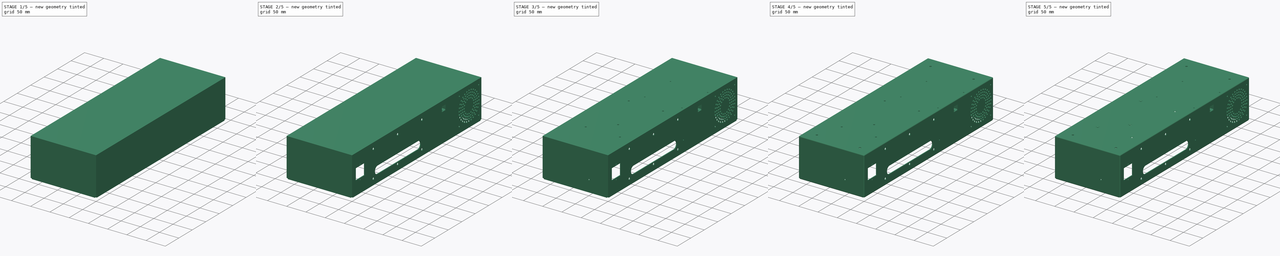
[diagram: build sequence overview — one tinted view per stage of 5, left to right]
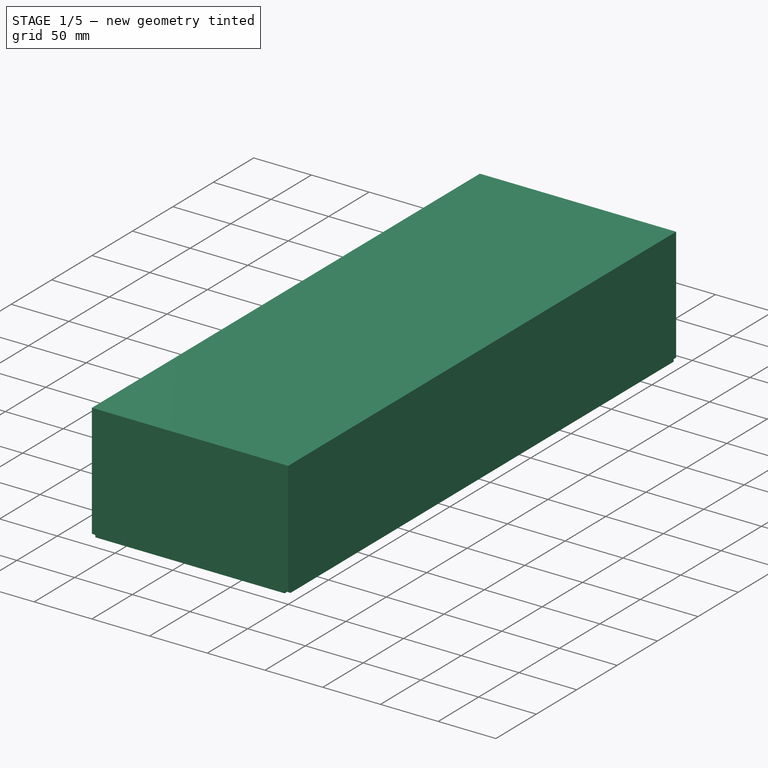
[diagram: stage 1 of 5 — iso view after this stage's code; geometry added in this stage tinted green]
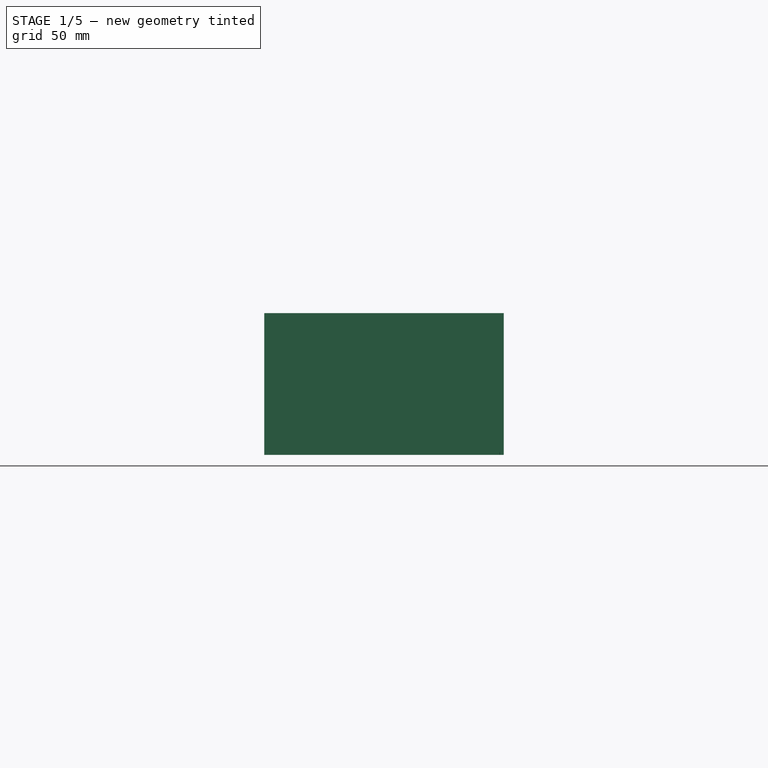
[diagram: stage 1 of 5 — front view after this stage's code; geometry added in this stage tinted green]
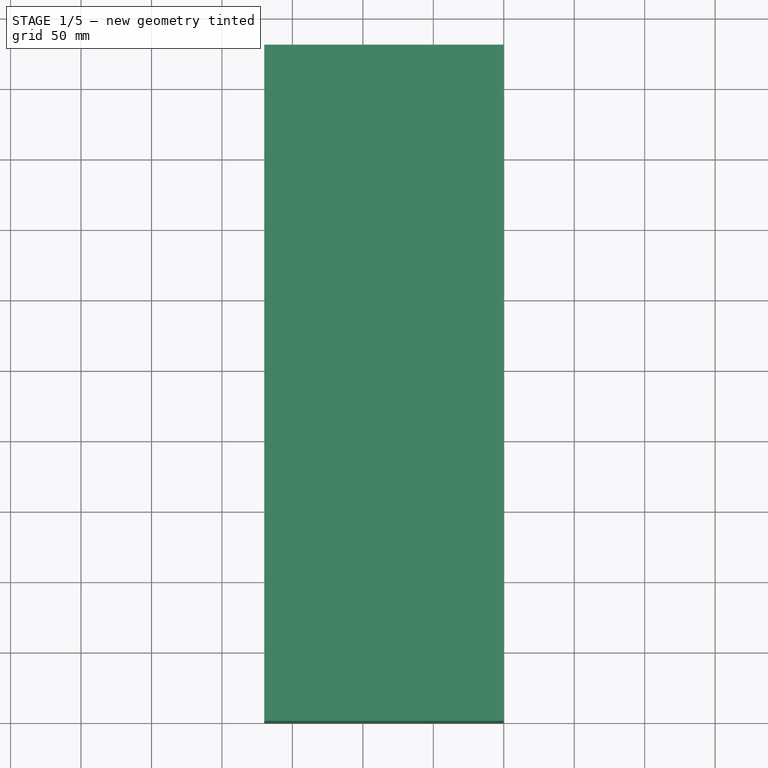
[diagram: stage 1 of 5 — top view after this stage's code; geometry added in this stage tinted green]
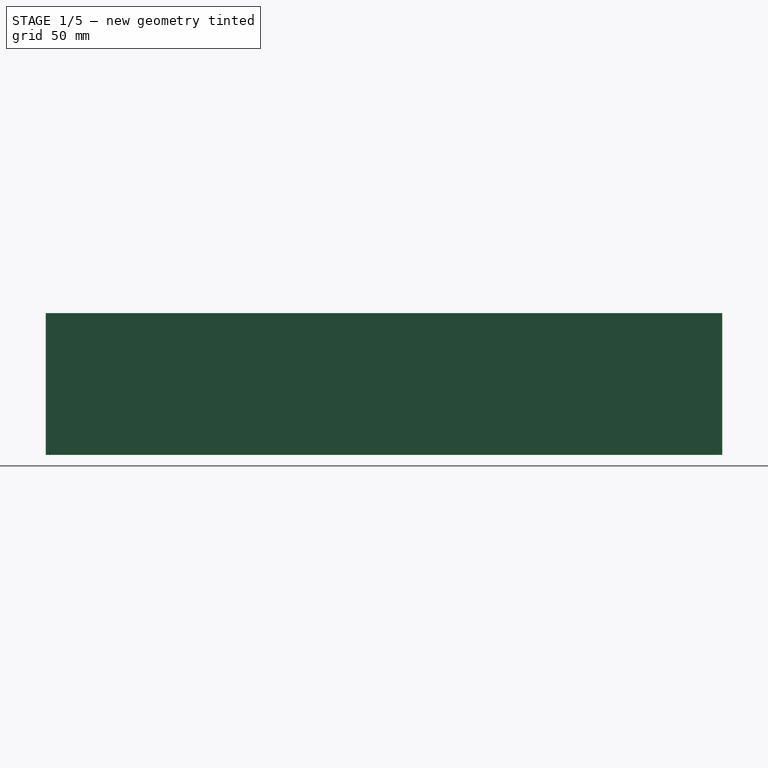
[diagram: stage 1 of 5 — right view after this stage's code; geometry added in this stage tinted green]
FCSTD DOCUMENT  (FreeCAD 0.17R13528 (Git))
Label: [100067] Sheet Metal, Electronics Chassis, Syn1
License: All rights reserved
LicenseURL: http://en.wikipedia.org/wiki/All_rights_reserved
objects: Drawing::FeatureView×239, Drawing::FeatureViewPython×59, Drawing::FeatureViewPart×21, Sketcher::SketchObject×17, PartDesign::Pocket×16, Drawing::FeaturePage×7, Part::Part2DObjectPython×3, PartDesign::Chamfer×2, PartDesign::Body×2, PartDesign::Pad×1, PartDesign::LinearPattern×1, PartDesign::Fillet×1, Part::Feature×1, PartDesign::FeatureBase×1, Drawing::FeatureViewSymbol×1
note: 62 computed .brp shape members not serialized (recipe doc carries the construction recipe); baked Part::Feature solids carry a one-line shape summary decoded from their .brp

FEATURE [Sketcher::SketchObject] Sketch
  MapMode = 5
  Support = -> [XY_Plane]
  sketch-geometry (4):
    g0: LineSegment StartX=0 StartY=0 StartZ=0 EndX=-170 EndY=0 EndZ=0
    g1: LineSegment StartX=-170 StartY=0 StartZ=0 EndX=-170 EndY=480 EndZ=0
    g2: LineSegment StartX=-170 StartY=480 StartZ=0 EndX=0 EndY=480 EndZ=0
    g3: LineSegment StartX=0 StartY=480 StartZ=0 EndX=0 EndY=0 EndZ=0
  constraints (11):
    c: Coincident(g0,g1)
    c: Coincident(g1,g2)
    c: Coincident(g2,g3)
    c: Coincident(g3,g0)
    c: Horizontal(g0)
    c: Horizontal(g2)
    c: Vertical(g1)
    c: Vertical(g3)
    c: Coincident(g0,g-1)
    c: DistanceX(g2,g2) = 170
    c: DistanceY(g3,g3) = 480
FEATURE [PartDesign::Pad] Pad
  Length = 100.6
  Length2 = 100
  Profile = -> Sketch
  Type = 0
FEATURE [Sketcher::SketchObject] Sketch001
  ExternalGeometry = -> [Pad]
  MapMode = 5
  Placement = pos=(0,0,0) rot=(1,0,0;3.14159rad)
  Support = -> [Pad]
  sketch-geometry (28):
    g0: LineSegment StartX=-12 StartY=-12.25 StartZ=0 EndX=-12 EndY=-467.75 EndZ=0
    g1: LineSegment StartX=-158 StartY=-467.75 StartZ=0 EndX=-158 EndY=-12.25 EndZ=0
    g2: LineSegment StartX=-167 StartY=-477.25 StartZ=0 EndX=-157.75 EndY=-468 EndZ=0
    g3: LineSegment StartX=-158 StartY=-467.75 StartZ=0 EndX=-167.25 EndY=-477 EndZ=0
    g4: LineSegment StartX=-157.75 StartY=-468 StartZ=0 EndX=-12.25 EndY=-468 EndZ=0
    g5: LineSegment StartX=-3 StartY=-480 StartZ=0 EndX=0 EndY=-480 EndZ=0
    g6: LineSegment StartX=0 StartY=-480 StartZ=0 EndX=0 EndY=-477 EndZ=0
    g7: LineSegment StartX=0 StartY=-477 StartZ=0 EndX=-2.75 EndY=-477 EndZ=0
    g8: LineSegment StartX=-2.75 StartY=-477 StartZ=0 EndX=-12 EndY=-467.75 EndZ=0
    g9: LineSegment StartX=-12.25 StartY=-12 StartZ=0 EndX=-157.75 EndY=-12 EndZ=0
    g10: LineSegment StartX=-167.25 StartY=-477 StartZ=0 EndX=-170 EndY=-477 EndZ=0
    g11: LineSegment StartX=-170 StartY=-477 StartZ=0 EndX=-170 EndY=-480 EndZ=0
    g12: LineSegment StartX=-170 StartY=-480 StartZ=0 EndX=-167 EndY=-480 EndZ=0
    g13: LineSegment StartX=-167 StartY=-480 StartZ=0 EndX=-167 EndY=-477.25 EndZ=0
    g14: LineSegment StartX=-3 StartY=-480 StartZ=0 EndX=-3 EndY=-477.25 EndZ=0
    g15: LineSegment StartX=-3 StartY=-477.25 StartZ=0 EndX=-12.25 EndY=-468 EndZ=0
    g16: LineSegment StartX=-158 StartY=-12.25 StartZ=0 EndX=-167.25 EndY=-3 EndZ=0
    g17: LineSegment StartX=-167.25 StartY=-3 StartZ=0 EndX=-170 EndY=-3 EndZ=0
    g18: LineSegment StartX=-170 StartY=-3 StartZ=0 EndX=-170 EndY=0 EndZ=0
    g19: LineSegment StartX=-170 StartY=0 StartZ=0 EndX=-167 EndY=0 EndZ=0
    g20: LineSegment StartX=-167 StartY=0 StartZ=0 EndX=-167 EndY=-2.75 EndZ=0
    g21: LineSegment StartX=-167 StartY=-2.75 StartZ=0 EndX=-157.75 EndY=-12 EndZ=0
    g22: LineSegment StartX=-12 StartY=-12.25 StartZ=0 EndX=-2.75 EndY=-3 EndZ=0
    g23: LineSegment StartX=-2.75 StartY=-3 StartZ=0 EndX=0 EndY=-3 EndZ=0
    g24: LineSegment StartX=0 StartY=-3 StartZ=0 EndX=0 EndY=0 EndZ=0
    g25: LineSegment StartX=0 StartY=0 StartZ=0 EndX=-3 EndY=0 EndZ=0
    g26: LineSegment StartX=-3 StartY=0 StartZ=0 EndX=-3 EndY=-2.75 EndZ=0
    g27: LineSegment StartX=-3 StartY=-2.75 StartZ=0 EndX=-12.25 EndY=-12 EndZ=0
  constraints (81):
    c: Vertical(g0)
    c: Vertical(g1)
    c: Coincident(g1,g3)
    c: Coincident(g2,g4)
    c: Horizontal(g4)
    c: Coincident(g5,g6)
    c: Coincident(g6,g7)
    c: Coincident(g7,g8)
    c: Coincident(g0,g8)
    c: Horizontal(g9)
    c: DistanceX(g-5,g1) = 12
    c: Angle(g3) = -2.35619
    c: Coincident(g10,g11)
    c: Coincident(g11,g12)
    c: Coincident(g12,g13)
    c: Coincident(g11,g-5)
    c: Coincident(g3,g10)
    c: Horizontal(g12)
    c: Horizontal(g10)
    c: Vertical(g11)
    c: Vertical(g13)
    c: Coincident(g13,g2)
    c: Parallel(g2,g3)
    c: Equal(g10,g13)
    c: Equal(g12,g11)
    c: DistanceY(g12,g2) = 12
    c: DistanceX(g10,g10) = 2.75
    c: DistanceY(g11,g11) = 3
    c: DistanceX(g0,g-5) = 12
    c: Angle(g8) = 2.35619
    c: Horizontal(g5)
    c: Vertical(g6)
    c: Coincident(g5,g-5)
    c: Horizontal(g7)
    c: Coincident(g14,g15)
    c: Coincident(g5,g14)
    c: Vertical(g14)
    c: Equal(g5,g6)
    c: DistanceY(g6,g6) = 3
    c: Equal(g5,g6)
    c: Coincident(g4,g15)
    c: Parallel(g15,g8)
    c: DistanceX(g7,g7) = 2.75
    c: Equal(g14,g7)
    c: Coincident(g16,g17)
    c: Coincident(g17,g18)
    c: Coincident(g18,g19)
    c: Coincident(g19,g20)
    c: Coincident(g20,g21)
    c: Coincident(g22,g23)
    c: Coincident(g23,g24)
    c: Coincident(g24,g25)
    c: Coincident(g25,g26)
    c: Coincident(g26,g27)
    c: Coincident(g9,g27)
    c: Coincident(g22,g0)
    c: Coincident(g1,g16)
    c: Coincident(g9,g21)
    c: Coincident(g18,g-3)
    c: Coincident(g24,g-1)
    c: Horizontal(g25)
    c: Horizontal(g23)
    c: Horizontal(g17)
    c: Horizontal(g19)
    c: Vertical(g18)
    c: Vertical(g20)
    c: Vertical(g26)
    c: Vertical(g24)
    c: Angle(g22) = 0.785398
    c: Parallel(g22,g27)
    c: Parallel(g16,g21)
    c: Angle(g21) = -0.785398
    c: Equal(g18,g19)
    c: DistanceX(g19,g19) = 3
    c: Equal(g20,g17)
    c: DistanceY(g20,g20) = 2.75
    c: DistanceY(g9,g18) = 12
    c: Equal(g24,g25)
    c: DistanceY(g24,g24) = 3
    c: Equal(g26,g23)
    c: DistanceX(g23,g23) = 2.75
FEATURE [Sketcher::SketchObject] Sketch004
  MapMode = 5
  Placement = pos=(-170,0,0) rot=(0.57735,-0.57735,-0.57735;2.0944rad)
  sketch-geometry (24):
    g0: LineSegment StartX=-10.85 StartY=9.3 StartZ=0 EndX=-10.85 EndY=32.2 EndZ=0
    g1: LineSegment StartX=-14.15 StartY=9.3 StartZ=0 EndX=-14.15 EndY=32.2 EndZ=0
    g2: ArcOfCircle CenterX=-12.5 CenterY=9.3 CenterZ=0 NormalX=0 NormalY=0 NormalZ=1 AngleXU=0 Radius=1.65 StartAngle=3.14159 EndAngle=6.28319
    g3: ArcOfCircle CenterX=-12.5 CenterY=32.2 CenterZ=0 NormalX=0 NormalY=0 NormalZ=1 AngleXU=0 Radius=1.65 StartAngle=0 EndAngle=3.14159
    g4: LineSegment StartX=-10.85 StartY=38.85 StartZ=0 EndX=-10.85 EndY=61.75 EndZ=0
    g5: LineSegment StartX=-14.15 StartY=38.85 StartZ=0 EndX=-14.15 EndY=61.75 EndZ=0
    g6: ArcOfCircle CenterX=-12.5 CenterY=38.85 CenterZ=0 NormalX=0 NormalY=0 NormalZ=1 AngleXU=0 Radius=1.65 StartAngle=3.14159 EndAngle=6.28319
    g7: ArcOfCircle CenterX=-12.5 CenterY=61.75 CenterZ=0 NormalX=0 NormalY=0 NormalZ=1 AngleXU=0 Radius=1.65 StartAngle=0 EndAngle=3.14159
    g8: LineSegment StartX=-10.85 StartY=68.4 StartZ=0 EndX=-10.85 EndY=91.3 EndZ=0
    g9: LineSegment StartX=-14.15 StartY=68.4 StartZ=0 EndX=-14.15 EndY=91.3 EndZ=0
    g10: ArcOfCircle CenterX=-12.5 CenterY=68.4 CenterZ=0 NormalX=0 NormalY=0 NormalZ=1 AngleXU=0 Radius=1.65 StartAngle=3.14159 EndAngle=6.28319
    g11: ArcOfCircle CenterX=-12.5 CenterY=91.3 CenterZ=0 NormalX=0 NormalY=0 NormalZ=1 AngleXU=0 Radius=1.65 StartAngle=0 EndAngle=3.14159
    g12: LineSegment [constr] StartX=-10.85 StartY=9.3 StartZ=0 EndX=-10.85 EndY=91.3 EndZ=0
    g13: LineSegment [constr] StartX=-10.85 StartY=50.3 StartZ=0 EndX=-14.15 EndY=50.3 EndZ=0
    g14: LineSegment StartX=-20.65 StartY=9.3 StartZ=0 EndX=-20.65 EndY=47 EndZ=0
    g15: LineSegment StartX=-17.35 StartY=47 StartZ=0 EndX=-17.35 EndY=9.3 EndZ=0
    g16: LineSegment StartX=-20.65 StartY=53.6 StartZ=0 EndX=-20.65 EndY=91.3 EndZ=0
    g17: LineSegment StartX=-17.35 StartY=91.3 StartZ=0 EndX=-17.35 EndY=53.6 EndZ=0
    g18: ArcOfCircle CenterX=-19 CenterY=91.3 CenterZ=0 NormalX=0 NormalY=0 NormalZ=1 AngleXU=0 Radius=1.65 StartAngle=0 EndAngle=3.14159
    g19: ArcOfCircle CenterX=-19 CenterY=53.6 CenterZ=0 NormalX=0 NormalY=0 NormalZ=1 AngleXU=0 Radius=1.65 StartAngle=3.14159 EndAngle=6.28319
    g20: ArcOfCircle CenterX=-19 CenterY=47 CenterZ=0 NormalX=0 NormalY=0 NormalZ=1 AngleXU=0 Radius=1.65 StartAngle=0 EndAngle=3.14159
    g21: ArcOfCircle CenterX=-19 CenterY=9.3 CenterZ=0 NormalX=0 NormalY=0 NormalZ=1 AngleXU=0 Radius=1.65 StartAngle=3.14159 EndAngle=6.28319
    g22: LineSegment [constr] StartX=-20.65 StartY=91.3 StartZ=0 EndX=-10.85 EndY=91.3 EndZ=0
    g23: LineSegment [constr] StartX=-20.65 StartY=9.3 StartZ=0 EndX=-10.85 EndY=9.3 EndZ=0
  constraints (71):
    c: Vertical(g0)
    c: Vertical(g1)
    c: Tangent(g2,g1)
    c: Radius(g2) = 1.65
    c: DistanceY(g2,g3) = 22.9
    c: DistanceY(g-1,g2) = 9.3
    c: DistanceX(g2,g-1) = 12.5
    c: Vertical(g4)
    c: Vertical(g5)
    c: Coincident(g6,g4)
    c: Tangent(g6,g5)
    c: Tangent(g7,g4)
    c: Vertical(g8)
    c: Vertical(g9)
    c: Coincident(g10,g8)
    c: Tangent(g10,g9)
    c: DistanceY(g10,g11) = 22.9
    c: Equal(g10,g7)
    c: Vertical(g12)
    c: PointOnObject(g4,g12)
    c: PointOnObject(g13,g4)
    c: PointOnObject(g13,g5)
    c: Symmetric(g4,g4,g13)
    c: Symmetric(g8,g0,g13)
    c: Vertical(g14)
    c: Vertical(g15)
    c: Vertical(g16)
    c: Vertical(g17)
    c: DistanceY(g16,g16) = 37.7
    c: Equal(g14,g16)
    c: DistanceY(g9,g17) = 0
    c: DistanceX(g17,g9) = 3.2
    c: DistanceX(g17,g15) = 0
    c: Coincident(g18,g17)
    c: Coincident(g19,g17)
    c: Coincident(g19,g16)
    c: DistanceY(g19,g17) = 0
    c: DistanceY(g1,g15) = 0
    c: Coincident(g21,g15)
    c: Coincident(g21,g14)
    c: Tangent(g8,g11) = -1.5708
    c: Coincident(g22,g8)
    c: Coincident(g16,g22)
    c: PointOnObject(g18,g22)
    c: PointOnObject(g17,g22)
    c: Horizontal(g22)
    c: Equal(g18,g11)
    c: Equal(g8,g0)
    c: DistanceY(g13) = 50.3
    c: Equal(g20,g19)
    c: Equal(g3,g6)
    c: Coincident(g14,g23)
    c: Horizontal(g23)
    c: Tangent(g0,g2) = -1.5708
    c: Coincident(g0,g12)
    c: Coincident(g0,g23)
    c: PointOnObject(g21,g23)
    c: Equal(g21,g2)
    c: Tangent(g20,g14) = 1.5708
    c: Tangent(g20,g15) = 1.5708
    c: Tangent(g18,g16) = 1.5708
    c: Tangent(g1,g2) = 1.5708
    c: Tangent(g0,g3) = -1.5708
    c: Tangent(g1,g3) = 1.5708
    c: Tangent(g5,g6) = 1.5708
    c: Tangent(g5,g7) = 1.5708
    c: Tangent(g4,g7) = -1.5708
    c: Tangent(g9,g10) = 1.5708
    c: Coincident(g16,g18)
    c: Coincident(g9,g11)
    c: Coincident(g8,g12)
FEATURE [Sketcher::SketchObject] Sketch006
  MapMode = 5
  Placement = pos=(0,0,0) rot=(0.57735,0.57735,0.57735;2.0944rad)
  sketch-geometry (35):
    g0: LineSegment StartX=14 StartY=64.8 StartZ=0 EndX=47 EndY=64.8 EndZ=0
    g1: LineSegment StartX=47 StartY=64.8 StartZ=0 EndX=47 EndY=35.8 EndZ=0
    g2: LineSegment StartX=47 StartY=35.8 StartZ=0 EndX=14 EndY=35.8 EndZ=0
    g3: LineSegment StartX=14 StartY=35.8 StartZ=0 EndX=14 EndY=64.8 EndZ=0
    g4: LineSegment StartX=95 StartY=40.3 StartZ=0 EndX=245 EndY=40.3 EndZ=0
    g5: LineSegment StartX=245 StartY=20.3 StartZ=0 EndX=95 EndY=20.3 EndZ=0
    g6: LineSegment StartX=333.5 StartY=87.6 StartZ=0 EndX=347.5 EndY=87.6 EndZ=0
    g7: LineSegment StartX=347.5 StartY=87.6 StartZ=0 EndX=347.5 EndY=74.6 EndZ=0
    g8: LineSegment StartX=347.5 StartY=74.6 StartZ=0 EndX=333.5 EndY=74.6 EndZ=0
    g9: LineSegment StartX=333.5 StartY=74.6 StartZ=0 EndX=333.5 EndY=87.6 EndZ=0
    g10: LineSegment [constr] StartX=0 StartY=50.3 StartZ=0 EndX=14 EndY=50.3 EndZ=0
    g11: Circle CenterX=30.5 CenterY=68.3 CenterZ=0 NormalX=0 NormalY=0 NormalZ=1 AngleXU=0 Radius=1.5
    g12: Circle CenterX=30.5 CenterY=32.3 CenterZ=0 NormalX=0 NormalY=0 NormalZ=1 AngleXU=0 Radius=1.5
    g13: LineSegment [constr] StartX=30.5 StartY=68.3 StartZ=0 EndX=30.5 EndY=32.3 EndZ=0
    g14: ArcOfCircle CenterX=95 CenterY=30.3 CenterZ=0 NormalX=0 NormalY=0 NormalZ=1 AngleXU=0 Radius=10 StartAngle=1.5708 EndAngle=4.71239
    g15: ArcOfCircle CenterX=245 CenterY=30.3 CenterZ=0 NormalX=0 NormalY=0 NormalZ=1 AngleXU=0 Radius=10 StartAngle=4.71239 EndAngle=7.85398
    g16: Circle CenterX=80 CenterY=15.3 CenterZ=0 NormalX=0 NormalY=0 NormalZ=1 AngleXU=0 Radius=3
    g17: Circle CenterX=80 CenterY=85.3 CenterZ=0 NormalX=0 NormalY=0 NormalZ=1 AngleXU=0 Radius=3
    g18: Circle CenterX=170 CenterY=85.3 CenterZ=0 NormalX=0 NormalY=0 NormalZ=1 AngleXU=0 Radius=3
    g19: Circle CenterX=260 CenterY=85.3 CenterZ=0 NormalX=0 NormalY=0 NormalZ=1 AngleXU=0 Radius=3
    g20: Circle CenterX=260 CenterY=15.3 CenterZ=0 NormalX=0 NormalY=0 NormalZ=1 AngleXU=0 Radius=3
    g21: Circle CenterX=170 CenterY=15.3 CenterZ=0 NormalX=0 NormalY=0 NormalZ=1 AngleXU=0 Radius=3
    g22: LineSegment [constr] StartX=80 StartY=85.3 StartZ=0 EndX=260 EndY=85.3 EndZ=0
    g23: LineSegment [constr] StartX=260 StartY=85.3 StartZ=0 EndX=260 EndY=15.3 EndZ=0
    g24: LineSegment [constr] StartX=260 StartY=15.3 StartZ=0 EndX=80 EndY=15.3 EndZ=0
    g25: LineSegment [constr] StartX=80 StartY=15.3 StartZ=0 EndX=80 EndY=85.3 EndZ=0
    g26: LineSegment [constr] StartX=80 StartY=50.3 StartZ=0 EndX=14 EndY=50.3 EndZ=0
    g27: LineSegment [constr] StartX=398.5 StartY=87.6 StartZ=0 EndX=470 EndY=87.6 EndZ=0
    g28: LineSegment [constr] StartX=470 StartY=87.6 StartZ=0 EndX=470 EndY=16.1 EndZ=0
    g29: LineSegment [constr] StartX=470 StartY=16.1 StartZ=0 EndX=398.5 EndY=16.1 EndZ=0
    g30: LineSegment [constr] StartX=398.5 StartY=16.1 StartZ=0 EndX=398.5 EndY=87.6 EndZ=0
    g31: Circle CenterX=398.5 CenterY=87.6 CenterZ=0 NormalX=0 NormalY=0 NormalZ=1 AngleXU=0 Radius=2
    g32: Circle CenterX=398.5 CenterY=16.1 CenterZ=0 NormalX=0 NormalY=0 NormalZ=1 AngleXU=0 Radius=2
    g33: Circle CenterX=470 CenterY=16.1 CenterZ=0 NormalX=0 NormalY=0 NormalZ=1 AngleXU=0 Radius=2
    g34: Circle CenterX=470 CenterY=87.6 CenterZ=0 NormalX=0 NormalY=0 NormalZ=1 AngleXU=0 Radius=2
  constraints (98):
    c: Coincident(g0,g1)
    c: Coincident(g1,g2)
    c: Coincident(g2,g3)
    c: Coincident(g3,g0)
    c: Horizontal(g0)
    c: Horizontal(g2)
    c: Vertical(g1)
    c: Vertical(g3)
    c: Horizontal(g4)
    c: Horizontal(g5)
    c: Coincident(g6,g7)
    c: Coincident(g7,g8)
    c: Coincident(g8,g9)
    c: Coincident(g9,g6)
    c: Horizontal(g6)
    c: Horizontal(g8)
    c: Vertical(g7)
    c: Vertical(g9)
    c: Symmetric(g2,g0,g10)
    c: DistanceY(g3,g3) = 29
    c: DistanceX(g0,g0) = 33
    c: Radius(g12) = 1.5
    c: Equal(g12,g11)
    c: DistanceY(g0,g11) = 3.5
    c: DistanceY(g12,g2) = 3.5
    c: Coincident(g13,g11)
    c: Coincident(g13,g12)
    c: Vertical(g13)
    c: Symmetric(g1,g2,g13)
    c: DistanceX(g-1,g0) = 14
    c: PointOnObject(g10,g3)
    c: DistanceX(g-1,g5) = 95
    c: DistanceX(g5,g5) = 150
    c: DistanceX(g6,g6) = 14
    c: DistanceY(g7,g7) = 13
    c: DistanceY(g-1,g5) = 20.3
    c: DistanceY(g5,g4) = 20
    c: Coincident(g14,g4)
    c: Coincident(g14,g5)
    c: Coincident(g15,g4)
    c: Tangent(g15,g4)
    c: Tangent(g15,g5)
    c: Coincident(g5,g15)
    c: Tangent(g14,g4)
    c: Tangent(g14,g5)
    c: Coincident(g22,g23)
    c: Coincident(g23,g24)
    c: Coincident(g24,g25)
    c: Coincident(g25,g22)
    c: Horizontal(g22)
    c: Horizontal(g24)
    c: Vertical(g23)
    c: Vertical(g25)
    c: Coincident(g22,g17)
    c: Coincident(g23,g20)
    c: Coincident(g19,g22)
    c: PointOnObject(g18,g22)
    c: PointOnObject(g21,g24)
    c: Coincident(g16,g24)
    c: Radius(g18) = 3
    c: Equal(g18,g17)
    c: Equal(g18,g16)
    c: Equal(g18,g21)
    c: Equal(g18,g20)
    c: Equal(g18,g19)
    c: DistanceX(g21,g18) = 0
    c: DistanceX(g-1,g16) = 80
    c: PointOnObject(g26,g25)
    c: Coincident(g26,g10)
    c: Horizontal(g26)
    c: Symmetric(g16,g17,g26)
    c: DistanceY(g25,g25) = 70
    c: DistanceX(g17,g18) = 90
    c: DistanceX(g22,g22) = 180
    c: Coincident(g27,g28)
    c: Coincident(g28,g29)
    c: Coincident(g29,g30)
    c: Coincident(g30,g27)
    c: Horizontal(g27)
    c: Horizontal(g29)
    c: Vertical(g28)
    c: Vertical(g30)
    c: Equal(g28,g27)
    c: DistanceY(g28,g28) = 71.5
    c: Coincident(g31,g27)
    c: Coincident(g32,g29)
    c: Coincident(g33,g28)
    c: Coincident(g34,g27)
    c: Radius(g34) = 2
    c: Equal(g34,g33)
    c: Equal(g34,g32)
    c: Equal(g34,g31)
    c: DistanceY(g-1,g2) = 35.8
    c: DistanceX(g6) = 347.5
    c: DistanceY(g6) = 87.6
    c: DistanceX(g28) = 470
    c: DistanceY(g28) = 16.1
    c: DistanceX(g10) = 0
FEATURE [Sketcher::SketchObject] Sketch007
  MapMode = 5
  Placement = pos=(0,0,0) rot=(0.57735,0.57735,0.57735;2.0944rad)
  sketch-geometry (100):
    g0: Circle [constr] CenterX=434.25 CenterY=51.85 CenterZ=0 NormalX=0 NormalY=0 NormalZ=1 AngleXU=0 Radius=38.75
    g1: Circle CenterX=452.5 CenterY=51.85 CenterZ=0 NormalX=0 NormalY=0 NormalZ=1 AngleXU=0 Radius=2.5
    g2: Circle CenterX=416 CenterY=51.85 CenterZ=0 NormalX=0 NormalY=0 NormalZ=1 AngleXU=0 Radius=2.5
    g3: Circle [constr] CenterX=434.25 CenterY=51.85 CenterZ=0 NormalX=0 NormalY=0 NormalZ=1 AngleXU=0 Radius=18.25
    g4: Circle [constr] CenterX=434.25 CenterY=51.85 CenterZ=0 NormalX=0 NormalY=0 NormalZ=1 AngleXU=0 Radius=24.3333
    g5: Circle [constr] CenterX=434.25 CenterY=51.85 CenterZ=0 NormalX=0 NormalY=0 NormalZ=1 AngleXU=0 Radius=30.4167
    g6: Circle [constr] CenterX=434.25 CenterY=51.85 CenterZ=0 NormalX=0 NormalY=0 NormalZ=1 AngleXU=0 Radius=36.5
    g7: Circle CenterX=409.917 CenterY=51.85 CenterZ=0 NormalX=0 NormalY=0 NormalZ=1 AngleXU=0 Radius=2.5
    g8: Circle CenterX=403.833 CenterY=51.85 CenterZ=0 NormalX=0 NormalY=0 NormalZ=1 AngleXU=0 Radius=2.5
    g9: Circle CenterX=397.75 CenterY=51.85 CenterZ=0 NormalX=0 NormalY=0 NormalZ=1 AngleXU=0 Radius=2.5
    g10: Circle CenterX=458.583 CenterY=51.85 CenterZ=0 NormalX=0 NormalY=0 NormalZ=1 AngleXU=0 Radius=2.5
    g11: Circle CenterX=464.667 CenterY=51.85 CenterZ=0 NormalX=0 NormalY=0 NormalZ=1 AngleXU=0 Radius=2.5
    g12: Circle CenterX=470.75 CenterY=51.85 CenterZ=0 NormalX=0 NormalY=0 NormalZ=1 AngleXU=0 Radius=2.5
    g13: LineSegment [constr] StartX=434.25 StartY=51.85 StartZ=0 EndX=397.75 EndY=51.85 EndZ=0
    g14: LineSegment [constr] StartX=434.25 StartY=51.85 StartZ=0 EndX=470.75 EndY=51.85 EndZ=0
    g15: Circle CenterX=434.25 CenterY=70.1 CenterZ=0 NormalX=0 NormalY=0 NormalZ=1 AngleXU=0 Radius=2.5
    g16: Circle CenterX=434.25 CenterY=76.1833 CenterZ=0 NormalX=0 NormalY=0 NormalZ=1 AngleXU=0 Radius=2.5
    g17: Circle CenterX=434.25 CenterY=82.2667 CenterZ=0 NormalX=0 NormalY=0 NormalZ=1 AngleXU=0 Radius=2.5
    g18: Circle CenterX=434.25 CenterY=88.35 CenterZ=0 NormalX=0 NormalY=0 NormalZ=1 AngleXU=0 Radius=2.5
    g19: Circle CenterX=434.25 CenterY=33.6 CenterZ=0 NormalX=0 NormalY=0 NormalZ=1 AngleXU=0 Radius=2.5
    g20: Circle CenterX=434.25 CenterY=27.5167 CenterZ=0 NormalX=0 NormalY=0 NormalZ=1 AngleXU=0 Radius=2.5
    g21: Circle CenterX=434.25 CenterY=21.4333 CenterZ=0 NormalX=0 NormalY=0 NormalZ=1 AngleXU=0 Radius=2.5
    g22: Circle CenterX=434.25 CenterY=15.35 CenterZ=0 NormalX=0 NormalY=0 NormalZ=1 AngleXU=0 Radius=2.5
    g23: LineSegment [constr] StartX=434.25 StartY=88.35 StartZ=0 EndX=434.25 EndY=70.1 EndZ=0
    g24: LineSegment [constr] StartX=434.25 StartY=33.6 StartZ=0 EndX=434.25 EndY=27.5167 EndZ=0
    g25: LineSegment [constr] StartX=434.25 StartY=27.5167 StartZ=0 EndX=434.25 EndY=21.4333 EndZ=0
    g26: LineSegment [constr] StartX=434.25 StartY=21.4333 StartZ=0 EndX=434.25 EndY=15.35 EndZ=0
    g27: LineSegment [constr] StartX=434.25 StartY=33.6 StartZ=0 EndX=434.25 EndY=15.35 EndZ=0
    g28: Circle CenterX=417.389 CenterY=58.834 CenterZ=0 NormalX=0 NormalY=0 NormalZ=1 AngleXU=0 Radius=2.5
    g29: Circle CenterX=421.345 CenterY=64.7547 CenterZ=0 NormalX=0 NormalY=0 NormalZ=1 AngleXU=0 Radius=2.5
    g30: Circle CenterX=427.266 CenterY=68.7108 CenterZ=0 NormalX=0 NormalY=0 NormalZ=1 AngleXU=0 Radius=2.5
    g31: Circle CenterX=441.234 CenterY=68.7108 CenterZ=0 NormalX=0 NormalY=0 NormalZ=1 AngleXU=0 Radius=2.5
    g32: Circle CenterX=447.155 CenterY=64.7547 CenterZ=0 NormalX=0 NormalY=0 NormalZ=1 AngleXU=0 Radius=2.5
    g33: Circle CenterX=451.111 CenterY=58.834 CenterZ=0 NormalX=0 NormalY=0 NormalZ=1 AngleXU=0 Radius=2.5
    g34: Circle CenterX=417.389 CenterY=44.866 CenterZ=0 NormalX=0 NormalY=0 NormalZ=1 AngleXU=0 Radius=2.5
    g35: Circle CenterX=421.345 CenterY=38.9453 CenterZ=0 NormalX=0 NormalY=0 NormalZ=1 AngleXU=0 Radius=2.5
    g36: Circle CenterX=427.266 CenterY=34.9892 CenterZ=0 NormalX=0 NormalY=0 NormalZ=1 AngleXU=0 Radius=2.5
    g37: Circle CenterX=441.234 CenterY=34.9892 CenterZ=0 NormalX=0 NormalY=0 NormalZ=1 AngleXU=0 Radius=2.5
    g38: Circle CenterX=447.155 CenterY=38.9453 CenterZ=0 NormalX=0 NormalY=0 NormalZ=1 AngleXU=0 Radius=2.5
    g39: Circle CenterX=451.111 CenterY=44.866 CenterZ=0 NormalX=0 NormalY=0 NormalZ=1 AngleXU=0 Radius=2.5
    g40: LineSegment [constr] StartX=416 StartY=51.85 StartZ=0 EndX=417.389 EndY=58.834 EndZ=0
    g41: LineSegment [constr] StartX=417.389 StartY=58.834 StartZ=0 EndX=421.345 EndY=64.7547 EndZ=0
    g42: LineSegment [constr] StartX=421.345 StartY=64.7547 StartZ=0 EndX=427.266 EndY=68.7108 EndZ=0
    g43: LineSegment [constr] StartX=427.266 StartY=68.7108 StartZ=0 EndX=434.25 EndY=70.1 EndZ=0
    g44: LineSegment [constr] StartX=434.25 StartY=70.1 StartZ=0 EndX=441.234 EndY=68.7108 EndZ=0
    g45: LineSegment [constr] StartX=441.234 StartY=68.7108 StartZ=0 EndX=447.155 EndY=64.7547 EndZ=0
    g46: LineSegment [constr] StartX=447.155 StartY=64.7547 StartZ=0 EndX=451.111 EndY=58.834 EndZ=0
    g47: LineSegment [constr] StartX=451.111 StartY=58.834 StartZ=0 EndX=452.5 EndY=51.85 EndZ=0
    g48: LineSegment [constr] StartX=452.5 StartY=51.85 StartZ=0 EndX=451.111 EndY=44.866 EndZ=0
    g49: LineSegment [constr] StartX=451.111 StartY=44.866 StartZ=0 EndX=447.155 EndY=38.9453 EndZ=0
    g50: LineSegment [constr] StartX=447.155 StartY=38.9453 StartZ=0 EndX=441.234 EndY=34.9892 EndZ=0
    g51: LineSegment [constr] StartX=441.234 StartY=34.9892 StartZ=0 EndX=434.25 EndY=33.6 EndZ=0
    g52: LineSegment [constr] StartX=434.25 StartY=33.6 StartZ=0 EndX=427.266 EndY=34.9892 EndZ=0
    g53: LineSegment [constr] StartX=427.266 StartY=34.9892 StartZ=0 EndX=421.345 EndY=38.9453 EndZ=0
    g54: LineSegment [constr] StartX=421.345 StartY=38.9453 StartZ=0 EndX=417.389 EndY=44.866 EndZ=0
    g55: LineSegment [constr] StartX=417.389 StartY=44.866 StartZ=0 EndX=416 EndY=51.85 EndZ=0
    g56: Circle CenterX=410.746 CenterY=58.1479 CenterZ=0 NormalX=0 NormalY=0 NormalZ=1 AngleXU=0 Radius=2.5
    g57: Circle CenterX=413.177 CenterY=64.0167 CenterZ=0 NormalX=0 NormalY=0 NormalZ=1 AngleXU=0 Radius=2.5
    g58: Circle CenterX=417.044 CenterY=69.0563 CenterZ=0 NormalX=0 NormalY=0 NormalZ=1 AngleXU=0 Radius=2.5
    g59: Circle CenterX=422.083 CenterY=72.9233 CenterZ=0 NormalX=0 NormalY=0 NormalZ=1 AngleXU=0 Radius=2.5
    g60: Circle CenterX=427.952 CenterY=75.3542 CenterZ=0 NormalX=0 NormalY=0 NormalZ=1 AngleXU=0 Radius=2.5
    g61: Circle CenterX=440.548 CenterY=75.3542 CenterZ=0 NormalX=0 NormalY=0 NormalZ=1 AngleXU=0 Radius=2.5
    g62: Circle CenterX=446.417 CenterY=72.9233 CenterZ=0 NormalX=0 NormalY=0 NormalZ=1 AngleXU=0 Radius=2.5
    g63: Circle CenterX=451.456 CenterY=69.0563 CenterZ=0 NormalX=0 NormalY=0 NormalZ=1 AngleXU=0 Radius=2.5
    g64: Circle CenterX=455.323 CenterY=64.0167 CenterZ=0 NormalX=0 NormalY=0 NormalZ=1 AngleXU=0 Radius=2.5
    g65: Circle CenterX=457.754 CenterY=58.1479 CenterZ=0 NormalX=0 NormalY=0 NormalZ=1 AngleXU=0 Radius=2.5
    g66: Circle CenterX=440.548 CenterY=28.3458 CenterZ=0 NormalX=0 NormalY=0 NormalZ=1 AngleXU=0 Radius=2.5
    g67: Circle CenterX=446.417 CenterY=30.7767 CenterZ=0 NormalX=0 NormalY=0 NormalZ=1 AngleXU=0 Radius=2.5
    g68: Circle CenterX=451.456 CenterY=34.6437 CenterZ=0 NormalX=0 NormalY=0 NormalZ=1 AngleXU=0 Radius=2.5
    g69: Circle CenterX=455.323 CenterY=39.6833 CenterZ=0 NormalX=0 NormalY=0 NormalZ=1 AngleXU=0 Radius=2.5
    g70: Circle CenterX=457.754 CenterY=45.5521 CenterZ=0 NormalX=0 NormalY=0 NormalZ=1 AngleXU=0 Radius=2.5
    g71: Circle CenterX=410.746 CenterY=45.5521 CenterZ=0 NormalX=0 NormalY=0 NormalZ=1 AngleXU=0 Radius=2.5
    g72: Circle CenterX=413.177 CenterY=39.6833 CenterZ=0 NormalX=0 NormalY=0 NormalZ=1 AngleXU=0 Radius=2.5
    g73: Circle CenterX=417.044 CenterY=34.6437 CenterZ=0 NormalX=0 NormalY=0 NormalZ=1 AngleXU=0 Radius=2.5
    g74: Circle CenterX=422.083 CenterY=30.7767 CenterZ=0 NormalX=0 NormalY=0 NormalZ=1 AngleXU=0 Radius=2.5
    g75: Circle CenterX=427.952 CenterY=28.3458 CenterZ=0 NormalX=0 NormalY=0 NormalZ=1 AngleXU=0 Radius=2.5
    g76: LineSegment [constr] StartX=409.917 StartY=51.85 StartZ=0 EndX=410.746 EndY=45.5521 EndZ=0
    g77: LineSegment [constr] StartX=410.746 StartY=45.5521 StartZ=0 EndX=413.177 EndY=39.6833 EndZ=0
    g78: LineSegment [constr] StartX=413.177 StartY=39.6833 StartZ=0 EndX=417.044 EndY=34.6437 EndZ=0
    g79: LineSegment [constr] StartX=417.044 StartY=34.6437 StartZ=0 EndX=422.083 EndY=30.7767 EndZ=0
    g80: LineSegment [constr] StartX=422.083 StartY=30.7767 StartZ=0 EndX=427.952 EndY=28.3458 EndZ=0
    g81: LineSegment [constr] StartX=427.952 StartY=28.3458 StartZ=0 EndX=434.25 EndY=27.5167 EndZ=0
    g82: LineSegment [constr] StartX=434.25 StartY=27.5167 StartZ=0 EndX=440.548 EndY=28.3458 EndZ=0
    g83: LineSegment [constr] StartX=440.548 StartY=28.3458 StartZ=0 EndX=446.417 EndY=30.7767 EndZ=0
    g84: LineSegment [constr] StartX=446.417 StartY=30.7767 StartZ=0 EndX=451.456 EndY=34.6437 EndZ=0
    g85: LineSegment [constr] StartX=451.456 StartY=34.6437 StartZ=0 EndX=455.323 EndY=39.6833 EndZ=0
    g86: LineSegment [constr] StartX=455.323 StartY=39.6833 StartZ=0 EndX=457.754 EndY=45.5521 EndZ=0
    g87: LineSegment [constr] StartX=457.754 StartY=45.5521 StartZ=0 EndX=458.583 EndY=51.85 EndZ=0
    g88: LineSegment [constr] StartX=458.583 StartY=51.85 StartZ=0 EndX=457.754 EndY=58.1479 EndZ=0
    g89: LineSegment [constr] StartX=457.754 StartY=58.1479 StartZ=0 EndX=455.323 EndY=64.0167 EndZ=0
    g90: LineSegment [constr] StartX=455.323 StartY=64.0167 StartZ=0 EndX=451.456 EndY=69.0563 EndZ=0
    g91: LineSegment [constr] StartX=451.456 StartY=69.0563 StartZ=0 EndX=446.417 EndY=72.9233 EndZ=0
    g92: LineSegment [constr] StartX=446.417 StartY=72.9233 StartZ=0 EndX=440.548 EndY=75.3542 EndZ=0
    g93: LineSegment [constr] StartX=440.548 StartY=75.3542 StartZ=0 EndX=434.25 EndY=76.1833 EndZ=0
    g94: LineSegment [constr] StartX=434.25 StartY=76.1833 StartZ=0 EndX=427.952 EndY=75.3542 EndZ=0
    g95: LineSegment [constr] StartX=427.952 StartY=75.3542 StartZ=0 EndX=422.083 EndY=72.9233 EndZ=0
    g96: LineSegment [constr] StartX=422.083 StartY=72.9233 StartZ=0 EndX=417.044 EndY=69.0563 EndZ=0
    g97: LineSegment [constr] StartX=417.044 StartY=69.0563 StartZ=0 EndX=413.177 EndY=64.0167 EndZ=0
    g98: LineSegment [constr] StartX=413.177 StartY=64.0167 StartZ=0 EndX=410.746 EndY=58.1479 EndZ=0
    g99: LineSegment [constr] StartX=410.746 StartY=58.1479 StartZ=0 EndX=409.917 EndY=51.85 EndZ=0
  constraints (269):
    c: Radius(g0) = 38.75
    c: DistanceY(g1,g0) = 0
    c: Radius(g1) = 2.5
    c: DistanceX(g0,g1) = 18.25
    c: Coincident(g3,g0)
    c: PointOnObject(g2,g3)
    c: DistanceY(g0,g2) = 0
    c: Equal(g2,g1)
    c: PointOnObject(g1,g3)
    c: Coincident(g4,g0)
    c: Coincident(g5,g0)
    c: Coincident(g6,g0)
    c: PointOnObject(g7,g4)
    c: PointOnObject(g8,g5)
    c: PointOnObject(g9,g6)
    c: PointOnObject(g10,g4)
    c: PointOnObject(g11,g5)
    c: PointOnObject(g12,g6)
    c: Equal(g12,g11)
    c: Equal(g11,g10)
    c: Equal(g10,g7)
    c: Equal(g7,g8)
    c: Equal(g8,g9)
    c: Equal(g9,g2)
    c: Coincident(g13,g0)
    c: Coincident(g13,g9)
    c: Horizontal(g13)
    c: Coincident(g14,g0)
    c: Coincident(g14,g12)
    c: Horizontal(g14)
    c: PointOnObject(g11,g14)
    c: PointOnObject(g10,g14)
    c: PointOnObject(g8,g13)
    c: PointOnObject(g7,g13)
    c: Radius(g6) = 36.5
    c: PointOnObject(g15,g3)
    c: PointOnObject(g16,g4)
    c: PointOnObject(g17,g5)
    c: PointOnObject(g18,g6)
    c: PointOnObject(g19,g3)
    c: PointOnObject(g20,g4)
    c: PointOnObject(g21,g5)
    c: PointOnObject(g22,g6)
    c: Equal(g22,g21)
    c: Equal(g21,g20)
    c: Equal(g20,g19)
    c: Equal(g19,g15)
    c: Equal(g15,g16)
    c: Equal(g16,g17)
    c: Equal(g17,g18)
    c: Equal(g18,g1)
    c: Coincident(g23,g18)
    c: Coincident(g23,g15)
    c: PointOnObject(g16,g23)
    c: PointOnObject(g17,g23)
    c: Coincident(g24,g19)
    c: Coincident(g24,g20)
    c: Coincident(g25,g20)
    c: Coincident(g25,g21)
    c: Vertical(g25)
    c: Coincident(g26,g21)
    c: Coincident(g26,g22)
    c: Vertical(g23)
    c: DistanceX(g0,g15) = 0
    c: DistanceX(g0,g19) = 0
    c: Equal(g24,g25)
    c: Equal(g25,g26)
    c: Coincident(g27,g19)
    c: Coincident(g27,g22)
    c: Vertical(g27)
    c: PointOnObject(g21,g27)
    c: PointOnObject(g28,g3)
    c: PointOnObject(g29,g3)
    c: PointOnObject(g30,g3)
    c: PointOnObject(g31,g3)
    c: PointOnObject(g32,g3)
    c: PointOnObject(g33,g3)
    c: PointOnObject(g34,g3)
    c: PointOnObject(g35,g3)
    c: PointOnObject(g36,g3)
    c: PointOnObject(g37,g3)
    c: PointOnObject(g38,g3)
    c: PointOnObject(g39,g3)
    c: Equal(g39,g38)
    c: Equal(g38,g37)
    c: Equal(g37,g36)
    c: Equal(g36,g35)
    c: Equal(g35,g34)
    c: Equal(g34,g28)
    c: Equal(g28,g29)
    c: Equal(g29,g30)
    c: Equal(g30,g31)
    c: Equal(g31,g32)
    c: Equal(g32,g33)
    c: Equal(g33,g15)
    c: Coincident(g40,g2)
    c: Coincident(g40,g28)
    c: Coincident(g40,g41)
    c: Coincident(g41,g29)
    c: Coincident(g41,g42)
    c: Coincident(g42,g30)
    c: Coincident(g42,g43)
    c: Coincident(g43,g15)
    c: Coincident(g43,g44)
    c: Coincident(g44,g31)
    c: Coincident(g44,g45)
    c: Coincident(g45,g32)
    c: Coincident(g45,g46)
    c: Coincident(g46,g33)
    c: Coincident(g46,g47)
    c: Coincident(g47,g1)
    c: Coincident(g47,g48)
    c: Coincident(g48,g39)
    c: Coincident(g48,g49)
    c: Coincident(g49,g38)
    c: Coincident(g49,g50)
    c: Coincident(g50,g37)
    c: Coincident(g50,g51)
    c: Coincident(g51,g19)
    c: Coincident(g51,g52)
    c: Coincident(g52,g36)
    c: Coincident(g52,g53)
    c: Coincident(g53,g35)
    c: Coincident(g53,g54)
    c: Coincident(g54,g34)
    c: Coincident(g54,g55)
    c: Coincident(g55,g40)
    c: Equal(g49,g50)
    c: Equal(g50,g51)
    c: Equal(g51,g52)
    c: Equal(g52,g53)
    c: Equal(g53,g54)
    c: Equal(g54,g55)
    c: Equal(g55,g40)
    c: Equal(g40,g41)
    c: Equal(g41,g42)
    c: Equal(g42,g43)
    c: Equal(g43,g44)
    c: Equal(g44,g45)
    c: Equal(g45,g46)
    c: Equal(g46,g47)
    c: Equal(g47,g48)
    c: PointOnObject(g57,g4)
    c: PointOnObject(g58,g4)
    c: PointOnObject(g59,g4)
    c: PointOnObject(g60,g4)
    c: PointOnObject(g61,g4)
    c: PointOnObject(g62,g4)
    c: PointOnObject(g63,g4)
    c: PointOnObject(g64,g4)
    c: PointOnObject(g65,g4)
    c: PointOnObject(g66,g4)
    c: PointOnObject(g67,g4)
    c: PointOnObject(g68,g4)
    c: PointOnObject(g69,g4)
    c: PointOnObject(g70,g4)
    c: PointOnObject(g71,g4)
    c: PointOnObject(g73,g4)
    c: PointOnObject(g74,g4)
    c: PointOnObject(g75,g4)
    c: Equal(g20,g66)
    c: Equal(g66,g67)
    c: Equal(g67,g68)
    c: Equal(g68,g69)
    c: Equal(g69,g70)
    c: Equal(g65,g64)
    c: Equal(g64,g63)
    c: Equal(g63,g62)
    c: Equal(g62,g61)
    c: Equal(g61,g60)
    c: Equal(g60,g59)
    c: Equal(g59,g58)
    c: Equal(g58,g57)
    c: Equal(g57,g56)
    c: Equal(g71,g72)
    c: Equal(g72,g73)
    c: Equal(g73,g74)
    c: Equal(g74,g75)
    c: Coincident(g76,g7)
    c: Coincident(g76,g71)
    c: Coincident(g72,g77)
    c: Coincident(g72,g78)
    c: Coincident(g73,g78)
    c: Coincident(g79,g73)
    c: Coincident(g79,g74)
    c: Coincident(g79,g80)
    c: Coincident(g80,g75)
    c: Coincident(g80,g81)
    c: Coincident(g82,g66)
    c: Coincident(g82,g83)
    c: Coincident(g83,g67)
    c: Coincident(g83,g84)
    c: Coincident(g84,g68)
    c: Coincident(g84,g85)
    c: Coincident(g85,g69)
    c: Coincident(g85,g86)
    c: Coincident(g86,g70)
    c: Coincident(g86,g87)
    c: Coincident(g88,g65)
    c: Coincident(g88,g89)
    c: Coincident(g89,g64)
    c: Coincident(g89,g90)
    c: Coincident(g90,g63)
    c: Coincident(g90,g91)
    c: Coincident(g91,g62)
    c: Coincident(g91,g92)
    c: Coincident(g92,g61)
    c: Coincident(g92,g93)
    c: Coincident(g93,g16)
    c: Coincident(g93,g94)
    c: Coincident(g94,g60)
    c: Coincident(g94,g95)
    c: Coincident(g95,g59)
    c: Coincident(g95,g96)
    c: Coincident(g96,g58)
    c: Coincident(g96,g97)
    c: Coincident(g97,g57)
    c: Coincident(g97,g98)
    c: Coincident(g56,g98)
    c: PointOnObject(g56,g4)
    c: Equal(g76,g77)
    c: Equal(g77,g78)
    c: Equal(g78,g79)
    c: Equal(g79,g80)
    c: Equal(g80,g81)
    c: Equal(g82,g83)
    c: Equal(g83,g84)
    c: Equal(g84,g85)
    c: Equal(g85,g86)
    c: Equal(g86,g87)
    c: Equal(g88,g89)
    c: Equal(g89,g90)
    c: Equal(g90,g91)
    c: Equal(g91,g92)
    c: Equal(g92,g93)
    c: Equal(g93,g94)
    c: Equal(g94,g95)
    c: Equal(g95,g96)
    c: Equal(g96,g97)
    c: Coincident(g81,g20)
    c: Coincident(g87,g10)
    c: Coincident(g88,g10)
    c: Coincident(g99,g56)
    c: Coincident(g99,g7)
    c: PointOnObject(g72,g4)
    c: Coincident(g71,g77)
    c: Equal(g76,g77)
    c: Equal(g77,g78)
    c: Equal(g78,g79)
    c: Equal(g79,g80)
    c: Equal(g80,g81)
    c: Equal(g81,g82)
    c: Equal(g82,g83)
    c: Equal(g83,g84)
    c: Equal(g84,g85)
    c: Equal(g85,g86)
    c: Equal(g86,g87)
    c: Equal(g87,g88)
    c: Equal(g88,g89)
    c: Equal(g89,g90)
    c: Equal(g90,g91)
    c: Equal(g91,g92)
    c: Equal(g92,g93)
    c: Equal(g93,g94)
    c: Equal(g94,g95)
    c: Equal(g95,g96)
    c: Equal(g96,g97)
    c: Equal(g97,g98)
    c: Equal(g98,g99)
FEATURE [Sketcher::SketchObject] Sketch008
  MapMode = 5
  Placement = pos=(0,0,0) rot=(0.57735,0.57735,0.57735;2.0944rad)
  sketch-geometry (53):
    g0: Circle CenterX=404.592 CenterY=58.6172 CenterZ=0 NormalX=0 NormalY=0 NormalZ=1 AngleXU=0 Radius=2.5
    g1: Circle CenterX=406.841 CenterY=65.0453 CenterZ=0 NormalX=0 NormalY=0 NormalZ=1 AngleXU=0 Radius=2.5
    g2: Circle CenterX=427.47 CenterY=81.5047 CenterZ=0 NormalX=0 NormalY=0 NormalZ=1 AngleXU=0 Radius=2.5
    g3: Circle CenterX=421.043 CenterY=79.2533 CenterZ=0 NormalX=0 NormalY=0 NormalZ=1 AngleXU=0 Radius=2.5
    g4: Circle CenterX=415.277 CenterY=75.6285 CenterZ=0 NormalX=0 NormalY=0 NormalZ=1 AngleXU=0 Radius=2.5
    g5: Circle CenterX=410.463 CenterY=70.812 CenterZ=0 NormalX=0 NormalY=0 NormalZ=1 AngleXU=0 Radius=2.5
    g6: Circle CenterX=447.449 CenterY=79.2572 CenterZ=0 NormalX=0 NormalY=0 NormalZ=1 AngleXU=0 Radius=2.5
    g7: Circle CenterX=453.223 CenterY=75.6285 CenterZ=0 NormalX=0 NormalY=0 NormalZ=1 AngleXU=0 Radius=2.5
    g8: Circle CenterX=458.043 CenterY=70.805 CenterZ=0 NormalX=0 NormalY=0 NormalZ=1 AngleXU=0 Radius=2.5
    g9: Circle CenterX=461.667 CenterY=65.029 CenterZ=0 NormalX=0 NormalY=0 NormalZ=1 AngleXU=0 Radius=2.5
    g10: Circle CenterX=463.914 CenterY=58.5908 CenterZ=0 NormalX=0 NormalY=0 NormalZ=1 AngleXU=0 Radius=2.5
    g11: Circle CenterX=463.902 CenterY=45.0564 CenterZ=0 NormalX=0 NormalY=0 NormalZ=1 AngleXU=0 Radius=2.5
    g12: Circle CenterX=461.647 CenterY=38.6304 CenterZ=0 NormalX=0 NormalY=0 NormalZ=1 AngleXU=0 Radius=2.5
    g13: Circle CenterX=441.004 CenterY=22.1893 CenterZ=0 NormalX=0 NormalY=0 NormalZ=1 AngleXU=0 Radius=2.5
    g14: Circle CenterX=447.433 CenterY=24.435 CenterZ=0 NormalX=0 NormalY=0 NormalZ=1 AngleXU=0 Radius=2.5
    g15: Circle CenterX=453.201 CenterY=28.0547 CenterZ=0 NormalX=0 NormalY=0 NormalZ=1 AngleXU=0 Radius=2.5
    g16: Circle CenterX=458.02 CenterY=32.8668 CenterZ=0 NormalX=0 NormalY=0 NormalZ=1 AngleXU=0 Radius=2.5
    g17: Circle CenterX=404.592 CenterY=45.0828 CenterZ=0 NormalX=0 NormalY=0 NormalZ=1 AngleXU=0 Radius=2.5
    g18: Circle CenterX=406.841 CenterY=38.6547 CenterZ=0 NormalX=0 NormalY=0 NormalZ=1 AngleXU=0 Radius=2.5
    g19: Circle CenterX=410.463 CenterY=32.888 CenterZ=0 NormalX=0 NormalY=0 NormalZ=1 AngleXU=0 Radius=2.5
    g20: Circle CenterX=415.277 CenterY=28.0715 CenterZ=0 NormalX=0 NormalY=0 NormalZ=1 AngleXU=0 Radius=2.5
    g21: Circle CenterX=421.043 CenterY=24.4467 CenterZ=0 NormalX=0 NormalY=0 NormalZ=1 AngleXU=0 Radius=2.5
    g22: Circle CenterX=427.47 CenterY=22.1953 CenterZ=0 NormalX=0 NormalY=0 NormalZ=1 AngleXU=0 Radius=2.5
    g23: LineSegment [constr] StartX=403.83 StartY=51.85 StartZ=0 EndX=404.592 EndY=58.6172 EndZ=0
    g24: LineSegment [constr] StartX=404.592 StartY=58.6172 StartZ=0 EndX=406.841 EndY=65.0453 EndZ=0
    g25: LineSegment [constr] StartX=406.841 StartY=65.0453 StartZ=0 EndX=410.463 EndY=70.812 EndZ=0
    g26: LineSegment [constr] StartX=415.277 StartY=75.6285 StartZ=0 EndX=421.043 EndY=79.2533 EndZ=0
    g27: LineSegment [constr] StartX=421.043 StartY=79.2533 StartZ=0 EndX=427.47 EndY=81.5047 EndZ=0
    g28: LineSegment [constr] StartX=458.043 StartY=70.805 StartZ=0 EndX=461.667 EndY=65.029 EndZ=0
    g29: LineSegment [constr] StartX=461.667 StartY=65.029 StartZ=0 EndX=463.914 EndY=58.5908 EndZ=0
    g30: LineSegment [constr] StartX=463.914 StartY=58.5908 StartZ=0 EndX=464.67 EndY=51.823 EndZ=0
    g31: LineSegment [constr] StartX=464.67 StartY=51.823 StartZ=0 EndX=463.902 EndY=45.0564 EndZ=0
    g32: LineSegment [constr] StartX=427.47 StartY=81.5047 StartZ=0 EndX=434.236 EndY=82.27 EndZ=0
    g33: LineSegment [constr] StartX=463.902 StartY=45.0564 StartZ=0 EndX=461.647 EndY=38.6304 EndZ=0
    g34: LineSegment [constr] StartX=461.647 StartY=38.6304 StartZ=0 EndX=458.02 EndY=32.8668 EndZ=0
    g35: LineSegment [constr] StartX=458.02 StartY=32.8668 StartZ=0 EndX=453.201 EndY=28.0547 EndZ=0
    g36: LineSegment [constr] StartX=453.201 StartY=28.0547 StartZ=0 EndX=447.433 EndY=24.435 EndZ=0
    g37: LineSegment [constr] StartX=447.433 StartY=24.435 StartZ=0 EndX=441.004 EndY=22.1893 EndZ=0
    g38: LineSegment [constr] StartX=441.004 StartY=22.1893 StartZ=0 EndX=434.236 EndY=21.43 EndZ=0
    g39: LineSegment [constr] StartX=434.236 StartY=21.43 StartZ=0 EndX=427.47 EndY=22.1953 EndZ=0
    g40: LineSegment [constr] StartX=427.47 StartY=22.1953 StartZ=0 EndX=421.043 EndY=24.4467 EndZ=0
    g41: LineSegment [constr] StartX=421.043 StartY=24.4467 StartZ=0 EndX=415.277 EndY=28.0715 EndZ=0
    g42: LineSegment [constr] StartX=415.277 StartY=28.0715 StartZ=0 EndX=410.463 EndY=32.888 EndZ=0
    g43: LineSegment [constr] StartX=403.83 StartY=51.85 StartZ=0 EndX=404.592 EndY=45.0828 EndZ=0
    g44: LineSegment [constr] StartX=404.592 StartY=45.0828 StartZ=0 EndX=406.841 EndY=38.6547 EndZ=0
    g45: LineSegment [constr] StartX=406.841 StartY=38.6547 StartZ=0 EndX=410.463 EndY=32.888 EndZ=0
    g46: LineSegment [constr] StartX=447.449 StartY=79.2572 StartZ=0 EndX=453.223 EndY=75.6285 EndZ=0
    g47: LineSegment [constr] StartX=453.223 StartY=75.6285 StartZ=0 EndX=458.043 EndY=70.805 EndZ=0
    g48: LineSegment [constr] StartX=410.463 StartY=70.812 StartZ=0 EndX=415.277 EndY=75.6285 EndZ=0
    g49: Circle [constr] CenterX=434.25 CenterY=51.85 CenterZ=0 NormalX=0 NormalY=0 NormalZ=1 AngleXU=0 Radius=30.42
    g50: Circle CenterX=441.013 CenterY=81.5087 CenterZ=0 NormalX=0 NormalY=0 NormalZ=1 AngleXU=0 Radius=2.5
    g51: LineSegment [constr] StartX=434.236 StartY=82.27 StartZ=0 EndX=441.013 EndY=81.5087 EndZ=0
    g52: LineSegment [constr] StartX=441.013 StartY=81.5087 StartZ=0 EndX=447.449 EndY=79.2572 EndZ=0
  constraints (136):
    c: Equal(g3,g4)
    c: Equal(g4,g0)
    c: Equal(g0,g1)
    c: Equal(g1,g17)
    c: Equal(g17,g18)
    c: Equal(g18,g19)
    c: Equal(g19,g20)
    c: Equal(g20,g21)
    c: Equal(g21,g22)
    c: Equal(g22,g13)
    c: Equal(g13,g14)
    c: Equal(g14,g15)
    c: Equal(g15,g16)
    c: Equal(g16,g12)
    c: Equal(g12,g11)
    c: Equal(g11,g10)
    c: Equal(g10,g9)
    c: Equal(g9,g8)
    c: Equal(g8,g7)
    c: Equal(g6,g2)
    c: Equal(g2,g5)
    c: Coincident(g23,g0)
    c: Coincident(g23,g24)
    c: Coincident(g24,g1)
    c: Coincident(g24,g25)
    c: Coincident(g25,g5)
    c: Coincident(g26,g4)
    c: Coincident(g26,g3)
    c: Coincident(g26,g27)
    c: Coincident(g27,g2)
    c: Coincident(g28,g9)
    c: Coincident(g28,g29)
    c: Coincident(g29,g10)
    c: Coincident(g29,g30)
    c: Coincident(g30,g31)
    c: Coincident(g32,g2)
    c: Coincident(g33,g11)
    c: Coincident(g33,g12)
    c: Coincident(g33,g34)
    c: Coincident(g34,g16)
    c: Coincident(g34,g35)
    c: Coincident(g35,g15)
    c: Coincident(g35,g36)
    c: Coincident(g36,g14)
    c: Coincident(g36,g37)
    c: Coincident(g37,g13)
    c: Coincident(g37,g38)
    c: Coincident(g38,g39)
    c: Coincident(g39,g22)
    c: Coincident(g39,g40)
    c: Coincident(g40,g21)
    c: Coincident(g40,g41)
    c: Coincident(g41,g42)
    c: Coincident(g20,g41)
    c: Coincident(g19,g42)
    c: Coincident(g23,g43)
    c: Coincident(g43,g44)
    c: Coincident(g44,g18)
    c: Coincident(g44,g45)
    c: Coincident(g45,g19)
    c: Coincident(g17,g43)
    c: Equal(g29,g28)
    c: Equal(g32,g27)
    c: Equal(g27,g26)
    c: Equal(g25,g24)
    c: Equal(g24,g23)
    c: Equal(g23,g43)
    c: Equal(g43,g44)
    c: Equal(g44,g45)
    c: Equal(g45,g42)
    c: Equal(g42,g41)
    c: Equal(g41,g40)
    c: Equal(g40,g39)
    c: Equal(g39,g38)
    c: Equal(g38,g37)
    c: Equal(g37,g36)
    c: Equal(g36,g35)
    c: Equal(g35,g34)
    c: Equal(g34,g33)
    c: Equal(g33,g31)
    c: Equal(g31,g30)
    c: Coincident(g8,g28)
    c: Coincident(g46,g6)
    c: Coincident(g46,g7)
    c: Coincident(g46,g47)
    c: Coincident(g47,g8)
    c: Equal(g28,g47)
    c: Equal(g47,g46)
    c: Coincident(g48,g5)
    c: Coincident(g48,g4)
    c: Equal(g48,g26)
    c: PointOnObject(g32,g49)
    c: PointOnObject(g1,g49)
    c: PointOnObject(g0,g49)
    c: PointOnObject(g5,g49)
    c: PointOnObject(g4,g49)
    c: PointOnObject(g3,g49)
    c: PointOnObject(g2,g49)
    c: Equal(g25,g24)
    c: Equal(g25,g48)
    c: PointOnObject(g6,g49)
    c: PointOnObject(g7,g49)
    c: PointOnObject(g8,g49)
    c: PointOnObject(g9,g49)
    c: PointOnObject(g10,g49)
    c: PointOnObject(g11,g49)
    c: PointOnObject(g12,g49)
    c: PointOnObject(g16,g49)
    c: Coincident(g11,g31)
    c: PointOnObject(g13,g49)
    c: PointOnObject(g14,g49)
    c: PointOnObject(g15,g49)
    c: PointOnObject(g22,g49)
    c: PointOnObject(g21,g49)
    c: PointOnObject(g20,g49)
    c: PointOnObject(g19,g49)
    c: PointOnObject(g18,g49)
    c: PointOnObject(g50,g49)
    c: Equal(g50,g6)
    c: Coincident(g32,g51)
    c: Coincident(g51,g50)
    c: Coincident(g51,g52)
    c: Coincident(g52,g6)
    c: Equal(g46,g52)
    c: Equal(g52,g51)
    c: PointOnObject(g17,g49)
    c: PointOnObject(g23,g49)
    c: PointOnObject(g30,g49)
    c: PointOnObject(g38,g49)
    c: DistanceX(g49) = 434.25
    c: DistanceY(g49) = 51.85
    c: Radius(g49) = 30.42
    c: Radius(g11) = 2.5
    c: Distance(g43) = 6.81
    c: DistanceY(g49,g23) = 0
    c: Equal(g2,g3)
FEATURE [Sketcher::SketchObject] Sketch009
  MapMode = 5
  Placement = pos=(0,0,0) rot=(0.57735,0.57735,0.57735;2.0944rad)
  sketch-geometry (59):
    g0: Circle [constr] CenterX=434.25 CenterY=51.85 CenterZ=0 NormalX=0 NormalY=0 NormalZ=1 AngleXU=0 Radius=36.5
    g1: Circle CenterX=434.25 CenterY=88.35 CenterZ=0 NormalX=0 NormalY=0 NormalZ=1 AngleXU=0 Radius=2.5
    g2: Circle CenterX=442.372 CenterY=87.4349 CenterZ=0 NormalX=0 NormalY=0 NormalZ=1 AngleXU=0 Radius=2.5
    g3: Circle CenterX=450.087 CenterY=84.7354 CenterZ=0 NormalX=0 NormalY=0 NormalZ=1 AngleXU=0 Radius=2.5
    g4: Circle CenterX=457.007 CenterY=80.3868 CenterZ=0 NormalX=0 NormalY=0 NormalZ=1 AngleXU=0 Radius=2.5
    g5: Circle CenterX=462.787 CenterY=74.6074 CenterZ=0 NormalX=0 NormalY=0 NormalZ=1 AngleXU=0 Radius=2.5
    g6: Circle CenterX=467.135 CenterY=67.6868 CenterZ=0 NormalX=0 NormalY=0 NormalZ=1 AngleXU=0 Radius=2.5
    g7: Circle CenterX=434.25 CenterY=88.35 CenterZ=0 NormalX=0 NormalY=0 NormalZ=1 AngleXU=0 Radius=2.5
    g8: Circle CenterX=426.128 CenterY=87.4349 CenterZ=0 NormalX=0 NormalY=0 NormalZ=1 AngleXU=0 Radius=2.5
    g9: Circle CenterX=418.413 CenterY=84.7354 CenterZ=0 NormalX=0 NormalY=0 NormalZ=1 AngleXU=0 Radius=2.5
    g10: Circle CenterX=411.493 CenterY=80.3868 CenterZ=0 NormalX=0 NormalY=0 NormalZ=1 AngleXU=0 Radius=2.5
    g11: Circle CenterX=405.713 CenterY=74.6074 CenterZ=0 NormalX=0 NormalY=0 NormalZ=1 AngleXU=0 Radius=2.5
    g12: Circle CenterX=401.365 CenterY=67.6868 CenterZ=0 NormalX=0 NormalY=0 NormalZ=1 AngleXU=0 Radius=2.5
    g13: Circle CenterX=398.665 CenterY=59.972 CenterZ=0 NormalX=0 NormalY=0 NormalZ=1 AngleXU=0 Radius=2.5
    g14: Circle CenterX=469.835 CenterY=59.972 CenterZ=0 NormalX=0 NormalY=0 NormalZ=1 AngleXU=0 Radius=2.5
    g15: Circle CenterX=469.835 CenterY=43.728 CenterZ=0 NormalX=0 NormalY=0 NormalZ=1 AngleXU=0 Radius=2.5
    g16: Circle CenterX=467.135 CenterY=36.0132 CenterZ=0 NormalX=0 NormalY=0 NormalZ=1 AngleXU=0 Radius=2.5
    g17: Circle CenterX=462.787 CenterY=29.0926 CenterZ=0 NormalX=0 NormalY=0 NormalZ=1 AngleXU=0 Radius=2.5
    g18: Circle CenterX=442.372 CenterY=16.2651 CenterZ=0 NormalX=0 NormalY=0 NormalZ=1 AngleXU=0 Radius=2.5
    g19: Circle CenterX=450.087 CenterY=18.9646 CenterZ=0 NormalX=0 NormalY=0 NormalZ=1 AngleXU=0 Radius=2.5
    g20: Circle CenterX=457.007 CenterY=23.3132 CenterZ=0 NormalX=0 NormalY=0 NormalZ=1 AngleXU=0 Radius=2.5
    g21: Circle CenterX=426.128 CenterY=16.2651 CenterZ=0 NormalX=0 NormalY=0 NormalZ=1 AngleXU=0 Radius=2.5
    g22: Circle CenterX=418.413 CenterY=18.9646 CenterZ=0 NormalX=0 NormalY=0 NormalZ=1 AngleXU=0 Radius=2.5
    g23: Circle CenterX=411.493 CenterY=23.3132 CenterZ=0 NormalX=0 NormalY=0 NormalZ=1 AngleXU=0 Radius=2.5
    g24: Circle CenterX=405.713 CenterY=29.0926 CenterZ=0 NormalX=0 NormalY=0 NormalZ=1 AngleXU=0 Radius=2.5
    g25: Circle CenterX=401.365 CenterY=36.0132 CenterZ=0 NormalX=0 NormalY=0 NormalZ=1 AngleXU=0 Radius=2.5
    g26: Circle CenterX=398.665 CenterY=43.728 CenterZ=0 NormalX=0 NormalY=0 NormalZ=1 AngleXU=0 Radius=2.5
    g27: LineSegment [constr] StartX=442.372 StartY=87.4349 StartZ=0 EndX=434.25 EndY=88.35 EndZ=0
    g28: LineSegment [constr] StartX=434.25 StartY=88.35 StartZ=0 EndX=442.372 EndY=87.4349 EndZ=0
    g29: LineSegment [constr] StartX=442.372 StartY=87.4349 StartZ=0 EndX=450.087 EndY=84.7354 EndZ=0
    g30: LineSegment [constr] StartX=450.087 StartY=84.7354 StartZ=0 EndX=457.007 EndY=80.3868 EndZ=0
    g31: LineSegment [constr] StartX=457.007 StartY=80.3868 StartZ=0 EndX=462.787 EndY=74.6074 EndZ=0
    g32: LineSegment [constr] StartX=462.787 StartY=74.6074 StartZ=0 EndX=467.135 EndY=67.6868 EndZ=0
    g33: LineSegment [constr] StartX=467.135 StartY=67.6868 StartZ=0 EndX=469.835 EndY=59.972 EndZ=0
    g34: LineSegment [constr] StartX=469.835 StartY=59.972 StartZ=0 EndX=470.75 EndY=51.85 EndZ=0
    g35: LineSegment [constr] StartX=470.75 StartY=51.85 StartZ=0 EndX=469.835 EndY=43.728 EndZ=0
    g36: LineSegment [constr] StartX=469.835 StartY=43.728 StartZ=0 EndX=467.135 EndY=36.0132 EndZ=0
    g37: LineSegment [constr] StartX=467.135 StartY=36.0132 StartZ=0 EndX=462.787 EndY=29.0926 EndZ=0
    g38: LineSegment [constr] StartX=462.787 StartY=29.0926 StartZ=0 EndX=457.007 EndY=23.3132 EndZ=0
    g39: LineSegment [constr] StartX=457.007 StartY=23.3132 StartZ=0 EndX=450.087 EndY=18.9646 EndZ=0
    g40: LineSegment [constr] StartX=450.087 StartY=18.9646 StartZ=0 EndX=442.372 EndY=16.2651 EndZ=0
    g41: LineSegment [constr] StartX=442.372 StartY=16.2651 StartZ=0 EndX=434.25 EndY=15.35 EndZ=0
    g42: LineSegment [constr] StartX=434.25 StartY=15.35 StartZ=0 EndX=426.128 EndY=16.2651 EndZ=0
    g43: LineSegment [constr] StartX=426.128 StartY=16.2651 StartZ=0 EndX=434.25 EndY=15.35 EndZ=0
    g44: LineSegment [constr] StartX=434.25 StartY=15.35 StartZ=0 EndX=426.128 EndY=16.2651 EndZ=0
    g45: LineSegment [constr] StartX=426.128 StartY=16.2651 StartZ=0 EndX=418.413 EndY=18.9646 EndZ=0
    g46: LineSegment [constr] StartX=418.413 StartY=18.9646 StartZ=0 EndX=411.493 EndY=23.3132 EndZ=0
    g47: LineSegment [constr] StartX=411.493 StartY=23.3132 StartZ=0 EndX=405.713 EndY=29.0926 EndZ=0
    g48: LineSegment [constr] StartX=405.713 StartY=29.0926 StartZ=0 EndX=401.365 EndY=36.0132 EndZ=0
    g49: LineSegment [constr] StartX=401.365 StartY=36.0132 StartZ=0 EndX=398.665 EndY=43.728 EndZ=0
    g50: LineSegment [constr] StartX=398.665 StartY=43.728 StartZ=0 EndX=397.75 EndY=51.85 EndZ=0
    g51: LineSegment [constr] StartX=397.75 StartY=51.85 StartZ=0 EndX=398.665 EndY=59.972 EndZ=0
    g52: LineSegment [constr] StartX=398.665 StartY=59.972 StartZ=0 EndX=401.365 EndY=67.6868 EndZ=0
    g53: LineSegment [constr] StartX=401.365 StartY=67.6868 StartZ=0 EndX=405.713 EndY=74.6074 EndZ=0
    g54: LineSegment [constr] StartX=405.713 StartY=74.6074 StartZ=0 EndX=411.493 EndY=80.3868 EndZ=0
    g55: LineSegment [constr] StartX=411.493 StartY=80.3868 StartZ=0 EndX=418.413 EndY=84.7354 EndZ=0
    g56: LineSegment [constr] StartX=418.413 StartY=84.7354 StartZ=0 EndX=426.128 EndY=87.4349 EndZ=0
    g57: LineSegment [constr] StartX=426.128 StartY=87.4349 StartZ=0 EndX=434.25 EndY=88.35 EndZ=0
    g58: LineSegment [constr] StartX=434.25 StartY=88.35 StartZ=0 EndX=442.372 EndY=87.4349 EndZ=0
  constraints (151):
    c: PointOnObject(g1,g0)
    c: PointOnObject(g2,g0)
    c: PointOnObject(g3,g0)
    c: PointOnObject(g4,g0)
    c: PointOnObject(g5,g0)
    c: PointOnObject(g6,g0)
    c: PointOnObject(g7,g0)
    c: PointOnObject(g8,g0)
    c: PointOnObject(g9,g0)
    c: PointOnObject(g10,g0)
    c: PointOnObject(g11,g0)
    c: PointOnObject(g13,g0)
    c: PointOnObject(g14,g0)
    c: PointOnObject(g15,g0)
    c: PointOnObject(g17,g0)
    c: PointOnObject(g18,g0)
    c: PointOnObject(g20,g0)
    c: PointOnObject(g19,g0)
    c: PointOnObject(g21,g0)
    c: PointOnObject(g22,g0)
    c: PointOnObject(g23,g0)
    c: PointOnObject(g24,g0)
    c: PointOnObject(g25,g0)
    c: PointOnObject(g26,g0)
    c: Equal(g13,g12)
    c: Equal(g12,g11)
    c: Equal(g11,g10)
    c: Equal(g10,g9)
    c: Equal(g9,g8)
    c: Equal(g8,g7)
    c: Equal(g1,g2)
    c: Equal(g2,g3)
    c: Equal(g3,g4)
    c: Equal(g4,g5)
    c: Equal(g5,g6)
    c: Equal(g6,g14)
    c: Equal(g14,g15)
    c: Equal(g15,g16)
    c: Equal(g16,g17)
    c: Equal(g17,g20)
    c: Equal(g20,g19)
    c: Equal(g19,g18)
    c: Equal(g21,g26)
    c: Equal(g26,g25)
    c: Equal(g25,g24)
    c: Equal(g24,g23)
    c: Equal(g23,g22)
    c: Coincident(g27,g1)
    c: Coincident(g27,g28)
    c: Coincident(g28,g2)
    c: Coincident(g28,g29)
    c: Coincident(g29,g3)
    c: Coincident(g29,g30)
    c: Coincident(g30,g4)
    c: Coincident(g30,g31)
    c: Coincident(g31,g5)
    c: Coincident(g31,g32)
    c: Coincident(g32,g6)
    c: Coincident(g32,g33)
    c: Coincident(g33,g14)
    c: Coincident(g33,g34)
    c: Coincident(g34,g35)
    c: Coincident(g35,g15)
    c: Coincident(g35,g36)
    c: Coincident(g36,g16)
    c: Coincident(g36,g37)
    c: Coincident(g37,g17)
    c: Coincident(g37,g38)
    c: Coincident(g38,g20)
    c: Coincident(g38,g39)
    c: Coincident(g39,g19)
    c: Coincident(g39,g40)
    c: Coincident(g40,g18)
    c: Coincident(g40,g41)
    c: Coincident(g41,g42)
    c: Coincident(g42,g43)
    c: Coincident(g43,g44)
    c: Coincident(g44,g21)
    c: Coincident(g44,g45)
    c: Coincident(g45,g22)
    c: Coincident(g45,g46)
    c: Coincident(g46,g23)
    c: Coincident(g46,g47)
    c: Coincident(g47,g24)
    c: Coincident(g47,g48)
    c: Coincident(g48,g25)
    c: Coincident(g48,g49)
    c: Coincident(g49,g26)
    c: Coincident(g49,g50)
    c: Coincident(g50,g51)
    c: Coincident(g51,g13)
    c: Coincident(g51,g52)
    c: Coincident(g52,g12)
    c: Coincident(g52,g53)
    c: Coincident(g53,g11)
    c: Coincident(g53,g54)
    c: Coincident(g54,g10)
    c: Coincident(g54,g55)
    c: Coincident(g55,g9)
    c: Coincident(g55,g56)
    c: Coincident(g56,g57)
    c: Coincident(g57,g7)
    c: Coincident(g57,g58)
    c: Coincident(g58,g27)
    c: Equal(g27,g28)
    c: Equal(g28,g29)
    c: Equal(g29,g30)
    c: Equal(g30,g31)
    c: Equal(g31,g32)
    c: Equal(g32,g33)
    c: Equal(g33,g34)
    c: Equal(g34,g35)
    c: Equal(g35,g36)
    c: Equal(g36,g37)
    c: Equal(g37,g38)
    c: Equal(g38,g39)
    c: Equal(g39,g40)
    c: Equal(g40,g41)
    c: Equal(g41,g42)
    c: Equal(g42,g43)
    c: Equal(g43,g44)
    c: Equal(g44,g45)
    c: Equal(g45,g46)
    c: Equal(g46,g47)
    c: Equal(g47,g48)
    c: Equal(g48,g49)
    c: Equal(g49,g50)
    c: Equal(g50,g51)
    c: Equal(g51,g52)
    c: Equal(g52,g53)
    c: Equal(g53,g54)
    c: Equal(g54,g55)
    c: Equal(g55,g56)
    c: Equal(g56,g57)
    c: Equal(g57,g58)
    c: PointOnObject(g12,g0)
    c: Coincident(g8,g56)
    c: Equal(g1,g7)
    c: Radius(g2) = 2.5
    c: PointOnObject(g34,g0)
    c: PointOnObject(g50,g0)
    c: PointOnObject(g27,g0)
    c: PointOnObject(g42,g0)
    c: PointOnObject(g16,g0)
    c: DistanceX(g0) = 434.25
    c: DistanceY(g0) = 51.85
    c: Radius(g0) = 36.5
    c: DistanceY(g0,g50) = 0
    c: Coincident(g41,g43)
    c: PointOnObject(g41,g0)
    c: Equal(g21,g18)
FEATURE [Sketcher::SketchObject] Sketch010
  MapMode = 5
  Placement = pos=(0,0,0) rot=(1,0,0;3.14159rad)
  sketch-geometry (15):
    g0: LineSegment [constr] StartX=-164 StartY=-30 StartZ=0 EndX=-164 EndY=-450 EndZ=0
    g1: LineSegment [constr] StartX=-6 StartY=-450 StartZ=0 EndX=-6 EndY=-30 EndZ=0
    g2: LineSegment [constr] StartX=-30 StartY=-6 StartZ=0 EndX=-140 EndY=-6 EndZ=0
    g3: LineSegment [constr] StartX=-30 StartY=-474 StartZ=0 EndX=-140 EndY=-474 EndZ=0
    g4: Circle CenterX=-140 CenterY=-474 CenterZ=0 NormalX=0 NormalY=0 NormalZ=1 AngleXU=0 Radius=1.5
    g5: Circle CenterX=-30 CenterY=-474 CenterZ=0 NormalX=0 NormalY=0 NormalZ=1 AngleXU=0 Radius=1.5
    g6: Circle CenterX=-6 CenterY=-450 CenterZ=0 NormalX=0 NormalY=0 NormalZ=1 AngleXU=0 Radius=1.5
    g7: Circle CenterX=-6 CenterY=-240 CenterZ=0 NormalX=0 NormalY=0 NormalZ=1 AngleXU=0 Radius=1.5
    g8: Circle CenterX=-6 CenterY=-30 CenterZ=0 NormalX=0 NormalY=0 NormalZ=1 AngleXU=0 Radius=1.5
    g9: Circle CenterX=-30 CenterY=-6 CenterZ=0 NormalX=0 NormalY=0 NormalZ=1 AngleXU=0 Radius=1.5
    g10: Circle CenterX=-140 CenterY=-6 CenterZ=0 NormalX=0 NormalY=0 NormalZ=1 AngleXU=0 Radius=1.5
    g11: Circle CenterX=-164 CenterY=-30 CenterZ=0 NormalX=0 NormalY=0 NormalZ=1 AngleXU=0 Radius=1.5
    g12: Circle CenterX=-164 CenterY=-240 CenterZ=0 NormalX=0 NormalY=0 NormalZ=1 AngleXU=0 Radius=1.5
    g13: Circle CenterX=-164 CenterY=-450 CenterZ=0 NormalX=0 NormalY=0 NormalZ=1 AngleXU=0 Radius=1.5
    g14: LineSegment [constr] StartX=-164 StartY=-240 StartZ=0 EndX=-6 EndY=-240 EndZ=0
  constraints (33):
    c: Vertical(g0)
    c: Vertical(g1)
    c: Horizontal(g2)
    c: Horizontal(g3)
    c: DistanceX(g1,g-1) = 6
    c: Coincident(g4,g3)
    c: Coincident(g5,g3)
    c: Coincident(g6,g1)
    c: Coincident(g9,g2)
    c: Coincident(g10,g2)
    c: Coincident(g11,g0)
    c: PointOnObject(g12,g0)
    c: Coincident(g13,g0)
    c: Radius(g4) = 1.5
    c: Equal(g4, g5-g13) x9
    c: DistanceY(g1,g-1) = 30
    c: Coincident(g1,g8)
    c: DistanceX(g2,g-1) = 30
    c: PointOnObject(g7,g1)
    c: DistanceY(g7,g12) = 0
    c: Horizontal(g14)
    c: Coincident(g12,g14)
    c: DistanceX(g3) = -140
    c: DistanceY(g3) = -474
    c: DistanceX(g3,g3) = 110
    c: DistanceY(g1,g1) = 420
    c: DistanceY(g0,g0) = 420
    c: DistanceY(g12) = -240
    c: DistanceY(g2,g-1) = 6
    c: DistanceX(g2,g2) = 110
    c: DistanceX(g0) = -164
    c: DistanceY(g0) = -450
    c: Coincident(g7,g14)
FEATURE [Sketcher::SketchObject] Sketch011
  MapMode = 5
  Placement = pos=(0,0,100.6) rot=(0,0,1;0rad)
  sketch-geometry (17):
    g0: Circle CenterX=-32 CenterY=249.7 CenterZ=0 NormalX=0 NormalY=0 NormalZ=1 AngleXU=0 Radius=2.1
    g1: Circle CenterX=-121 CenterY=249.7 CenterZ=0 NormalX=0 NormalY=0 NormalZ=1 AngleXU=0 Radius=2.1
    g2: Circle CenterX=-121 CenterY=90 CenterZ=0 NormalX=0 NormalY=0 NormalZ=1 AngleXU=0 Radius=2.1
    g3: Circle CenterX=-32 CenterY=90 CenterZ=0 NormalX=0 NormalY=0 NormalZ=1 AngleXU=0 Radius=2.1
    g4: LineSegment [constr] StartX=-121 StartY=249.7 StartZ=0 EndX=-32 EndY=249.7 EndZ=0
    g5: LineSegment [constr] StartX=-32 StartY=249.7 StartZ=0 EndX=-32 EndY=90 EndZ=0
    g6: LineSegment [constr] StartX=-32 StartY=90 StartZ=0 EndX=-121 EndY=90 EndZ=0
    g7: LineSegment [constr] StartX=-121 StartY=90 StartZ=0 EndX=-121 EndY=249.7 EndZ=0
    g8: Circle CenterX=-71 CenterY=138.7 CenterZ=0 NormalX=0 NormalY=0 NormalZ=1 AngleXU=0 Radius=2.1
    g9: Circle CenterX=-104.5 CenterY=285.7 CenterZ=0 NormalX=0 NormalY=0 NormalZ=1 AngleXU=0 Radius=1.5
    g10: Circle CenterX=-104.5 CenterY=381 CenterZ=0 NormalX=0 NormalY=0 NormalZ=1 AngleXU=0 Radius=1.5
    g11: Circle CenterX=-8 CenterY=381 CenterZ=0 NormalX=0 NormalY=0 NormalZ=1 AngleXU=0 Radius=1.5
    g12: Circle CenterX=-8 CenterY=285.7 CenterZ=0 NormalX=0 NormalY=0 NormalZ=1 AngleXU=0 Radius=1.5
    g13: LineSegment [constr] StartX=-104.5 StartY=381 StartZ=0 EndX=-8 EndY=381 EndZ=0
    g14: LineSegment [constr] StartX=-8 StartY=381 StartZ=0 EndX=-8 EndY=285.7 EndZ=0
    g15: LineSegment [constr] StartX=-8 StartY=285.7 StartZ=0 EndX=-104.5 EndY=285.7 EndZ=0
    g16: LineSegment [constr] StartX=-104.5 StartY=285.7 StartZ=0 EndX=-104.5 EndY=381 EndZ=0
  constraints (43):
    c: Coincident(g4,g5)
    c: Coincident(g5,g6)
    c: Coincident(g6,g7)
    c: Coincident(g7,g4)
    c: Horizontal(g4)
    c: Horizontal(g6)
    c: Vertical(g5)
    c: Vertical(g7)
    c: Coincident(g4,g1)
    c: Coincident(g5,g3)
    c: Coincident(g2,g6)
    c: Coincident(g0,g4)
    c: DistanceY(g7,g7) = 159.7
    c: Radius(g0) = 2.1
    c: Equal(g0,g3)
    c: Equal(g0,g2)
    c: Equal(g0,g1)
    c: DistanceX(g4,g4) = 89
    c: Equal(g8,g3)
    c: DistanceX(g8,g2) = -50
    c: DistanceY(g8,g2) = -48.7
    c: Coincident(g13,g14)
    c: Coincident(g14,g15)
    c: Coincident(g15,g16)
    c: Coincident(g16,g13)
    c: Horizontal(g13)
    c: Horizontal(g15)
    c: Vertical(g14)
    c: Vertical(g16)
    c: Coincident(g13,g10)
    c: Coincident(g14,g12)
    c: Coincident(g15,g9)
    c: Coincident(g13,g11)
    c: Radius(g11) = 1.5
    c: Equal(g11,g10)
    c: Equal(g11,g9)
    c: Equal(g11,g12)
    c: DistanceY(g14,g14) = 95.3
    c: DistanceX(g13,g13) = 96.5
    c: DistanceX(g11) = -8
    c: DistanceX(g3) = -32
    c: DistanceY(g3) = 90
    c: DistanceY(g12) = 285.7
FEATURE [Sketcher::SketchObject] Sketch012
  MapMode = 5
  Placement = pos=(0,0,0) rot=(0.57735,0.57735,0.57735;2.0944rad)
  sketch-geometry (1):
    g0: Circle CenterX=280 CenterY=30 CenterZ=0 NormalX=0 NormalY=0 NormalZ=1 AngleXU=0 Radius=1.5
  constraints (3):
    c: DistanceY(g0) = 30
    c: Radius(g0) = 1.5
    c: DistanceX(g0) = 280
FEATURE [Sketcher::SketchObject] Sketch013
  MapMode = 5
  Placement = pos=(0,0,0) rot=(1,0,0;1.5708rad)
  sketch-geometry (1):
    g0: Circle CenterX=-50 CenterY=30 CenterZ=0 NormalX=0 NormalY=0 NormalZ=1 AngleXU=0 Radius=1.5
  constraints (3):
    c: DistanceX(g0) = -50
    c: DistanceY(g-1,g0) = 30
    c: Radius(g0) = 1.5
FEATURE [Sketcher::SketchObject] Sketch014
  MapMode = 5
  Placement = pos=(0,0,100.6) rot=(0,0,1;0rad)
  sketch-geometry (8):
    g0: LineSegment [constr] StartX=-141 StartY=448 StartZ=0 EndX=-29 EndY=448 EndZ=0
    g1: LineSegment [constr] StartX=-29 StartY=448 StartZ=0 EndX=-29 EndY=26.25 EndZ=0
    g2: LineSegment [constr] StartX=-29 StartY=26.25 StartZ=0 EndX=-141 EndY=26.25 EndZ=0
    g3: LineSegment [constr] StartX=-141 StartY=26.25 StartZ=0 EndX=-141 EndY=448 EndZ=0
    g4: Circle CenterX=-141 CenterY=448 CenterZ=0 NormalX=0 NormalY=0 NormalZ=1 AngleXU=0 Radius=2.5
    g5: Circle CenterX=-29 CenterY=448 CenterZ=0 NormalX=0 NormalY=0 NormalZ=1 AngleXU=0 Radius=2.5
    g6: Circle CenterX=-29 CenterY=26.25 CenterZ=0 NormalX=0 NormalY=0 NormalZ=1 AngleXU=0 Radius=2.5
    g7: Circle CenterX=-141 CenterY=26.25 CenterZ=0 NormalX=0 NormalY=0 NormalZ=1 AngleXU=0 Radius=2.5
  constraints (20):
    c: Coincident(g0,g1)
    c: Coincident(g1,g2)
    c: Coincident(g2,g3)
    c: Coincident(g3,g0)
    c: Horizontal(g0)
    c: Horizontal(g2)
    c: Vertical(g1)
    c: Vertical(g3)
    c: Coincident(g4,g0)
    c: Coincident(g5,g0)
    c: Coincident(g6,g1)
    c: Coincident(g7,g2)
    c: Radius(g7) = 2.5
    c: Equal(g7,g6)
    c: Equal(g7,g4)
    c: Equal(g7,g5)
    c: DistanceX(g1,g-1) = 29
    c: DistanceX(g2,g2) = 112
    c: DistanceY(g0) = 448
    c: DistanceY(g-1,g1) = 26.25
FEATURE [Sketcher::SketchObject] Sketch015
  MapMode = 5
  Placement = pos=(0,480,0) rot=(0,0.707107,0.707107;3.14159rad)
  sketch-geometry (14):
    g0: LineSegment StartX=115 StartY=66.3 StartZ=0 EndX=135 EndY=66.3 EndZ=0
    g1: LineSegment StartX=135 StartY=66.3 StartZ=0 EndX=135 EndY=34.3 EndZ=0
    g2: LineSegment StartX=135 StartY=34.3 StartZ=0 EndX=115 EndY=34.3 EndZ=0
    g3: LineSegment StartX=115 StartY=34.3 StartZ=0 EndX=115 EndY=66.3 EndZ=0
    g4: Circle CenterX=107 CenterY=74.3 CenterZ=0 NormalX=0 NormalY=0 NormalZ=1 AngleXU=0 Radius=1.75
    g5: Circle CenterX=107 CenterY=26.3 CenterZ=0 NormalX=0 NormalY=0 NormalZ=1 AngleXU=0 Radius=1.75
    g6: LineSegment [constr] StartX=107 StartY=74.3 StartZ=0 EndX=107 EndY=26.3 EndZ=0
    g7: LineSegment [constr] StartX=170 StartY=50.3 StartZ=0 EndX=135 EndY=50.3 EndZ=0
    g8: Circle CenterX=143 CenterY=74.3 CenterZ=0 NormalX=0 NormalY=0 NormalZ=1 AngleXU=0 Radius=1.75
    g9: Circle CenterX=143 CenterY=26.3 CenterZ=0 NormalX=0 NormalY=0 NormalZ=1 AngleXU=0 Radius=1.75
    g10: LineSegment [constr] StartX=107 StartY=74.3 StartZ=0 EndX=143 EndY=74.3 EndZ=0
    g11: LineSegment [constr] StartX=143 StartY=74.3 StartZ=0 EndX=143 EndY=26.3 EndZ=0
    g12: LineSegment [constr] StartX=143 StartY=26.3 StartZ=0 EndX=107 EndY=26.3 EndZ=0
    g13: LineSegment [constr] StartX=107 StartY=26.3 StartZ=0 EndX=107 EndY=74.3 EndZ=0
  constraints (38):
    c: Coincident(g0,g1)
    c: Coincident(g1,g2)
    c: Coincident(g2,g3)
    c: Coincident(g3,g0)
    c: Horizontal(g0)
    c: Horizontal(g2)
    c: Vertical(g1)
    c: Vertical(g3)
    c: DistanceY(g1,g1) = 32
    c: DistanceX(g0,g0) = 20
    c: DistanceX(g4,g0) = 8
    c: DistanceY(g4,g0) = -8
    c: Coincident(g6,g4)
    c: Coincident(g5,g6)
    c: Vertical(g6)
    c: Radius(g4) = 1.75
    c: Equal(g4,g5)
    c: PointOnObject(g7,g1)
    c: Symmetric(g0,g1,g7)
    c: DistanceY(g5,g2) = 8
    c: Coincident(g10,g11)
    c: Coincident(g11,g12)
    c: Coincident(g12,g13)
    c: Coincident(g13,g10)
    c: Horizontal(g10)
    c: Horizontal(g12)
    c: Vertical(g11)
    c: Vertical(g13)
    c: Coincident(g10,g4)
    c: Coincident(g11,g9)
    c: Coincident(g5,g12)
    c: Coincident(g8,g10)
    c: Equal(g8,g4)
    c: Equal(g4,g9)
    c: DistanceX(g0,g8) = 8
    c: DistanceX(g7) = 170
    c: DistanceY(g7) = 50.3
    c: DistanceX(g7,g7) = 35
FEATURE [Drawing::FeatureView] dimStack001
  Rotation = 0
  ViewResult = <g> <line x1="43.752000" y1="32.500000" x2="43.752000" y2="29.518919" style="stroke:rgb(0,0,255);stroke-width:0.50" />\n<line x1="63.872000" y1="31.900000" x2="63.872000" y2="29.518919" style="stroke:rgb(0,0,255);stroke-width:0.50" />\n<line x1="43.752000" y1="30.518919" x2="63.872000" y2="30.518919" style="stroke:rgb(0,0,255);stroke-width:0.50" />\n<polygon points="43.752000,30.518919 46.752000,31.518919 47.752000,30.518919 46.752000,29.518919" style="fill:rgb(0,0,255);stroke:rgb(0,0,255);stroke-width:0" />\n<polygon points="63.872000,30.518919 60.872000,29.518919 59.872000,30.518919 60.872000,31.518919" style="fill:rgb(0,0,255);stroke:rgb(0,0,255);stroke-width:0" />\n<text x="53.812000" y="28.518919" font-family="inherit" font-size="3.6" fill="rgb(0,0,255)" text-anchor="middle" transform="rotate(-0.000000 53.812000,28.518919)" >100.6</text> </g> 
  Visible = true
  X = 0
  Y = 0
FEATURE [Drawing::FeatureView] dimStack002
  Rotation = 0
  ViewResult = <g> <line x1="42.752000" y1="33.500000" x2="38.319348" y2="33.500000" style="stroke:rgb(0,0,255);stroke-width:0.50" />\n<line x1="42.752000" y1="129.500000" x2="38.319348" y2="129.500000" style="stroke:rgb(0,0,255);stroke-width:0.50" />\n<line x1="39.319348" y1="33.500000" x2="39.319348" y2="129.500000" style="stroke:rgb(0,0,255);stroke-width:0.50" />\n<polygon points="39.319348,33.500000 38.319348,36.500000 39.319348,37.500000 40.319348,36.500000" style="fill:rgb(0,0,255);stroke:rgb(0,0,255);stroke-width:0" />\n<polygon points="39.319348,129.500000 40.319348,126.500000 39.319348,125.500000 38.319348,126.500000" style="fill:rgb(0,0,255);stroke:rgb(0,0,255);stroke-width:0" />\n<text x="37.319348" y="81.500000" font-family="inherit" font-size="3.6" fill="rgb(0,0,255)" text-anchor="middle" transform="rotate(-90.000000 37.319348,81.500000)" >480.0</text> </g> 
  Visible = true
  X = 0
  Y = 0
FEATURE [Drawing::FeatureView] dimStack003
  Rotation = 0
  ViewResult = <g> <line x1="97.624000" y1="131.100000" x2="97.624000" y2="136.458626" style="stroke:rgb(0,0,255);stroke-width:0.50" />\n<line x1="131.624000" y1="131.100000" x2="131.624000" y2="136.458626" style="stroke:rgb(0,0,255);stroke-width:0.50" />\n<line x1="97.624000" y1="135.458626" x2="131.624000" y2="135.458626" style="stroke:rgb(0,0,255);stroke-width:0.50" />\n<polygon points="97.624000,135.458626 100.624000,136.458626 101.624000,135.458626 100.624000,134.458626" style="fill:rgb(0,0,255);stroke:rgb(0,0,255);stroke-width:0" />\n<polygon points="131.624000,135.458626 128.624000,134.458626 127.624000,135.458626 128.624000,136.458626" style="fill:rgb(0,0,255);stroke:rgb(0,0,255);stroke-width:0" />\n<text x="114.624000" y="133.458626" font-family="inherit" font-size="3.6" fill="rgb(0,0,255)" text-anchor="middle"  >170.0</text> </g> 
  Visible = true
  X = 0
  Y = 0
FEATURE [Drawing::FeatureView] dimStack007
  Rotation = 0
  ViewResult = <g> <line x1="250.848000" y1="130.500000" x2="250.848000" y2="136.828094" style="stroke:rgb(0,0,255);stroke-width:0.50" />\n<line x1="253.248000" y1="130.500000" x2="253.248000" y2="136.828094" style="stroke:rgb(0,0,255);stroke-width:0.50" />\n<line x1="250.848000" y1="135.828094" x2="253.248000" y2="135.828094" style="stroke:rgb(0,0,255);stroke-width:0.50" />\n<polygon points="250.848000,135.828094 247.848000,134.828094 246.848000,135.828094 247.848000,136.828094" style="fill:rgb(0,0,255);stroke:rgb(0,0,255);stroke-width:0" />\n<polygon points="253.248000,135.828094 256.248000,136.828094 257.248000,135.828094 256.248000,134.828094" style="fill:rgb(0,0,255);stroke:rgb(0,0,255);stroke-width:0" />\n<text x="258.728281" y="140.301227" font-family="inherit" font-size="3.6" fill="rgb(0,0,255)" text-anchor="middle"  >2X 12.0</text> </g> 
  Visible = true
  X = 0
  Y = 0
FEATURE [Drawing::FeatureView] dimStack008
  Rotation = 0
  ViewResult = <g> <line x1="64.250000" y1="99.105000" x2="60.893088" y2="99.105000" style="stroke:rgb(0,0,255);stroke-width:0.50" />\n<line x1="90.499999" y1="93.750000" x2="60.893088" y2="93.750000" style="stroke:rgb(0,0,255);stroke-width:0.50" />\n<line x1="61.893088" y1="99.105000" x2="61.893088" y2="93.750000" style="stroke:rgb(0,0,255);stroke-width:0.50" />\n<polygon points="61.893088,99.105000 60.893088,102.105000 61.893088,103.105000 62.893088,102.105000" style="fill:rgb(0,0,255);stroke:rgb(0,0,255);stroke-width:0" />\n<polygon points="61.893088,93.750000 62.893088,90.750000 61.893088,89.750000 60.893088,90.750000" style="fill:rgb(0,0,255);stroke:rgb(0,0,255);stroke-width:0" />\n<text x="59.795475" y="94.635656" font-family="inherit" font-size="3.6" fill="rgb(0,0,255)" text-anchor="middle" transform="rotate(-90.000000 59.795475,94.635656)" >15.3</text> </g> 
  Visible = true
  X = 0
  Y = 0
FEATURE [Drawing::FeatureView] dimStack014
  Rotation = 0
  ViewResult = <g> <line x1="64.250000" y1="99.105000" x2="25.209669" y2="99.105000" style="stroke:rgb(0,0,255);stroke-width:0.50" />\n<line x1="90.499999" y1="69.250000" x2="25.209669" y2="69.250000" style="stroke:rgb(0,0,255);stroke-width:0.50" />\n<line x1="26.209669" y1="99.105000" x2="26.209669" y2="69.250000" style="stroke:rgb(0,0,255);stroke-width:0.50" />\n<polygon points="26.209669,99.105000 27.209669,96.105000 26.209669,95.105000 25.209669,96.105000" style="fill:rgb(0,0,255);stroke:rgb(0,0,255);stroke-width:0" />\n<polygon points="26.209669,69.250000 25.209669,72.250000 26.209669,73.250000 27.209669,72.250000" style="fill:rgb(0,0,255);stroke:rgb(0,0,255);stroke-width:0" />\n<text x="24.209669" y="84.177500" font-family="inherit" font-size="3.6" fill="rgb(0,0,255)" text-anchor="middle" transform="rotate(-90.000000 24.209669,84.177500)" >85.3</text> </g> 
  Visible = true
  X = 0
  Y = 0
FEATURE [Drawing::FeatureView] dimStack017
  Rotation = 0
  ViewResult = <g> <line x1="64.500000" y1="99.355000" x2="64.500000" y2="115.262202" style="stroke:rgb(0,0,255);stroke-width:0.50" />\n<line x1="92.500000" y1="95.750001" x2="92.500000" y2="115.262202" style="stroke:rgb(0,0,255);stroke-width:0.50" />\n<line x1="64.500000" y1="114.262202" x2="92.500000" y2="114.262202" style="stroke:rgb(0,0,255);stroke-width:0.50" />\n<polygon points="64.500000,114.262202 67.500000,115.262202 68.500000,114.262202 67.500000,113.262202" style="fill:rgb(0,0,255);stroke:rgb(0,0,255);stroke-width:0" />\n<polygon points="92.500000,114.262202 89.500000,113.262202 88.500000,114.262202 89.500000,115.262202" style="fill:rgb(0,0,255);stroke:rgb(0,0,255);stroke-width:0" />\n<text x="78.500000" y="112.262202" font-family="inherit" font-size="3.6" fill="rgb(0,0,255)" text-anchor="middle"  >80.0</text> </g> 
  Visible = true
  X = 0
  Y = 0
FEATURE [Drawing::FeatureView] dimStack021
  Rotation = 0
  ViewResult = <g> <line x1="232.500000" y1="62.595000" x2="232.500000" y2="60.601131" style="stroke:rgb(0,0,255);stroke-width:0.50" />\n<line x1="229.000000" y1="66.444999" x2="229.000000" y2="60.601131" style="stroke:rgb(0,0,255);stroke-width:0.50" />\n<line x1="232.500000" y1="61.601131" x2="229.000000" y2="61.601131" style="stroke:rgb(0,0,255);stroke-width:0.50" />\n<polygon points="232.500000,61.601131 235.500000,62.601131 236.500000,61.601131 235.500000,60.601131" style="fill:rgb(0,0,255);stroke:rgb(0,0,255);stroke-width:0" />\n<polygon points="229.000000,61.601131 226.000000,60.601131 225.000000,61.601131 226.000000,62.601131" style="fill:rgb(0,0,255);stroke:rgb(0,0,255);stroke-width:0" />\n<text x="223.085306" y="60.032078" font-family="inherit" font-size="3.6" fill="rgb(0,0,255)" text-anchor="middle"  >10.0</text> </g> 
  Visible = true
  X = 0
  Y = 0
FEATURE [Drawing::FeatureView] dimStack022
  Rotation = 0
  ViewResult = <g> <line x1="232.500000" y1="62.595000" x2="232.500000" y2="54.822681" style="stroke:rgb(0,0,255);stroke-width:0.50" />\n<line x1="203.975000" y1="66.444999" x2="203.975000" y2="54.822681" style="stroke:rgb(0,0,255);stroke-width:0.50" />\n<line x1="232.500000" y1="55.822681" x2="203.975000" y2="55.822681" style="stroke:rgb(0,0,255);stroke-width:0.50" />\n<polygon points="232.500000,55.822681 229.500000,54.822681 228.500000,55.822681 229.500000,56.822681" style="fill:rgb(0,0,255);stroke:rgb(0,0,255);stroke-width:0" />\n<polygon points="203.975000,55.822681 206.975000,56.822681 207.975000,55.822681 206.975000,54.822681" style="fill:rgb(0,0,255);stroke:rgb(0,0,255);stroke-width:0" />\n<text x="218.237500" y="53.822681" font-family="inherit" font-size="3.6" fill="rgb(0,0,255)" text-anchor="middle" transform="rotate(0.000000 218.237500,53.822681)" >81.5</text> </g> 
  Visible = true
  X = 0
  Y = 0
FEATURE [Drawing::FeatureView] dimStack028
  Rotation = 0
  ViewResult = <g> <line x1="233.800000" y1="63.895000" x2="238.950865" y2="63.895000" style="stroke:rgb(0,0,255);stroke-width:0.50" />\n<line x1="231.000001" y1="68.445000" x2="238.950865" y2="68.445000" style="stroke:rgb(0,0,255);stroke-width:0.50" />\n<line x1="237.950865" y1="63.895000" x2="237.950865" y2="68.445000" style="stroke:rgb(0,0,255);stroke-width:0.50" />\n<polygon points="237.950865,63.895000 238.950865,60.895000 237.950865,59.895000 236.950865,60.895000" style="fill:rgb(0,0,255);stroke:rgb(0,0,255);stroke-width:0" />\n<polygon points="237.950865,68.445000 236.950865,71.445000 237.950865,72.445000 238.950865,71.445000" style="fill:rgb(0,0,255);stroke:rgb(0,0,255);stroke-width:0" />\n<text x="238.602072" y="54.435867" font-family="inherit" font-size="3.6" fill="rgb(0,0,255)" text-anchor="middle" transform="rotate(-90.000000 238.602072,54.435867)" >13.0</text> </g> 
  Visible = true
  X = 0
  Y = 0
FEATURE [Drawing::FeatureView] dimStack030
  Rotation = 0
  ViewResult = <g> <line x1="222.425000" y1="63.895000" x2="244.813752" y2="63.895000" style="stroke:rgb(0,0,255);stroke-width:0.50" />\n<line x1="188.125001" y1="72.995000" x2="244.813752" y2="72.995000" style="stroke:rgb(0,0,255);stroke-width:0.50" />\n<line x1="243.813752" y1="63.895000" x2="243.813752" y2="72.995000" style="stroke:rgb(0,0,255);stroke-width:0.50" />\n<polygon points="243.813752,63.895000 244.813752,60.895000 243.813752,59.895000 242.813752,60.895000" style="fill:rgb(0,0,255);stroke:rgb(0,0,255);stroke-width:0" />\n<polygon points="243.813752,72.995000 242.813752,75.995000 243.813752,76.995000 244.813752,75.995000" style="fill:rgb(0,0,255);stroke:rgb(0,0,255);stroke-width:0" />\n<text x="241.813752" y="68.445000" font-family="inherit" font-size="3.6" fill="rgb(0,0,255)" text-anchor="middle" transform="rotate(-90.000000 241.813752,68.445000)" >26.0</text> </g> 
  Visible = true
  X = 0
  Y = 0
FEATURE [Drawing::FeatureView] dim001
  Rotation = 0
  ViewResult = <g>  <circle cx ="203.975000" cy ="93.470000" r="0.250000" stroke="none" fill="rgb(0,0,255)" /> \n<line x1="210.797857" y1="106.656319" x2="203.653317" y2="92.848293" style="stroke:rgb(0,0,255);stroke-width:0.50" />\n<polygon points="204.296683,94.091707 204.787173,97.215714 206.134874,97.644320 206.563479,96.296619" style="fill:rgb(0,0,255);stroke:rgb(0,0,255);stroke-width:0" />\n<polygon points="203.653317,92.848293 203.162827,89.724286 201.815126,89.295680 201.386521,90.643381" style="fill:rgb(0,0,255);stroke:rgb(0,0,255);stroke-width:0" />\n<line x1="210.797857" y1="106.656319" x2="224.037442" y2="106.656319" style="stroke:rgb(0,0,255);stroke-width:0.50" />\n<text x="217.417649" y="104.656319" font-family="inherit" font-size="3.6" fill="rgb(0,0,255)" text-anchor="middle"  >Ø4.0 x4</text> </g>
  Visible = true
  X = 0
  Y = 0
FEATURE [Drawing::FeatureView] centerLines001
  Rotation = 0
  ViewResult = <g transform="scale(0.350000,0.350000)" stroke="rgb(0,0,255)"  stroke-width="0.914286" > <path d="M 264.285714,197.857143 L 264.285714,206.428571 M 264.285714,212.142857 L 264.285714,229.285714 M 264.285714,235.000000 L 264.285714,243.571429 M 264.285714,249.285714 L 264.285714,266.428571 "/>\n<path d="M 264.285714,197.857143 L 264.285714,202.559195 "/> </g> 
  Visible = true
  X = 0
  Y = 0
FEATURE [Drawing::FeatureView] centerLines002
  Rotation = 0
  ViewResult = <g transform="scale(0.350000,0.350000)" stroke="rgb(0,0,255)"  stroke-width="0.914286" > <path d="M 264.285714,197.857143 L 272.857143,197.857143 M 278.571429,197.857143 L 295.714286,197.857143 M 301.428571,197.857143 L 310.000000,197.857143 M 315.714286,197.857143 L 332.857143,197.857143 M 338.571429,197.857143 L 347.142857,197.857143 M 352.857143,197.857143 L 370.000000,197.857143 M 375.714286,197.857143 L 384.285714,197.857143 M 390.000000,197.857143 L 407.142857,197.857143 M 412.857143,197.857143 L 421.428571,197.857143 M 427.142857,197.857143 L 443.778260,197.857143 "/>\n<path d="M 264.285714,197.857143 L 272.857143,197.857143 M 278.571429,197.857143 L 295.714286,197.857143 M 301.428571,197.857143 L 310.000000,197.857143 M 315.714286,197.857143 L 332.857143,197.857143 M 338.571429,197.857143 L 347.142857,197.857143 M 352.857143,197.857143 L 370.000000,197.857143 M 375.714286,197.857143 L 384.285714,197.857143 M 390.000000,197.857143 L 407.142857,197.857143 M 412.857143,197.857143 L 421.428571,197.857143 M 427.142857,197.857143 L 443.778260,197.857143 "/> </g> 
  Visible = true
  X = 0
  Y = 0
FEATURE [Drawing::FeatureView] centerLines003
  Rotation = 0
  ViewResult = <g transform="scale(0.350000,0.350000)" stroke="rgb(0,0,255)"  stroke-width="0.914286" > <path d="M 444.285714,197.857143 L 444.285714,206.428571 M 444.285714,212.142857 L 444.285714,229.285714 M 444.285714,235.000000 L 444.285714,243.571429 M 444.285714,249.285714 L 444.285714,266.220657 "/>\n<path d="M 444.285714,197.857143 L 444.285714,206.428571 M 444.285714,212.142857 L 444.285714,229.285714 M 444.285714,235.000000 L 444.285714,243.571429 M 444.285714,249.285714 L 444.285714,266.428571 "/> </g> 
  Visible = true
  X = 0
  Y = 0
FEATURE [Drawing::FeatureView] centerLines004
  Rotation = 0
  ViewResult = <g transform="scale(0.350000,0.350000)" stroke="rgb(0,0,255)"  stroke-width="0.914286" > <path d="M 444.285714,267.857143 L 435.714286,267.857143 M 430.000000,267.857143 L 412.857143,267.857143 M 407.142857,267.857143 L 398.571429,267.857143 M 392.857143,267.857143 L 375.714286,267.857143 M 370.000000,267.857143 L 361.428571,267.857143 M 355.714286,267.857143 L 338.571429,267.857143 M 332.857143,267.857143 L 324.285714,267.857143 M 318.571429,267.857143 L 301.428571,267.857143 M 295.714286,267.857143 L 287.142857,267.857143 M 281.428571,267.857143 L 264.600183,267.857143 "/>\n<path d="M 444.285714,267.857143 L 435.714286,267.857143 M 430.000000,267.857143 L 412.857143,267.857143 M 407.142857,267.857143 L 398.571429,267.857143 M 392.857143,267.857143 L 375.714286,267.857143 M 370.000000,267.857143 L 361.428571,267.857143 M 355.714286,267.857143 L 338.571429,267.857143 M 332.857143,267.857143 L 324.285714,267.857143 M 318.571429,267.857143 L 301.428571,267.857143 M 295.714286,267.857143 L 287.142857,267.857143 M 281.428571,267.857143 L 264.600183,267.857143 "/> </g> 
  Visible = true
  X = 0
  Y = 0
FEATURE [Drawing::FeatureView] centerLines005
  Rotation = 0
  ViewResult = <g transform="scale(0.350000,0.350000)" stroke="rgb(0,0,255)"  stroke-width="0.914286" > <path d="M 354.285714,267.857143 L 354.285714,259.285714 M 354.285714,253.571429 L 354.285714,236.428571 M 354.285714,230.714286 L 354.285714,222.142857 M 354.285714,216.428571 L 354.285714,199.285714 "/>\n<path d="M 354.285714,267.857143 L 354.285714,259.285714 M 354.285714,253.571429 L 354.285714,236.428571 M 354.285714,230.714286 L 354.285714,222.142857 M 354.285714,216.428571 L 354.285714,199.285714 "/> </g> 
  Visible = true
  X = 0
  Y = 0
FEATURE [Drawing::FeatureView] dimText001
  Rotation = 0
  ViewResult = <g> <text x="99.999968" y="38.911278" font-family="inherit" font-size="3" fill="rgb(0,0,255)" text-anchor="inherit"  >6 X SOS-3.5M3-12 STANDOFFS</text> </g>
  Visible = true
  X = 0
  Y = 0
FEATURE [Drawing::FeatureView] dimText002
  Rotation = 0
  ViewResult = <g> <text x="99.999968" y="42.943535" font-family="inherit" font-size="3" fill="rgb(0,0,255)" text-anchor="inherit"  >INSTALL STANDOFF FROM OTHER SIDE</text> </g>
  Visible = true
  X = 0
  Y = 0
FEATURE [Drawing::FeatureView] dimText003
  Rotation = 0
  ViewResult = <g> <text x="96.572550" y="51.008048" font-family="inherit" font-size="3" fill="rgb(0,0,255)" text-anchor="inherit"  >2 X S-M3-2-ZI PEM NUT</text> </g>
  Visible = true
  X = 0
  Y = 0
FEATURE [Drawing::FeatureView] dimText004
  Rotation = 0
  ViewResult = <g> <text x="95.967711" y="54.233854" font-family="inherit" font-size="3" fill="rgb(0,0,255)" text-anchor="inherit" transform="rotate(0.000000 95.967711,54.233854)" >INSTALL FROM OTHER SIDE</text> </g>
  Visible = true
  X = 0
  Y = 0
FEATURE [Drawing::FeatureView] dim004
  Rotation = 0
  ViewResult = <g>  <circle cx ="228.290200" cy ="85.846265" r="0.250000" stroke="none" fill="rgb(0,0,255)" /> \n<line x1="243.895532" y1="103.186571" x2="227.704875" y2="85.195865" style="stroke:rgb(0,0,255);stroke-width:0.50" />\n<polygon points="228.875525,86.496665 230.139037,89.395550 231.551294,89.469922 231.625666,88.057665" style="fill:rgb(0,0,255);stroke:rgb(0,0,255);stroke-width:0" />\n<polygon points="227.704875,85.195865 226.441363,82.296980 225.029106,82.222608 224.954734,83.634865" style="fill:rgb(0,0,255);stroke:rgb(0,0,255);stroke-width:0" />\n<line x1="243.895532" y1="103.186571" x2="256.216316" y2="103.186571" style="stroke:rgb(0,0,255);stroke-width:0.50" />\n<text x="246.140892" y="106.721408" font-family="inherit" font-size="3" fill="rgb(0,0,255)" text-anchor="middle"  >Ø5.0 THRU</text> </g>
  Visible = true
  X = 0
  Y = 0
FEATURE [Drawing::FeatureView] centerLines006
  Rotation = 0
  ViewResult = <g transform="scale(0.350000,0.350000)" stroke="rgb(0,0,255)"  stroke-width="0.914286" > <path d="M 582.785714,195.557143 L 591.357143,195.557143 M 597.071429,195.557143 L 614.214286,195.557143 M 619.928571,195.557143 L 628.500000,195.557143 M 634.214286,195.557143 L 651.357143,195.557143 "/>\n<path d="M 582.785714,195.557143 L 591.357143,195.557143 M 597.071429,195.557143 L 614.214286,195.557143 M 619.928571,195.557143 L 628.500000,195.557143 M 634.214286,195.557143 L 651.357143,195.557143 "/> </g> 
  Visible = true
  X = 0
  Y = 0
FEATURE [Drawing::FeatureView] centerLines007
  Rotation = 0
  ViewResult = <g transform="scale(0.350000,0.350000)" stroke="rgb(0,0,255)"  stroke-width="0.914286" > <path d="M 582.785714,195.557143 L 582.785714,204.128571 M 582.785714,209.842857 L 582.785714,226.985714 M 582.785714,232.700000 L 582.785714,241.271429 M 582.785714,246.985714 L 582.785714,264.128571 "/>\n<path d="M 582.785714,195.557143 L 582.785714,204.128571 M 582.785714,209.842857 L 582.785714,226.985714 M 582.785714,232.700000 L 582.785714,241.271429 M 582.785714,246.985714 L 582.785714,264.128571 "/> </g> 
  Visible = true
  X = 0
  Y = 0
FEATURE [Drawing::FeatureView] centerLines008
  Rotation = 0
  ViewResult = <g transform="scale(0.350000,0.350000)" stroke="rgb(0,0,255)"  stroke-width="0.914286" > <path d="M 582.785714,267.057143 L 591.357143,267.057143 M 597.071429,267.057143 L 614.214286,267.057143 M 619.928571,267.057143 L 628.500000,267.057143 M 634.214286,267.057143 L 651.357143,267.057143 "/>\n<path d="M 582.785714,267.057143 L 591.357143,267.057143 M 597.071429,267.057143 L 614.214286,267.057143 M 619.928571,267.057143 L 628.500000,267.057143 M 634.214286,267.057143 L 651.357143,267.057143 "/> </g> 
  Visible = true
  X = 0
  Y = 0
FEATURE [Drawing::FeatureView] centerLines009
  Rotation = 0
  ViewResult = <g transform="scale(0.350000,0.350000)" stroke="rgb(0,0,255)"  stroke-width="0.914286" > <path d="M 654.285714,267.057143 L 654.285714,258.485714 M 654.285714,252.771429 L 654.285714,235.628571 M 654.285714,229.914286 L 654.285714,221.342857 M 654.285714,215.628571 L 654.285714,198.485714 "/>\n<path d="M 654.285714,267.057143 L 654.285714,258.485714 M 654.285714,252.771429 L 654.285714,235.628571 M 654.285714,229.914286 L 654.285714,221.342857 M 654.285714,215.628571 L 654.285714,198.485714 "/> </g> 
  Visible = true
  X = 0
  Y = 0
FEATURE [Drawing::FeatureView] centerLines010
  Rotation = 0
  ViewResult = <g transform="scale(0.350000,0.350000)" stroke="rgb(0,0,255)"  stroke-width="0.914286" > <path d="M 582.785714,195.557143 L 582.785714,198.118287 "/>\n<path d="M 582.785714,195.557143 L 580.168613,195.557143 "/>\n<path d="M 582.785714,195.557143 L 582.785714,193.104182 "/>\n<path d="M 582.785714,195.557143 L 583.592879,195.557143 "/> </g> 
  Visible = true
  X = 0
  Y = 0
FEATURE [Drawing::FeatureView] centerLines011
  Rotation = 0
  ViewResult = <g transform="scale(0.350000,0.350000)" stroke="rgb(0,0,255)"  stroke-width="0.914286" > <path d="M 654.285714,195.557143 L 654.285714,197.751401 "/>\n<path d="M 654.285714,195.557143 L 656.480842,195.557143 "/>\n<path d="M 654.285714,195.557143 L 654.285714,193.348772 "/>\n<path d="M 654.285714,195.557143 L 652.445099,195.557143 "/> </g> 
  Visible = true
  X = 0
  Y = 0
FEATURE [Drawing::FeatureView] centerLines012
  Rotation = 0
  ViewResult = <g transform="scale(0.350000,0.350000)" stroke="rgb(0,0,255)"  stroke-width="0.914286" > <path d="M 654.285714,267.057143 L 654.285714,264.524601 "/>\n<path d="M 654.285714,267.057143 L 651.344442,267.057143 "/>\n<path d="M 654.285714,267.057143 L 654.285714,269.783297 "/>\n<path d="M 654.285714,267.057143 L 655.869365,267.057143 "/> </g> 
  Visible = true
  X = 0
  Y = 0
FEATURE [Drawing::FeatureView] centerLines013
  Rotation = 0
  ViewResult = <g transform="scale(0.350000,0.350000)" stroke="rgb(0,0,255)"  stroke-width="0.914286" > <path d="M 582.785714,267.057143 L 582.785714,268.804935 "/>\n<path d="M 582.785714,267.057143 L 585.305013,267.057143 "/>\n<path d="M 582.785714,267.057143 L 582.785714,264.280011 "/>\n<path d="M 582.785714,267.057143 L 579.312546,267.057143 "/> </g> 
  Visible = true
  X = 0
  Y = 0
FEATURE [Drawing::FeatureView] centerLines016
  Rotation = 0
  ViewResult = <g transform="scale(0.350000,0.350000)" stroke="rgb(0,0,255)"  stroke-width="0.914286" > <path d="M 464.285714,253.157143 L 464.285714,255.931936 "/>\n<path d="M 464.285714,253.157143 L 467.011478,253.157143 "/>\n<path d="M 464.285714,253.157143 L 464.285714,249.662246 "/>\n<path d="M 464.285714,253.157143 L 460.902550,253.157143 "/> </g> 
  Visible = true
  X = 0
  Y = 0
FEATURE [Drawing::FeatureView] centerLines017
  Rotation = 0
  ViewResult = <g transform="scale(0.350000,0.350000)" stroke="rgb(0,0,255)"  stroke-width="0.914286" > <path d="M 264.285714,267.857143 L 264.285714,271.201921 "/>\n<path d="M 264.285714,267.857143 L 267.151503,267.857143 "/>\n<path d="M 264.285714,267.857143 L 264.285714,265.214347 "/>\n<path d="M 264.285714,267.857143 L 260.107297,267.857143 "/> </g> 
  Visible = true
  X = 0
  Y = 0
FEATURE [Drawing::FeatureView] centerLines019
  Rotation = 0
  ViewResult = <g transform="scale(0.350000,0.350000)" stroke="rgb(0,0,255)"  stroke-width="0.914286" > <path d="M 279.285715,252.857143 L 279.285715,247.075517 "/>\n<path d="M 279.285715,252.857143 L 272.962973,252.857143 "/>\n<path d="M 279.285715,252.857143 L 279.285715,258.346246 "/>\n<path d="M 279.285715,252.857143 L 284.233702,252.857143 "/> </g> 
  Visible = true
  X = 0
  Y = 0
FEATURE [Drawing::FeatureView] centerLines020
  Rotation = 0
  ViewResult = <g transform="scale(0.350000,0.350000)" stroke="rgb(0,0,255)"  stroke-width="0.914286" > <path d="M 429.285715,252.857143 L 429.285715,255.880774 "/>\n<path d="M 429.285715,252.857143 L 434.627495,252.857143 "/>\n<path d="M 429.285715,252.857143 L 429.285715,248.836568 "/>\n<path d="M 429.285715,252.857143 L 424.941712,252.857143 "/> </g> 
  Visible = true
  X = 0
  Y = 0
FEATURE [Drawing::FeatureView] centerLines021
  Rotation = 0
  ViewResult = <g transform="scale(0.350000,0.350000)" stroke="rgb(0,0,255)"  stroke-width="0.914286" > <path d="M 354.285714,267.857143 L 354.285714,271.201921 "/>\n<path d="M 354.285714,267.857143 L 356.436811,267.857143 "/>\n<path d="M 354.285714,267.857143 L 354.285714,265.918767 "/>\n<path d="M 354.285714,267.857143 L 349.216500,267.857143 "/> </g> 
  Visible = true
  X = 0
  Y = 0
FEATURE [Drawing::FeatureView] centerLines022
  Rotation = 0
  ViewResult = <g transform="scale(0.350000,0.350000)" stroke="rgb(0,0,255)"  stroke-width="0.914286" > <path d="M 444.285714,267.857143 L 444.285714,271.378027 "/>\n<path d="M 444.285714,267.857143 L 439.382334,267.857143 "/>\n<path d="M 444.285714,267.857143 L 444.285714,265.390452 "/>\n<path d="M 444.285714,267.857143 L 446.426540,267.857143 "/> </g> 
  Visible = true
  X = 0
  Y = 0
FEATURE [Drawing::FeatureView] centerLines023
  Rotation = 0
  ViewResult = <g transform="scale(0.350000,0.350000)" stroke="rgb(0,0,255)"  stroke-width="0.914286" > <path d="M 444.285714,197.857143 L 444.285714,202.168705 "/>\n<path d="M 444.285714,197.857143 L 448.363696,197.857143 "/>\n<path d="M 444.285714,197.857143 L 444.285714,195.828920 "/>\n<path d="M 444.285714,197.857143 L 440.438965,197.857143 "/> </g> 
  Visible = true
  X = 0
  Y = 0
FEATURE [Drawing::FeatureView] centerLines024
  Rotation = 0
  ViewResult = <g transform="scale(0.350000,0.350000)" stroke="rgb(0,0,255)"  stroke-width="0.914286" > <path d="M 354.285714,197.857143 L 354.285714,201.288179 "/>\n<path d="M 354.285714,197.857143 L 357.493442,197.857143 "/>\n<path d="M 354.285714,197.857143 L 354.285714,195.124499 "/>\n<path d="M 354.285714,197.857143 L 351.153657,197.857143 "/> </g> 
  Visible = true
  X = 0
  Y = 0
FEATURE [Drawing::FeatureView] centerLines027
  Rotation = 0
  ViewResult = <g transform="scale(0.350000,0.350000)" stroke="rgb(0,0,255)"  stroke-width="0.914286" > <path d="M 652.257714,245.275043 L 652.257714,248.308253 "/>\n<path d="M 652.257714,245.275043 L 655.404643,245.275043 "/>\n<path d="M 652.257714,245.275043 L 652.257714,242.878344 "/>\n<path d="M 652.257714,245.275043 L 649.974735,245.275043 "/> </g> 
  Visible = true
  X = 0
  Y = 0
FEATURE [Drawing::FeatureView] dimText005
  Rotation = 0
  ViewResult = <g> <text x="234.903544" y="110.067497" font-family="inherit" font-size="3" fill="rgb(0,0,255)" text-anchor="inherit" transform="rotate(0.000000 234.903544,110.067497)" >SEE 3D BODY FOR DETAIL</text> </g>
  Visible = true
  X = 0
  Y = 0
FEATURE [Drawing::FeatureView] dim002
  Rotation = 0
  ViewResult = <g>  <circle cx ="162.500000" cy ="88.605000" r="0.250000" stroke="none" fill="rgb(0,0,255)" /> \n<line x1="174.031082" y1="132.588443" x2="162.366861" y2="88.097162" style="stroke:rgb(0,0,255);stroke-width:0.50" />\n<polygon points="162.633139,89.112838 162.426624,92.268365 163.647532,92.982076 164.361244,91.761168" style="fill:rgb(0,0,255);stroke:rgb(0,0,255);stroke-width:0" />\n<polygon points="162.366861,88.097162 162.573376,84.941635 161.352468,84.227924 160.638756,85.448832" style="fill:rgb(0,0,255);stroke:rgb(0,0,255);stroke-width:0" />\n<line x1="174.031082" y1="132.588443" x2="199.232687" y2="132.588443" style="stroke:rgb(0,0,255);stroke-width:0.50" />\n<text x="203.992990" y="127.128096" font-family="inherit" font-size="3" fill="rgb(0,0,255)" text-anchor="middle"  >Ø3.0 FOR FHA-M3-10 FLUSH HEAD STUD</text> </g>
  Visible = true
  X = 0
  Y = 0
FEATURE [Drawing::FeatureView] dimText006
  Rotation = 0
  ViewResult = <g> <text x="174.451109" y="130.488310" font-family="inherit" font-size="3" fill="rgb(0,0,255)" text-anchor="inherit"  >INSTALL FROM THIS SIDE</text> </g>
  Visible = true
  X = 0
  Y = 0
FEATURE [Drawing::FeatureView] dimLine001
  Rotation = 0
  ViewResult = <g   >\n<line x1="145.609273" y1="43.682782" x2="155.500000" y2="69.250000" style="stroke:rgb(0,0,255);stroke-width:0.50" />\n<polygon points="155.500000,69.250000 155.350258,66.091270 154.056818,65.519420 153.484969,66.812861" style="fill:rgb(0,0,255);stroke:rgb(0,0,255);stroke-width:0" />\n<line x1="145.609273" y1="43.682782" x2="99.406330" y2="43.682782" style="stroke:rgb(0,0,255);stroke-width:0.50" />\n</g> 
  Visible = true
  X = 0
  Y = 0
FEATURE [Drawing::FeatureView] dimStack029
  Rotation = 0
  ViewResult = <g> <line x1="69.452500" y1="75.492500" x2="69.452500" y2="54.741918" style="stroke:rgb(0,0,255);stroke-width:0.50" />\n<line x1="80.950000" y1="74.425000" x2="80.950000" y2="54.741918" style="stroke:rgb(0,0,255);stroke-width:0.50" />\n<line x1="69.452500" y1="55.741918" x2="80.950000" y2="55.741918" style="stroke:rgb(0,0,255);stroke-width:0.50" />\n<polygon points="69.452500,55.741918 72.452500,56.741918 73.452500,55.741918 72.452500,54.741918" style="fill:rgb(0,0,255);stroke:rgb(0,0,255);stroke-width:0" />\n<polygon points="80.950000,55.741918 77.950000,54.741918 76.950000,55.741918 77.950000,56.741918" style="fill:rgb(0,0,255);stroke:rgb(0,0,255);stroke-width:0" />\n<text x="75.201250" y="53.741918" font-family="inherit" font-size="3.6" fill="rgb(0,0,255)" text-anchor="middle" transform="rotate(0.000000 75.201250,53.741918)" >32.85</text> </g> 
  Visible = true
  X = 0
  Y = 0
FEATURE [Drawing::FeatureView] dimText007
  Rotation = 0
  ViewResult = <g > <text x="87.505572" y="53.741918" font-family="inherit" font-size="2.88" fill="rgb(0,0,255)" text-anchor="end" transform="rotate(0.000000 87.505572,53.741918)" >-0.0</text> \n <text x="87.505572" y="50.861918" font-family="inherit" font-size="2.88" fill="rgb(0,0,255)" text-anchor="end"  >+0.3</text> </g> 
  Visible = true
  X = 0
  Y = 0
FEATURE [Drawing::FeatureView] dim005
  Rotation = 0
  ViewResult = <g> <line x1="67.400000" y1="76.425000" x2="60.448358" y2="76.425000" style="stroke:rgb(0,0,255);stroke-width:0.50" />\n<line x1="67.400000" y1="86.575000" x2="60.448358" y2="86.575000" style="stroke:rgb(0,0,255);stroke-width:0.50" />\n<line x1="61.448358" y1="76.425000" x2="61.448358" y2="86.575000" style="stroke:rgb(0,0,255);stroke-width:0.50" />\n<polygon points="61.448358,76.425000 60.448358,79.425000 61.448358,80.425000 62.448358,79.425000" style="fill:rgb(0,0,255);stroke:rgb(0,0,255);stroke-width:0" />\n<polygon points="61.448358,86.575000 62.448358,83.575000 61.448358,82.575000 60.448358,83.575000" style="fill:rgb(0,0,255);stroke:rgb(0,0,255);stroke-width:0" />\n<text x="59.448358" y="81.500000" font-family="inherit" font-size="3.6" fill="rgb(0,0,255)" text-anchor="middle" transform="rotate(-90.000000 59.448358,81.500000)" >29.0</text> </g> 
  Visible = true
  X = 0
  Y = 0
FEATURE [Drawing::FeatureView] dim006
  Rotation = 0
  ViewResult = <g> <line x1="67.400000" y1="86.575000" x2="54.298660" y2="86.575000" style="stroke:rgb(0,0,255);stroke-width:0.50" />\n<line x1="73.174988" y1="87.800000" x2="54.298660" y2="87.800000" style="stroke:rgb(0,0,255);stroke-width:0.50" />\n<line x1="55.298660" y1="86.575000" x2="55.298660" y2="87.800000" style="stroke:rgb(0,0,255);stroke-width:0.50" />\n<polygon points="55.298660,86.575000 56.298660,83.575000 55.298660,82.575000 54.298660,83.575000" style="fill:rgb(0,0,255);stroke:rgb(0,0,255);stroke-width:0" />\n<polygon points="55.298660,87.800000 54.298660,90.800000 55.298660,91.800000 56.298660,90.800000" style="fill:rgb(0,0,255);stroke:rgb(0,0,255);stroke-width:0" />\n<text x="53.066741" y="84.354646" font-family="inherit" font-size="3.6" fill="rgb(0,0,255)" text-anchor="middle" transform="rotate(-90.000000 53.066741,84.354646)" >3.5</text> </g> 
  Visible = true
  X = 0
  Y = 0
FEATURE [Drawing::FeatureView] dimStack009
  Rotation = 0
  ViewResult = <g> <line x1="67.400000" y1="76.425000" x2="53.826022" y2="76.425000" style="stroke:rgb(0,0,255);stroke-width:0.50" />\n<line x1="73.174999" y1="75.200000" x2="53.826022" y2="75.200000" style="stroke:rgb(0,0,255);stroke-width:0.50" />\n<line x1="54.826022" y1="76.425000" x2="54.826022" y2="75.200000" style="stroke:rgb(0,0,255);stroke-width:0.50" />\n<polygon points="54.826022,76.425000 53.826022,79.425000 54.826022,80.425000 55.826022,79.425000" style="fill:rgb(0,0,255);stroke:rgb(0,0,255);stroke-width:0" />\n<polygon points="54.826022,75.200000 55.826022,72.200000 54.826022,71.200000 53.826022,72.200000" style="fill:rgb(0,0,255);stroke:rgb(0,0,255);stroke-width:0" />\n<text x="52.826022" y="75.812500" font-family="inherit" font-size="3.6" fill="rgb(0,0,255)" text-anchor="middle" transform="rotate(-90.000000 52.826022,75.812500)" >3.5</text> </g> 
  Visible = true
  X = 0
  Y = 0
FEATURE [Drawing::FeatureView] dimStack010
  Rotation = 0
  ViewResult = <g> <line x1="64.250000" y1="99.105000" x2="43.477904" y2="99.105000" style="stroke:rgb(0,0,255);stroke-width:0.50" />\n<line x1="73.174999" y1="87.800000" x2="43.477904" y2="87.800000" style="stroke:rgb(0,0,255);stroke-width:0.50" />\n<line x1="44.477904" y1="99.105000" x2="44.477904" y2="87.800000" style="stroke:rgb(0,0,255);stroke-width:0.50" />\n<polygon points="44.477904,99.105000 45.477904,96.105000 44.477904,95.105000 43.477904,96.105000" style="fill:rgb(0,0,255);stroke:rgb(0,0,255);stroke-width:0" />\n<polygon points="44.477904,87.800000 43.477904,90.800000 44.477904,91.800000 45.477904,90.800000" style="fill:rgb(0,0,255);stroke:rgb(0,0,255);stroke-width:0" />\n<text x="42.477904" y="93.452500" font-family="inherit" font-size="3.6" fill="rgb(0,0,255)" text-anchor="middle" transform="rotate(-90.000000 42.477904,93.452500)" >32.3</text> </g> 
  Visible = true
  X = 0
  Y = 0
FEATURE [Drawing::FeatureView] dimLine002
  Rotation = 0
  ViewResult = <g   >\n<line x1="95.346312" y1="55.469570" x2="75.175000" y2="75.200000" style="stroke:rgb(0,0,255);stroke-width:0.50" />\n<polygon points="75.175000,75.200000 78.018879,73.817123 78.034504,72.402995 76.620377,72.387370" style="fill:rgb(0,0,255);stroke:rgb(0,0,255);stroke-width:0" />\n<line x1="95.346312" y1="55.469570" x2="134.456193" y2="55.469570" style="stroke:rgb(0,0,255);stroke-width:0.50" />\n</g> 
  Visible = true
  X = 0
  Y = 0
FEATURE [Drawing::FeatureView] dimStack011
  Rotation = 0
  ViewResult = <g> <line x1="69.452500" y1="75.492500" x2="69.452500" y2="60.808949" style="stroke:rgb(0,0,255);stroke-width:0.50" />\n<line x1="75.175000" y1="73.199999" x2="75.175000" y2="60.808949" style="stroke:rgb(0,0,255);stroke-width:0.50" />\n<line x1="69.452500" y1="61.808949" x2="75.175000" y2="61.808949" style="stroke:rgb(0,0,255);stroke-width:0.50" />\n<polygon points="69.452500,61.808949 66.452500,60.808949 65.452500,61.808949 66.452500,62.808949" style="fill:rgb(0,0,255);stroke:rgb(0,0,255);stroke-width:0" />\n<polygon points="75.175000,61.808949 78.175000,62.808949 79.175000,61.808949 78.175000,60.808949" style="fill:rgb(0,0,255);stroke:rgb(0,0,255);stroke-width:0" />\n<text x="57.514531" y="61.348833" font-family="inherit" font-size="3.6" fill="rgb(0,0,255)" text-anchor="middle"  >2x 16.35</text> </g> 
  Visible = true
  X = 0
  Y = 0
FEATURE [Drawing::FeatureView] dimStack012
  Rotation = 0
  ViewResult = <g> <line x1="64.500000" y1="99.355000" x2="64.500000" y2="105.196450" style="stroke:rgb(0,0,255);stroke-width:0.50" />\n<line x1="69.452500" y1="87.507500" x2="69.452500" y2="105.196450" style="stroke:rgb(0,0,255);stroke-width:0.50" />\n<line x1="64.500000" y1="104.196450" x2="69.452500" y2="104.196450" style="stroke:rgb(0,0,255);stroke-width:0.50" />\n<polygon points="64.500000,104.196450 61.500000,103.196450 60.500000,104.196450 61.500000,105.196450" style="fill:rgb(0,0,255);stroke:rgb(0,0,255);stroke-width:0" />\n<polygon points="69.452500,104.196450 72.452500,105.196450 73.452500,104.196450 72.452500,103.196450" style="fill:rgb(0,0,255);stroke:rgb(0,0,255);stroke-width:0" />\n<text x="78.673992" y="105.168734" font-family="inherit" font-size="3.6" fill="rgb(0,0,255)" text-anchor="middle"  >14.1</text> </g> 
  Visible = true
  X = 0
  Y = 0
FEATURE [Drawing::FeatureView] centerLines018
  Rotation = 0
  ViewResult = <g transform="scale(0.350000,0.350000)" stroke="rgb(0,0,255)"  stroke-width="0.914286" > <path d="M 214.785714,214.857143 L 214.785714,216.584868 "/>\n<path d="M 214.785714,214.857143 L 217.563230,214.857143 "/>\n<path d="M 214.785714,214.857143 L 214.785714,211.937649 "/>\n<path d="M 214.785714,214.857143 L 213.405192,214.857143 "/> </g> 
  Visible = true
  X = 0
  Y = 0
FEATURE [Drawing::FeatureView] centerLines025
  Rotation = 0
  ViewResult = <g transform="scale(0.350000,0.350000)" stroke="rgb(0,0,255)"  stroke-width="0.914286" > <path d="M 214.785714,250.857143 L 214.785714,252.784258 "/>\n<path d="M 214.785714,250.857143 L 217.318639,250.857143 "/>\n<path d="M 214.785714,250.857143 L 214.785714,248.748516 "/>\n<path d="M 214.785714,250.857143 L 212.426830,250.857143 "/> </g> 
  Visible = true
  X = 0
  Y = 0
FEATURE [Drawing::FeatureView] centerLines026
  Rotation = 0
  ViewResult = <g transform="scale(0.350000,0.350000)" stroke="rgb(0,0,255)"  stroke-width="0.914286" > <path d="M 264.285714,197.857143 L 264.285714,203.948173 "/>\n<path d="M 264.285714,197.857143 L 268.304123,197.857143 "/>\n<path d="M 264.285714,197.857143 L 264.285714,195.151316 "/>\n<path d="M 264.285714,197.857143 L 259.738763,197.857143 "/> </g> 
  Visible = true
  X = 0
  Y = 0
FEATURE [Drawing::FeatureView] dimStack005
  Rotation = 0
  ViewResult = <g> <line x1="217.648000" y1="34.500000" x2="207.643034" y2="34.500000" style="stroke:rgb(0,0,255);stroke-width:0.50" />\n<line x1="217.648000" y1="128.500000" x2="207.643034" y2="128.500000" style="stroke:rgb(0,0,255);stroke-width:0.50" />\n<line x1="208.643034" y1="34.500000" x2="208.643034" y2="128.500000" style="stroke:rgb(0,0,255);stroke-width:0.50" />\n<polygon points="208.643034,34.500000 207.643034,37.500000 208.643034,38.500000 209.643034,37.500000" style="fill:rgb(0,0,255);stroke:rgb(0,0,255);stroke-width:0" />\n<polygon points="208.643034,128.500000 209.643034,125.500000 208.643034,124.500000 207.643034,125.500000" style="fill:rgb(0,0,255);stroke:rgb(0,0,255);stroke-width:0" />\n<text x="206.643034" y="81.500000" font-family="inherit" font-size="3.6" fill="rgb(0,0,255)" text-anchor="middle" transform="rotate(-90.000000 206.643034,81.500000)" >2X 470.0</text> </g> 
  Visible = true
  X = 0
  Y = 0
FEATURE [Drawing::FeatureView] dimStack006
  Rotation = 0
  ViewResult = <g> <line x1="251.448000" y1="35.900000" x2="260.787876" y2="35.900000" style="stroke:rgb(0,0,255);stroke-width:0.50" />\n<line x1="252.248000" y1="33.500000" x2="260.787876" y2="33.500000" style="stroke:rgb(0,0,255);stroke-width:0.50" />\n<line x1="259.787876" y1="35.900000" x2="259.787876" y2="33.500000" style="stroke:rgb(0,0,255);stroke-width:0.50" />\n<polygon points="259.787876,35.900000 258.787876,38.900000 259.787876,39.900000 260.787876,38.900000" style="fill:rgb(0,0,255);stroke:rgb(0,0,255);stroke-width:0" />\n<polygon points="259.787876,33.500000 260.787876,30.500000 259.787876,29.500000 258.787876,30.500000" style="fill:rgb(0,0,255);stroke:rgb(0,0,255);stroke-width:0" />\n<text x="260.619641" y="26.477847" font-family="inherit" font-size="3.6" fill="rgb(0,0,255)" text-anchor="middle" transform="rotate(-90.000000 260.619641,26.477847)" >2X 12.0</text> </g> 
  Visible = true
  X = 0
  Y = 0
FEATURE [Drawing::FeatureView] dimStack036
  Rotation = 0
  ViewResult = <g> <line x1="232.500000" y1="63.645000" x2="232.500000" y2="36.064920" style="stroke:rgb(0,0,255);stroke-width:0.50" />\n<line x1="173.000000" y1="66.445000" x2="173.000000" y2="36.064920" style="stroke:rgb(0,0,255);stroke-width:0.50" />\n<line x1="232.500000" y1="37.064920" x2="173.000000" y2="37.064920" style="stroke:rgb(0,0,255);stroke-width:0.50" />\n<polygon points="232.500000,37.064920 229.500000,36.064920 228.500000,37.064920 229.500000,38.064920" style="fill:rgb(0,0,255);stroke:rgb(0,0,255);stroke-width:0" />\n<polygon points="173.000000,37.064920 176.000000,38.064920 177.000000,37.064920 176.000000,36.064920" style="fill:rgb(0,0,255);stroke:rgb(0,0,255);stroke-width:0" />\n<text x="202.750000" y="35.064920" font-family="inherit" font-size="3.6" fill="rgb(0,0,255)" text-anchor="middle"  >170.0</text> </g> 
  Visible = true
  X = 0
  Y = 0
FEATURE [Drawing::FeatureView] dimStack038
  Rotation = 0
  ViewResult = <g> <line x1="66.874999" y1="67.150000" x2="60.033461" y2="67.150000" style="stroke:rgb(0,0,255);stroke-width:0.50" />\n<line x1="66.874999" y1="75.165000" x2="60.033461" y2="75.165000" style="stroke:rgb(0,0,255);stroke-width:0.50" />\n<line x1="61.033461" y1="67.150000" x2="61.033461" y2="75.165000" style="stroke:rgb(0,0,255);stroke-width:0.50" />\n<polygon points="61.033461,67.150000 62.033461,64.150000 61.033461,63.150000 60.033461,64.150000" style="fill:rgb(0,0,255);stroke:rgb(0,0,255);stroke-width:0" />\n<polygon points="61.033461,75.165000 60.033461,78.165000 61.033461,79.165000 62.033461,78.165000" style="fill:rgb(0,0,255);stroke:rgb(0,0,255);stroke-width:0" />\n<text x="59.033461" y="71.157500" font-family="inherit" font-size="3" fill="rgb(0,0,255)" text-anchor="middle" transform="rotate(-90.000000 59.033461,71.157500)" >12 X 22.9</text> </g> 
  Visible = true
  X = 0
  Y = 0
FEATURE [Drawing::FeatureView] dimStack039
  Rotation = 0
  ViewResult = <g> <line x1="69.149485" y1="80.379440" x2="54.772744" y2="80.379440" style="stroke:rgb(0,0,255);stroke-width:0.50" />\n<line x1="69.150157" y1="82.688959" x2="54.772744" y2="82.688959" style="stroke:rgb(0,0,255);stroke-width:0.50" />\n<line x1="55.772744" y1="80.379440" x2="55.772744" y2="82.688959" style="stroke:rgb(0,0,255);stroke-width:0.50" />\n<polygon points="55.772744,80.379440 56.772744,77.379440 55.772744,76.379440 54.772744,77.379440" style="fill:rgb(0,0,255);stroke:rgb(0,0,255);stroke-width:0" />\n<polygon points="55.772744,82.688959 54.772744,85.688959 55.772744,86.688959 56.772744,85.688959" style="fill:rgb(0,0,255);stroke:rgb(0,0,255);stroke-width:0" />\n<text x="53.772744" y="81.534199" font-family="inherit" font-size="3" fill="rgb(0,0,255)" text-anchor="middle" transform="rotate(-90.000000 53.772744,81.534199)" >4 X 6.6</text> </g> 
  Visible = true
  X = 0
  Y = 0
FEATURE [Drawing::FeatureView] dimStack040
  Rotation = 0
  ViewResult = <g> <line x1="69.150157" y1="82.688959" x2="61.578474" y2="82.688959" style="stroke:rgb(0,0,255);stroke-width:0.50" />\n<line x1="66.874999" y1="95.850000" x2="61.578474" y2="95.850000" style="stroke:rgb(0,0,255);stroke-width:0.50" />\n<line x1="62.578474" y1="82.688959" x2="62.578474" y2="95.850000" style="stroke:rgb(0,0,255);stroke-width:0.50" />\n<polygon points="62.578474,82.688959 61.578474,85.688959 62.578474,86.688959 63.578474,85.688959" style="fill:rgb(0,0,255);stroke:rgb(0,0,255);stroke-width:0" />\n<polygon points="62.578474,95.850000 63.578474,92.850000 62.578474,91.850000 61.578474,92.850000" style="fill:rgb(0,0,255);stroke:rgb(0,0,255);stroke-width:0" />\n<text x="60.578474" y="89.269479" font-family="inherit" font-size="3" fill="rgb(0,0,255)" text-anchor="middle" transform="rotate(-90.000000 60.578474,89.269479)" >8X 37.7</text> </g> 
  Visible = true
  X = 0
  Y = 0
FEATURE [Drawing::FeatureView] dimStack041
  Rotation = 0
  ViewResult = <g> <line x1="64.500000" y1="100.055000" x2="64.500000" y2="107.082357" style="stroke:rgb(0,0,255);stroke-width:0.50" />\n<line x1="68.875000" y1="97.850001" x2="68.875000" y2="107.082357" style="stroke:rgb(0,0,255);stroke-width:0.50" />\n<line x1="64.500000" y1="106.082357" x2="68.875000" y2="106.082357" style="stroke:rgb(0,0,255);stroke-width:0.50" />\n<polygon points="64.500000,106.082357 61.500000,105.082357 60.500000,106.082357 61.500000,107.082357" style="fill:rgb(0,0,255);stroke:rgb(0,0,255);stroke-width:0" />\n<polygon points="68.875000,106.082357 71.875000,107.082357 72.875000,106.082357 71.875000,105.082357" style="fill:rgb(0,0,255);stroke:rgb(0,0,255);stroke-width:0" />\n<text x="66.407007" y="110.840392" font-family="inherit" font-size="3" fill="rgb(0,0,255)" text-anchor="middle"  >3X 12.5</text> </g> 
  Visible = true
  X = 0
  Y = 0
FEATURE [Drawing::FeatureView] dimStack043
  Rotation = 0
  ViewResult = <g> <line x1="66.874999" y1="95.850000" x2="53.141765" y2="95.850000" style="stroke:rgb(0,0,255);stroke-width:0.50" />\n<line x1="63.549999" y1="99.105000" x2="53.141765" y2="99.105000" style="stroke:rgb(0,0,255);stroke-width:0.50" />\n<line x1="54.141765" y1="95.850000" x2="54.141765" y2="99.105000" style="stroke:rgb(0,0,255);stroke-width:0.50" />\n<polygon points="54.141765,95.850000 55.141765,92.850000 54.141765,91.850000 53.141765,92.850000" style="fill:rgb(0,0,255);stroke:rgb(0,0,255);stroke-width:0" />\n<polygon points="54.141765,99.105000 53.141765,102.105000 54.141765,103.105000 55.141765,102.105000" style="fill:rgb(0,0,255);stroke:rgb(0,0,255);stroke-width:0" />\n<text x="52.141765" y="97.477500" font-family="inherit" font-size="3" fill="rgb(0,0,255)" text-anchor="middle" transform="rotate(-90.000000 52.141765,97.477500)" >8X 9.3</text> </g> 
  Visible = true
  X = 0
  Y = 0
FEATURE [Drawing::FeatureView] dim007
  Rotation = 0
  ViewResult = <g>  <circle cx ="181.050000" cy ="95.570000" r="0.250000" stroke="none" fill="rgb(0,0,255)" /> \n<line x1="162.452475" y1="113.568189" x2="181.678767" y2="94.961496" style="stroke:rgb(0,0,255);stroke-width:0.50" />\n<polygon points="180.421233,96.178504 177.570027,97.546212 177.546870,98.960236 178.960893,98.983394" style="fill:rgb(0,0,255);stroke:rgb(0,0,255);stroke-width:0" />\n<polygon points="181.678767,94.961496 184.529973,93.593788 184.553130,92.179764 183.139107,92.156606" style="fill:rgb(0,0,255);stroke:rgb(0,0,255);stroke-width:0" />\n<line x1="162.452475" y1="113.568189" x2="132.946352" y2="113.568189" style="stroke:rgb(0,0,255);stroke-width:0.50" />\n<text x="127.610561" y="103.975050" font-family="inherit" font-size="3" fill="rgb(0,0,255)" text-anchor="middle"  >4x BSOS-3.5M3-12</text> </g>
  Visible = true
  X = 0
  Y = 0
FEATURE [Drawing::FeatureView] dimText008
  Rotation = 0
  ViewResult = <g> <text x="107.360458" y="111.578190" font-family="inherit" font-size="3" fill="rgb(0,0,255)" text-anchor="inherit"  >INSTALL STANDOFF FROM THIS SIDE</text> </g>
  Visible = true
  X = 0
  Y = 0
FEATURE [Drawing::FeatureView] dimStack035
  Rotation = 0
  ViewResult = <g> <line x1="83.452500" y1="97.850000" x2="83.452500" y2="106.851246" style="stroke:rgb(0,0,255);stroke-width:0.50" />\n<line x1="84.572500" y1="97.850000" x2="84.572500" y2="106.851246" style="stroke:rgb(0,0,255);stroke-width:0.50" />\n<line x1="83.452500" y1="105.851246" x2="84.572500" y2="105.851246" style="stroke:rgb(0,0,255);stroke-width:0.50" />\n<polygon points="83.452500,105.851246 80.452500,104.851246 79.452500,105.851246 80.452500,106.851246" style="fill:rgb(0,0,255);stroke:rgb(0,0,255);stroke-width:0" />\n<polygon points="84.572500,105.851246 87.572500,106.851246 88.572500,105.851246 87.572500,104.851246" style="fill:rgb(0,0,255);stroke:rgb(0,0,255);stroke-width:0" />\n<text x="90.658612" y="110.347099" font-family="inherit" font-size="3" fill="rgb(0,0,255)" text-anchor="middle"  >7X 3.2</text> </g> 
  Visible = true
  X = 0
  Y = 0
FEATURE [Drawing::FeatureView] dim008
  Rotation = 0
  ViewResult = <g>  <circle cx ="78.208345" cy ="67.150000" r="0.250000" stroke="none" fill="rgb(0,0,255)" /> \n<line x1="71.254114" y1="53.360704" x2="78.208345" y2="67.150000" style="stroke:rgb(0,0,255);stroke-width:0.50" />\n<polygon points="77.948298,66.634363 77.490285,63.505429 76.147109,63.062848 75.704527,64.406024" style="fill:rgb(0,0,255);stroke:rgb(0,0,255);stroke-width:0" />\n<line x1="71.254114" y1="53.360704" x2="56.129922" y2="53.360704" style="stroke:rgb(0,0,255);stroke-width:0.50" />\n<text x="63.692018" y="51.360704" font-family="inherit" font-size="3" fill="rgb(0,0,255)" text-anchor="middle"  >40 X R1.65</text> </g>
  Visible = true
  X = 0
  Y = 0
FEATURE [Drawing::FeatureView] dimStack042
  Rotation = 0
  ViewResult = <g> <line x1="20.000000" y1="68.250000" x2="20.000000" y2="77.367996" style="stroke:rgb(0,0,255);stroke-width:0.50" />\n<line x1="27.500000" y1="59.500001" x2="27.500000" y2="77.367996" style="stroke:rgb(0,0,255);stroke-width:0.50" />\n<line x1="20.000000" y1="76.367996" x2="27.500000" y2="76.367996" style="stroke:rgb(0,0,255);stroke-width:0.50" />\n<polygon points="20.000000,76.367996 17.000000,75.367996 16.000000,76.367996 17.000000,77.367996" style="fill:rgb(0,0,255);stroke:rgb(0,0,255);stroke-width:0" />\n<polygon points="27.500000,76.367996 30.500000,77.367996 31.500000,76.367996 30.500000,75.367996" style="fill:rgb(0,0,255);stroke:rgb(0,0,255);stroke-width:0" />\n<text x="32.903215" y="74.546347" font-family="inherit" font-size="3.6" fill="rgb(0,0,255)" text-anchor="middle"  >30.0</text> </g> 
  Visible = true
  X = 0
  Y = 0
FEATURE [Drawing::FeatureView] dimStack046
  Rotation = 0
  ViewResult = <g> <line x1="19.250000" y1="70.000000" x2="16.073394" y2="70.000000" style="stroke:rgb(0,0,255);stroke-width:0.50" />\n<line x1="25.499999" y1="57.500000" x2="16.073394" y2="57.500000" style="stroke:rgb(0,0,255);stroke-width:0.50" />\n<line x1="17.073394" y1="70.000000" x2="17.073394" y2="57.500000" style="stroke:rgb(0,0,255);stroke-width:0.50" />\n<polygon points="17.073394,70.000000 18.073394,67.000000 17.073394,66.000000 16.073394,67.000000" style="fill:rgb(0,0,255);stroke:rgb(0,0,255);stroke-width:0" />\n<polygon points="17.073394,57.500000 16.073394,60.500000 17.073394,61.500000 18.073394,60.500000" style="fill:rgb(0,0,255);stroke:rgb(0,0,255);stroke-width:0" />\n<text x="15.073394" y="63.750000" font-family="inherit" font-size="3.6" fill="rgb(0,0,255)" text-anchor="middle" transform="rotate(-90.000000 15.073394,63.750000)" >50.0</text> </g> 
  Visible = true
  X = 0
  Y = 0
FEATURE [Drawing::FeatureView] dimStack050
  Rotation = 0
  ViewResult = <g> <line x1="86.562500" y1="32.749999" x2="86.562500" y2="22.434974" style="stroke:rgb(0,0,255);stroke-width:0.50" />\n<line x1="80.000000" y1="26.249999" x2="80.000000" y2="22.434974" style="stroke:rgb(0,0,255);stroke-width:0.50" />\n<line x1="86.562500" y1="23.434974" x2="80.000000" y2="23.434974" style="stroke:rgb(0,0,255);stroke-width:0.50" />\n<polygon points="86.562500,23.434974 89.562500,24.434974 90.562500,23.434974 89.562500,22.434974" style="fill:rgb(0,0,255);stroke:rgb(0,0,255);stroke-width:0" />\n<polygon points="80.000000,23.434974 77.000000,22.434974 76.000000,23.434974 77.000000,24.434974" style="fill:rgb(0,0,255);stroke:rgb(0,0,255);stroke-width:0" />\n<text x="75.867331" y="21.123845" font-family="inherit" font-size="3.6" fill="rgb(0,0,255)" text-anchor="middle"  >26.2</text> </g> 
  Visible = true
  X = 0
  Y = 0
FEATURE [Drawing::FeatureView] dimStack051
  Rotation = 0
  ViewResult = <g> <line x1="80.000000" y1="26.250000" x2="80.000000" y2="15.661061" style="stroke:rgb(0,0,255);stroke-width:0.50" />\n<line x1="102.500000" y1="37.749999" x2="102.500000" y2="15.661061" style="stroke:rgb(0,0,255);stroke-width:0.50" />\n<line x1="80.000000" y1="16.661061" x2="102.500000" y2="16.661061" style="stroke:rgb(0,0,255);stroke-width:0.50" />\n<polygon points="80.000000,16.661061 83.000000,17.661061 84.000000,16.661061 83.000000,15.661061" style="fill:rgb(0,0,255);stroke:rgb(0,0,255);stroke-width:0" />\n<polygon points="102.500000,16.661061 99.500000,15.661061 98.500000,16.661061 99.500000,17.661061" style="fill:rgb(0,0,255);stroke:rgb(0,0,255);stroke-width:0" />\n<text x="91.250000" y="14.661061" font-family="inherit" font-size="3.6" fill="rgb(0,0,255)" text-anchor="middle"  >90.0 X2</text> </g> 
  Visible = true
  X = 0
  Y = 0
FEATURE [Drawing::FeatureView] dimStack052
  Rotation = 0
  ViewResult = <g> <line x1="200.000000" y1="71.250000" x2="200.000000" y2="77.987342" style="stroke:rgb(0,0,255);stroke-width:0.50" />\n<line x1="192.000000" y1="64.750001" x2="192.000000" y2="77.987342" style="stroke:rgb(0,0,255);stroke-width:0.50" />\n<line x1="200.000000" y1="76.987342" x2="192.000000" y2="76.987342" style="stroke:rgb(0,0,255);stroke-width:0.50" />\n<polygon points="200.000000,76.987342 203.000000,77.987342 204.000000,76.987342 203.000000,75.987342" style="fill:rgb(0,0,255);stroke:rgb(0,0,255);stroke-width:0" />\n<polygon points="192.000000,76.987342 189.000000,75.987342 188.000000,76.987342 189.000000,77.987342" style="fill:rgb(0,0,255);stroke:rgb(0,0,255);stroke-width:0" />\n<text x="196.000000" y="74.987342" font-family="inherit" font-size="3.6" fill="rgb(0,0,255)" text-anchor="middle"  >32.0</text> </g> 
  Visible = true
  X = 0
  Y = 0
FEATURE [Drawing::FeatureView] dimStack055
  Rotation = 0
  ViewResult = <g> <line x1="80.000000" y1="26.250000" x2="80.000000" y2="10.310480" style="stroke:rgb(0,0,255);stroke-width:0.50" />\n<line x1="114.675000" y1="50.249999" x2="114.675000" y2="10.310480" style="stroke:rgb(0,0,255);stroke-width:0.50" />\n<line x1="80.000000" y1="11.310480" x2="114.675000" y2="11.310480" style="stroke:rgb(0,0,255);stroke-width:0.50" />\n<polygon points="80.000000,11.310480 83.000000,12.310480 84.000000,11.310480 83.000000,10.310480" style="fill:rgb(0,0,255);stroke:rgb(0,0,255);stroke-width:0" />\n<polygon points="114.675000,11.310480 111.675000,10.310480 110.675000,11.310480 111.675000,12.310480" style="fill:rgb(0,0,255);stroke:rgb(0,0,255);stroke-width:0" />\n<text x="97.337500" y="9.310480" font-family="inherit" font-size="3.6" fill="rgb(0,0,255)" text-anchor="middle" transform="rotate(0.000000 97.337500,9.310480)" >138.7</text> </g> 
  Visible = true
  X = 0
  Y = 0
FEATURE [Drawing::FeatureView] centerLines028
  Rotation = 0
  ViewResult = <g transform="scale(0.250000,0.250000)" stroke="rgb(0,0,255)"  stroke-width="1.280000" > <path d="M 346.250000,139.000000 L 358.250000,139.000000 M 366.250000,139.000000 L 390.250000,139.000000 M 398.250000,139.000000 L 410.250000,139.000000 M 418.250000,139.000000 L 442.250000,139.000000 M 450.250000,139.000000 L 462.250000,139.000000 M 470.250000,139.000000 L 494.250000,139.000000 M 502.250000,139.000000 L 514.250000,139.000000 M 522.250000,139.000000 L 546.250000,139.000000 M 554.250000,139.000000 L 566.250000,139.000000 M 574.250000,139.000000 L 598.250000,139.000000 M 606.250000,139.000000 L 618.250000,139.000000 M 626.250000,139.000000 L 650.250000,139.000000 M 658.250000,139.000000 L 670.250000,139.000000 M 678.250000,139.000000 L 702.250000,139.000000 M 710.250000,139.000000 L 722.250000,139.000000 M 730.250000,139.000000 L 754.250000,139.000000 M 762.250000,139.000000 L 767.008343,139.000000 "/>\n<path d="M 346.250000,139.000000 L 358.250000,139.000000 M 366.250000,139.000000 L 390.250000,139.000000 M 398.250000,139.000000 L 410.250000,139.000000 M 418.250000,139.000000 L 442.250000,139.000000 M 450.250000,139.000000 L 462.250000,139.000000 M 470.250000,139.000000 L 494.250000,139.000000 M 502.250000,139.000000 L 514.250000,139.000000 M 522.250000,139.000000 L 546.250000,139.000000 M 554.250000,139.000000 L 566.250000,139.000000 M 574.250000,139.000000 L 598.250000,139.000000 M 606.250000,139.000000 L 618.250000,139.000000 M 626.250000,139.000000 L 650.250000,139.000000 M 658.250000,139.000000 L 670.250000,139.000000 M 678.250000,139.000000 L 702.250000,139.000000 M 710.250000,139.000000 L 722.250000,139.000000 M 730.250000,139.000000 L 754.250000,139.000000 M 762.250000,139.000000 L 768.265734,139.000000 "/> </g> 
  Visible = true
  X = 0
  Y = 0
FEATURE [Drawing::FeatureView] centerLines029
  Rotation = 0
  ViewResult = <g transform="scale(0.250000,0.250000)" stroke="rgb(0,0,255)"  stroke-width="1.280000" > <path d="M 768.000000,139.000000 L 768.000000,151.000000 M 768.000000,159.000000 L 768.000000,183.000000 M 768.000000,191.000000 L 768.000000,203.000000 M 768.000000,211.000000 L 768.000000,235.000000 M 768.000000,243.000000 L 768.000000,248.999577 "/>\n<path d="M 768.000000,139.000000 L 768.000000,151.000000 M 768.000000,159.000000 L 768.000000,183.000000 M 768.000000,191.000000 L 768.000000,203.000000 M 768.000000,211.000000 L 768.000000,235.000000 M 768.000000,243.000000 L 768.000000,248.999577 "/> </g> 
  Visible = true
  X = 0
  Y = 0
FEATURE [Drawing::FeatureView] centerLines030
  Rotation = 0
  ViewResult = <g transform="scale(0.250000,0.250000)" stroke="rgb(0,0,255)"  stroke-width="1.280000" > <path d="M 768.000000,251.000000 L 756.000000,251.000000 M 748.000000,251.000000 L 724.000000,251.000000 M 716.000000,251.000000 L 704.000000,251.000000 M 696.000000,251.000000 L 672.000000,251.000000 M 664.000000,251.000000 L 652.000000,251.000000 M 644.000000,251.000000 L 620.000000,251.000000 M 612.000000,251.000000 L 600.000000,251.000000 M 592.000000,251.000000 L 568.000000,251.000000 M 560.000000,251.000000 L 548.000000,251.000000 M 540.000000,251.000000 L 516.000000,251.000000 M 508.000000,251.000000 L 496.000000,251.000000 M 488.000000,251.000000 L 464.000000,251.000000 M 456.000000,251.000000 L 444.000000,251.000000 M 436.000000,251.000000 L 412.000000,251.000000 M 404.000000,251.000000 L 392.000000,251.000000 M 384.000000,251.000000 L 360.000000,251.000000 M 352.000000,251.000000 L 346.201580,251.000000 "/>\n<path d="M 768.000000,251.000000 L 756.000000,251.000000 M 748.000000,251.000000 L 724.000000,251.000000 M 716.000000,251.000000 L 704.000000,251.000000 M 696.000000,251.000000 L 672.000000,251.000000 M 664.000000,251.000000 L 652.000000,251.000000 M 644.000000,251.000000 L 620.000000,251.000000 M 612.000000,251.000000 L 600.000000,251.000000 M 592.000000,251.000000 L 568.000000,251.000000 M 560.000000,251.000000 L 548.000000,251.000000 M 540.000000,251.000000 L 516.000000,251.000000 M 508.000000,251.000000 L 496.000000,251.000000 M 488.000000,251.000000 L 464.000000,251.000000 M 456.000000,251.000000 L 444.000000,251.000000 M 436.000000,251.000000 L 412.000000,251.000000 M 404.000000,251.000000 L 392.000000,251.000000 M 384.000000,251.000000 L 360.000000,251.000000 M 352.000000,251.000000 L 345.992015,251.000000 "/> </g> 
  Visible = true
  X = 0
  Y = 0
FEATURE [Drawing::FeatureView] centerLines031
  Rotation = 0
  ViewResult = <g transform="scale(0.250000,0.250000)" stroke="rgb(0,0,255)"  stroke-width="1.280000" > <path d="M 346.250000,251.000000 L 346.250000,239.000000 M 346.250000,231.000000 L 346.250000,207.000000 M 346.250000,199.000000 L 346.250000,187.000000 M 346.250000,179.000000 L 346.250000,155.000000 M 346.250000,147.000000 L 346.250000,138.048791 "/>\n<path d="M 346.250000,251.000000 L 346.250000,239.000000 M 346.250000,231.000000 L 346.250000,207.000000 M 346.250000,199.000000 L 346.250000,187.000000 M 346.250000,179.000000 L 346.250000,155.000000 M 346.250000,147.000000 L 346.250000,138.048791 "/> </g> 
  Visible = true
  X = 0
  Y = 0
FEATURE [Drawing::FeatureView] centerLines032
  Rotation = 0
  ViewResult = <g transform="scale(0.250000,0.250000)" stroke="rgb(0,0,255)"  stroke-width="1.280000" > <path d="M 701.000000,175.500000 L 701.000000,187.500000 M 701.000000,195.500000 L 701.000000,219.500000 M 701.000000,227.500000 L 701.000000,239.500000 M 701.000000,247.500000 L 701.000000,271.415255 "/>\n<path d="M 701.000000,175.500000 L 701.000000,187.500000 M 701.000000,195.500000 L 701.000000,219.500000 M 701.000000,227.500000 L 701.000000,239.500000 M 701.000000,247.500000 L 701.000000,271.415255 "/> </g> 
  Visible = true
  X = 0
  Y = 0
FEATURE [Drawing::FeatureView] centerLines034
  Rotation = 0
  ViewResult = <g transform="scale(0.250000,0.250000)" stroke="rgb(0,0,255)"  stroke-width="1.280000" > <path d="M 605.700000,272.000000 L 605.700000,260.000000 M 605.700000,252.000000 L 605.700000,228.000000 M 605.700000,220.000000 L 605.700000,208.000000 M 605.700000,200.000000 L 605.700000,176.000000 "/>\n<path d="M 605.700000,272.000000 L 605.700000,260.000000 M 605.700000,252.000000 L 605.700000,228.000000 M 605.700000,220.000000 L 605.700000,208.000000 M 605.700000,200.000000 L 605.700000,176.000000 "/> </g> 
  Visible = true
  X = 0
  Y = 0
FEATURE [Drawing::FeatureView] centerLines035
  Rotation = 0
  ViewResult = <g transform="scale(0.250000,0.250000)" stroke="rgb(0,0,255)"  stroke-width="1.280000" > <path d="M 605.700000,175.500000 L 617.700000,175.500000 M 625.700000,175.500000 L 649.700000,175.500000 M 657.700000,175.500000 L 669.700000,175.500000 M 677.700000,175.500000 L 700.339041,175.500000 "/>\n<path d="M 605.700000,175.500000 L 617.700000,175.500000 M 625.700000,175.500000 L 649.700000,175.500000 M 657.700000,175.500000 L 669.700000,175.500000 M 677.700000,175.500000 L 700.339041,175.500000 "/> </g> 
  Visible = true
  X = 0
  Y = 0
FEATURE [Drawing::FeatureView] dimStack057
  Rotation = 0
  ViewResult = <g> <line x1="78.750000" y1="27.500000" x2="74.173120" y2="27.500000" style="stroke:rgb(0,0,255);stroke-width:0.50" />\n<line x1="84.562499" y1="34.750000" x2="74.173120" y2="34.750000" style="stroke:rgb(0,0,255);stroke-width:0.50" />\n<line x1="75.173120" y1="27.500000" x2="75.173120" y2="34.750000" style="stroke:rgb(0,0,255);stroke-width:0.50" />\n<polygon points="75.173120,27.500000 76.173120,24.500000 75.173120,23.500000 74.173120,24.500000" style="fill:rgb(0,0,255);stroke:rgb(0,0,255);stroke-width:0" />\n<polygon points="75.173120,34.750000 74.173120,37.750000 75.173120,38.750000 76.173120,37.750000" style="fill:rgb(0,0,255);stroke:rgb(0,0,255);stroke-width:0" />\n<text x="73.173120" y="31.125000" font-family="inherit" font-size="3.6" fill="rgb(0,0,255)" text-anchor="middle" transform="rotate(-90.000000 73.173120,31.125000)" >29.0</text> </g> 
  Visible = true
  X = 0
  Y = 0
FEATURE [Drawing::FeatureView] dimStack058
  Rotation = 0
  ViewResult = <g> <line x1="78.750000" y1="27.500000" x2="68.745955" y2="27.500000" style="stroke:rgb(0,0,255);stroke-width:0.50" />\n<line x1="100.499999" y1="39.750000" x2="68.745955" y2="39.750000" style="stroke:rgb(0,0,255);stroke-width:0.50" />\n<line x1="69.745955" y1="27.500000" x2="69.745955" y2="39.750000" style="stroke:rgb(0,0,255);stroke-width:0.50" />\n<polygon points="69.745955,27.500000 68.745955,30.500000 69.745955,31.500000 70.745955,30.500000" style="fill:rgb(0,0,255);stroke:rgb(0,0,255);stroke-width:0" />\n<polygon points="69.745955,39.750000 70.745955,36.750000 69.745955,35.750000 68.745955,36.750000" style="fill:rgb(0,0,255);stroke:rgb(0,0,255);stroke-width:0" />\n<text x="67.904324" y="36.985689" font-family="inherit" font-size="3.6" fill="rgb(0,0,255)" text-anchor="middle" transform="rotate(-90.000000 67.904324,36.985689)" >49.0 X2</text> </g> 
  Visible = true
  X = 0
  Y = 0
FEATURE [Drawing::FeatureView] dimStack059
  Rotation = 0
  ViewResult = <g> <line x1="78.750000" y1="27.500000" x2="61.927399" y2="27.500000" style="stroke:rgb(0,0,255);stroke-width:0.50" />\n<line x1="112.674999" y1="52.250000" x2="61.927399" y2="52.250000" style="stroke:rgb(0,0,255);stroke-width:0.50" />\n<line x1="62.927399" y1="27.500000" x2="62.927399" y2="52.250000" style="stroke:rgb(0,0,255);stroke-width:0.50" />\n<polygon points="62.927399,27.500000 61.927399,30.500000 62.927399,31.500000 63.927399,30.500000" style="fill:rgb(0,0,255);stroke:rgb(0,0,255);stroke-width:0" />\n<polygon points="62.927399,52.250000 63.927399,49.250000 62.927399,48.250000 61.927399,49.250000" style="fill:rgb(0,0,255);stroke:rgb(0,0,255);stroke-width:0" />\n<text x="60.927399" y="39.875000" font-family="inherit" font-size="3.6" fill="rgb(0,0,255)" text-anchor="middle" transform="rotate(-90.000000 60.927399,39.875000)" >99.0</text> </g> 
  Visible = true
  X = 0
  Y = 0
FEATURE [Drawing::FeatureView] dimStack060
  Rotation = 0
  ViewResult = <g> <line x1="78.750000" y1="27.500000" x2="56.409256" y2="27.500000" style="stroke:rgb(0,0,255);stroke-width:0.50" />\n<line x1="100.499999" y1="62.000000" x2="56.409256" y2="62.000000" style="stroke:rgb(0,0,255);stroke-width:0.50" />\n<line x1="57.409256" y1="27.500000" x2="57.409256" y2="62.000000" style="stroke:rgb(0,0,255);stroke-width:0.50" />\n<polygon points="57.409256,27.500000 56.409256,30.500000 57.409256,31.500000 58.409256,30.500000" style="fill:rgb(0,0,255);stroke:rgb(0,0,255);stroke-width:0" />\n<polygon points="57.409256,62.000000 58.409256,59.000000 57.409256,58.000000 56.409256,59.000000" style="fill:rgb(0,0,255);stroke:rgb(0,0,255);stroke-width:0" />\n<text x="55.409256" y="44.750000" font-family="inherit" font-size="3.6" fill="rgb(0,0,255)" text-anchor="middle" transform="rotate(-90.000000 55.409256,44.750000)" >138.0 X2</text> </g> 
  Visible = true
  X = 0
  Y = 0
FEATURE [Drawing::FeatureView] dimStack061
  Rotation = 0
  ViewResult = <g> <line x1="78.750000" y1="27.500000" x2="50.982510" y2="27.500000" style="stroke:rgb(0,0,255);stroke-width:0.50" />\n<line x1="84.562499" y1="62.750000" x2="50.982510" y2="62.750000" style="stroke:rgb(0,0,255);stroke-width:0.50" />\n<line x1="51.982510" y1="27.500000" x2="51.982510" y2="62.750000" style="stroke:rgb(0,0,255);stroke-width:0.50" />\n<polygon points="51.982510,27.500000 50.982510,30.500000 51.982510,31.500000 52.982510,30.500000" style="fill:rgb(0,0,255);stroke:rgb(0,0,255);stroke-width:0" />\n<polygon points="51.982510,62.750000 52.982510,59.750000 51.982510,58.750000 50.982510,59.750000" style="fill:rgb(0,0,255);stroke:rgb(0,0,255);stroke-width:0" />\n<text x="49.982510" y="45.125000" font-family="inherit" font-size="3.6" fill="rgb(0,0,255)" text-anchor="middle" transform="rotate(-90.000000 49.982510,45.125000)" >141.0</text> </g> 
  Visible = true
  X = 0
  Y = 0
FEATURE [Drawing::FeatureView] dimStack063
  Rotation = 0
  ViewResult = <g> <line x1="177.250001" y1="68.000000" x2="208.668225" y2="68.000000" style="stroke:rgb(0,0,255);stroke-width:0.50" />\n<line x1="201.250001" y1="70.000000" x2="208.668225" y2="70.000000" style="stroke:rgb(0,0,255);stroke-width:0.50" />\n<line x1="207.668225" y1="68.000000" x2="207.668225" y2="70.000000" style="stroke:rgb(0,0,255);stroke-width:0.50" />\n<polygon points="207.668225,68.000000 208.668225,65.000000 207.668225,64.000000 206.668225,65.000000" style="fill:rgb(0,0,255);stroke:rgb(0,0,255);stroke-width:0" />\n<polygon points="207.668225,70.000000 206.668225,73.000000 207.668225,74.000000 208.668225,73.000000" style="fill:rgb(0,0,255);stroke:rgb(0,0,255);stroke-width:0" />\n<text x="207.907192" y="77.322556" font-family="inherit" font-size="3.6" fill="rgb(0,0,255)" text-anchor="middle" transform="rotate(-90.000000 207.907192,77.322556)" >8.0</text> </g> 
  Visible = true
  X = 0
  Y = 0
FEATURE [Drawing::FeatureView] dimStack066
  Rotation = 0
  ViewResult = <g> <line x1="80.000000" y1="150.750000" x2="80.000000" y2="166.492738" style="stroke:rgb(0,0,255);stroke-width:0.50" />\n<line x1="87.500000" y1="153.000001" x2="87.500000" y2="166.492738" style="stroke:rgb(0,0,255);stroke-width:0.50" />\n<line x1="80.000000" y1="165.492738" x2="87.500000" y2="165.492738" style="stroke:rgb(0,0,255);stroke-width:0.50" />\n<polygon points="80.000000,165.492738 77.000000,164.492738 76.000000,165.492738 77.000000,166.492738" style="fill:rgb(0,0,255);stroke:rgb(0,0,255);stroke-width:0" />\n<polygon points="87.500000,165.492738 90.500000,166.492738 91.500000,165.492738 90.500000,164.492738" style="fill:rgb(0,0,255);stroke:rgb(0,0,255);stroke-width:0" />\n<text x="95.036658" y="161.103034" font-family="inherit" font-size="3.6" fill="rgb(0,0,255)" text-anchor="middle"  >30.0 X2</text> </g> 
  Visible = true
  X = 0
  Y = 0
FEATURE [Drawing::FeatureView] dimStack067
  Rotation = 0
  ViewResult = <g> <line x1="80.000000" y1="150.750000" x2="80.000000" y2="169.229113" style="stroke:rgb(0,0,255);stroke-width:0.50" />\n<line x1="140.000000" y1="153.000001" x2="140.000000" y2="169.229113" style="stroke:rgb(0,0,255);stroke-width:0.50" />\n<line x1="80.000000" y1="168.229113" x2="140.000000" y2="168.229113" style="stroke:rgb(0,0,255);stroke-width:0.50" />\n<polygon points="80.000000,168.229113 83.000000,169.229113 84.000000,168.229113 83.000000,167.229113" style="fill:rgb(0,0,255);stroke:rgb(0,0,255);stroke-width:0" />\n<polygon points="140.000000,168.229113 137.000000,167.229113 136.000000,168.229113 137.000000,169.229113" style="fill:rgb(0,0,255);stroke:rgb(0,0,255);stroke-width:0" />\n<text x="110.000000" y="166.229113" font-family="inherit" font-size="3.6" fill="rgb(0,0,255)" text-anchor="middle"  >240.0 X2</text> </g> 
  Visible = true
  X = 0
  Y = 0
FEATURE [Drawing::FeatureView] dimStack068
  Rotation = 0
  ViewResult = <g> <line x1="80.000000" y1="150.750000" x2="80.000000" y2="175.181396" style="stroke:rgb(0,0,255);stroke-width:0.50" />\n<line x1="192.500000" y1="153.000001" x2="192.500000" y2="175.181396" style="stroke:rgb(0,0,255);stroke-width:0.50" />\n<line x1="80.000000" y1="174.181396" x2="192.500000" y2="174.181396" style="stroke:rgb(0,0,255);stroke-width:0.50" />\n<polygon points="80.000000,174.181396 83.000000,175.181396 84.000000,174.181396 83.000000,173.181396" style="fill:rgb(0,0,255);stroke:rgb(0,0,255);stroke-width:0" />\n<polygon points="192.500000,174.181396 189.500000,173.181396 188.500000,174.181396 189.500000,175.181396" style="fill:rgb(0,0,255);stroke:rgb(0,0,255);stroke-width:0" />\n<text x="136.250000" y="172.181396" font-family="inherit" font-size="3.6" fill="rgb(0,0,255)" text-anchor="middle"  >450.0 X2</text> </g> 
  Visible = true
  X = 0
  Y = 0
FEATURE [Drawing::FeatureView] dimStack069
  Rotation = 0
  ViewResult = <g> <line x1="192.500000" y1="153.000001" x2="192.500000" y2="161.403175" style="stroke:rgb(0,0,255);stroke-width:0.50" />\n<line x1="198.500000" y1="147.000001" x2="198.500000" y2="161.403175" style="stroke:rgb(0,0,255);stroke-width:0.50" />\n<line x1="192.500000" y1="160.403175" x2="198.500000" y2="160.403175" style="stroke:rgb(0,0,255);stroke-width:0.50" />\n<polygon points="192.500000,160.403175 189.500000,159.403175 188.500000,160.403175 189.500000,161.403175" style="fill:rgb(0,0,255);stroke:rgb(0,0,255);stroke-width:0" />\n<polygon points="198.500000,160.403175 201.500000,161.403175 202.500000,160.403175 201.500000,159.403175" style="fill:rgb(0,0,255);stroke:rgb(0,0,255);stroke-width:0" />\n<text x="196.070871" y="166.216995" font-family="inherit" font-size="3.6" fill="rgb(0,0,255)" text-anchor="middle" transform="rotate(0.000000 196.070871,166.216995)" >24</text> </g> 
  Visible = true
  X = 0
  Y = 0
FEATURE [Drawing::FeatureView] dimStack071
  Rotation = 0
  ViewResult = <g> <line x1="200.750000" y1="110.000000" x2="213.110424" y2="110.000000" style="stroke:rgb(0,0,255);stroke-width:0.50" />\n<line x1="200.500001" y1="117.500000" x2="213.110424" y2="117.500000" style="stroke:rgb(0,0,255);stroke-width:0.50" />\n<line x1="212.110424" y1="110.000000" x2="212.110424" y2="117.500000" style="stroke:rgb(0,0,255);stroke-width:0.50" />\n<polygon points="212.110424,110.000000 213.110424,107.000000 212.110424,106.000000 211.110424,107.000000" style="fill:rgb(0,0,255);stroke:rgb(0,0,255);stroke-width:0" />\n<polygon points="212.110424,117.500000 211.110424,120.500000 212.110424,121.500000 213.110424,120.500000" style="fill:rgb(0,0,255);stroke:rgb(0,0,255);stroke-width:0" />\n<text x="211.231514" y="101.952783" font-family="inherit" font-size="3.6" fill="rgb(0,0,255)" text-anchor="middle" transform="rotate(-90.000000 211.231514,101.952783)" >30.0 X2</text> </g> 
  Visible = true
  X = 0
  Y = 0
FEATURE [Drawing::FeatureView] dimStack072
  Rotation = 0
  ViewResult = <g> <line x1="200.750000" y1="110.000000" x2="215.923282" y2="110.000000" style="stroke:rgb(0,0,255);stroke-width:0.50" />\n<line x1="200.500001" y1="145.000000" x2="215.923282" y2="145.000000" style="stroke:rgb(0,0,255);stroke-width:0.50" />\n<line x1="214.923282" y1="110.000000" x2="214.923282" y2="145.000000" style="stroke:rgb(0,0,255);stroke-width:0.50" />\n<polygon points="214.923282,110.000000 213.923282,113.000000 214.923282,114.000000 215.923282,113.000000" style="fill:rgb(0,0,255);stroke:rgb(0,0,255);stroke-width:0" />\n<polygon points="214.923282,145.000000 215.923282,142.000000 214.923282,141.000000 213.923282,142.000000" style="fill:rgb(0,0,255);stroke:rgb(0,0,255);stroke-width:0" />\n<text x="213.264498" y="135.244958" font-family="inherit" font-size="3.6" fill="rgb(0,0,255)" text-anchor="middle" transform="rotate(-90.000000 213.264498,135.244958)" >140.0 X2</text> </g> 
  Visible = true
  X = 0
  Y = 0
FEATURE [Drawing::FeatureView] dimStack073
  Rotation = 0
  ViewResult = <g> <line x1="194.500001" y1="151.000000" x2="206.927241" y2="151.000000" style="stroke:rgb(0,0,255);stroke-width:0.50" />\n<line x1="200.500001" y1="145.000000" x2="206.927241" y2="145.000000" style="stroke:rgb(0,0,255);stroke-width:0.50" />\n<line x1="205.927241" y1="151.000000" x2="205.927241" y2="145.000000" style="stroke:rgb(0,0,255);stroke-width:0.50" />\n<polygon points="205.927241,151.000000 204.927241,154.000000 205.927241,155.000000 206.927241,154.000000" style="fill:rgb(0,0,255);stroke:rgb(0,0,255);stroke-width:0" />\n<polygon points="205.927241,145.000000 206.927241,142.000000 205.927241,141.000000 204.927241,142.000000" style="fill:rgb(0,0,255);stroke:rgb(0,0,255);stroke-width:0" />\n<text x="212.497021" y="153.180368" font-family="inherit" font-size="3.6" fill="rgb(0,0,255)" text-anchor="middle" transform="rotate(-90.000000 212.497021,153.180368)" >24</text> </g> 
  Visible = true
  X = 0
  Y = 0
FEATURE [Drawing::FeatureView] dimText009
  Rotation = 0
  ViewResult = <g > <text x="205.196510" y="166.216995" font-family="inherit" font-size="2.88" fill="rgb(0,0,255)" text-anchor="end" transform="rotate(0.000000 205.196510,166.216995)" >-0.0</text> \n <text x="205.196510" y="163.336995" font-family="inherit" font-size="2.88" fill="rgb(0,0,255)" text-anchor="end"  >+0.5</text> </g> 
  Visible = true
  X = 0
  Y = 0
FEATURE [Drawing::FeatureView] dimText010
  Rotation = 0
  ViewResult = <g > <text x="212.497021" y="144.967293" font-family="inherit" font-size="2.88" fill="rgb(0,0,255)" text-anchor="end" transform="rotate(-90.000000 212.497021,144.967293)" >-0.0</text> \n <text x="209.617021" y="144.967293" font-family="inherit" font-size="2.88" fill="rgb(0,0,255)" text-anchor="end" transform="rotate(-90.000000 209.617021,144.967293)" >+0.5</text> </g> 
  Visible = true
  X = 0
  Y = 0
FEATURE [Drawing::FeatureView] dimStack065
  Rotation = 0
  ViewResult = <g> <line x1="79.499999" y1="117.500000" x2="72.614600" y2="117.500000" style="stroke:rgb(0,0,255);stroke-width:0.50" />\n<line x1="85.499999" y1="111.500000" x2="72.614600" y2="111.500000" style="stroke:rgb(0,0,255);stroke-width:0.50" />\n<line x1="73.614600" y1="117.500000" x2="73.614600" y2="111.500000" style="stroke:rgb(0,0,255);stroke-width:0.50" />\n<polygon points="73.614600,117.500000 72.614600,120.500000 73.614600,121.500000 74.614600,120.500000" style="fill:rgb(0,0,255);stroke:rgb(0,0,255);stroke-width:0" />\n<polygon points="73.614600,111.500000 74.614600,108.500000 73.614600,107.500000 72.614600,108.500000" style="fill:rgb(0,0,255);stroke:rgb(0,0,255);stroke-width:0" />\n<text x="71.614600" y="114.500000" font-family="inherit" font-size="3.6" fill="rgb(0,0,255)" text-anchor="middle" transform="rotate(-90.000000 71.614600,114.500000)" >24</text> </g> 
  Visible = true
  X = 0
  Y = 0
FEATURE [Drawing::FeatureView] dimText011
  Rotation = 0
  ViewResult = <g > <text x="71.614600" y="105.596679" font-family="inherit" font-size="2.88" fill="rgb(0,0,255)" text-anchor="end" transform="rotate(-90.000000 71.614600,105.596679)" >-0.0</text> \n <text x="68.734600" y="105.596679" font-family="inherit" font-size="2.88" fill="rgb(0,0,255)" text-anchor="end" transform="rotate(-90.000000 68.734600,105.596679)" >+0.5</text> </g> 
  Visible = true
  X = 0
  Y = 0
FEATURE [Drawing::FeatureView] dimStack064
  Rotation = 0
  ViewResult = <g> <line x1="81.500000" y1="115.499999" x2="81.500000" y2="104.705318" style="stroke:rgb(0,0,255);stroke-width:0.50" />\n<line x1="87.500000" y1="109.499999" x2="87.500000" y2="104.705318" style="stroke:rgb(0,0,255);stroke-width:0.50" />\n<line x1="81.500000" y1="105.705318" x2="87.500000" y2="105.705318" style="stroke:rgb(0,0,255);stroke-width:0.50" />\n<polygon points="81.500000,105.705318 78.500000,104.705318 77.500000,105.705318 78.500000,106.705318" style="fill:rgb(0,0,255);stroke:rgb(0,0,255);stroke-width:0" />\n<polygon points="87.500000,105.705318 90.500000,106.705318 91.500000,105.705318 90.500000,104.705318" style="fill:rgb(0,0,255);stroke:rgb(0,0,255);stroke-width:0" />\n<text x="84.500000" y="103.705318" font-family="inherit" font-size="3.6" fill="rgb(0,0,255)" text-anchor="middle" transform="rotate(0.000000 84.500000,103.705318)" >24</text> </g> 
  Visible = true
  X = 0
  Y = 0
FEATURE [Drawing::FeatureView] dimText012
  Rotation = 0
  ViewResult = <g > <text x="93.248096" y="103.705318" font-family="inherit" font-size="2.88" fill="rgb(0,0,255)" text-anchor="end" transform="rotate(0.000000 93.248096,103.705318)" >-0.0</text> \n <text x="93.248096" y="100.825318" font-family="inherit" font-size="2.88" fill="rgb(0,0,255)" text-anchor="end"  >+0.5</text> </g> 
  Visible = true
  X = 0
  Y = 0
FEATURE [Drawing::FeatureView] centerLines036
  Rotation = 0
  ViewResult = <g transform="scale(0.250000,0.250000)" stroke="rgb(0,0,255)"  stroke-width="1.000000" > <path d="M 350.000000,446.000000 L 362.000000,446.000000 M 370.000000,446.000000 L 394.000000,446.000000 M 402.000000,446.000000 L 414.000000,446.000000 M 422.000000,446.000000 L 446.000000,446.000000 M 454.000000,446.000000 L 466.000000,446.000000 M 474.000000,446.000000 L 498.000000,446.000000 M 506.000000,446.000000 L 518.000000,446.000000 M 526.000000,446.000000 L 550.000000,446.000000 M 558.000000,446.000000 L 570.000000,446.000000 M 578.000000,446.000000 L 602.000000,446.000000 M 610.000000,446.000000 L 622.000000,446.000000 M 630.000000,446.000000 L 654.000000,446.000000 M 662.000000,446.000000 L 674.000000,446.000000 M 682.000000,446.000000 L 706.000000,446.000000 M 714.000000,446.000000 L 726.000000,446.000000 M 734.000000,446.000000 L 758.000000,446.000000 M 766.000000,446.000000 L 769.814969,446.000000 "/>\n<path d="M 350.000000,446.000000 L 362.000000,446.000000 M 370.000000,446.000000 L 394.000000,446.000000 M 402.000000,446.000000 L 414.000000,446.000000 M 422.000000,446.000000 L 446.000000,446.000000 M 454.000000,446.000000 L 466.000000,446.000000 M 474.000000,446.000000 L 498.000000,446.000000 M 506.000000,446.000000 L 518.000000,446.000000 M 526.000000,446.000000 L 550.000000,446.000000 M 558.000000,446.000000 L 570.000000,446.000000 M 578.000000,446.000000 L 602.000000,446.000000 M 610.000000,446.000000 L 622.000000,446.000000 M 630.000000,446.000000 L 654.000000,446.000000 M 662.000000,446.000000 L 674.000000,446.000000 M 682.000000,446.000000 L 706.000000,446.000000 M 714.000000,446.000000 L 726.000000,446.000000 M 734.000000,446.000000 L 758.000000,446.000000 "/> </g> 
  Visible = true
  X = 0
  Y = 0
FEATURE [Drawing::FeatureView] centerLines037
  Rotation = 0
  ViewResult = <g transform="scale(0.250000,0.250000)" stroke="rgb(0,0,255)"  stroke-width="1.280000" > <path d="M 794.000000,470.000000 L 794.000000,482.000000 M 794.000000,490.000000 L 794.000000,514.000000 M 794.000000,522.000000 L 794.000000,534.000000 M 794.000000,542.000000 L 794.000000,566.000000 M 794.000000,574.000000 L 794.000000,579.197764 "/>\n<path d="M 794.000000,470.000000 L 794.000000,482.000000 M 794.000000,490.000000 L 794.000000,514.000000 M 794.000000,522.000000 L 794.000000,534.000000 M 794.000000,542.000000 L 794.000000,566.000000 M 794.000000,574.000000 L 794.000000,579.197764 "/> </g> 
  Visible = true
  X = 0
  Y = 0
FEATURE [Drawing::FeatureView] centerLines038
  Rotation = 0
  ViewResult = <g transform="scale(0.250000,0.250000)" stroke="rgb(0,0,255)"  stroke-width="1.280000" > <path d="M 770.000000,604.000000 L 758.000000,604.000000 M 750.000000,604.000000 L 726.000000,604.000000 M 718.000000,604.000000 L 706.000000,604.000000 M 698.000000,604.000000 L 674.000000,604.000000 M 666.000000,604.000000 L 654.000000,604.000000 M 646.000000,604.000000 L 622.000000,604.000000 M 614.000000,604.000000 L 602.000000,604.000000 M 594.000000,604.000000 L 570.000000,604.000000 M 562.000000,604.000000 L 550.000000,604.000000 M 542.000000,604.000000 L 518.000000,604.000000 M 510.000000,604.000000 L 498.000000,604.000000 M 490.000000,604.000000 L 466.000000,604.000000 M 458.000000,604.000000 L 446.000000,604.000000 M 438.000000,604.000000 L 414.000000,604.000000 M 406.000000,604.000000 L 394.000000,604.000000 M 386.000000,604.000000 L 362.000000,604.000000 M 354.000000,604.000000 L 348.427744,604.000000 "/>\n<path d="M 770.000000,604.000000 L 758.000000,604.000000 M 750.000000,604.000000 L 726.000000,604.000000 M 718.000000,604.000000 L 706.000000,604.000000 M 698.000000,604.000000 L 674.000000,604.000000 M 666.000000,604.000000 L 654.000000,604.000000 M 646.000000,604.000000 L 622.000000,604.000000 M 614.000000,604.000000 L 602.000000,604.000000 M 594.000000,604.000000 L 570.000000,604.000000 M 562.000000,604.000000 L 550.000000,604.000000 M 542.000000,604.000000 L 518.000000,604.000000 M 510.000000,604.000000 L 498.000000,604.000000 M 490.000000,604.000000 L 466.000000,604.000000 M 458.000000,604.000000 L 446.000000,604.000000 M 438.000000,604.000000 L 414.000000,604.000000 M 406.000000,604.000000 L 394.000000,604.000000 M 386.000000,604.000000 L 362.000000,604.000000 M 354.000000,604.000000 L 348.427744,604.000000 "/> </g> 
  Visible = true
  X = 0
  Y = 0
FEATURE [Drawing::FeatureView] centerLines039
  Rotation = 0
  ViewResult = <g transform="scale(0.250000,0.250000)" stroke="rgb(0,0,255)"  stroke-width="1.280000" > <path d="M 326.000000,580.000000 L 326.000000,568.000000 M 326.000000,560.000000 L 326.000000,536.000000 M 326.000000,528.000000 L 326.000000,516.000000 M 326.000000,508.000000 L 326.000000,484.000000 M 326.000000,476.000000 L 326.000000,469.459829 "/>\n<path d="M 326.000000,580.000000 L 326.000000,568.000000 M 326.000000,560.000000 L 326.000000,536.000000 M 326.000000,528.000000 L 326.000000,516.000000 M 326.000000,508.000000 L 326.000000,484.000000 M 326.000000,476.000000 L 326.000000,469.459829 "/> </g> 
  Visible = true
  X = 0
  Y = 0
FEATURE [Drawing::FeatureView] dim009
  Rotation = 0
  ViewResult = <g>  <circle cx ="131.024000" cy ="34.100000" r="0.250000" stroke="none" fill="rgb(0,0,255)" /> \n<line x1="137.442086" y1="22.634775" x2="131.024000" y2="34.100000" style="stroke:rgb(0,0,255);stroke-width:0.50" />\n<polygon points="131.317077,33.576449 133.655048,31.447155 133.270925,30.086108 131.909878,30.470231" style="fill:rgb(0,0,255);stroke:rgb(0,0,255);stroke-width:0" />\n<line x1="137.442086" y1="22.634775" x2="155.293223" y2="22.634775" style="stroke:rgb(0,0,255);stroke-width:0.50" />\n<text x="146.367654" y="20.634775" font-family="inherit" font-size="3" fill="rgb(0,0,255)" text-anchor="middle"  >WELD AND GRIND 4 EDGES TO MIMIC BEND RADIUS</text> </g>
  Visible = true
  X = 0
  Y = 0
FEATURE [Drawing::FeatureView] dimText030
  Rotation = 0
  ViewResult = <g> <text x="93.346744" y="79.637071" font-family="inherit" font-size="3" fill="rgb(0,0,255)" text-anchor="inherit" transform="rotate(0.000000 93.346744,79.637071)" >PEM BLIND STANDOFF</text> </g>
  Visible = true
  X = 0
  Y = 0
FEATURE [Drawing::FeatureView] dimText031
  Rotation = 0
  ViewResult = <g> <text x="83.870941" y="82.661264" font-family="inherit" font-size="3" fill="rgb(0,0,255)" text-anchor="inherit"  >INSTALL STANDOFF FROM THIS SIDE</text> </g>
  Visible = true
  X = 0
  Y = 0
FEATURE [Drawing::FeatureView] dim012
  Rotation = 0
  ViewResult = <g>  <circle cx ="86.562500" cy ="62.750000" r="0.250000" stroke="none" fill="rgb(0,0,255)" /> \n<line x1="72.027465" y1="86.369683" x2="86.890058" y2="62.217712" style="stroke:rgb(0,0,255);stroke-width:0.50" />\n<polygon points="86.234942,63.282288 83.811001,65.313177 84.138568,66.688931 85.514322,66.361364" style="fill:rgb(0,0,255);stroke:rgb(0,0,255);stroke-width:0" />\n<polygon points="86.890058,62.217712 89.313999,60.186823 88.986432,58.811069 87.610678,59.138636" style="fill:rgb(0,0,255);stroke:rgb(0,0,255);stroke-width:0" />\n<line x1="72.027465" y1="86.369683" x2="46.190380" y2="86.369683" style="stroke:rgb(0,0,255);stroke-width:0.50" />\n<text x="51.403065" y="89.996953" font-family="inherit" font-size="3.6" fill="rgb(0,0,255)" text-anchor="middle"  >4X S-M5-2ZI PEM NUT</text> </g>
  Visible = true
  X = 0
  Y = 0
FEATURE [Drawing::FeatureView] dimText032
  Rotation = 0
  ViewResult = <g> <text x="31.108004" y="93.324012" font-family="inherit" font-size="3" fill="rgb(0,0,255)" text-anchor="inherit"  >INSTALL FROM OTHER SIDE</text> </g>
  Visible = true
  X = 0
  Y = 0
FEATURE [Drawing::FeatureView] dim014
  Rotation = 0
  ViewResult = <g>  <circle cx ="81.500000" cy ="145.000000" r="0.250000" stroke="none" fill="rgb(0,0,255)" /> \n<line x1="66.754590" y1="134.880128" x2="81.809188" y2="145.212198" style="stroke:rgb(0,0,255);stroke-width:0.50" />\n<polygon points="81.190812,144.787802 79.283170,142.265720 77.892808,142.524360 78.151449,143.914722" style="fill:rgb(0,0,255);stroke:rgb(0,0,255);stroke-width:0" />\n<polygon points="81.809188,145.212198 83.716830,147.734280 85.107192,147.475640 84.848551,146.085278" style="fill:rgb(0,0,255);stroke:rgb(0,0,255);stroke-width:0" />\n<line x1="66.754590" y1="134.880128" x2="42.815740" y2="134.880128" style="stroke:rgb(0,0,255);stroke-width:0.50" />\n<text x="53.898360" y="128.923546" font-family="inherit" font-size="3.6" fill="rgb(0,0,255)" text-anchor="middle"  >10 X S-M3-2ZI PEM NUTS</text> </g>
  Visible = true
  X = 0
  Y = 0
FEATURE [Drawing::FeatureView] dimText034
  Rotation = 0
  ViewResult = <g> <text x="34.102357" y="132.084252" font-family="inherit" font-size="3" fill="rgb(0,0,255)" text-anchor="inherit" transform="rotate(0.000000 34.102357,132.084252)" >INSTALL FROM OTHER SIDE</text> </g>
  Visible = true
  X = 0
  Y = 0
FEATURE [Drawing::FeatureView] dimStack080
  Rotation = 0
  ViewResult = <g> <line x1="95.749999" y1="88.500000" x2="51.634246" y2="88.500000" style="stroke:rgb(0,0,255);stroke-width:0.50" />\n<line x1="63.549999" y1="99.105000" x2="51.634246" y2="99.105000" style="stroke:rgb(0,0,255);stroke-width:0.50" />\n<line x1="52.634246" y1="88.500000" x2="52.634246" y2="99.105000" style="stroke:rgb(0,0,255);stroke-width:0.50" />\n<polygon points="52.634246,88.500000 51.634246,91.500000 52.634246,92.500000 53.634246,91.500000" style="fill:rgb(0,0,255);stroke:rgb(0,0,255);stroke-width:0" />\n<polygon points="52.634246,99.105000 53.634246,96.105000 52.634246,95.105000 51.634246,96.105000" style="fill:rgb(0,0,255);stroke:rgb(0,0,255);stroke-width:0" />\n<text x="50.634246" y="93.802500" font-family="inherit" font-size="3" fill="rgb(0,0,255)" text-anchor="middle" transform="rotate(-90.000000 50.634246,93.802500)" >30.3</text> </g> 
  Visible = true
  X = 0
  Y = 0
FEATURE [Drawing::FeatureView] centerLines041
  Rotation = 0
  ViewResult = <g transform="scale(0.250000,0.250000)" stroke="rgb(0,0,255)"  stroke-width="1.280000" > <path d="M 569.700000,159.000000 L 569.700000,171.000000 M 569.700000,179.000000 L 569.700000,203.000000 M 569.700000,211.000000 L 569.700000,223.000000 M 569.700000,231.000000 L 569.700000,248.367177 "/>\n<path d="M 569.700000,159.000000 L 569.700000,171.000000 M 569.700000,179.000000 L 569.700000,203.000000 M 569.700000,211.000000 L 569.700000,223.000000 M 569.700000,231.000000 L 569.700000,248.367177 "/> </g> 
  Visible = true
  X = 0
  Y = 0
FEATURE [Drawing::FeatureView] centerLines042
  Rotation = 0
  ViewResult = <g transform="scale(0.250000,0.250000)" stroke="rgb(0,0,255)"  stroke-width="1.280000" > <path d="M 569.700000,248.000000 L 557.700000,248.000000 M 549.700000,248.000000 L 525.700000,248.000000 M 517.700000,248.000000 L 505.700000,248.000000 M 497.700000,248.000000 L 473.700000,248.000000 M 465.700000,248.000000 L 453.700000,248.000000 M 445.700000,248.000000 L 421.700000,248.000000 M 413.700000,248.000000 L 409.463473,248.000000 "/>\n<path d="M 569.700000,248.000000 L 557.700000,248.000000 M 549.700000,248.000000 L 525.700000,248.000000 M 517.700000,248.000000 L 505.700000,248.000000 M 497.700000,248.000000 L 473.700000,248.000000 M 465.700000,248.000000 L 453.700000,248.000000 M 445.700000,248.000000 L 421.700000,248.000000 M 413.700000,248.000000 L 409.076457,248.000000 "/> </g> 
  Visible = true
  X = 0
  Y = 0
FEATURE [Drawing::FeatureView] centerLines043
  Rotation = 0
  ViewResult = <g transform="scale(0.250000,0.250000)" stroke="rgb(0,0,255)"  stroke-width="1.280000" > <path d="M 410.000000,248.000000 L 410.000000,236.000000 M 410.000000,228.000000 L 410.000000,204.000000 M 410.000000,196.000000 L 410.000000,184.000000 M 410.000000,176.000000 L 410.000000,158.247223 "/>\n<path d="M 410.000000,248.000000 L 410.000000,236.000000 M 410.000000,228.000000 L 410.000000,204.000000 M 410.000000,196.000000 L 410.000000,184.000000 M 410.000000,176.000000 L 410.000000,158.247223 "/> </g> 
  Visible = true
  X = 0
  Y = 0
FEATURE [Drawing::FeatureView] dimText035
  Rotation = 0
  ViewResult = <g > <text x="211.231514" y="87.911382" font-family="inherit" font-size="2.88" fill="rgb(0,0,255)" text-anchor="end" transform="rotate(-90.000000 211.231514,87.911382)" >-0.0</text> \n <text x="208.351514" y="87.911382" font-family="inherit" font-size="2.88" fill="rgb(0,0,255)" text-anchor="end" transform="rotate(-90.000000 208.351514,87.911382)" >+0.5</text> </g> 
  Visible = true
  X = 0
  Y = 0
FEATURE [Drawing::FeatureView] dimText037
  Rotation = 0
  ViewResult = <g > <text x="125.172817" y="166.229113" font-family="inherit" font-size="2.88" fill="rgb(0,0,255)" text-anchor="end" transform="rotate(0.000000 125.172817,166.229113)" >-0.0</text> \n <text x="125.172817" y="163.349113" font-family="inherit" font-size="2.88" fill="rgb(0,0,255)" text-anchor="end"  >+0.5</text> </g> 
  Visible = true
  X = 0
  Y = 0
FEATURE [Drawing::FeatureView] dimText038
  Rotation = 0
  ViewResult = <g > <text x="151.458049" y="172.181396" font-family="inherit" font-size="2.88" fill="rgb(0,0,255)" text-anchor="end" transform="rotate(0.000000 151.458049,172.181396)" >-0.0</text> \n <text x="151.458049" y="169.301396" font-family="inherit" font-size="2.88" fill="rgb(0,0,255)" text-anchor="end"  >+0.5</text> </g> 
  Visible = true
  X = 0
  Y = 0
FEATURE [Drawing::FeatureView] dimText039
  Rotation = 0
  ViewResult = <g > <text x="107.684659" y="161.103034" font-family="inherit" font-size="2.88" fill="rgb(0,0,255)" text-anchor="end" transform="rotate(0.000000 107.684659,161.103034)" >-0.0</text> \n <text x="107.684659" y="158.223034" font-family="inherit" font-size="2.88" fill="rgb(0,0,255)" text-anchor="end"  >+0.5</text> </g> 
  Visible = true
  X = 0
  Y = 0
FEATURE [Drawing::FeatureView] dimText036
  Rotation = 0
  ViewResult = <g > <text x="213.264498" y="120.865258" font-family="inherit" font-size="2.88" fill="rgb(0,0,255)" text-anchor="end" transform="rotate(-90.000000 213.264498,120.865258)" >-0.0</text> \n <text x="210.384498" y="120.865258" font-family="inherit" font-size="2.88" fill="rgb(0,0,255)" text-anchor="end" transform="rotate(-90.000000 210.384498,120.865258)" >+0.5</text> </g> 
  Visible = true
  X = 0
  Y = 0
FEATURE [Drawing::FeatureView] centerLines044
  Rotation = 0
  ViewResult = <g transform="scale(0.350000,0.350000)" stroke="rgb(0,0,255)"  stroke-width="0.914286" > <path d="M 644.535714,192.307143 L 635.964286,192.307143 M 630.250000,192.307143 L 613.107143,192.307143 M 607.392857,192.307143 L 598.821429,192.307143 M 593.107143,192.307143 L 575.964286,192.307143 M 570.250000,192.307143 L 561.678571,192.307143 M 555.964286,192.307143 L 538.821429,192.307143 M 533.107143,192.307143 L 524.535714,192.307143 M 518.821429,192.307143 L 517.151224,192.307143 "/>\n<path d="M 644.535714,192.307143 L 635.964286,192.307143 M 630.250000,192.307143 L 613.107143,192.307143 M 607.392857,192.307143 L 598.821429,192.307143 M 593.107143,192.307143 L 575.964286,192.307143 M 570.250000,192.307143 L 561.678571,192.307143 M 555.964286,192.307143 L 538.821429,192.307143 M 533.107143,192.307143 L 524.535714,192.307143 M 518.821429,192.307143 L 517.151224,192.307143 "/> </g> 
  Visible = true
  X = 0
  Y = 0
FEATURE [Drawing::FeatureView] centerLines045
  Rotation = 0
  ViewResult = <g transform="scale(0.350000,0.350000)" stroke="rgb(0,0,255)"  stroke-width="0.914286" > <path d="M 517.285714,192.307143 L 517.285714,200.878571 M 517.285714,206.592857 L 517.285714,223.735714 M 517.285714,229.450000 L 517.285714,238.021429 M 517.285714,243.735714 L 517.285714,260.878571 M 517.285714,266.592857 L 517.285714,272.858169 "/>\n<path d="M 517.285714,192.307143 L 517.285714,200.878571 M 517.285714,206.592857 L 517.285714,223.735714 M 517.285714,229.450000 L 517.285714,238.021429 M 517.285714,243.735714 L 517.285714,260.878571 M 517.285714,266.592857 L 517.285714,272.858169 "/> </g> 
  Visible = true
  X = 0
  Y = 0
FEATURE [Drawing::FeatureView] centerLines046
  Rotation = 0
  ViewResult = <g transform="scale(0.350000,0.350000)" stroke="rgb(0,0,255)"  stroke-width="0.914286" > <path d="M 517.285714,273.057143 L 525.857143,273.057143 M 531.571429,273.057143 L 548.714286,273.057143 M 554.428571,273.057143 L 563.000000,273.057143 M 568.714286,273.057143 L 585.857143,273.057143 M 591.571429,273.057143 L 600.142857,273.057143 M 605.857143,273.057143 L 623.000000,273.057143 M 628.714286,273.057143 L 637.285714,273.057143 M 643.000000,273.057143 L 644.204643,273.057143 "/>\n<path d="M 517.285714,273.057143 L 525.857143,273.057143 M 531.571429,273.057143 L 548.714286,273.057143 M 554.428571,273.057143 L 563.000000,273.057143 M 568.714286,273.057143 L 585.857143,273.057143 M 591.571429,273.057143 L 600.142857,273.057143 M 605.857143,273.057143 L 623.000000,273.057143 M 628.714286,273.057143 L 637.285714,273.057143 M 643.000000,273.057143 L 644.204643,273.057143 "/> </g> 
  Visible = true
  X = 0
  Y = 0
FEATURE [Drawing::FeatureView] centerLines047
  Rotation = 0
  ViewResult = <g transform="scale(0.350000,0.350000)" stroke="rgb(0,0,255)"  stroke-width="0.914286" > <path d="M 644.535714,273.057143 L 644.535714,264.485714 M 644.535714,258.771429 L 644.535714,241.628571 M 644.535714,235.914286 L 644.535714,227.342857 M 644.535714,221.628571 L 644.535714,204.485714 M 644.535714,198.771429 L 644.535714,192.244965 "/>\n<path d="M 644.535714,273.057143 L 644.535714,264.485714 M 644.535714,258.771429 L 644.535714,241.628571 M 644.535714,235.914286 L 644.535714,227.342857 M 644.535714,221.628571 L 644.535714,204.485714 M 644.535714,198.771429 L 644.535714,192.244965 "/> </g> 
  Visible = true
  X = 0
  Y = 0
FEATURE [Drawing::FeatureView] dimStack044
  Rotation = 0
  ViewResult = <g> <line x1="225.618750" y1="68.637500" x2="241.326059" y2="68.637500" style="stroke:rgb(0,0,255);stroke-width:0.50" />\n<line x1="225.618750" y1="94.362500" x2="241.326059" y2="94.362500" style="stroke:rgb(0,0,255);stroke-width:0.50" />\n<line x1="240.326059" y1="68.637500" x2="240.326059" y2="94.362500" style="stroke:rgb(0,0,255);stroke-width:0.50" />\n<polygon points="240.326059,68.637500 239.326059,71.637500 240.326059,72.637500 241.326059,71.637500" style="fill:rgb(0,0,255);stroke:rgb(0,0,255);stroke-width:0" />\n<polygon points="240.326059,94.362500 241.326059,91.362500 240.326059,90.362500 239.326059,91.362500" style="fill:rgb(0,0,255);stroke:rgb(0,0,255);stroke-width:0" />\n<text x="238.326059" y="81.500000" font-family="inherit" font-size="3" fill="rgb(0,0,255)" text-anchor="middle" transform="rotate(-90.000000 238.326059,81.500000)" >73.5</text> </g> 
  Visible = true
  X = 0
  Y = 0
FEATURE [Drawing::FeatureView] centerLines040
  Rotation = 0
  ViewResult = <g transform="scale(0.250000,0.250000)" stroke="rgb(0,0,255)"  stroke-width="1.280000" > <path d="M 413.550000,159.000000 L 425.550000,159.000000 M 433.550000,159.000000 L 457.550000,159.000000 M 465.550000,159.000000 L 477.550000,159.000000 M 485.550000,159.000000 L 509.550000,159.000000 M 517.550000,159.000000 L 529.550000,159.000000 M 537.550000,159.000000 L 561.550000,159.000000 M 569.550000,159.000000 L 570.323343,159.000000 "/>\n<path d="M 413.550000,159.000000 L 425.550000,159.000000 M 433.550000,159.000000 L 457.550000,159.000000 M 465.550000,159.000000 L 477.550000,159.000000 M 485.550000,159.000000 L 509.550000,159.000000 M 517.550000,159.000000 L 529.550000,159.000000 M 537.550000,159.000000 L 561.550000,159.000000 M 569.550000,159.000000 L 570.323343,159.000000 "/> </g> 
  Visible = true
  X = 0
  Y = 0
FEATURE [Drawing::FeatureView] centerLines014
  Rotation = 0
  ViewResult = <g transform="scale(0.350000,0.350000)" stroke="rgb(0,0,255)"  stroke-width="0.914286" > <path d="M 236.785714,214.757143 L 236.785714,212.114530 "/>\n<path d="M 236.785714,214.757143 L 238.814261,214.757143 "/>\n<path d="M 236.785714,214.757143 L 236.785714,216.399672 "/>\n<path d="M 236.785714,214.757143 L 234.364306,214.757143 "/> </g> 
  Visible = true
  X = 0
  Y = 0
FEATURE [Drawing::FeatureView] centerLines015
  Rotation = 0
  ViewResult = <g transform="scale(0.350000,0.350000)" stroke="rgb(0,0,255)"  stroke-width="0.914286" > <path d="M 236.785714,221.407143 L 236.785714,218.871869 "/>\n<path d="M 236.785714,221.407143 L 233.705053,221.407143 "/>\n<path d="M 236.785714,221.407143 L 236.785714,222.992198 "/>\n<path d="M 236.785714,221.407143 L 238.979074,221.407143 "/> </g> 
  Visible = true
  X = 0
  Y = 0
FEATURE [Drawing::FeatureView] centerLines048
  Rotation = 0
  ViewResult = <g transform="scale(0.350000,0.350000)" stroke="rgb(0,0,255)"  stroke-width="0.914286" > <path d="M 196.785714,191.857143 L 196.785714,193.424718 "/>\n<path d="M 196.785714,191.857143 L 198.408668,191.857143 "/>\n<path d="M 196.785714,191.857143 L 196.785714,190.102085 "/>\n<path d="M 196.785714,191.857143 L 194.848704,191.857143 "/> </g> 
  Visible = true
  X = 0
  Y = 0
FEATURE [Drawing::FeatureView] centerLines049
  Rotation = 0
  ViewResult = <g transform="scale(0.350000,0.350000)" stroke="rgb(0,0,255)"  stroke-width="0.914286" > <path d="M 196.785714,214.757143 L 196.785714,212.411194 "/>\n<path d="M 196.785714,214.757143 L 199.120661,214.757143 "/>\n<path d="M 196.785714,214.757143 L 196.785714,216.208489 "/>\n<path d="M 196.785714,214.757143 L 195.086035,214.757143 "/> </g> 
  Visible = true
  X = 0
  Y = 0
FEATURE [Drawing::FeatureView] centerLines050
  Rotation = 0
  ViewResult = <g transform="scale(0.350000,0.350000)" stroke="rgb(0,0,255)"  stroke-width="0.914286" > <path d="M 203.284244,229.655542 L 203.284244,231.397669 "/>\n<path d="M 203.284244,229.655542 L 205.291265,229.655542 "/>\n<path d="M 203.284244,229.655542 L 203.284244,228.312367 "/>\n<path d="M 203.284244,229.655542 L 201.968632,229.655542 "/> </g> 
  Visible = true
  X = 0
  Y = 0
FEATURE [Drawing::FeatureView] centerLines051
  Rotation = 0
  ViewResult = <g transform="scale(0.350000,0.350000)" stroke="rgb(0,0,255)"  stroke-width="0.914286" > <path d="M 203.286164,236.254168 L 203.286164,237.568274 "/>\n<path d="M 203.286164,236.254168 L 205.053935,236.254168 "/>\n<path d="M 203.286164,236.254168 L 203.286164,234.008310 "/>\n<path d="M 203.286164,236.254168 L 201.256639,236.254168 "/> </g> 
  Visible = true
  X = 0
  Y = 0
FEATURE [Drawing::FeatureView] centerLines052
  Rotation = 0
  ViewResult = <g transform="scale(0.350000,0.350000)" stroke="rgb(0,0,255)"  stroke-width="0.914286" > <path d="M 196.785714,273.857143 L 196.785714,275.066563 "/>\n<path d="M 196.785714,273.857143 L 198.171337,273.857143 "/>\n<path d="M 196.785714,273.857143 L 196.785714,271.269268 "/>\n<path d="M 196.785714,273.857143 L 194.136711,273.857143 "/> </g> 
  Visible = true
  X = 0
  Y = 0
FEATURE [Drawing::FeatureView] centerLines053
  Rotation = 0
  ViewResult = <g transform="scale(0.350000,0.350000)" stroke="rgb(0,0,255)"  stroke-width="0.914286" > <path d="M 223.452414,191.857143 L 223.452414,194.374042 "/>\n<path d="M 223.452414,191.857143 L 226.176388,191.857143 "/>\n<path d="M 223.452414,191.857143 L 223.452414,188.440769 "/>\n<path d="M 223.452414,191.857143 L 220.005784,191.857143 "/> </g> 
  Visible = true
  X = 0
  Y = 0
FEATURE [Drawing::FeatureView] dimText048
  Rotation = 0
  ViewResult = <g> <text x="113.832012" y="107.366693" font-family="inherit" font-size="3" fill="rgb(0,0,255)" text-anchor="inherit" transform="rotate(0.000000 113.832012,107.366693)" >PEM BLIND STANDOFF</text> </g>
  Visible = true
  X = 0
  Y = 0
FEATURE [Drawing::FeatureView] dimStack018
  Rotation = 0
  ViewResult = <g> <line x1="64.500000" y1="99.355000" x2="64.500000" y2="121.827694" style="stroke:rgb(0,0,255);stroke-width:0.50" />\n<line x1="97.750000" y1="90.500001" x2="97.750000" y2="121.827694" style="stroke:rgb(0,0,255);stroke-width:0.50" />\n<line x1="64.500000" y1="120.827694" x2="97.750000" y2="120.827694" style="stroke:rgb(0,0,255);stroke-width:0.50" />\n<polygon points="64.500000,120.827694 67.500000,121.827694 68.500000,120.827694 67.500000,119.827694" style="fill:rgb(0,0,255);stroke:rgb(0,0,255);stroke-width:0" />\n<polygon points="97.750000,120.827694 94.750000,119.827694 93.750000,120.827694 94.750000,121.827694" style="fill:rgb(0,0,255);stroke:rgb(0,0,255);stroke-width:0" />\n<text x="81.125000" y="118.827694" font-family="inherit" font-size="3" fill="rgb(0,0,255)" text-anchor="middle" transform="rotate(0.000000 81.125000,118.827694)" >95.0 </text> </g> 
  Visible = true
  X = 0
  Y = 0
FEATURE [Drawing::FeatureView] dimStack019
  Rotation = 0
  ViewResult = <g> <line x1="64.500000" y1="99.355000" x2="64.500000" y2="128.452201" style="stroke:rgb(0,0,255);stroke-width:0.50" />\n<line x1="124.000000" y1="96.800001" x2="124.000000" y2="128.452201" style="stroke:rgb(0,0,255);stroke-width:0.50" />\n<line x1="64.500000" y1="127.452201" x2="124.000000" y2="127.452201" style="stroke:rgb(0,0,255);stroke-width:0.50" />\n<polygon points="64.500000,127.452201 67.500000,128.452201 68.500000,127.452201 67.500000,126.452201" style="fill:rgb(0,0,255);stroke:rgb(0,0,255);stroke-width:0" />\n<polygon points="124.000000,127.452201 121.000000,126.452201 120.000000,127.452201 121.000000,128.452201" style="fill:rgb(0,0,255);stroke:rgb(0,0,255);stroke-width:0" />\n<text x="94.250000" y="125.452201" font-family="inherit" font-size="3" fill="rgb(0,0,255)" text-anchor="middle" transform="rotate(0.000000 94.250000,125.452201)" >170.0 </text> </g> 
  Visible = true
  X = 0
  Y = 0
FEATURE [Drawing::FeatureView] dimStack020
  Rotation = 0
  ViewResult = <g> <line x1="64.500000" y1="99.355000" x2="64.500000" y2="133.973596" style="stroke:rgb(0,0,255);stroke-width:0.50" />\n<line x1="150.250000" y1="94.000001" x2="150.250000" y2="133.973596" style="stroke:rgb(0,0,255);stroke-width:0.50" />\n<line x1="64.500000" y1="132.973596" x2="150.250000" y2="132.973596" style="stroke:rgb(0,0,255);stroke-width:0.50" />\n<polygon points="64.500000,132.973596 67.500000,133.973596 68.500000,132.973596 67.500000,131.973596" style="fill:rgb(0,0,255);stroke:rgb(0,0,255);stroke-width:0" />\n<polygon points="150.250000,132.973596 147.250000,131.973596 146.250000,132.973596 147.250000,133.973596" style="fill:rgb(0,0,255);stroke:rgb(0,0,255);stroke-width:0" />\n<text x="107.375000" y="130.973596" font-family="inherit" font-size="3" fill="rgb(0,0,255)" text-anchor="middle" transform="rotate(0.000000 107.375000,130.973596)" >245.0 </text> </g> 
  Visible = true
  X = 0
  Y = 0
FEATURE [Drawing::FeatureView] dimStack033
  Rotation = 0
  ViewResult = <g> <line x1="64.500000" y1="99.355000" x2="64.500000" y2="139.771061" style="stroke:rgb(0,0,255);stroke-width:0.50" />\n<line x1="155.500000" y1="96.982310" x2="155.500000" y2="139.771061" style="stroke:rgb(0,0,255);stroke-width:0.50" />\n<line x1="64.500000" y1="138.771061" x2="155.500000" y2="138.771061" style="stroke:rgb(0,0,255);stroke-width:0.50" />\n<polygon points="64.500000,138.771061 67.500000,139.771061 68.500000,138.771061 67.500000,137.771061" style="fill:rgb(0,0,255);stroke:rgb(0,0,255);stroke-width:0" />\n<polygon points="155.500000,138.771061 152.500000,137.771061 151.500000,138.771061 152.500000,139.771061" style="fill:rgb(0,0,255);stroke:rgb(0,0,255);stroke-width:0" />\n<text x="110.000000" y="136.771061" font-family="inherit" font-size="3" fill="rgb(0,0,255)" text-anchor="middle" transform="rotate(0.000000 110.000000,136.771061)" >260.0 </text> </g> 
  Visible = true
  X = 0
  Y = 0
FEATURE [Drawing::FeatureView] dimStack034
  Rotation = 0
  ViewResult = <g> <line x1="233.800000" y1="63.895000" x2="264.608787" y2="63.895000" style="stroke:rgb(0,0,255);stroke-width:0.50" />\n<line x1="231.000001" y1="93.470000" x2="264.608787" y2="93.470000" style="stroke:rgb(0,0,255);stroke-width:0.50" />\n<line x1="263.608787" y1="63.895000" x2="263.608787" y2="93.470000" style="stroke:rgb(0,0,255);stroke-width:0.50" />\n<polygon points="263.608787,63.895000 262.608787,66.895000 263.608787,67.895000 264.608787,66.895000" style="fill:rgb(0,0,255);stroke:rgb(0,0,255);stroke-width:0" />\n<polygon points="263.608787,93.470000 264.608787,90.470000 263.608787,89.470000 262.608787,90.470000" style="fill:rgb(0,0,255);stroke:rgb(0,0,255);stroke-width:0" />\n<text x="261.608787" y="78.682500" font-family="inherit" font-size="3" fill="rgb(0,0,255)" text-anchor="middle" transform="rotate(-90.000000 261.608787,78.682500)" >84.5 </text> </g> 
  Visible = true
  X = 0
  Y = 0
FEATURE [Drawing::FeatureView] dimStack024
  Rotation = 0
  ViewResult = <g> <line x1="232.500000" y1="62.595000" x2="232.500000" y2="47.723103" style="stroke:rgb(0,0,255);stroke-width:0.50" />\n<line x1="186.125000" y1="66.637499" x2="186.125000" y2="47.723103" style="stroke:rgb(0,0,255);stroke-width:0.50" />\n<line x1="232.500000" y1="48.723103" x2="186.125000" y2="48.723103" style="stroke:rgb(0,0,255);stroke-width:0.50" />\n<polygon points="232.500000,48.723103 229.500000,47.723103 228.500000,48.723103 229.500000,49.723103" style="fill:rgb(0,0,255);stroke:rgb(0,0,255);stroke-width:0" />\n<polygon points="186.125000,48.723103 189.125000,49.723103 190.125000,48.723103 189.125000,47.723103" style="fill:rgb(0,0,255);stroke:rgb(0,0,255);stroke-width:0" />\n<text x="209.312500" y="46.723103" font-family="inherit" font-size="3" fill="rgb(0,0,255)" text-anchor="middle" transform="rotate(0.000000 209.312500,46.723103)" >132.5 </text> </g> 
  Visible = true
  X = 0
  Y = 0
FEATURE [Drawing::FeatureView] dimStack025
  Rotation = 0
  ViewResult = <g> <line x1="232.500000" y1="62.595000" x2="232.500000" y2="42.404299" style="stroke:rgb(0,0,255);stroke-width:0.50" />\n<line x1="181.225000" y1="66.444999" x2="181.225000" y2="42.404299" style="stroke:rgb(0,0,255);stroke-width:0.50" />\n<line x1="232.500000" y1="43.404299" x2="181.225000" y2="43.404299" style="stroke:rgb(0,0,255);stroke-width:0.50" />\n<polygon points="232.500000,43.404299 229.500000,42.404299 228.500000,43.404299 229.500000,44.404299" style="fill:rgb(0,0,255);stroke:rgb(0,0,255);stroke-width:0" />\n<polygon points="181.225000,43.404299 184.225000,44.404299 185.225000,43.404299 184.225000,42.404299" style="fill:rgb(0,0,255);stroke:rgb(0,0,255);stroke-width:0" />\n<text x="206.862500" y="41.404299" font-family="inherit" font-size="3" fill="rgb(0,0,255)" text-anchor="middle" transform="rotate(0.000000 206.862500,41.404299)" >146.5 </text> </g> 
  Visible = true
  X = 0
  Y = 0
FEATURE [Drawing::FeatureView] dimStack026
  Rotation = 0
  ViewResult = <g> <line x1="232.500000" y1="62.595000" x2="232.500000" y2="35.693537" style="stroke:rgb(0,0,255);stroke-width:0.50" />\n<line x1="162.500000" y1="86.604999" x2="162.500000" y2="35.693537" style="stroke:rgb(0,0,255);stroke-width:0.50" />\n<line x1="232.500000" y1="36.693537" x2="162.500000" y2="36.693537" style="stroke:rgb(0,0,255);stroke-width:0.50" />\n<polygon points="232.500000,36.693537 229.500000,35.693537 228.500000,36.693537 229.500000,37.693537" style="fill:rgb(0,0,255);stroke:rgb(0,0,255);stroke-width:0" />\n<polygon points="162.500000,36.693537 165.500000,37.693537 166.500000,36.693537 165.500000,35.693537" style="fill:rgb(0,0,255);stroke:rgb(0,0,255);stroke-width:0" />\n<text x="197.500000" y="34.693537" font-family="inherit" font-size="3" fill="rgb(0,0,255)" text-anchor="middle" transform="rotate(0.000000 197.500000,34.693537)" >200.0 </text> </g> 
  Visible = true
  X = 0
  Y = 0
FEATURE [Drawing::FeatureView] dimStack023
  Rotation = 0
  ViewResult = <g> <line x1="233.800000" y1="63.895000" x2="258.412226" y2="63.895000" style="stroke:rgb(0,0,255);stroke-width:0.50" />\n<line x1="165.454018" y1="88.605000" x2="258.412226" y2="88.605000" style="stroke:rgb(0,0,255);stroke-width:0.50" />\n<line x1="257.412226" y1="63.895000" x2="257.412226" y2="88.605000" style="stroke:rgb(0,0,255);stroke-width:0.50" />\n<polygon points="257.412226,63.895000 256.412226,66.895000 257.412226,67.895000 258.412226,66.895000" style="fill:rgb(0,0,255);stroke:rgb(0,0,255);stroke-width:0" />\n<polygon points="257.412226,88.605000 258.412226,85.605000 257.412226,84.605000 256.412226,85.605000" style="fill:rgb(0,0,255);stroke:rgb(0,0,255);stroke-width:0" />\n<text x="255.412226" y="76.250000" font-family="inherit" font-size="3" fill="rgb(0,0,255)" text-anchor="middle" transform="rotate(-90.000000 255.412226,76.250000)" >70.6 </text> </g> 
  Visible = true
  X = 0
  Y = 0
FEATURE [Drawing::FeatureView] dimStack027
  Rotation = 0
  ViewResult = <g> <line x1="233.800000" y1="63.895000" x2="252.092379" y2="63.895000" style="stroke:rgb(0,0,255);stroke-width:0.50" />\n<line x1="230.290201" y1="85.846265" x2="252.092379" y2="85.846265" style="stroke:rgb(0,0,255);stroke-width:0.50" />\n<line x1="251.092379" y1="63.895000" x2="251.092379" y2="85.846265" style="stroke:rgb(0,0,255);stroke-width:0.50" />\n<polygon points="251.092379,63.895000 250.092379,66.895000 251.092379,67.895000 252.092379,66.895000" style="fill:rgb(0,0,255);stroke:rgb(0,0,255);stroke-width:0" />\n<polygon points="251.092379,85.846265 252.092379,82.846265 251.092379,81.846265 250.092379,82.846265" style="fill:rgb(0,0,255);stroke:rgb(0,0,255);stroke-width:0" />\n<text x="249.092379" y="74.870633" font-family="inherit" font-size="3" fill="rgb(0,0,255)" text-anchor="middle" transform="rotate(-90.000000 249.092379,74.870633)" >62.7 </text> </g> 
  Visible = true
  X = 0
  Y = 0
FEATURE [Drawing::FeatureView] centerLines054
  Rotation = 0
  ViewResult = <g transform="scale(0.350000,0.350000)" stroke="rgb(0,0,255)"  stroke-width="0.914286" > <path d="M 279.285715,252.857143 L 287.857143,252.857143 M 293.571429,252.857143 L 310.714286,252.857143 M 316.428572,252.857143 L 325.000000,252.857143 M 330.714286,252.857143 L 347.857143,252.857143 M 353.571429,252.857143 L 362.142857,252.857143 M 367.857143,252.857143 L 385.000000,252.857143 M 390.714286,252.857143 L 399.285715,252.857143 M 405.000000,252.857143 L 422.142857,252.857143 "/>\n<path d="M 279.285715,252.857143 L 272.418033,252.857143 "/> </g> 
  Visible = true
  X = 0
  Y = 0
FEATURE [Drawing::FeatureView] dimStack037
  Rotation = 0
  ViewResult = <g> <line x1="84.875001" y1="77.492500" x2="93.097901" y2="77.492500" style="stroke:rgb(0,0,255);stroke-width:0.50" />\n<line x1="84.875001" y1="75.165000" x2="93.097901" y2="75.165000" style="stroke:rgb(0,0,255);stroke-width:0.50" />\n<line x1="92.097901" y1="77.492500" x2="92.097901" y2="75.165000" style="stroke:rgb(0,0,255);stroke-width:0.50" />\n<polygon points="92.097901,77.492500 91.097901,80.492500 92.097901,81.492500 93.097901,80.492500" style="fill:rgb(0,0,255);stroke:rgb(0,0,255);stroke-width:0" />\n<polygon points="92.097901,75.165000 93.097901,72.165000 92.097901,71.165000 91.097901,72.165000" style="fill:rgb(0,0,255);stroke:rgb(0,0,255);stroke-width:0" />\n<text x="90.206362" y="69.342765" font-family="inherit" font-size="3" fill="rgb(0,0,255)" text-anchor="middle" transform="rotate(-90.000000 90.206362,69.342765)" >6.7 X8</text> </g> 
  Visible = true
  X = 0
  Y = 0
FEATURE [Drawing::FeatureView] dimStack031
  Rotation = 0
  ViewResult = <g> <line x1="160.290000" y1="69.145000" x2="152.426437" y2="69.145000" style="stroke:rgb(0,0,255);stroke-width:0.50" />\n<line x1="153.426437" y1="63.895000" x2="153.426437" y2="69.145000" style="stroke:rgb(0,0,255);stroke-width:0.50" />\n<polygon points="153.426437,63.895000 154.426437,60.895000 153.426437,59.895000 152.426437,60.895000" style="fill:rgb(0,0,255);stroke:rgb(0,0,255);stroke-width:0" />\n<polygon points="153.426437,69.145000 152.426437,72.145000 153.426437,73.145000 154.426437,72.145000" style="fill:rgb(0,0,255);stroke:rgb(0,0,255);stroke-width:0" />\n<text x="151.092955" y="59.698246" font-family="inherit" font-size="3" fill="rgb(0,0,255)" text-anchor="middle" transform="rotate(-90.000000 151.092955,59.698246)" >15.0 </text> </g> 
  Visible = true
  X = 0
  Y = 0
FEATURE [Drawing::FeatureView] dimStack032
  Rotation = 0
  ViewResult = <g> <line x1="160.290000" y1="69.145000" x2="144.064793" y2="69.145000" style="stroke:rgb(0,0,255);stroke-width:0.50" />\n<line x1="160.290000" y1="76.845000" x2="144.064793" y2="76.845000" style="stroke:rgb(0,0,255);stroke-width:0.50" />\n<line x1="145.064793" y1="69.145000" x2="145.064793" y2="76.845000" style="stroke:rgb(0,0,255);stroke-width:0.50" />\n<polygon points="145.064793,69.145000 146.064793,66.145000 145.064793,65.145000 144.064793,66.145000" style="fill:rgb(0,0,255);stroke:rgb(0,0,255);stroke-width:0" />\n<polygon points="145.064793,76.845000 144.064793,79.845000 145.064793,80.845000 146.064793,79.845000" style="fill:rgb(0,0,255);stroke:rgb(0,0,255);stroke-width:0" />\n<text x="143.064793" y="72.995000" font-family="inherit" font-size="3" fill="rgb(0,0,255)" text-anchor="middle" transform="rotate(-90.000000 143.064793,72.995000)" >22</text> </g> 
  Visible = true
  X = 0
  Y = 0
FEATURE [Drawing::FeatureView] dimStack053
  Rotation = 0
  ViewResult = <g> <line x1="162.290000" y1="67.145000" x2="162.290000" y2="58.601018" style="stroke:rgb(0,0,255);stroke-width:0.50" />\n<line x1="173.000000" y1="67.145000" x2="173.000000" y2="58.601018" style="stroke:rgb(0,0,255);stroke-width:0.50" />\n<line x1="162.290000" y1="59.601018" x2="173.000000" y2="59.601018" style="stroke:rgb(0,0,255);stroke-width:0.50" />\n<polygon points="162.290000,59.601018 165.290000,60.601018 166.290000,59.601018 165.290000,58.601018" style="fill:rgb(0,0,255);stroke:rgb(0,0,255);stroke-width:0" />\n<polygon points="173.000000,59.601018 170.000000,58.601018 169.000000,59.601018 170.000000,60.601018" style="fill:rgb(0,0,255);stroke:rgb(0,0,255);stroke-width:0" />\n<text x="167.645000" y="57.601018" font-family="inherit" font-size="3" fill="rgb(0,0,255)" text-anchor="middle" transform="rotate(0.000000 167.645000,57.601018)" >30.6 </text> </g> 
  Visible = true
  X = 0
  Y = 0
FEATURE [Drawing::FeatureView] dimStack062
  Rotation = 0
  ViewResult = <g> <line x1="181.050000" y1="65.368749" x2="181.050000" y2="52.106267" style="stroke:rgb(0,0,255);stroke-width:0.50" />\n<line x1="183.018750" y1="66.637499" x2="183.018750" y2="52.106267" style="stroke:rgb(0,0,255);stroke-width:0.50" />\n<line x1="181.050000" y1="53.106267" x2="183.018750" y2="53.106267" style="stroke:rgb(0,0,255);stroke-width:0.50" />\n<polygon points="181.050000,53.106267 178.050000,52.106267 177.050000,53.106267 178.050000,54.106267" style="fill:rgb(0,0,255);stroke:rgb(0,0,255);stroke-width:0" />\n<polygon points="183.018750,53.106267 186.018750,54.106267 187.018750,53.106267 186.018750,52.106267" style="fill:rgb(0,0,255);stroke:rgb(0,0,255);stroke-width:0" />\n<text x="182.034375" y="51.106267" font-family="inherit" font-size="3" fill="rgb(0,0,255)" text-anchor="middle" transform="rotate(0.000000 182.034375,51.106267)" >5.6 </text> </g> 
  Visible = true
  X = 0
  Y = 0
FEATURE [Drawing::FeatureView] dimStack081
  Rotation = 0
  ViewResult = <g> <line x1="225.587500" y1="65.368749" x2="225.587500" y2="46.417536" style="stroke:rgb(0,0,255);stroke-width:0.50" />\n<line x1="223.618750" y1="66.637499" x2="223.618750" y2="46.417536" style="stroke:rgb(0,0,255);stroke-width:0.50" />\n<line x1="225.587500" y1="47.417536" x2="223.618750" y2="47.417536" style="stroke:rgb(0,0,255);stroke-width:0.50" />\n<polygon points="225.587500,47.417536 228.587500,48.417536 229.587500,47.417536 228.587500,46.417536" style="fill:rgb(0,0,255);stroke:rgb(0,0,255);stroke-width:0" />\n<polygon points="223.618750,47.417536 220.618750,46.417536 219.618750,47.417536 220.618750,48.417536" style="fill:rgb(0,0,255);stroke:rgb(0,0,255);stroke-width:0" />\n<text x="224.603125" y="45.417536" font-family="inherit" font-size="3" fill="rgb(0,0,255)" text-anchor="middle" transform="rotate(0.000000 224.603125,45.417536)" >5.6 </text> </g> 
  Visible = true
  X = 0
  Y = 0
FEATURE [Drawing::FeatureView] dimStack047
  Rotation = 0
  ViewResult = <g> <line x1="183.018750" y1="66.637500" x2="183.018750" y2="57.256025" style="stroke:rgb(0,0,255);stroke-width:0.50" />\n<line x1="223.618750" y1="66.637500" x2="223.618750" y2="57.256025" style="stroke:rgb(0,0,255);stroke-width:0.50" />\n<line x1="183.018750" y1="58.256025" x2="223.618750" y2="58.256025" style="stroke:rgb(0,0,255);stroke-width:0.50" />\n<polygon points="183.018750,58.256025 186.018750,59.256025 187.018750,58.256025 186.018750,57.256025" style="fill:rgb(0,0,255);stroke:rgb(0,0,255);stroke-width:0" />\n<polygon points="223.618750,58.256025 220.618750,57.256025 219.618750,58.256025 220.618750,59.256025" style="fill:rgb(0,0,255);stroke:rgb(0,0,255);stroke-width:0" />\n<text x="203.318750" y="56.256025" font-family="inherit" font-size="3" fill="rgb(0,0,255)" text-anchor="middle" transform="rotate(0.000000 203.318750,56.256025)" >116.0 </text> </g> 
  Visible = true
  X = 0
  Y = 0
FEATURE [Drawing::FeatureView] dimStack045
  Rotation = 0
  ViewResult = <g> <line x1="225.587500" y1="65.368749" x2="225.587500" y2="60.020432" style="stroke:rgb(0,0,255);stroke-width:0.50" />\n<line x1="232.500000" y1="62.594999" x2="232.500000" y2="60.020432" style="stroke:rgb(0,0,255);stroke-width:0.50" />\n<line x1="225.587500" y1="61.020432" x2="232.500000" y2="61.020432" style="stroke:rgb(0,0,255);stroke-width:0.50" />\n<polygon points="225.587500,61.020432 222.587500,60.020432 221.587500,61.020432 222.587500,62.020432" style="fill:rgb(0,0,255);stroke:rgb(0,0,255);stroke-width:0" />\n<polygon points="232.500000,61.020432 235.500000,62.020432 236.500000,61.020432 235.500000,60.020432" style="fill:rgb(0,0,255);stroke:rgb(0,0,255);stroke-width:0" />\n<text x="229.043750" y="59.020432" font-family="inherit" font-size="3" fill="rgb(0,0,255)" text-anchor="middle" transform="rotate(0.000000 229.043750,59.020432)" >19.8 </text> </g> 
  Visible = true
  X = 0
  Y = 0
FEATURE [Drawing::FeatureView] dimStack013
  Rotation = 0
  ViewResult = <g> <line x1="232.750000" y1="63.895000" x2="243.339571" y2="63.895000" style="stroke:rgb(0,0,255);stroke-width:0.50" />\n<line x1="228.462501" y1="67.368750" x2="243.339571" y2="67.368750" style="stroke:rgb(0,0,255);stroke-width:0.50" />\n<line x1="242.339571" y1="63.895000" x2="242.339571" y2="67.368750" style="stroke:rgb(0,0,255);stroke-width:0.50" />\n<polygon points="242.339571,63.895000 243.339571,60.895000 242.339571,59.895000 241.339571,60.895000" style="fill:rgb(0,0,255);stroke:rgb(0,0,255);stroke-width:0" />\n<polygon points="242.339571,67.368750 241.339571,70.368750 242.339571,71.368750 243.339571,70.368750" style="fill:rgb(0,0,255);stroke:rgb(0,0,255);stroke-width:0" />\n<text x="239.910151" y="59.555942" font-family="inherit" font-size="3" fill="rgb(0,0,255)" text-anchor="middle" transform="rotate(-90.000000 239.910151,59.555942)" >9.9 X2</text> </g> 
  Visible = true
  X = 0
  Y = 0
FEATURE [Drawing::FeatureView] dimStack015
  Rotation = 0
  ViewResult = <g> <line x1="227.587501" y1="67.368750" x2="250.260343" y2="67.368750" style="stroke:rgb(0,0,255);stroke-width:0.50" />\n<line x1="225.618751" y1="68.637500" x2="250.260343" y2="68.637500" style="stroke:rgb(0,0,255);stroke-width:0.50" />\n<line x1="249.260343" y1="67.368750" x2="249.260343" y2="68.637500" style="stroke:rgb(0,0,255);stroke-width:0.50" />\n<polygon points="249.260343,67.368750 250.260343,64.368750 249.260343,63.368750 248.260343,64.368750" style="fill:rgb(0,0,255);stroke:rgb(0,0,255);stroke-width:0" />\n<polygon points="249.260343,68.637500 248.260343,71.637500 249.260343,72.637500 250.260343,71.637500" style="fill:rgb(0,0,255);stroke:rgb(0,0,255);stroke-width:0" />\n<text x="247.898280" y="60.265998" font-family="inherit" font-size="3" fill="rgb(0,0,255)" text-anchor="middle" transform="rotate(-90.000000 247.898280,60.265998)" >3.6 </text> </g> 
  Visible = true
  X = 0
  Y = 0
FEATURE [Drawing::FeatureView] dimStack016
  Rotation = 0
  ViewResult = <g> <line x1="225.618750" y1="94.362500" x2="249.270054" y2="94.362500" style="stroke:rgb(0,0,255);stroke-width:0.50" />\n<line x1="227.587501" y1="95.631250" x2="249.270054" y2="95.631250" style="stroke:rgb(0,0,255);stroke-width:0.50" />\n<line x1="248.270054" y1="94.362500" x2="248.270054" y2="95.631250" style="stroke:rgb(0,0,255);stroke-width:0.50" />\n<polygon points="248.270054,94.362500 249.270054,91.362500 248.270054,90.362500 247.270054,91.362500" style="fill:rgb(0,0,255);stroke:rgb(0,0,255);stroke-width:0" />\n<polygon points="248.270054,95.631250 247.270054,98.631250 248.270054,99.631250 249.270054,98.631250" style="fill:rgb(0,0,255);stroke:rgb(0,0,255);stroke-width:0" />\n<text x="245.839344" y="90.003803" font-family="inherit" font-size="3" fill="rgb(0,0,255)" text-anchor="middle" transform="rotate(-90.000000 245.839344,90.003803)" >3.6 </text> </g> 
  Visible = true
  X = 0
  Y = 0
FEATURE [Drawing::FeatureView] dim003
  Rotation = 0
  ViewResult = <g>  <circle cx ="142.425000" cy ="39.750000" r="0.060000" stroke="none" fill="rgb(0,0,255)" /> \n<line x1="151.985344" y1="21.075880" x2="141.959039" y2="40.660157" style="stroke:rgb(0,0,255);stroke-width:0.50" />\n<polygon points="142.890961,38.839843 145.148214,36.625162 144.713793,35.279325 143.367955,35.713747" style="fill:rgb(0,0,255);stroke:rgb(0,0,255);stroke-width:0" />\n<polygon points="141.959039,40.660157 139.701786,42.874838 140.136207,44.220675 141.482045,43.786253" style="fill:rgb(0,0,255);stroke:rgb(0,0,255);stroke-width:0" />\n<line x1="151.985344" y1="21.075880" x2="159.155489" y2="21.075880" style="stroke:rgb(0,0,255);stroke-width:0.50" />\n<text x="155.570416" y="19.075880" font-family="inherit" font-size="3" fill="rgb(0,0,255)" text-anchor="middle"  >5X V Ø8.18 °45</text> </g>
  Visible = true
  X = 0
  Y = 0
FEATURE [Drawing::FeatureView] dimStack048
  Rotation = 0
  ViewResult = <g> <line x1="80.000000" y1="71.500000" x2="80.000000" y2="92.908221" style="stroke:rgb(0,0,255);stroke-width:0.50" />\n<line x1="142.425000" y1="64.000001" x2="142.425000" y2="92.908221" style="stroke:rgb(0,0,255);stroke-width:0.50" />\n<line x1="80.000000" y1="91.908221" x2="142.425000" y2="91.908221" style="stroke:rgb(0,0,255);stroke-width:0.50" />\n<polygon points="80.000000,91.908221 83.000000,92.908221 84.000000,91.908221 83.000000,90.908221" style="fill:rgb(0,0,255);stroke:rgb(0,0,255);stroke-width:0" />\n<polygon points="142.425000,91.908221 139.425000,90.908221 138.425000,91.908221 139.425000,92.908221" style="fill:rgb(0,0,255);stroke:rgb(0,0,255);stroke-width:0" />\n<text x="111.212500" y="89.908221" font-family="inherit" font-size="3" fill="rgb(0,0,255)" text-anchor="middle" transform="rotate(0.000000 111.212500,89.908221)" >249.7 </text> </g> 
  Visible = true
  X = 0
  Y = 0
FEATURE [Drawing::FeatureView] dimLine009
  Rotation = 0
  ViewResult = <g   >\n<line x1="137.406049" y1="83.825512" x2="151.425000" y2="68.375000" style="stroke:rgb(0,0,255);stroke-width:0.50" />\n<polygon points="151.425000,68.375000 148.668523,69.924785 148.737141,71.337333 150.149689,71.268714" style="fill:rgb(0,0,255);stroke:rgb(0,0,255);stroke-width:0" />\n<line x1="137.406049" y1="83.825512" x2="91.126023" y2="83.825512" style="stroke:rgb(0,0,255);stroke-width:0.50" />\n</g> 
  Visible = true
  X = 0
  Y = 0
FEATURE [Drawing::FeatureView] centerLines033
  Rotation = 0
  ViewResult = <g transform="scale(0.250000,0.250000)" stroke="rgb(0,0,255)"  stroke-width="1.280000" > <path d="M 605.700000,272.000000 L 617.700000,272.000000 M 625.700000,272.000000 L 649.700000,272.000000 M 657.700000,272.000000 L 669.700000,272.000000 M 677.700000,272.000000 L 698.606288,272.000000 "/>\n<path d="M 605.700000,272.000000 L 617.700000,272.000000 M 625.700000,272.000000 L 649.700000,272.000000 M 657.700000,272.000000 L 669.700000,272.000000 M 677.700000,272.000000 L 698.606288,272.000000 "/> </g> 
  Visible = true
  X = 0
  Y = 0
FEATURE [Drawing::FeatureView] dimStack049
  Rotation = 0
  ViewResult = <g> <line x1="200.000000" y1="71.500000" x2="200.000000" y2="86.326535" style="stroke:rgb(0,0,255);stroke-width:0.50" />\n<line x1="175.250000" y1="70.375001" x2="175.250000" y2="86.326535" style="stroke:rgb(0,0,255);stroke-width:0.50" />\n<line x1="200.000000" y1="85.326535" x2="175.250000" y2="85.326535" style="stroke:rgb(0,0,255);stroke-width:0.50" />\n<polygon points="200.000000,85.326535 197.000000,84.326535 196.000000,85.326535 197.000000,86.326535" style="fill:rgb(0,0,255);stroke:rgb(0,0,255);stroke-width:0" />\n<polygon points="175.250000,85.326535 178.250000,86.326535 179.250000,85.326535 178.250000,84.326535" style="fill:rgb(0,0,255);stroke:rgb(0,0,255);stroke-width:0" />\n<text x="187.625000" y="83.326535" font-family="inherit" font-size="3" fill="rgb(0,0,255)" text-anchor="middle" transform="rotate(0.000000 187.625000,83.326535)" >99.0 </text> </g> 
  Visible = true
  X = 0
  Y = 0
FEATURE [Drawing::FeatureView] dimStack054
  Rotation = 0
  ViewResult = <g> <line x1="175.250000" y1="70.375001" x2="175.250000" y2="89.779654" style="stroke:rgb(0,0,255);stroke-width:0.50" />\n<line x1="151.425000" y1="70.375001" x2="151.425000" y2="89.779654" style="stroke:rgb(0,0,255);stroke-width:0.50" />\n<line x1="175.250000" y1="88.779654" x2="151.425000" y2="88.779654" style="stroke:rgb(0,0,255);stroke-width:0.50" />\n<polygon points="175.250000,88.779654 172.250000,87.779654 171.250000,88.779654 172.250000,89.779654" style="fill:rgb(0,0,255);stroke:rgb(0,0,255);stroke-width:0" />\n<polygon points="151.425000,88.779654 154.425000,89.779654 155.425000,88.779654 154.425000,87.779654" style="fill:rgb(0,0,255);stroke:rgb(0,0,255);stroke-width:0" />\n<text x="163.337500" y="86.779654" font-family="inherit" font-size="3" fill="rgb(0,0,255)" text-anchor="middle" transform="rotate(0.000000 163.337500,86.779654)" >95.3 </text> </g> 
  Visible = true
  X = 0
  Y = 0
FEATURE [Drawing::FeatureView] dimStack056
  Rotation = 0
  ViewResult = <g> <line x1="177.250001" y1="68.000000" x2="213.637029" y2="68.000000" style="stroke:rgb(0,0,255);stroke-width:0.50" />\n<line x1="177.625001" y1="43.875000" x2="213.637029" y2="43.875000" style="stroke:rgb(0,0,255);stroke-width:0.50" />\n<line x1="212.637029" y1="68.000000" x2="212.637029" y2="43.875000" style="stroke:rgb(0,0,255);stroke-width:0.50" />\n<polygon points="212.637029,68.000000 213.637029,65.000000 212.637029,64.000000 211.637029,65.000000" style="fill:rgb(0,0,255);stroke:rgb(0,0,255);stroke-width:0" />\n<polygon points="212.637029,43.875000 211.637029,46.875000 212.637029,47.875000 213.637029,46.875000" style="fill:rgb(0,0,255);stroke:rgb(0,0,255);stroke-width:0" />\n<text x="210.637029" y="55.937500" font-family="inherit" font-size="3" fill="rgb(0,0,255)" text-anchor="middle" transform="rotate(-90.000000 210.637029,55.937500)" >96.5 </text> </g> 
  Visible = true
  X = 0
  Y = 0
FEATURE [Drawing::FeatureView] dimStack078
  Rotation = 0
  ViewResult = <g> <line x1="258.787501" y1="34.250000" x2="268.110872" y2="34.250000" style="stroke:rgb(0,0,255);stroke-width:0.50" />\n<line x1="256.000001" y1="36.250000" x2="268.110872" y2="36.250000" style="stroke:rgb(0,0,255);stroke-width:0.50" />\n<line x1="267.110872" y1="34.250000" x2="267.110872" y2="36.250000" style="stroke:rgb(0,0,255);stroke-width:0.50" />\n<polygon points="267.110872,34.250000 268.110872,31.250000 267.110872,30.250000 266.110872,31.250000" style="fill:rgb(0,0,255);stroke:rgb(0,0,255);stroke-width:0" />\n<polygon points="267.110872,36.250000 266.110872,39.250000 267.110872,40.250000 268.110872,39.250000" style="fill:rgb(0,0,255);stroke:rgb(0,0,255);stroke-width:0" />\n<text x="265.436946" y="30.321986" font-family="inherit" font-size="3" fill="rgb(0,0,255)" text-anchor="middle" transform="rotate(-90.000000 265.436946,30.321986)" >8.0 </text> </g> 
  Visible = true
  X = 0
  Y = 0
FEATURE [Drawing::FeatureView] dimStack079
  Rotation = 0
  ViewResult = <g> <line x1="256.000000" y1="36.250000" x2="273.652605" y2="36.250000" style="stroke:rgb(0,0,255);stroke-width:0.50" />\n<line x1="256.000000" y1="41.250000" x2="273.652605" y2="41.250000" style="stroke:rgb(0,0,255);stroke-width:0.50" />\n<line x1="272.652605" y1="36.250000" x2="272.652605" y2="41.250000" style="stroke:rgb(0,0,255);stroke-width:0.50" />\n<polygon points="272.652605,36.250000 273.652605,33.250000 272.652605,32.250000 271.652605,33.250000" style="fill:rgb(0,0,255);stroke:rgb(0,0,255);stroke-width:0" />\n<polygon points="272.652605,41.250000 271.652605,44.250000 272.652605,45.250000 273.652605,44.250000" style="fill:rgb(0,0,255);stroke:rgb(0,0,255);stroke-width:0" />\n<text x="270.650032" y="45.817765" font-family="inherit" font-size="3" fill="rgb(0,0,255)" text-anchor="middle" transform="rotate(-90.000000 270.650032,45.817765)" >20.0 </text> </g> 
  Visible = true
  X = 0
  Y = 0
FEATURE [Drawing::FeatureView] dimStack082
  Rotation = 0
  ViewResult = <g> <line x1="244.000000" y1="41.250000" x2="226.749682" y2="41.250000" style="stroke:rgb(0,0,255);stroke-width:0.50" />\n<line x1="241.212499" y1="43.250000" x2="226.749682" y2="43.250000" style="stroke:rgb(0,0,255);stroke-width:0.50" />\n<line x1="227.749682" y1="41.250000" x2="227.749682" y2="43.250000" style="stroke:rgb(0,0,255);stroke-width:0.50" />\n<polygon points="227.749682,41.250000 228.749682,38.250000 227.749682,37.250000 226.749682,38.250000" style="fill:rgb(0,0,255);stroke:rgb(0,0,255);stroke-width:0" />\n<polygon points="227.749682,43.250000 226.749682,46.250000 227.749682,47.250000 228.749682,46.250000" style="fill:rgb(0,0,255);stroke:rgb(0,0,255);stroke-width:0" />\n<text x="225.749682" y="42.250000" font-family="inherit" font-size="3" fill="rgb(0,0,255)" text-anchor="middle" transform="rotate(-90.000000 225.749682,42.250000)" >8.0 </text> </g> 
  Visible = true
  X = 0
  Y = 0
FEATURE [Drawing::FeatureView] dimStack070
  Rotation = 0
  ViewResult = <g> <line x1="241.212499" y1="34.250000" x2="222.493126" y2="34.250000" style="stroke:rgb(0,0,255);stroke-width:0.50" />\n<line x1="235.924999" y1="27.500000" x2="222.493126" y2="27.500000" style="stroke:rgb(0,0,255);stroke-width:0.50" />\n<line x1="223.493126" y1="34.250000" x2="223.493126" y2="27.500000" style="stroke:rgb(0,0,255);stroke-width:0.50" />\n<polygon points="223.493126,34.250000 222.493126,37.250000 223.493126,38.250000 224.493126,37.250000" style="fill:rgb(0,0,255);stroke:rgb(0,0,255);stroke-width:0" />\n<polygon points="223.493126,27.500000 224.493126,24.500000 223.493126,23.500000 222.493126,24.500000" style="fill:rgb(0,0,255);stroke:rgb(0,0,255);stroke-width:0" />\n<text x="221.493126" y="30.875000" font-family="inherit" font-size="3" fill="rgb(0,0,255)" text-anchor="middle" transform="rotate(-90.000000 221.493126,30.875000)" >27.0 </text> </g> 
  Visible = true
  X = 0
  Y = 0
FEATURE [Drawing::FeatureView] dimStack077
  Rotation = 0
  ViewResult = <g> <line x1="237.425000" y1="26.000000" x2="237.425000" y2="24.969777" style="stroke:rgb(0,0,255);stroke-width:0.50" />\n<line x1="244.000000" y1="31.462499" x2="244.000000" y2="24.969777" style="stroke:rgb(0,0,255);stroke-width:0.50" />\n<line x1="237.425000" y1="25.969777" x2="244.000000" y2="25.969777" style="stroke:rgb(0,0,255);stroke-width:0.50" />\n<polygon points="237.425000,25.969777 234.425000,24.969777 233.425000,25.969777 234.425000,26.969777" style="fill:rgb(0,0,255);stroke:rgb(0,0,255);stroke-width:0" />\n<polygon points="244.000000,25.969777 247.000000,26.969777 248.000000,25.969777 247.000000,24.969777" style="fill:rgb(0,0,255);stroke:rgb(0,0,255);stroke-width:0" />\n<text x="238.223680" y="23.769759" font-family="inherit" font-size="3" fill="rgb(0,0,255)" text-anchor="middle" transform="rotate(0.000000 238.223680,23.769759)" >26.3 </text> </g> 
  Visible = true
  X = 0
  Y = 0
FEATURE [Drawing::FeatureView] dimStack074
  Rotation = 0
  ViewResult = <g> <line x1="244.000000" y1="31.462499" x2="244.000000" y2="19.476259" style="stroke:rgb(0,0,255);stroke-width:0.50" />\n<line x1="246.000000" y1="34.249999" x2="246.000000" y2="19.476259" style="stroke:rgb(0,0,255);stroke-width:0.50" />\n<line x1="244.000000" y1="20.476259" x2="246.000000" y2="20.476259" style="stroke:rgb(0,0,255);stroke-width:0.50" />\n<polygon points="244.000000,20.476259 241.000000,19.476259 240.000000,20.476259 241.000000,21.476259" style="fill:rgb(0,0,255);stroke:rgb(0,0,255);stroke-width:0" />\n<polygon points="246.000000,20.476259 249.000000,21.476259 250.000000,20.476259 249.000000,19.476259" style="fill:rgb(0,0,255);stroke:rgb(0,0,255);stroke-width:0" />\n<text x="239.945434" y="18.365367" font-family="inherit" font-size="3" fill="rgb(0,0,255)" text-anchor="middle" transform="rotate(0.000000 239.945434,18.365367)" >8.0 </text> </g> 
  Visible = true
  X = 0
  Y = 0
FEATURE [Drawing::FeatureView] dimStack075
  Rotation = 0
  ViewResult = <g> <line x1="246.000000" y1="34.250000" x2="246.000000" y2="14.062493" style="stroke:rgb(0,0,255);stroke-width:0.50" />\n<line x1="254.000000" y1="34.250000" x2="254.000000" y2="14.062493" style="stroke:rgb(0,0,255);stroke-width:0.50" />\n<line x1="246.000000" y1="15.062493" x2="254.000000" y2="15.062493" style="stroke:rgb(0,0,255);stroke-width:0.50" />\n<polygon points="246.000000,15.062493 243.000000,14.062493 242.000000,15.062493 243.000000,16.062493" style="fill:rgb(0,0,255);stroke:rgb(0,0,255);stroke-width:0" />\n<polygon points="254.000000,15.062493 257.000000,16.062493 258.000000,15.062493 257.000000,14.062493" style="fill:rgb(0,0,255);stroke:rgb(0,0,255);stroke-width:0" />\n<text x="250.000000" y="13.062493" font-family="inherit" font-size="3" fill="rgb(0,0,255)" text-anchor="middle" transform="rotate(0.000000 250.000000,13.062493)" >32.0 </text> </g> 
  Visible = true
  X = 0
  Y = 0
FEATURE [Drawing::FeatureView] dimStack076
  Rotation = 0
  ViewResult = <g> <line x1="254.000000" y1="34.250000" x2="254.000000" y2="23.973177" style="stroke:rgb(0,0,255);stroke-width:0.50" />\n<line x1="256.000000" y1="31.462499" x2="256.000000" y2="23.973177" style="stroke:rgb(0,0,255);stroke-width:0.50" />\n<line x1="254.000000" y1="24.973177" x2="256.000000" y2="24.973177" style="stroke:rgb(0,0,255);stroke-width:0.50" />\n<polygon points="254.000000,24.973177 251.000000,23.973177 250.000000,24.973177 251.000000,25.973177" style="fill:rgb(0,0,255);stroke:rgb(0,0,255);stroke-width:0" />\n<polygon points="256.000000,24.973177 259.000000,25.973177 260.000000,24.973177 259.000000,23.973177" style="fill:rgb(0,0,255);stroke:rgb(0,0,255);stroke-width:0" />\n<text x="258.502107" y="22.382791" font-family="inherit" font-size="3" fill="rgb(0,0,255)" text-anchor="middle" transform="rotate(0.000000 258.502107,22.382791)" >8.0 </text> </g> 
  Visible = true
  X = 0
  Y = 0
FEATURE [Drawing::FeatureView] dim010
  Rotation = 0
  ViewResult = <g>  <circle cx ="244.000000" cy ="34.250000" r="0.060000" stroke="none" fill="rgb(0,0,255)" /> \n<line x1="220.973846" y1="18.785417" x2="244.653744" y2="34.689061" style="stroke:rgb(0,0,255);stroke-width:0.50" />\n<polygon points="243.346256,33.810939 241.413338,31.308174 240.025649,31.580788 240.298263,32.968478" style="fill:rgb(0,0,255);stroke:rgb(0,0,255);stroke-width:0" />\n<polygon points="244.653744,34.689061 246.586662,37.191826 247.974351,36.919212 247.701737,35.531522" style="fill:rgb(0,0,255);stroke:rgb(0,0,255);stroke-width:0" />\n<line x1="220.973846" y1="18.785417" x2="212.524181" y2="18.785417" style="stroke:rgb(0,0,255);stroke-width:0.50" />\n<text x="216.749013" y="16.785417" font-family="inherit" font-size="3" fill="rgb(0,0,255)" text-anchor="middle"  >4x ∨Ø6.4 45°</text> </g>
  Visible = true
  X = 0
  Y = 0
FEATURE [Drawing::FeatureView] centerLines055
  Rotation = 0
  ViewResult = <g transform="scale(0.250000,0.250000)" stroke="rgb(0,0,255)"  stroke-width="1.280000" > <path d="M 976.000000,137.000000 L 988.000000,137.000000 M 996.000000,137.000000 L 1020.000000,137.000000 "/>\n<path d="M 976.000000,137.000000 L 976.222789,137.000000 "/> </g> 
  Visible = true
  X = 0
  Y = 0
FEATURE [Drawing::FeatureView] centerLines056
  Rotation = 0
  ViewResult = <g transform="scale(0.250000,0.250000)" stroke="rgb(0,0,255)"  stroke-width="1.280000" > <path d="M 976.000000,137.000000 L 976.000000,149.000000 M 976.000000,157.000000 L 976.000000,172.237834 "/>\n<path d="M 976.000000,137.000000 L 976.000000,149.000000 M 976.000000,157.000000 L 976.000000,172.237834 "/> </g> 
  Visible = true
  X = 0
  Y = 0
FEATURE [Drawing::FeatureView] centerLines057
  Rotation = 0
  ViewResult = <g transform="scale(0.250000,0.250000)" stroke="rgb(0,0,255)"  stroke-width="1.280000" > <path d="M 976.000000,173.000000 L 988.000000,173.000000 M 996.000000,173.000000 L 1020.000000,173.000000 "/>\n<path d="M 976.000000,173.000000 L 988.000000,173.000000 M 996.000000,173.000000 L 1020.000000,173.000000 "/> </g> 
  Visible = true
  X = 0
  Y = 0
FEATURE [Drawing::FeatureView] centerLines058
  Rotation = 0
  ViewResult = <g transform="scale(0.250000,0.250000)" stroke="rgb(0,0,255)"  stroke-width="1.280000" > <path d="M 1024.000000,174.750000 L 1024.000000,162.750000 M 1024.000000,154.750000 L 1024.000000,137.071307 "/>\n<path d="M 1024.000000,174.750000 L 1024.000000,162.750000 M 1024.000000,154.750000 L 1024.000000,137.071307 "/> </g> 
  Visible = true
  X = 0
  Y = 0
FEATURE [Drawing::FeatureViewPython] weld001  # drawing view (typed FeaturePython)
  Rotation = 0
  ViewResult = <g   >\n<line x1="239.500000" y1="19.500000" x2="232.706237" y2="40.607625" style="stroke:rgb(0,0,255);stroke-width:0.25" />\n<polygon points="232.706237,40.607625 234.577297,38.058285 233.625389,37.751901 232.673481,37.445517" style="fill:rgb(0,0,255);stroke:rgb(0,0,255);stroke-width:0" />\n<line x1="239.500000" y1="19.500000" x2="269.000000" y2="19.500000" style="stroke:rgb(0,0,255);stroke-width:0.25" />\n</g> 
  Visible = true
  X = 0
  Y = 30
  arrowL1 = 3
  arrowL2 = 0
  arrowW = 2
  click1_x = 239.5
  click1_y = 19.5
  click2_x = 269
  click2_y = 19.5
  lineColor = rgb(0,0,255)
  strokeWidth = 0.25
  textRenderer_color = rgb(0,0,255)
  textRenderer_family = inherit
  textRenderer_size = 3
FEATURE [Drawing::FeatureViewPython] weld002  # drawing view (typed FeaturePython)
  Rotation = 0
  ViewResult = <g   >\n<line x1="200.000000" y1="170.000000" x2="222.556717" y2="127.538199" style="stroke:rgb(0,0,255);stroke-width:0.25" />\n<polygon points="222.556717,127.538199 220.266181,129.718438 221.149306,130.187575 222.032431,130.656712" style="fill:rgb(0,0,255);stroke:rgb(0,0,255);stroke-width:0" />\n<line x1="200.000000" y1="170.000000" x2="170.000000" y2="170.000000" style="stroke:rgb(0,0,255);stroke-width:0.25" />\n</g> 
  Visible = true
  X = 0
  Y = 30
  arrowL1 = 3
  arrowL2 = 0
  arrowW = 2
  click1_x = 200
  click1_y = 170
  click2_x = 170
  click2_y = 171.5
  lineColor = rgb(0,0,255)
  strokeWidth = 0.25
  textRenderer_color = rgb(0,0,255)
  textRenderer_family = inherit
  textRenderer_size = 3
FEATURE [PartDesign::Pocket] Pocket
  BaseFeature = -> Pad
  Length = 2
  Length2 = 100
  Profile = -> Sketch001
  Type = 0
FEATURE [Sketcher::SketchObject] Sketch016
  ExternalGeometry = -> [Pocket]
  MapMode = 5
  Placement = pos=(0,0,2) rot=(1,0,0;3.14159rad)
  Support = -> [Pocket]
  sketch-geometry (12):
    g0: LineSegment StartX=-168 StartY=-2 StartZ=0 EndX=-2 EndY=-2 EndZ=0
    g1: LineSegment StartX=-2 StartY=-2 StartZ=0 EndX=-2 EndY=-478 EndZ=0
    g2: LineSegment StartX=-2 StartY=-478 StartZ=0 EndX=-168 EndY=-478 EndZ=0
    g3: LineSegment StartX=-168 StartY=-478 StartZ=0 EndX=-168 EndY=-2 EndZ=0
    g4: LineSegment [constr] StartX=-2 StartY=-478 StartZ=0 EndX=0 EndY=-478 EndZ=0
    g5: LineSegment [constr] StartX=0 StartY=-478 StartZ=0 EndX=0 EndY=-480 EndZ=0
    g6: LineSegment [constr] StartX=0 StartY=-480 StartZ=0 EndX=-2 EndY=-480 EndZ=0
    g7: LineSegment [constr] StartX=-2 StartY=-480 StartZ=0 EndX=-2 EndY=-478 EndZ=0
    g8: LineSegment [constr] StartX=-170 StartY=0 StartZ=0 EndX=-168 EndY=0 EndZ=0
    g9: LineSegment [constr] StartX=-168 StartY=0 StartZ=0 EndX=-168 EndY=-2 EndZ=0
    g10: LineSegment [constr] StartX=-168 StartY=-2 StartZ=0 EndX=-170 EndY=-2 EndZ=0
    g11: LineSegment [constr] StartX=-170 StartY=-2 StartZ=0 EndX=-170 EndY=0 EndZ=0
  constraints (32):
    c: Coincident(g0,g1)
    c: Coincident(g1,g2)
    c: Coincident(g2,g3)
    c: Coincident(g3,g0)
    c: Horizontal(g0)
    c: Horizontal(g2)
    c: Vertical(g1)
    c: Vertical(g3)
    c: Coincident(g4,g5)
    c: Coincident(g5,g6)
    c: Coincident(g6,g7)
    c: Coincident(g7,g4)
    c: Horizontal(g4)
    c: Horizontal(g6)
    c: Vertical(g5)
    c: Vertical(g7)
    c: Coincident(g5,g-6)
    c: Coincident(g1,g4)
    c: Equal(g7,g4)
    c: DistanceX(g4,g4) = 2
    c: Coincident(g8,g9)
    c: Coincident(g9,g10)
    c: Coincident(g10,g11)
    c: Coincident(g11,g8)
    c: Horizontal(g8)
    c: Horizontal(g10)
    c: Vertical(g9)
    c: Vertical(g11)
    c: Coincident(g0,g9)
    c: Coincident(g8,g-7)
    c: Equal(g9,g10)
    c: DistanceX(g10,g10) = 2
FEATURE [PartDesign::Pocket] Pocket001
  BaseFeature = -> Pocket
  Length = 96.6
  Length2 = 100
  Profile = -> Sketch016
  Type = 0
FEATURE [Sketcher::SketchObject] Sketch003
  ExternalGeometry = -> [Pocket001]
  MapMode = 5
  Placement = pos=(-170,0,0) rot=(0.57735,-0.57735,-0.57735;2.0944rad)
  Support = -> [Pocket001]
  sketch-geometry (20):
    g0: LineSegment StartX=-338.625 StartY=87.05 StartZ=0 EndX=-454.625 EndY=87.05 EndZ=0
    g1: LineSegment StartX=-454.625 StartY=87.05 StartZ=0 EndX=-454.625 EndY=13.55 EndZ=0
    g2: LineSegment StartX=-454.625 StartY=13.55 StartZ=0 EndX=-338.625 EndY=13.55 EndZ=0
    g3: LineSegment StartX=-338.625 StartY=13.55 StartZ=0 EndX=-338.625 EndY=87.05 EndZ=0
    g4: Circle CenterX=-333 CenterY=90.675 CenterZ=0 NormalX=0 NormalY=0 NormalZ=1 AngleXU=0 Radius=2.5
    g5: Circle CenterX=-460.25 CenterY=90.675 CenterZ=0 NormalX=0 NormalY=0 NormalZ=1 AngleXU=0 Radius=2.5
    g6: Circle CenterX=-460.25 CenterY=9.925 CenterZ=0 NormalX=0 NormalY=0 NormalZ=1 AngleXU=0 Radius=2.5
    g7: Circle CenterX=-333 CenterY=9.925 CenterZ=0 NormalX=0 NormalY=0 NormalZ=1 AngleXU=0 Radius=2.5
    g8: LineSegment StartX=-310 StartY=15 StartZ=0 EndX=-279.4 EndY=15 EndZ=0
    g9: LineSegment StartX=-279.4 StartY=15 StartZ=0 EndX=-279.4 EndY=37 EndZ=0
    g10: LineSegment StartX=-279.4 StartY=37 StartZ=0 EndX=-310 EndY=37 EndZ=0
    g11: LineSegment StartX=-310 StartY=37 StartZ=0 EndX=-310 EndY=15 EndZ=0
    g12: LineSegment [constr] StartX=-460.25 StartY=90.675 StartZ=0 EndX=-333 EndY=90.675 EndZ=0
    g13: LineSegment [constr] StartX=-333 StartY=90.675 StartZ=0 EndX=-333 EndY=9.925 EndZ=0
    g14: LineSegment [constr] StartX=-333 StartY=9.925 StartZ=0 EndX=-460.25 EndY=9.925 EndZ=0
    g15: LineSegment [constr] StartX=-460.25 StartY=9.925 StartZ=0 EndX=-460.25 EndY=90.675 EndZ=0
    g16: LineSegment [constr] StartX=-454.625 StartY=13.55 StartZ=0 EndX=-396.625 EndY=13.55 EndZ=0
    g17: LineSegment [constr] StartX=-396.625 StartY=13.55 StartZ=0 EndX=-396.625 EndY=50.3 EndZ=0
    g18: LineSegment [constr] StartX=-396.625 StartY=50.3 StartZ=0 EndX=-454.625 EndY=50.3 EndZ=0
    g19: LineSegment [constr] StartX=-454.625 StartY=50.3 StartZ=0 EndX=-454.625 EndY=13.55 EndZ=0
  constraints (53):
    c: Coincident(g0,g1)
    c: Coincident(g1,g2)
    c: Coincident(g2,g3)
    c: Coincident(g3,g0)
    c: Horizontal(g0)
    c: Horizontal(g2)
    c: Vertical(g1)
    c: Vertical(g3)
    c: Coincident(g8,g9)
    c: Coincident(g9,g10)
    c: Coincident(g10,g11)
    c: Coincident(g11,g8)
    c: Horizontal(g8)
    c: Horizontal(g10)
    c: Vertical(g9)
    c: Vertical(g11)
    c: Coincident(g12,g13)
    c: Coincident(g13,g14)
    c: Coincident(g14,g15)
    c: Coincident(g15,g12)
    c: Horizontal(g12)
    c: Horizontal(g14)
    c: Vertical(g13)
    c: Vertical(g15)
    c: Coincident(g12,g5)
    c: Coincident(g13,g7)
    c: Coincident(g6,g14)
    c: Coincident(g12,g4)
    c: Radius(g5) = 2.5
    c: Equal(g5,g4)
    c: Equal(g5,g7)
    c: Equal(g5,g6)
    c: DistanceX(g12,g12) = 127.25
    c: DistanceX(g0,g0) = 116
    c: DistanceX(g10,g10) = 30.6
    c: DistanceY(g13,g13) = 80.75
    c: DistanceY(g1,g1) = 73.5
    c: Coincident(g16,g17)
    c: Coincident(g17,g18)
    c: Coincident(g18,g19)
    c: Coincident(g19,g16)
    c: Horizontal(g16)
    c: Vertical(g19)
    c: Coincident(g16,g1)
    c: Symmetric(g1,g0,g18)
    c: Symmetric(g2,g1,g17)
    c: Symmetric(g7,g6,g17)
    c: DistanceX(g6) = -460.25
    c: Symmetric(g-4,g-3,g18)
    c: Symmetric(g5,g6,g18)
    c: DistanceY(g10) = 37
    c: DistanceY(g8) = 15
    c: DistanceX(g-4,g8) = 170
FEATURE [PartDesign::Pocket] Pocket002
  BaseFeature = -> Pocket001
  Length = 5
  Length2 = 100
  Profile = -> Sketch003
  Type = 0
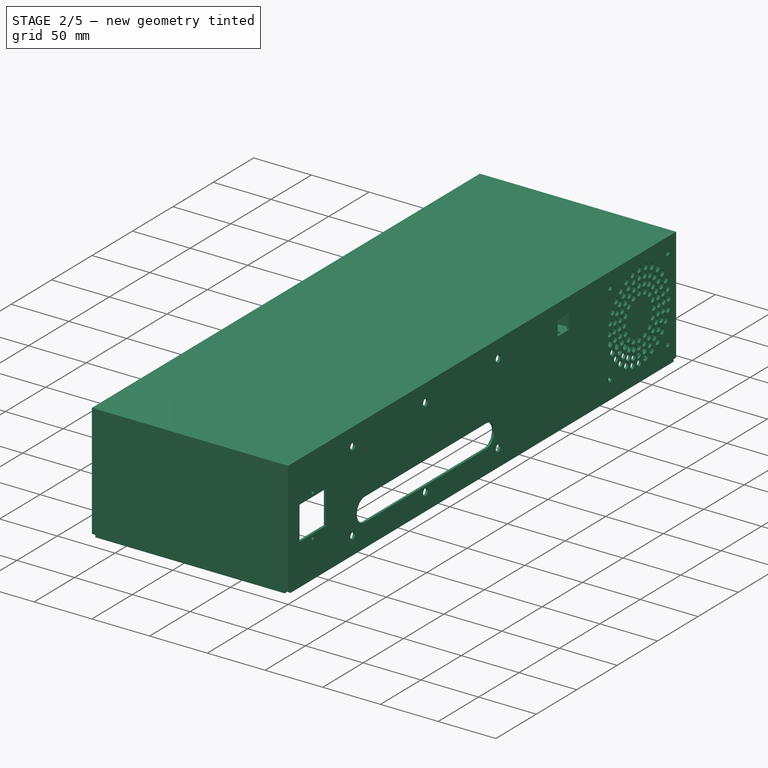
[diagram: stage 2 of 5 — iso view after this stage's code; geometry added in this stage tinted green]
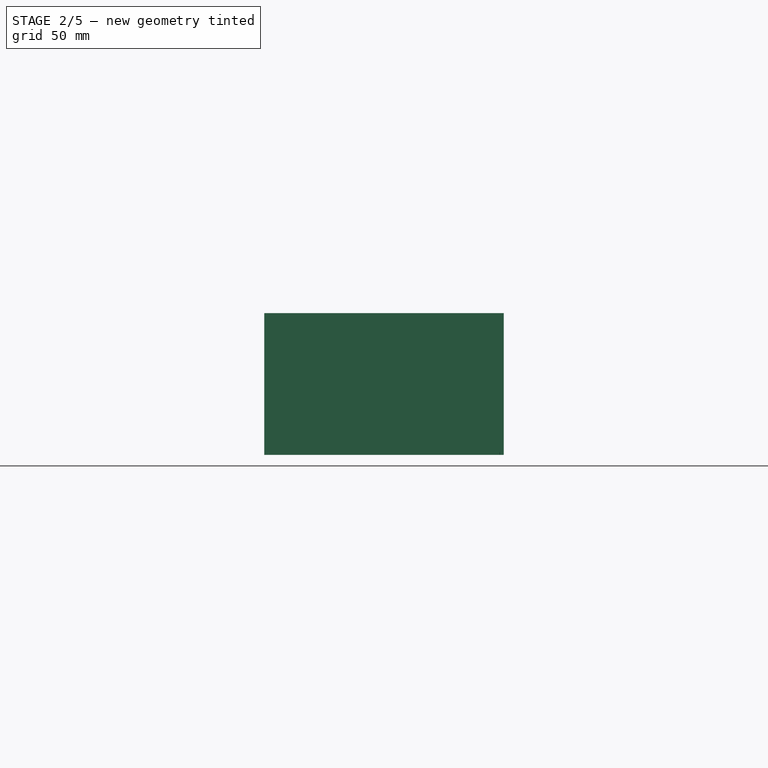
[diagram: stage 2 of 5 — front view after this stage's code; geometry added in this stage tinted green]
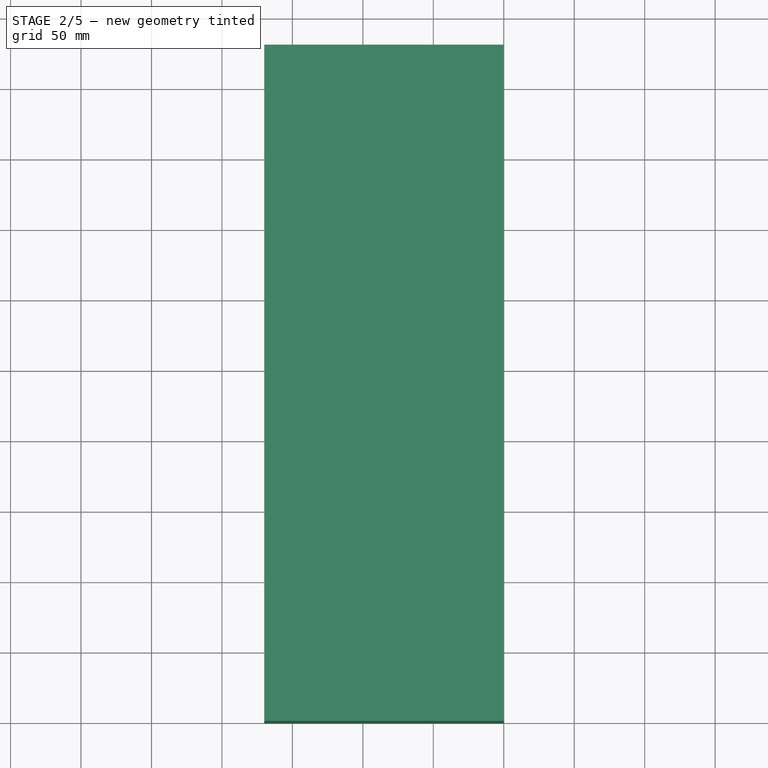
[diagram: stage 2 of 5 — top view after this stage's code; geometry added in this stage tinted green]
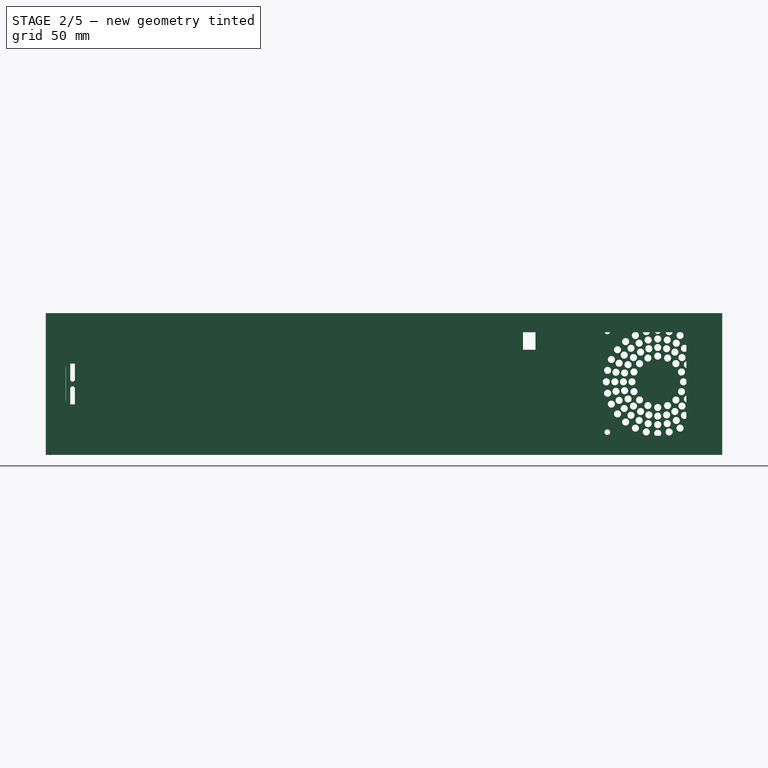
[diagram: stage 2 of 5 — right view after this stage's code; geometry added in this stage tinted green]
FEATURE [PartDesign::Pocket] Pocket003
  BaseFeature = -> Pocket002
  Length = 5
  Length2 = 100
  Profile = -> Sketch004
  Type = 0
FEATURE [PartDesign::Pocket] Pocket004
  BaseFeature = -> Pocket003
  Length = 5
  Length2 = 100
  Profile = -> Sketch006
  Type = 0
FEATURE [PartDesign::Pocket] Pocket005
  BaseFeature = -> Pocket004
  Length = 5
  Length2 = 100
  Profile = -> Sketch007
  Type = 0
FEATURE [PartDesign::Pocket] Pocket006
  BaseFeature = -> Pocket005
  Length = 5
  Length2 = 100
  Profile = -> Sketch008
  Type = 0
FEATURE [PartDesign::Pocket] Pocket007
  BaseFeature = -> Pocket006
  Length = 5
  Length2 = 100
  Profile = -> Sketch009
  Type = 0
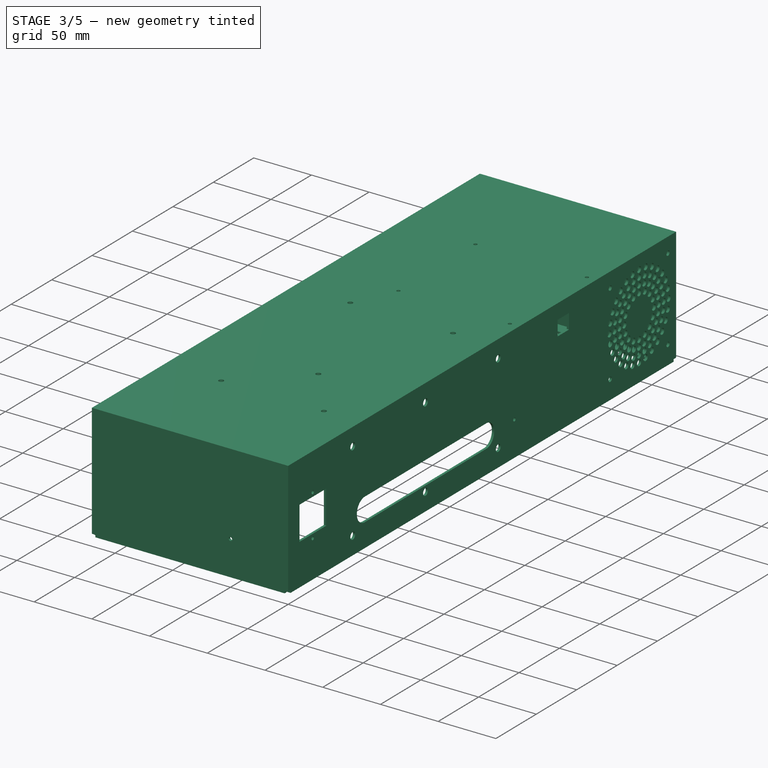
[diagram: stage 3 of 5 — iso view after this stage's code; geometry added in this stage tinted green]
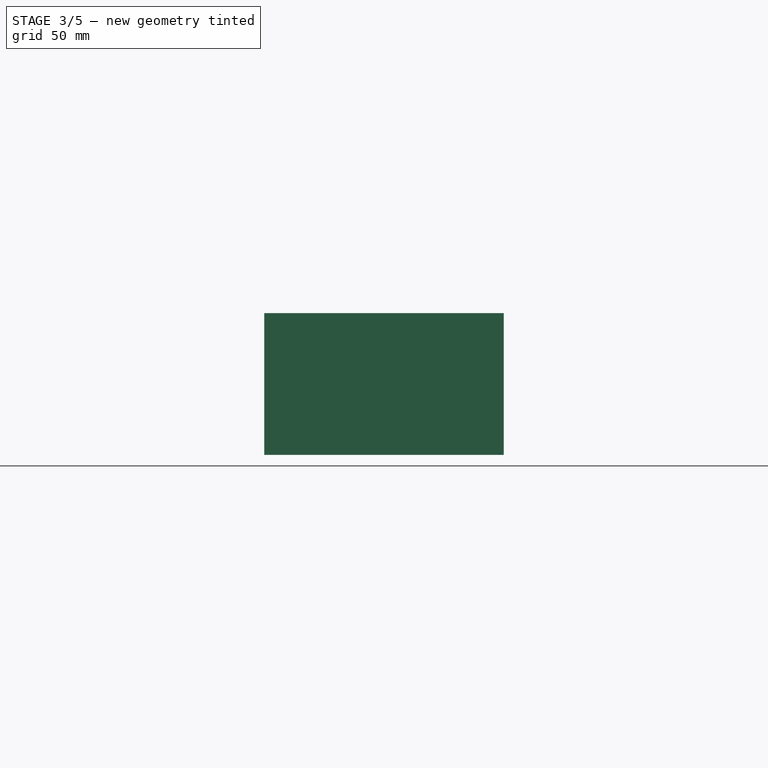
[diagram: stage 3 of 5 — front view after this stage's code; geometry added in this stage tinted green]
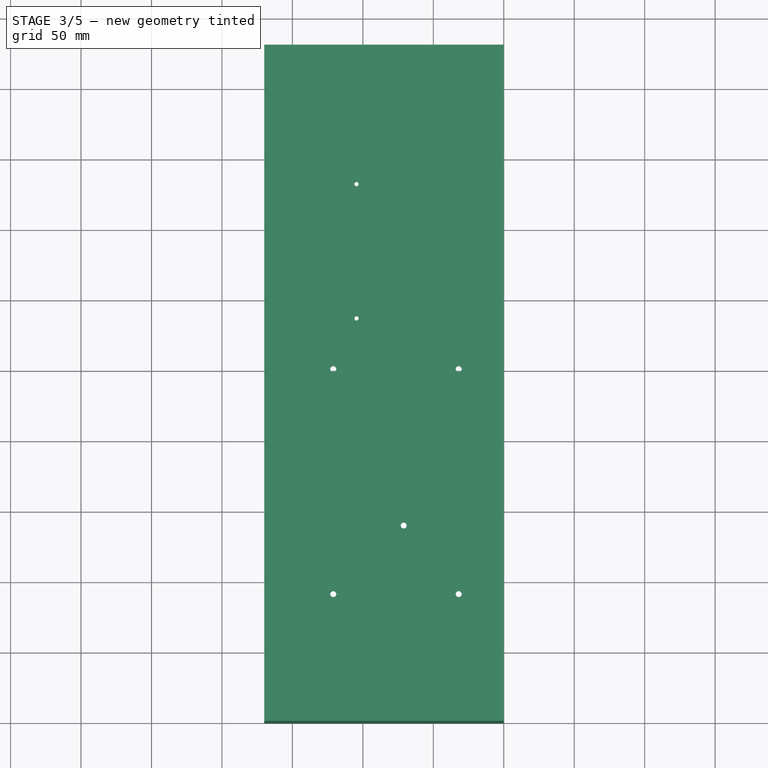
[diagram: stage 3 of 5 — top view after this stage's code; geometry added in this stage tinted green]
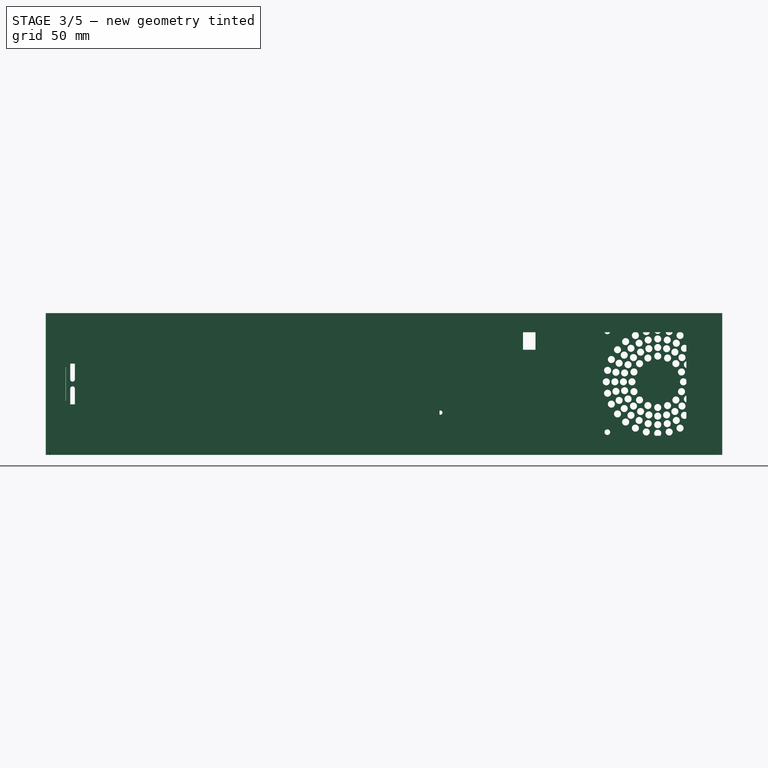
[diagram: stage 3 of 5 — right view after this stage's code; geometry added in this stage tinted green]
FEATURE [PartDesign::Pocket] Pocket008
  BaseFeature = -> Pocket007
  Length = 5
  Length2 = 100
  Profile = -> Sketch010
  Type = 0
FEATURE [PartDesign::Pocket] Pocket009
  BaseFeature = -> Pocket008
  Length = 5
  Length2 = 100
  Profile = -> Sketch011
  Type = 0
FEATURE [PartDesign::Pocket] Pocket010
  BaseFeature = -> Pocket009
  Length = 5
  Length2 = 100
  Profile = -> Sketch012
  Type = 0
FEATURE [PartDesign::Pocket] Pocket011
  BaseFeature = -> Pocket010
  Length = 5
  Length2 = 100
  Profile = -> Sketch013
  Type = 0
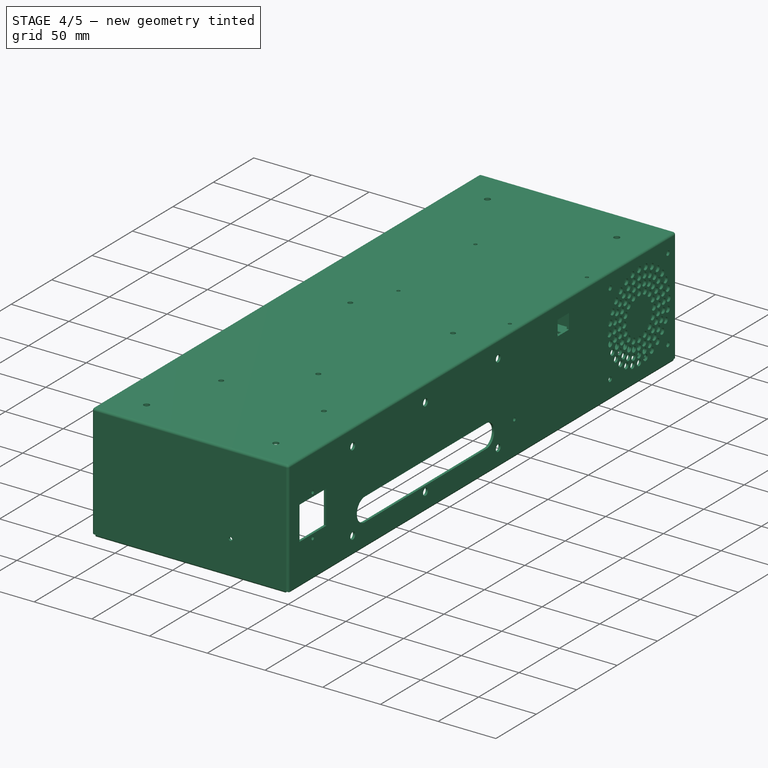
[diagram: stage 4 of 5 — iso view after this stage's code; geometry added in this stage tinted green]
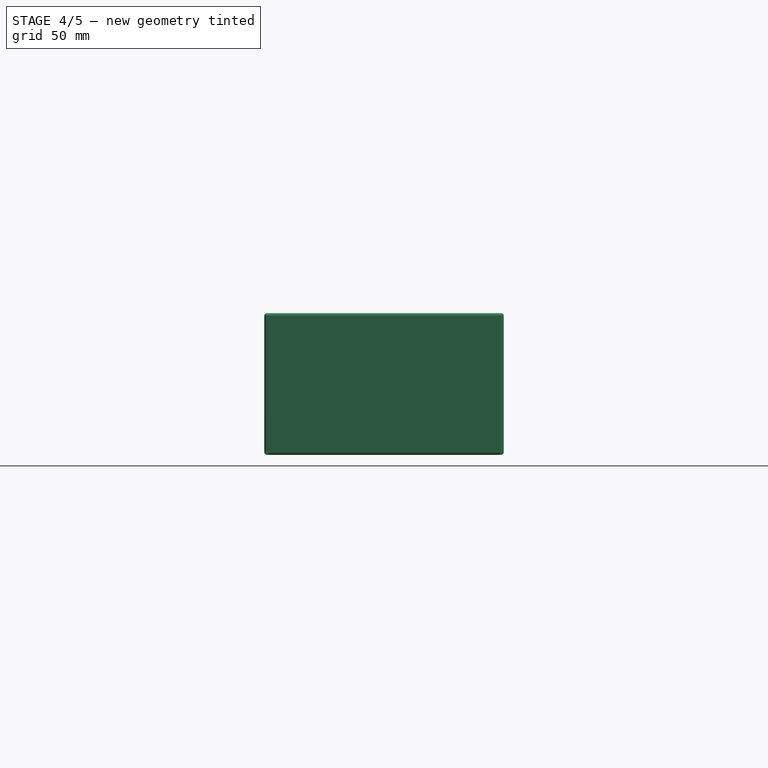
[diagram: stage 4 of 5 — front view after this stage's code; geometry added in this stage tinted green]
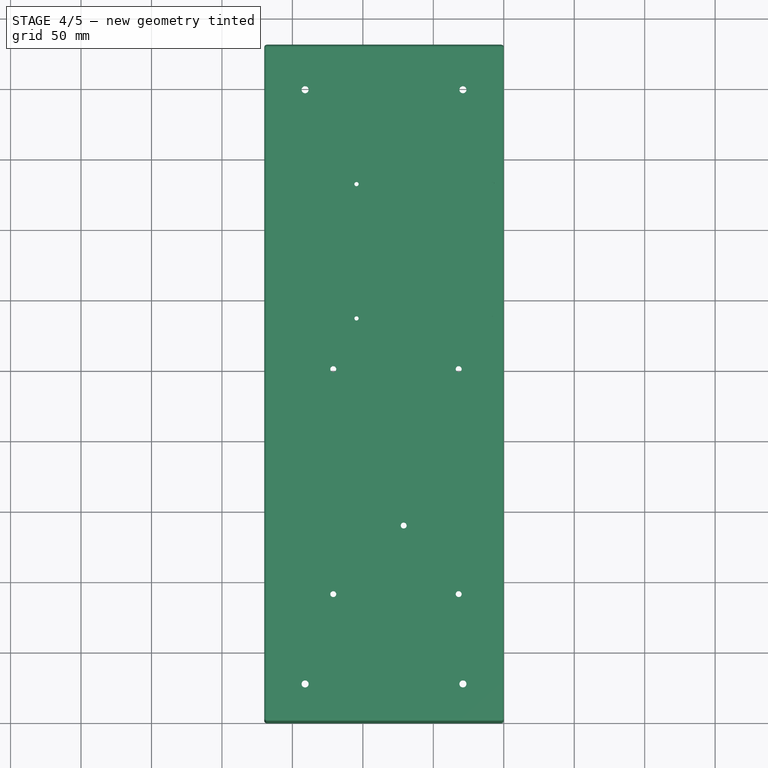
[diagram: stage 4 of 5 — top view after this stage's code; geometry added in this stage tinted green]
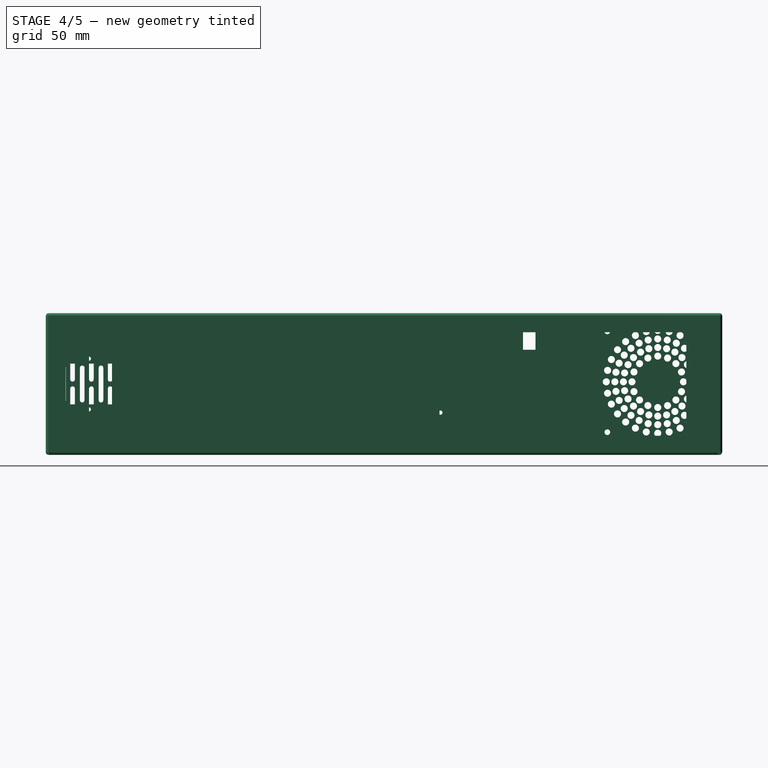
[diagram: stage 4 of 5 — right view after this stage's code; geometry added in this stage tinted green]
FEATURE [PartDesign::Pocket] Pocket012
  BaseFeature = -> Pocket011
  Length = 5
  Length2 = 100
  Profile = -> Sketch014
  Type = 0
FEATURE [PartDesign::Pocket] Pocket013
  BaseFeature = -> Pocket012
  Length = 5
  Length2 = 100
  Profile = -> Sketch015
  Type = 0
FEATURE [PartDesign::LinearPattern] LinearPattern
  BaseFeature = -> Pocket013
  Direction = -> Sketch004 [H_Axis]
  Length = 40
  Occurrences = 4
  Originals = -> [Pocket003]
  Reversed = true
FEATURE [PartDesign::Fillet] Fillet
  Base = -> LinearPattern [Edge170,Edge410,Edge168,Edge5,Edge19,Edge2,Edge18,Edge4,Edge6,Edge145,Edge146,Edge16]
  BaseFeature = -> LinearPattern
  Radius = 1.99
FEATURE [PartDesign::Chamfer] Chamfer
  Base = -> Fillet [Edge840,Edge839,Edge846,Edge845]
  BaseFeature = -> Fillet
  Size = 1.5
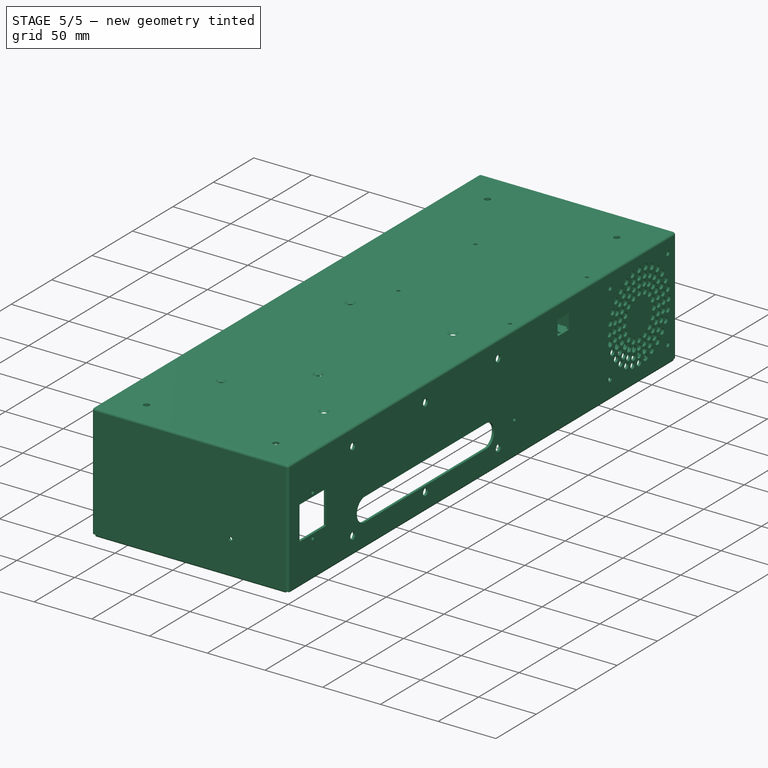
[diagram: stage 5 of 5 — iso view after this stage's code; geometry added in this stage tinted green]
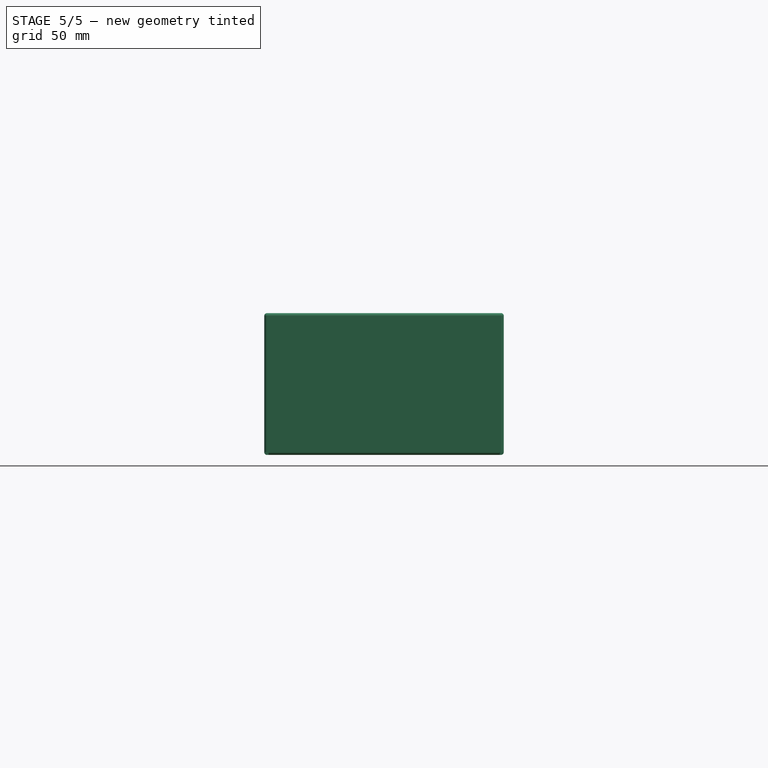
[diagram: stage 5 of 5 — front view after this stage's code; geometry added in this stage tinted green]
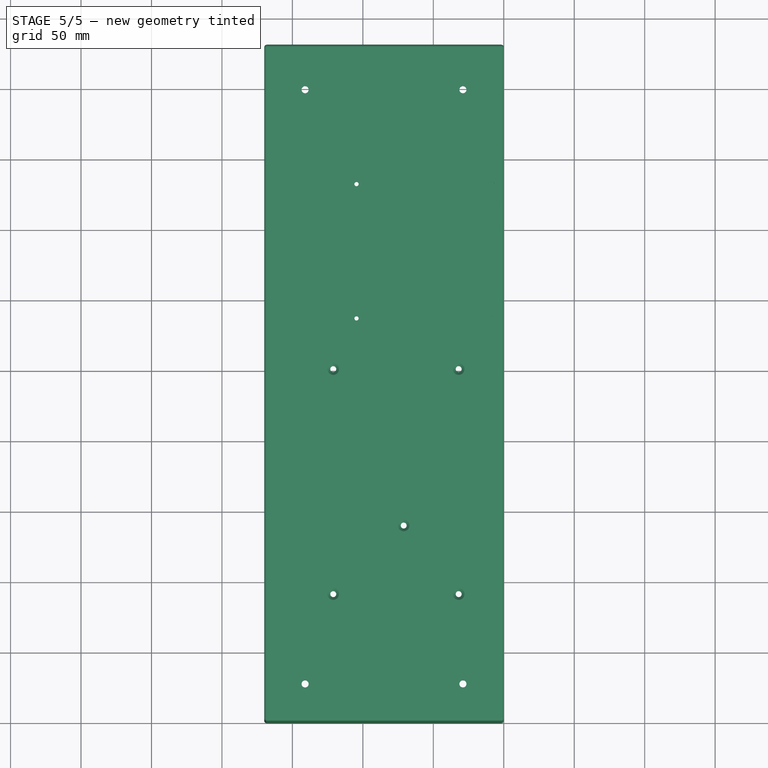
[diagram: stage 5 of 5 — top view after this stage's code; geometry added in this stage tinted green]
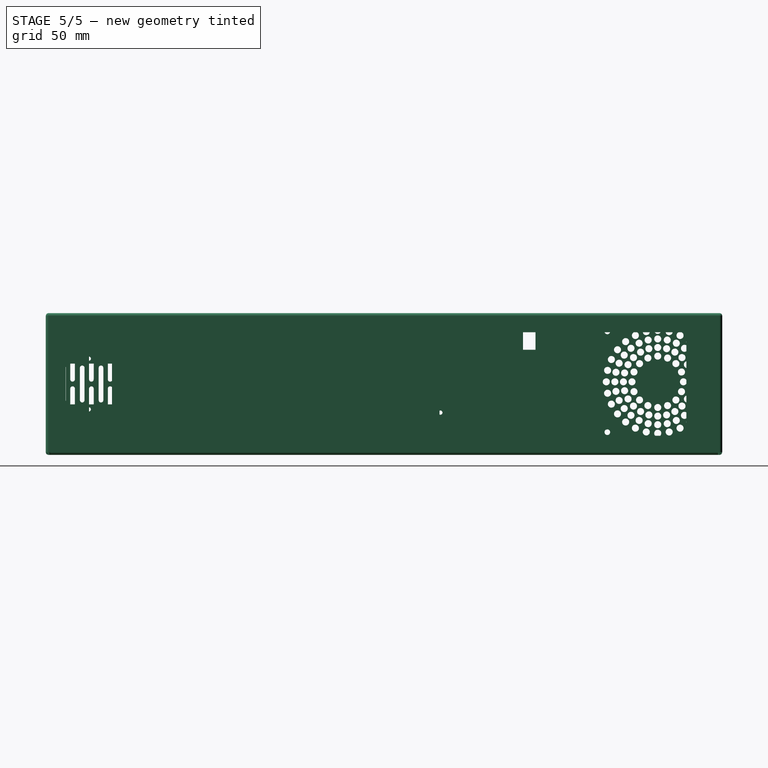
[diagram: stage 5 of 5 — right view after this stage's code; geometry added in this stage tinted green]
FEATURE [PartDesign::Chamfer] Chamfer001
  Base = -> Chamfer [Edge284,Edge286,Edge285,Edge288,Edge287]
  BaseFeature = -> Chamfer
  Size = 1.99
FEATURE [Drawing::FeatureViewPart] Ortho  label="Ortho_0_0"
  Direction = (0,0,1)
  HiddenWidth = 0.15
  LineWidth = 0.35
  Rotation = 0
  Scale = 0.2
  ShowHiddenLines = false
  ShowSmoothLines = false
  Source = -> Chamfer001
  Tolerance = 0.05
  ViewResult = <blob: 2060 chars omitted>
  Visible = true
  X = 131.624
  Y = 129.5
FEATURE [Drawing::FeatureViewPart] Ortho001  label="Ortho_1_0"
  Direction = (1,0,0)
  HiddenWidth = 0.15
  LineWidth = 0.35
  Rotation = 180
  Scale = 0.2
  ShowHiddenLines = false
  ShowSmoothLines = false
  Source = -> Chamfer001
  Tolerance = 0.05
  ViewResult = <blob: 18184 chars omitted>
  Visible = true
  X = 185.496
  Y = 129.5
FEATURE [Drawing::FeatureViewPart] Ortho002  label="Ortho_2_0"
  Direction = (0,0,-1)
  HiddenWidth = 0.15
  LineWidth = 0.35
  Rotation = 0
  Scale = 0.2
  ShowHiddenLines = false
  ShowSmoothLines = false
  Source = -> Chamfer001
  Tolerance = 0.05
  ViewResult = <blob: 11135 chars omitted>
  Visible = true
  X = 219.248
  Y = 129.5
FEATURE [Drawing::FeatureViewPart] Ortho003  label="Ortho_-1_0"
  Direction = (-1,0,0)
  HiddenWidth = 0.15
  LineWidth = 0.35
  Rotation = 180
  Scale = 0.2
  ShowHiddenLines = false
  ShowSmoothLines = false
  Source = -> Chamfer001
  Tolerance = 0.05
  ViewResult = <blob: 15257 chars omitted>
  Visible = true
  X = 43.752
  Y = 129.5
FEATURE [Drawing::FeatureViewPart] Ortho004  label="Ortho_0_001"
  Direction = (1,0,0)
  HiddenWidth = 0.15
  LineWidth = 0.35
  Rotation = -90
  Scale = 0.35
  ShowHiddenLines = false
  ShowSmoothLines = false
  Source = -> Chamfer001
  Tolerance = 0.05
  ViewResult = <blob: 18184 chars omitted>
  Visible = true
  X = 64.5
  Y = 99.105
FEATURE [Drawing::FeaturePage] Page001  label="Page4"
  EditableTexts = Sheet Metal, Electronics Chassis, Syn 1 | 100067 | 5052 H32 Aluminum 2.03 | B | 4 OF 7
  Group = -> [Ortho004,dimStack008,dimStack014,dimStack017,dimStack021,dimStack022,dimStack028,dimStack030,dim001,centerLines001,centerLines002,centerLines003,centerLines004,centerLines005,dimText001,dimText002,dimText003,dimText004,dim004,centerLines006,centerLines007,centerLines008,centerLines009,centerLines010,centerLines011,centerLines012,centerLines013,centerLines016,centerLines017,centerLines019,+34 more]
  Template = <userpath>/Desktop/drawing templates/A4_Page2_attribution.svg
FEATURE [Drawing::FeatureViewPart] Ortho005  label="Ortho_0_002"
  Direction = (-1,0,0)
  HiddenWidth = 0.15
  LineWidth = 0.35
  Rotation = -90
  Scale = 0.35
  ShowHiddenLines = false
  ShowSmoothLines = false
  Source = -> Chamfer001
  Tolerance = 0.05
  ViewResult = <blob: 15253 chars omitted>
  Visible = true
  X = 64.5
  Y = 63.895
FEATURE [Drawing::FeatureView] dimLine003
  Rotation = 0
  ViewResult = <g   >\n<line x1="216.732318" y1="26.269412" x2="220.773000" y2="34.975000" style="stroke:rgb(0,0,255);stroke-width:0.25" />\n<polygon points="220.773000,34.975000 220.838039,32.739878 219.930983,33.160887 219.023926,33.581895" style="fill:rgb(0,0,255);stroke:rgb(0,0,255);stroke-width:0" />\n<line x1="216.732318" y1="26.269412" x2="196.536982" y2="26.269412" style="stroke:rgb(0,0,255);stroke-width:0.25" />\n</g> 
  Visible = true
  X = 0
  Y = 0
FEATURE [Drawing::FeatureView] dimText062
  Rotation = 0
  ViewResult = <g> <text x="190.582773" y="24.930150" font-family="inherit" font-size="3" fill="rgb(0,0,255)" text-anchor="inherit" transform="rotate(0.000000 190.582773,24.930150)" >DO NOT WELD SEAM</text> </g>
  Visible = true
  X = 0
  Y = 0
FEATURE [Drawing::FeatureView] dimText063
  Rotation = 0
  ViewResult = <g> <text x="184.599537" y="141.410899" font-family="inherit" font-size="3" fill="rgb(0,0,255)" text-anchor="inherit" transform="rotate(0.000000 184.599537,141.410899)" >FILL RELIEF AND GRIND</text> </g>
  Visible = true
  X = 0
  Y = 0
FEATURE [Drawing::FeatureView] dimLine004
  Rotation = 0
  ViewResult = <g   >\n<line x1="215.642729" y1="138.242392" x2="219.248000" y2="129.102000" style="stroke:rgb(0,0,255);stroke-width:0.25" />\n<polygon points="219.248000,129.102000 217.583905,130.595582 218.514156,130.962504 219.444408,131.329425" style="fill:rgb(0,0,255);stroke:rgb(0,0,255);stroke-width:0" />\n<line x1="215.642729" y1="138.242392" x2="192.249344" y2="138.242392" style="stroke:rgb(0,0,255);stroke-width:0.25" />\n</g> 
  Visible = true
  X = 0
  Y = 0
FEATURE [Drawing::FeatureViewPython] text006  # drawing view (typed FeaturePython)
  Rotation = 0
  ViewResult = <g> <text x="170.000000" y="173.500000" font-family="inherit" font-size="3" fill="rgb(0,0,255)" text-anchor="inherit" transform="rotate(0.000000 170.000000,173.500000)" >OVERSPRAY ALLOWED INSIDE EXCEPT AS NOTED</text> </g>
  Visible = true
  X = 0
  Y = 0
  click1_x = 170
  click1_y = 173.5
  rotation = 0
  text = OVERSPRAY ALLOWED INSIDE EXCEPT AS NOTED
  textRenderer_addText_color = rgb(0,0,255)
  textRenderer_addText_family = inherit
  textRenderer_addText_size = 3
FEATURE [Drawing::FeatureViewPython] text005  # drawing view (typed FeaturePython)
  Rotation = 0
  ViewResult = <g> <text x="216.500000" y="18.500000" font-family="inherit" font-size="3" fill="rgb(0,0,255)" text-anchor="inherit" transform="rotate(0.000000 216.500000,18.500000)" >POWDER COAT OUTSIDE OF CHASSIS</text> </g>
  Visible = true
  X = 0
  Y = 30
  click1_x = 216.5
  click1_y = 18.5
  rotation = 0
  text = POWDER COAT OUTSIDE OF CHASSIS
  textRenderer_addText_color = rgb(0,0,255)
  textRenderer_addText_family = inherit
  textRenderer_addText_size = 3
FEATURE [Drawing::FeatureViewPart] Ortho019  label="Ortho_0_005"
  Direction = (0,1,0)
  HiddenWidth = 0.15
  LineWidth = 0.35
  Rotation = 180
  Scale = 0.25
  ShowHiddenLines = false
  ShowSmoothLines = false
  Source = -> Chamfer001
  Tolerance = 0.05
  ViewResult = <blob: 3565 chars omitted>
  Visible = true
  X = 48.075
  Y = 56.25
FEATURE [Drawing::FeatureView] dimLine007
  Rotation = 0
  ViewResult = <g   >\n<line x1="115.472847" y1="189.851207" x2="71.500000" y2="172.125000" style="stroke:rgb(0,0,255);stroke-width:0.25" />\n<polygon points="71.500000,172.125000 72.981071,173.800240 73.354953,172.872763 73.728834,171.945287" style="fill:rgb(0,0,255);stroke:rgb(0,0,255);stroke-width:0" />\n<line x1="115.472847" y1="189.851207" x2="147.070337" y2="189.851207" style="stroke:rgb(0,0,255);stroke-width:0.25" />\n</g> 
  Visible = true
  X = 0
  Y = 0
FEATURE [Drawing::FeatureView] dimLine008
  Rotation = 0
  ViewResult = <g   >\n<line x1="115.384090" y1="189.584936" x2="105.000000" y2="178.125000" style="stroke:rgb(0,0,255);stroke-width:0.25" />\n<polygon points="105.000000,178.125000 105.601900,180.278536 106.342934,179.607069 107.083968,178.935602" style="fill:rgb(0,0,255);stroke:rgb(0,0,255);stroke-width:0" />\n<line x1="115.384090" y1="189.584936" x2="115.384090" y2="189.584936" style="stroke:rgb(0,0,255);stroke-width:0.25" />\n</g> 
  Visible = true
  X = 0
  Y = 0
FEATURE [Drawing::FeatureView] dimLine013
  Rotation = 0
  ViewResult = <g   >\n<line x1="115.384090" y1="189.673693" x2="111.000000" y2="172.875000" style="stroke:rgb(0,0,255);stroke-width:0.25" />\n<polygon points="111.000000,172.875000 110.537449,175.062703 111.505040,174.810183 112.472632,174.557663" style="fill:rgb(0,0,255);stroke:rgb(0,0,255);stroke-width:0" />\n<line x1="115.384090" y1="189.673693" x2="115.384090" y2="189.673693" style="stroke:rgb(0,0,255);stroke-width:0.25" />\n</g> 
  Visible = true
  X = 0
  Y = 0
FEATURE [Drawing::FeatureView] dimLine014
  Rotation = 0
  ViewResult = <g   >\n<line x1="115.410127" y1="189.595407" x2="105.000000" y2="61.875000" style="stroke:rgb(0,0,255);stroke-width:0.25" />\n<polygon points="105.000000,61.875000 104.165781,63.949627 105.162476,63.868390 106.159170,63.787152" style="fill:rgb(0,0,255);stroke:rgb(0,0,255);stroke-width:0" />\n<line x1="115.410127" y1="189.595407" x2="115.410127" y2="189.595407" style="stroke:rgb(0,0,255);stroke-width:0.25" />\n</g> 
  Visible = true
  X = 0
  Y = 0
FEATURE [Drawing::FeatureView] dimLine017
  Rotation = 0
  ViewResult = <g   >\n<line x1="123.742040" y1="47.706883" x2="157.668750" y2="64.312500" style="stroke:rgb(0,0,255);stroke-width:0.25" />\n<polygon points="157.668750,64.312500 156.312004,62.535075 155.872383,63.433258 155.432762,64.331442" style="fill:rgb(0,0,255);stroke:rgb(0,0,255);stroke-width:0" />\n<line x1="123.742040" y1="47.706883" x2="92.278870" y2="47.706883" style="stroke:rgb(0,0,255);stroke-width:0.25" />\n</g> 
  Visible = true
  X = 0
  Y = 0
FEATURE [Drawing::FeatureView] dimLine018
  Rotation = 0
  ViewResult = <g   >\n<line x1="123.638491" y1="47.573748" x2="137.481250" y2="64.312500" style="stroke:rgb(0,0,255);stroke-width:0.25" />\n<polygon points="137.481250,64.312500 136.977282,62.133965 136.206661,62.771259 135.436041,63.408554" style="fill:rgb(0,0,255);stroke:rgb(0,0,255);stroke-width:0" />\n<line x1="123.638491" y1="47.573748" x2="123.638491" y2="47.573748" style="stroke:rgb(0,0,255);stroke-width:0.25" />\n</g> 
  Visible = true
  X = 0
  Y = 0
FEATURE [Drawing::FeatureView] dimLine019
  Rotation = 0
  ViewResult = <g   >\n<line x1="123.638491" y1="47.751262" x2="137.481250" y2="96.125000" style="stroke:rgb(0,0,255);stroke-width:0.25" />\n<polygon points="137.481250,96.125000 137.892421,93.927060 136.931011,94.202180 135.969601,94.477300" style="fill:rgb(0,0,255);stroke:rgb(0,0,255);stroke-width:0" />\n<line x1="123.638491" y1="47.751262" x2="123.638491" y2="47.751262" style="stroke:rgb(0,0,255);stroke-width:0.25" />\n</g> 
  Visible = true
  X = 0
  Y = 0
FEATURE [Drawing::FeatureView] dimLine020
  Rotation = 0
  ViewResult = <g   >\n<line x1="123.638491" y1="47.662505" x2="157.668750" y2="96.125000" style="stroke:rgb(0,0,255);stroke-width:0.25" />\n<polygon points="157.668750,96.125000 157.337798,93.913559 156.519412,94.488228 155.701026,95.062897" style="fill:rgb(0,0,255);stroke:rgb(0,0,255);stroke-width:0" />\n<line x1="123.638491" y1="47.662505" x2="123.638491" y2="47.662505" style="stroke:rgb(0,0,255);stroke-width:0.25" />\n</g> 
  Visible = true
  X = 0
  Y = 0
FEATURE [Drawing::FeatureView] grabPoint001
  Rotation = 0
  ViewResult = <g> <line x1="31.3608040057" y1="27.5146676654" x2="31.3608040057" y2="27.5146676654" style="stroke:rgb(0,0,0);stroke-width:0.01" /> </g> 
  Visible = true
  X = 0
  Y = 0
FEATURE [Drawing::FeatureView] grabPoint002
  Rotation = 0
  ViewResult = <g> <line x1="39.4228974883" y1="27.5146676654" x2="39.4228974883" y2="27.5146676654" style="stroke:rgb(0,0,0);stroke-width:0.01" /> </g> 
  Visible = true
  X = 0
  Y = 0
FEATURE [Drawing::FeatureView] dimText064
  Rotation = 0
  ViewResult = <g> <text x="90.865786" y="42.002675" font-family="inherit" font-size="3" fill="rgb(0,0,255)" text-anchor="inherit" transform="rotate(0.000000 90.865786,42.002675)" >MASK THESE FOUR POSTS ON INSIDE</text> </g>
  Visible = true
  X = 0
  Y = 0
FEATURE [Drawing::FeatureView] dimText067
  Rotation = 0
  ViewResult = <g> <text x="90.585769" y="45.642907" font-family="inherit" font-size="3" fill="rgb(0,0,255)" text-anchor="inherit" transform="rotate(0.000000 90.585769,45.642907)" >PRIOR TO POWDER COAT</text> </g>
  Visible = true
  X = 0
  Y = 0
FEATURE [Drawing::FeatureView] dimText068
  Rotation = 0
  ViewResult = <g> <text x="9.938511" y="186.439104" font-family="inherit" font-size="3" fill="rgb(0,0,255)" text-anchor="inherit" transform="rotate(0.000000 9.938511,186.439104)" >MASK HOLES Ø8.0MM</text> </g>
  Visible = true
  X = 0
  Y = 0
FEATURE [Drawing::FeatureView] dimText069
  Rotation = 0
  ViewResult = <g> <text x="9.386371" y="193.616918" font-family="inherit" font-size="3" fill="rgb(0,0,255)" text-anchor="inherit" transform="rotate(0.000000 9.386371,193.616918)" >MASK INDICATED AREAS</text> </g>
  Visible = true
  X = 0
  Y = 0
FEATURE [Drawing::FeatureView] dimText070
  Rotation = 0
  ViewResult = <g> <text x="9.386371" y="197.113801" font-family="inherit" font-size="3" fill="rgb(0,0,255)" text-anchor="inherit"  >INSIDE PERIMITER OF</text> </g>
  Visible = true
  X = 0
  Y = 0
FEATURE [Drawing::FeatureView] dimText071
  Rotation = 0
  ViewResult = <g> <text x="9.202325" y="200.426638" font-family="inherit" font-size="3" fill="rgb(0,0,255)" text-anchor="inherit"  >DASHED LINES OR ENTIRE INSIDE OF CHASSIS  PRIOR</text> </g>
  Visible = true
  X = 0
  Y = 0
FEATURE [Drawing::FeatureView] dimText072
  Rotation = 0
  ViewResult = <g> <text x="107.667202" y="192.880732" font-family="inherit" font-size="3" fill="rgb(0,0,255)" text-anchor="inherit" transform="rotate(0.000000 107.667202,192.880732)" >MASK ALL FOUR EXTERNAL FACE TABS</text> </g>
  Visible = true
  X = 0
  Y = 0
FEATURE [Drawing::FeatureView] dimText073
  Rotation = 0
  ViewResult = <g> <text x="98.648924" y="196.377615" font-family="inherit" font-size="3" fill="rgb(0,0,255)" text-anchor="inherit" transform="rotate(0.000000 98.648924,196.377615)" >INSIDE EDGE TOWARD OUTSIDE 7.5MM WIDE</text> </g>
  Visible = true
  X = 0
  Y = 0
FEATURE [Drawing::FeatureView] dimText074
  Rotation = 0
  ViewResult = <g> <text x="58.199920" y="20.354070" font-family="inherit" font-size="3" fill="rgb(0,0,255)" text-anchor="inherit" transform="rotate(0.000000 58.199920,20.354070)" >MASK INDICATED AREA ON INSIDE PRIOR TO POWDER COAT</text> </g>
  Visible = true
  X = 0
  Y = 0
FEATURE [Drawing::FeatureView] dim023
  Rotation = 0
  ViewResult = <g> \n  <line x1="93.937500" y1="60.000000" x2="63.656895" y2="60.000000" style="stroke:rgb(0,0,255);stroke-width:0.25" />\n<line x1="70.000000" y1="85.125000" x2="63.656895" y2="85.125000" style="stroke:rgb(0,0,255);stroke-width:0.25" />\n<line x1="64.656895" y1="60.000000" x2="64.656895" y2="85.125000" style="stroke:rgb(0,0,255);stroke-width:0.25" /> \n  <polygon points="64.656895,85.125000 65.656895,83.125000 64.656895,83.125000 63.656895,83.125000" style="fill:rgb(0,0,255);stroke:rgb(0,0,255);stroke-width:0" /><polygon points="64.656895,60.000000 63.656895,62.000000 64.656895,62.000000 65.656895,62.000000" style="fill:rgb(0,0,255);stroke:rgb(0,0,255);stroke-width:0" /> \n  <text x="62.656895" y="72.562500" font-family="inherit" font-size="3" fill="rgb(0,0,255)" text-anchor="middle" transform="rotate(-90.000000 62.656895,72.562500)" >100.5 </text> </g>
  Visible = true
  X = 0
  Y = 0
FEATURE [Drawing::FeatureView] dim024
  Rotation = 0
  ViewResult = <g> \n  <line x1="70.000000" y1="85.125000" x2="63.615912" y2="85.125000" style="stroke:rgb(0,0,255);stroke-width:0.25" />\n<line x1="70.000000" y1="108.200000" x2="63.615912" y2="108.200000" style="stroke:rgb(0,0,255);stroke-width:0.25" />\n<line x1="64.615912" y1="85.125000" x2="64.615912" y2="108.200000" style="stroke:rgb(0,0,255);stroke-width:0.25" /> \n  <polygon points="64.615912,108.200000 65.615912,106.200000 64.615912,106.200000 63.615912,106.200000" style="fill:rgb(0,0,255);stroke:rgb(0,0,255);stroke-width:0" /><polygon points="64.615912,85.125000 63.615912,87.125000 64.615912,87.125000 65.615912,87.125000" style="fill:rgb(0,0,255);stroke:rgb(0,0,255);stroke-width:0" /> \n  <text x="62.615912" y="96.662500" font-family="inherit" font-size="3" fill="rgb(0,0,255)" text-anchor="middle" transform="rotate(-90.000000 62.615912,96.662500)" >92</text> </g>
  Visible = true
  X = 0
  Y = 0
FEATURE [Drawing::FeatureView] centerLines059
  Rotation = 0
  ViewResult = <g transform="scale(0.250000,0.250000)" stroke="rgb(0,0,255)"  stroke-width="0.600000" > <path d="M 288.000000,340.500000 L 300.000000,340.500000 M 308.000000,340.500000 L 332.000000,340.500000 M 340.000000,340.500000 L 352.000000,340.500000 M 360.000000,340.500000 L 384.000000,340.500000 "/>\n<path d="M 288.000000,340.500000 L 300.000000,340.500000 M 308.000000,340.500000 L 332.000000,340.500000 M 340.000000,340.500000 L 352.000000,340.500000 M 360.000000,340.500000 L 384.000000,340.500000 "/> </g> 
  Visible = true
  X = 0
  Y = 0
FEATURE [Drawing::FeatureView] centerLines060
  Rotation = 0
  ViewResult = <g transform="scale(0.250000,0.250000)" stroke="rgb(0,0,255)"  stroke-width="0.600000" > <path d="M 289.500000,339.000000 L 289.500000,351.000000 M 289.500000,359.000000 L 289.500000,383.000000 M 289.500000,391.000000 L 289.500000,403.000000 M 289.500000,411.000000 L 289.500000,435.000000 "/>\n<path d="M 289.500000,339.000000 L 289.500000,351.000000 M 289.500000,359.000000 L 289.500000,383.000000 M 289.500000,391.000000 L 289.500000,403.000000 M 289.500000,411.000000 L 289.500000,435.000000 "/> </g> 
  Visible = true
  X = 0
  Y = 0
FEATURE [Drawing::FeatureView] centerLines061
  Rotation = 0
  ViewResult = <g transform="scale(0.250000,0.250000)" stroke="rgb(0,0,255)"  stroke-width="0.600000" > <path d="M 288.000000,432.800000 L 300.000000,432.800000 M 308.000000,432.800000 L 332.000000,432.800000 M 340.000000,432.800000 L 352.000000,432.800000 M 360.000000,432.800000 L 384.000000,432.800000 "/>\n<path d="M 288.000000,432.800000 L 300.000000,432.800000 M 308.000000,432.800000 L 332.000000,432.800000 M 340.000000,432.800000 L 352.000000,432.800000 M 360.000000,432.800000 L 384.000000,432.800000 "/> </g> 
  Visible = true
  X = 0
  Y = 0
FEATURE [Drawing::FeatureView] centerLines062
  Rotation = 0
  ViewResult = <g transform="scale(0.250000,0.250000)" stroke="rgb(0,0,255)"  stroke-width="0.600000" > <path d="M 383.000000,434.300000 L 383.000000,422.300000 M 383.000000,414.300000 L 383.000000,390.300000 M 383.000000,382.300000 L 383.000000,370.300000 M 383.000000,362.300000 L 383.000000,338.300000 "/>\n<path d="M 383.000000,434.300000 L 383.000000,422.300000 M 383.000000,414.300000 L 383.000000,390.300000 M 383.000000,382.300000 L 383.000000,370.300000 M 383.000000,362.300000 L 383.000000,338.300000 "/> </g> 
  Visible = true
  X = 0
  Y = 0
FEATURE [Drawing::FeatureView] dim025
  Rotation = 0
  ViewResult = <g> \n  <line x1="80.125000" y1="180.000000" x2="65.721836" y2="180.000000" style="stroke:rgb(0,0,255);stroke-width:0.25" />\n<line x1="76.000000" y1="156.477500" x2="65.721836" y2="156.477500" style="stroke:rgb(0,0,255);stroke-width:0.25" />\n<line x1="66.721836" y1="180.000000" x2="66.721836" y2="156.477500" style="stroke:rgb(0,0,255);stroke-width:0.25" /> \n  <polygon points="66.721836,156.477500 65.721836,158.477500 66.721836,158.477500 67.721836,158.477500" style="fill:rgb(0,0,255);stroke:rgb(0,0,255);stroke-width:0" /><polygon points="66.721836,180.000000 67.721836,178.000000 66.721836,178.000000 65.721836,178.000000" style="fill:rgb(0,0,255);stroke:rgb(0,0,255);stroke-width:0" /> \n  <text x="64.721836" y="168.238750" font-family="inherit" font-size="3" fill="rgb(0,0,255)" text-anchor="middle" transform="rotate(-90.000000 64.721836,168.238750)" >94</text> </g>
  Visible = true
  X = 0
  Y = 0
FEATURE [Drawing::FeatureView] dim026
  Rotation = 0
  ViewResult = <g> \n  <line x1="76.000000" y1="156.477500" x2="64.644184" y2="156.477500" style="stroke:rgb(0,0,255);stroke-width:0.25" />\n<line x1="76.000000" y1="118.597500" x2="64.644184" y2="118.597500" style="stroke:rgb(0,0,255);stroke-width:0.25" />\n<line x1="65.644184" y1="156.477500" x2="65.644184" y2="118.597500" style="stroke:rgb(0,0,255);stroke-width:0.25" /> \n  <polygon points="65.644184,118.597500 64.644184,120.597500 65.644184,120.597500 66.644184,120.597500" style="fill:rgb(0,0,255);stroke:rgb(0,0,255);stroke-width:0" /><polygon points="65.644184,156.477500 66.644184,154.477500 65.644184,154.477500 64.644184,154.477500" style="fill:rgb(0,0,255);stroke:rgb(0,0,255);stroke-width:0" /> \n  <text x="63.644184" y="137.537500" font-family="inherit" font-size="3" fill="rgb(0,0,255)" text-anchor="middle" transform="rotate(-90.000000 63.644184,137.537500)" >151.5 </text> </g>
  Visible = true
  X = 0
  Y = 0
FEATURE [Drawing::FeatureView] dim027
  Rotation = 0
  ViewResult = <g> \n  <line x1="70.000000" y1="178.500000" x2="70.000000" y2="188.055362" style="stroke:rgb(0,0,255);stroke-width:0.25" />\n<line x1="79.022500" y1="159.500000" x2="79.022500" y2="188.055362" style="stroke:rgb(0,0,255);stroke-width:0.25" />\n<line x1="70.000000" y1="187.055362" x2="79.022500" y2="187.055362" style="stroke:rgb(0,0,255);stroke-width:0.25" /> \n  <polygon points="79.022500,187.055362 77.022500,186.055362 77.022500,187.055362 77.022500,188.055362" style="fill:rgb(0,0,255);stroke:rgb(0,0,255);stroke-width:0" /><polygon points="70.000000,187.055362 72.000000,188.055362 72.000000,187.055362 72.000000,186.055362" style="fill:rgb(0,0,255);stroke:rgb(0,0,255);stroke-width:0" /> \n  <text x="69.712773" y="190.762148" font-family="inherit" font-size="3" fill="rgb(0,0,255)" text-anchor="middle"  >36</text> </g>
  Visible = true
  X = 0
  Y = 0
FEATURE [Drawing::FeatureView] dim028
  Rotation = 0
  ViewResult = <g> \n  <line x1="79.022500" y1="159.500000" x2="79.022500" y2="190.274286" style="stroke:rgb(0,0,255);stroke-width:0.25" />\n<line x1="99.227500" y1="159.500000" x2="99.227500" y2="190.274286" style="stroke:rgb(0,0,255);stroke-width:0.25" />\n<line x1="79.022500" y1="189.274286" x2="99.227500" y2="189.274286" style="stroke:rgb(0,0,255);stroke-width:0.25" /> \n  <polygon points="99.227500,189.274286 97.227500,188.274286 97.227500,189.274286 97.227500,190.274286" style="fill:rgb(0,0,255);stroke:rgb(0,0,255);stroke-width:0" /><polygon points="79.022500,189.274286 81.022500,190.274286 81.022500,189.274286 81.022500,188.274286" style="fill:rgb(0,0,255);stroke:rgb(0,0,255);stroke-width:0" /> \n  <text x="89.125000" y="187.274286" font-family="inherit" font-size="3" fill="rgb(0,0,255)" text-anchor="middle"  >80</text> </g>
  Visible = true
  X = 0
  Y = 0
FEATURE [Drawing::FeatureView] dim029
  Rotation = 0
  ViewResult = <g> \n  <line x1="72.375000" y1="82.750000" x2="72.375000" y2="55.318229" style="stroke:rgb(0,0,255);stroke-width:0.25" />\n<line x1="95.750000" y1="82.750000" x2="95.750000" y2="55.318229" style="stroke:rgb(0,0,255);stroke-width:0.25" />\n<line x1="72.375000" y1="56.318229" x2="95.750000" y2="56.318229" style="stroke:rgb(0,0,255);stroke-width:0.25" /> \n  <polygon points="95.750000,56.318229 93.750000,55.318229 93.750000,56.318229 93.750000,57.318229" style="fill:rgb(0,0,255);stroke:rgb(0,0,255);stroke-width:0" /><polygon points="72.375000,56.318229 74.375000,57.318229 74.375000,56.318229 74.375000,55.318229" style="fill:rgb(0,0,255);stroke:rgb(0,0,255);stroke-width:0" /> \n  <text x="84.062500" y="54.318229" font-family="inherit" font-size="3" fill="rgb(0,0,255)" text-anchor="middle" transform="rotate(0.000000 84.062500,54.318229)" >93.5 </text> </g>
  Visible = true
  X = 0
  Y = 0
FEATURE [Drawing::FeatureView] dim030
  Rotation = 0
  ViewResult = <g> \n  <line x1="72.375000" y1="82.750000" x2="72.375000" y2="48.232439" style="stroke:rgb(0,0,255);stroke-width:0.25" />\n<line x1="70.000000" y1="58.497500" x2="70.000000" y2="48.232439" style="stroke:rgb(0,0,255);stroke-width:0.25" />\n<line x1="72.375000" y1="49.232439" x2="70.000000" y2="49.232439" style="stroke:rgb(0,0,255);stroke-width:0.25" /> \n  <polygon points="70.000000,49.232439 68.000000,48.232439 68.000000,49.232439 68.000000,50.232439" style="fill:rgb(0,0,255);stroke:rgb(0,0,255);stroke-width:0" /><polygon points="72.375000,49.232439 74.375000,50.232439 74.375000,49.232439 74.375000,48.232439" style="fill:rgb(0,0,255);stroke:rgb(0,0,255);stroke-width:0" /> \n  <text x="71.187500" y="47.232439" font-family="inherit" font-size="3" fill="rgb(0,0,255)" text-anchor="middle" transform="rotate(0.000000 71.187500,47.232439)" >9.5 </text> </g>
  Visible = true
  X = 0
  Y = 0
FEATURE [Drawing::FeatureView] dimText075
  Rotation = 0
  ViewResult = <g> <text x="63.189298" y="131.286503" font-family="inherit" font-size="3" fill="rgb(0,0,255)" text-anchor="inherit" transform="rotate(-90.000000 63.189298,131.286503)" >	±10</text> </g>
  Visible = true
  X = 0
  Y = 0
FEATURE [Drawing::FeatureView] dimText076
  Rotation = 0
  ViewResult = <g> <text x="64.569647" y="164.261501" font-family="inherit" font-size="3" fill="rgb(0,0,255)" text-anchor="inherit" transform="rotate(-90.000000 64.569647,164.261501)" >	±5</text> </g>
  Visible = true
  X = 0
  Y = 0
FEATURE [Drawing::FeatureView] dimText078
  Rotation = 0
  ViewResult = <g> <text x="62.729182" y="94.323831" font-family="inherit" font-size="3" fill="rgb(0,0,255)" text-anchor="inherit" transform="rotate(-90.000000 62.729182,94.323831)" >	±10</text> </g>
  Visible = true
  X = 0
  Y = 0
FEATURE [Drawing::FeatureView] dimText079
  Rotation = 0
  ViewResult = <g> <text x="73.784699" y="47.042996" font-family="inherit" font-size="3" fill="rgb(0,0,255)" text-anchor="inherit" transform="rotate(0.000000 73.784699,47.042996)" >	±5</text> </g>
  Visible = true
  X = 0
  Y = 0
FEATURE [Drawing::FeatureView] dimText080
  Rotation = 0
  ViewResult = <g> <text x="88.485635" y="54.323459" font-family="inherit" font-size="3" fill="rgb(0,0,255)" text-anchor="inherit" transform="rotate(0.000000 88.485635,54.323459)" >	±10</text> </g>
  Visible = true
  X = 0
  Y = 0
FEATURE [Drawing::FeatureView] dimText077
  Rotation = 0
  ViewResult = <g> <text x="62.163959" y="67.204280" font-family="inherit" font-size="3" fill="rgb(0,0,255)" text-anchor="inherit" transform="rotate(-90.000000 62.163959,67.204280)" >	±5</text> </g>
  Visible = true
  X = 0
  Y = 0
FEATURE [Drawing::FeatureView] dimText081
  Rotation = 0
  ViewResult = <g> <text x="90.908567" y="186.970240" font-family="inherit" font-size="3" fill="rgb(0,0,255)" text-anchor="inherit" transform="rotate(0.000000 90.908567,186.970240)" >	±10</text> </g>
  Visible = true
  X = 0
  Y = 0
FEATURE [Drawing::FeatureView] dimText082
  Rotation = 0
  ViewResult = <g> <text x="71.560113" y="190.567691" font-family="inherit" font-size="3" fill="rgb(0,0,255)" text-anchor="inherit" transform="rotate(0.000000 71.560113,190.567691)" >	±5</text> </g>
  Visible = true
  X = 0
  Y = 0
FEATURE [Drawing::FeatureView] grabPoint003
  Rotation = 0
  ViewResult = <g> <line x1="43.75" y1="34.0" x2="43.75" y2="34.0" style="stroke:rgb(0,0,0);stroke-width:0.01" /> </g> 
  Visible = true
  X = 0
  Y = 0
FEATURE [Drawing::FeatureView] grabPoint004
  Rotation = 0
  ViewResult = <g> <line x1="43.75" y1="27.5" x2="43.75" y2="27.5" style="stroke:rgb(0,0,0);stroke-width:0.01" /> </g> 
  Visible = true
  X = 0
  Y = 0
FEATURE [Drawing::FeatureView] centerLines063
  Rotation = 0
  ViewResult = <g transform="scale(0.250000,0.250000)" stroke="rgb(0,0,255)"  stroke-width="0.600000" > <path d="M 312.000000,474.390000 L 324.000000,474.390000 M 332.000000,474.390000 L 356.000000,474.390000 M 364.000000,474.390000 L 376.000000,474.390000 M 384.000000,474.390000 L 401.000000,474.390000 "/>\n<path d="M 312.000000,474.390000 L 324.000000,474.390000 M 332.000000,474.390000 L 356.000000,474.390000 M 364.000000,474.390000 L 376.000000,474.390000 M 384.000000,474.390000 L 401.000000,474.390000 "/> </g> 
  Visible = true
  X = 0
  Y = 0
FEATURE [Drawing::FeatureView] centerLines064
  Rotation = 0
  ViewResult = <g transform="scale(0.250000,0.250000)" stroke="rgb(0,0,255)"  stroke-width="0.600000" > <path d="M 396.910000,470.300000 L 396.910000,482.300000 M 396.910000,490.300000 L 396.910000,514.300000 M 396.910000,522.300000 L 396.910000,534.300000 M 396.910000,542.300000 L 396.910000,566.300000 M 396.910000,574.300000 L 396.910000,586.300000 M 396.910000,594.300000 L 396.910000,618.300000 M 396.910000,626.300000 L 396.910000,632.000000 "/>\n<path d="M 396.910000,470.300000 L 396.910000,482.300000 M 396.910000,490.300000 L 396.910000,514.300000 M 396.910000,522.300000 L 396.910000,534.300000 M 396.910000,542.300000 L 396.910000,566.300000 M 396.910000,574.300000 L 396.910000,586.300000 M 396.910000,594.300000 L 396.910000,618.300000 M 396.910000,626.300000 L 396.910000,632.000000 "/> </g> 
  Visible = true
  X = 0
  Y = 0
FEATURE [Drawing::FeatureView] centerLines065
  Rotation = 0
  ViewResult = <g transform="scale(0.250000,0.250000)" stroke="rgb(0,0,255)"  stroke-width="0.600000" > <path d="M 401.000000,625.910000 L 389.000000,625.910000 M 381.000000,625.910000 L 357.000000,625.910000 M 349.000000,625.910000 L 337.000000,625.910000 M 329.000000,625.910000 L 307.000000,625.910000 "/>\n<path d="M 401.000000,625.910000 L 389.000000,625.910000 M 381.000000,625.910000 L 357.000000,625.910000 M 349.000000,625.910000 L 337.000000,625.910000 M 329.000000,625.910000 L 307.000000,625.910000 "/> </g> 
  Visible = true
  X = 0
  Y = 0
FEATURE [Drawing::FeatureView] centerLines066
  Rotation = 0
  ViewResult = <g transform="scale(0.250000,0.250000)" stroke="rgb(0,0,255)"  stroke-width="0.600000" > <path d="M 316.090000,630.000000 L 316.090000,618.000000 M 316.090000,610.000000 L 316.090000,586.000000 M 316.090000,578.000000 L 316.090000,566.000000 M 316.090000,558.000000 L 316.090000,534.000000 M 316.090000,526.000000 L 316.090000,514.000000 M 316.090000,506.000000 L 316.090000,482.000000 M 316.090000,474.000000 L 316.090000,470.000000 "/>\n<path d="M 316.090000,630.000000 L 316.090000,618.000000 M 316.090000,610.000000 L 316.090000,586.000000 M 316.090000,578.000000 L 316.090000,566.000000 M 316.090000,558.000000 L 316.090000,534.000000 M 316.090000,526.000000 L 316.090000,514.000000 M 316.090000,506.000000 L 316.090000,482.000000 M 316.090000,474.000000 L 316.090000,470.000000 "/> </g> 
  Visible = true
  X = 0
  Y = 0
FEATURE [Drawing::FeatureView] grabPoint013
  Rotation = 0
  ViewResult = <g> <line x1="27.5" y1="33.5" x2="27.5" y2="33.5" style="stroke:rgb(0,0,0);stroke-width:0.01" /> </g> 
  Visible = true
  X = 0
  Y = 0
FEATURE [Drawing::FeatureView] grabPoint014
  Rotation = 0
  ViewResult = <g> <line x1="44.0" y1="33.5" x2="44.0" y2="33.5" style="stroke:rgb(0,0,0);stroke-width:0.01" /> </g> 
  Visible = true
  X = 0
  Y = 0
FEATURE [Drawing::FeatureViewPython] centerLines067  # drawing view (typed FeaturePython)
  Rotation = 0
  ViewResult = <g transform="scale(1.000000,1.000000)" stroke="rgb(0,0,255)"  stroke-width="0.300000" > <path d="M 43.750000,34.000000 L 43.750000,32.000000 M 43.750000,30.000000 L 43.750000,27.500000 "/>\n<path d="M 43.750000,34.000000 L 43.750000,32.000000 "/> </g> 
  Visible = true
  X = 0
  Y = 0
  centerLine_color = rgb(0,0,255)
  centerLine_len_dash = 6
  centerLine_len_dot = 2
  centerLine_len_gap = 2
  centerLine_width = 0.3
  click1_x = 44
  click1_y = 27.5
  click2_x = 44.5
  click2_y = 31
FEATURE [Drawing::FeatureViewPython] centerLines068  # drawing view (typed FeaturePython)
  Rotation = 0
  ViewResult = <g transform="scale(1.000000,1.000000)" stroke="rgb(0,0,255)"  stroke-width="0.300000" > <path d="M 27.500000,33.500000 L 27.500000,31.500000 M 27.500000,29.500000 L 27.500000,28.000000 "/>\n<path d="M 27.500000,33.500000 L 27.500000,31.500000 "/> </g> 
  Visible = true
  X = 0
  Y = 0
  centerLine_color = rgb(0,0,255)
  centerLine_len_dash = 6
  centerLine_len_dot = 2
  centerLine_len_gap = 2
  centerLine_width = 0.3
  click1_x = 27.5
  click1_y = 28
  click2_x = 27.5
  click2_y = 31
FEATURE [Drawing::FeatureViewPython] centerLines069  # drawing view (typed FeaturePython)
  Rotation = 0
  ViewResult = <g transform="scale(0.250000,0.250000)" stroke="rgb(0,0,255)"  stroke-width="1.200000" > <path d="M 142.000000,110.000000 L 134.000000,110.000000 M 126.000000,110.000000 L 110.000000,110.000000 "/>\n<path d="M 142.000000,110.000000 L 150.000000,110.000000 M 158.000000,110.000000 L 174.000000,110.000000 "/> </g> 
  Visible = true
  X = 0
  Y = 0
  centerLine_color = rgb(0,0,255)
  centerLine_len_dash = 6
  centerLine_len_dot = 2
  centerLine_len_gap = 2
  centerLine_width = 0.3
  click1_x = 27.5
  click1_y = 28
  click2_x = 43.5
  click2_y = 27.5
FEATURE [Drawing::FeatureViewPython] centerLines070  # drawing view (typed FeaturePython)
  Rotation = 0
  ViewResult = <g transform="scale(1.000000,1.000000)" stroke="rgb(0,0,255)"  stroke-width="0.300000" > <path d="M 43.750000,34.000000 L 41.750000,34.000000 M 39.750000,34.000000 L 33.750000,34.000000 M 31.750000,34.000000 L 29.750000,34.000000 M 27.750000,34.000000 L 27.500000,34.000000 "/>\n<path d="M 43.750000,34.000000 L 41.750000,34.000000 M 39.750000,34.000000 L 33.750000,34.000000 M 31.750000,34.000000 L 30.000000,34.000000 "/> </g> 
  Visible = true
  X = 0
  Y = 0
  centerLine_color = rgb(0,0,255)
  centerLine_len_dash = 6
  centerLine_len_dot = 2
  centerLine_len_gap = 2
  centerLine_width = 0.3
  click1_x = 27.5
  click1_y = 35
  click2_x = 30
  click2_y = 34.5
FEATURE [Drawing::FeatureViewPython] dim031  # drawing view (typed FeaturePython)
  Rotation = 0
  ViewResult = <g> \n  <line x1="31.360804" y1="29.514668" x2="31.360804" y2="39.500000" style="stroke:rgb(0,0,255);stroke-width:0.25" />\n<line x1="27.500000" y1="36.000000" x2="27.500000" y2="39.500000" style="stroke:rgb(0,0,255);stroke-width:0.25" />\n<line x1="31.360804" y1="38.500000" x2="27.500000" y2="38.500000" style="stroke:rgb(0,0,255);stroke-width:0.25" /> \n  <polygon points="27.500000,38.500000 24.500000,37.500000 24.500000,38.500000 24.500000,39.500000" style="fill:rgb(0,0,255);stroke:rgb(0,0,255);stroke-width:0" /><polygon points="31.360804,38.500000 34.360804,39.500000 34.360804,38.500000 34.360804,37.500000" style="fill:rgb(0,0,255);stroke:rgb(0,0,255);stroke-width:0" /> \n  <text x="25.500000" y="42.000000" font-family="inherit" font-size="3" fill="rgb(0,0,255)" text-anchor="inherit" transform="rotate(0.000000 25.500000,42.000000)" >13 ±5</text> </g>
  Visible = true
  X = 0
  Y = 0
  arrowL1 = 3
  arrowL2 = 0
  arrowW = 2
  arrow_scheme = 0
  autoPlaceOffset = 2
  autoPlaceText = false
  click1_x = 28
  click1_y = 38.5
  click2_x = 25.5
  click2_y = 42
  comma_decimal_place = false
  dimension_line_overshoot = 1
  gap_datum_points = 2
  halfDimension_linear = false
  lineColor = rgb(0,0,255)
  strokeWidth = 0.25
  textFormat_linear = 13 ±5
  textRenderer_color = rgb(0,0,255)
  textRenderer_family = inherit
  textRenderer_size = 3
  unit_custom_scale = 1
  unit_scheme = 0
FEATURE [Drawing::FeatureViewPython] dim033  # drawing view (typed FeaturePython)
  Rotation = 0
  ViewResult = <g> \n  <line x1="41.422897" y1="27.514668" x2="57.000000" y2="27.514668" style="stroke:rgb(0,0,255);stroke-width:0.25" />\n<line x1="45.750000" y1="34.000000" x2="57.000000" y2="34.000000" style="stroke:rgb(0,0,255);stroke-width:0.25" />\n<line x1="56.000000" y1="27.514668" x2="56.000000" y2="34.000000" style="stroke:rgb(0,0,255);stroke-width:0.25" /> \n  <polygon points="56.000000,34.000000 55.000000,37.000000 56.000000,37.000000 57.000000,37.000000" style="fill:rgb(0,0,255);stroke:rgb(0,0,255);stroke-width:0" /><polygon points="56.000000,27.514668 57.000000,24.514668 56.000000,24.514668 55.000000,24.514668" style="fill:rgb(0,0,255);stroke:rgb(0,0,255);stroke-width:0" /> \n  <text x="60.000000" y="35.000000" font-family="inherit" font-size="3" fill="rgb(0,0,255)" text-anchor="inherit" transform="rotate(-90.000000 60.000000,35.000000)" >15 ±5</text> </g>
  Visible = true
  X = 0
  Y = 0
  arrowL1 = 3
  arrowL2 = 0
  arrowW = 2
  arrow_scheme = 0
  autoPlaceOffset = 2
  autoPlaceText = false
  click1_x = 56
  click1_y = 30.5
  click2_x = 60
  click2_y = 35
  comma_decimal_place = false
  dimension_line_overshoot = 1
  gap_datum_points = 2
  halfDimension_linear = false
  lineColor = rgb(0,0,255)
  strokeWidth = 0.25
  textFormat_linear = 15 ±5
  textRenderer_color = rgb(0,0,255)
  textRenderer_family = inherit
  textRenderer_size = 3
  unit_custom_scale = 1
  unit_scheme = 0
FEATURE [Drawing::FeatureViewPython] dim032  # drawing view (typed FeaturePython)
  Rotation = 0
  ViewResult = <g> <line x1="39.500000" y1="29.500000" x2="39.500000" y2="39.500000" style="stroke:rgb(0,0,255);stroke-width:0.25" />\n<line x1="43.750000" y1="36.000005" x2="43.750000" y2="39.500000" style="stroke:rgb(0,0,255);stroke-width:0.25" />\n<line x1="39.500000" y1="38.500000" x2="43.750000" y2="38.500000" style="stroke:rgb(0,0,255);stroke-width:0.25" />\n<polygon points="39.500000,38.500000 36.500000,37.500000 36.500000,38.500000 36.500000,39.500000" style="fill:rgb(0,0,255);stroke:rgb(0,0,255);stroke-width:0" />\n<polygon points="43.750000,38.500000 46.750000,39.500000 46.750000,38.500000 46.750000,37.500000" style="fill:rgb(0,0,255);stroke:rgb(0,0,255);stroke-width:0" />\n<text x="36.500000" y="42.000000" font-family="inherit" font-size="3" fill="rgb(0,0,255)" text-anchor="inherit" transform="rotate(0.000000 36.500000,42.000000)" >13 ±5</text> </g> 
  Visible = true
  X = 0
  Y = 0
  arrowL1 = 3
  arrowL2 = 0
  arrowW = 2
  arrow_scheme = 0
  autoPlaceOffset = 2
  autoPlaceText = false
  click1_x = 38.5
  click1_y = 38.5
  click2_x = 36.5
  click2_y = 42
  comma_decimal_place = false
  dimension_line_overshoot = 1
  gap_datum_points = 2
  halfDimension_linear = false
  lineColor = rgb(0,0,255)
  strokeWidth = 0.25
  textFormat_linear = 13 ±5
  textRenderer_color = rgb(0,0,255)
  textRenderer_family = inherit
  textRenderer_size = 3
  unit_custom_scale = 1
  unit_scheme = 0
FEATURE [Drawing::FeatureViewPython] weld003  # drawing view (typed FeaturePython)
  Rotation = 0
  ViewResult = <g   >\n<line x1="58.500000" y1="21.000000" x2="39.422897" y2="27.514668" style="stroke:rgb(0,0,255);stroke-width:0.25" />\n<polygon points="39.422897,27.514668 42.585090,27.491507 42.261923,26.545165 41.938755,25.598823" style="fill:rgb(0,0,255);stroke:rgb(0,0,255);stroke-width:0" />\n<line x1="58.500000" y1="21.000000" x2="148.500000" y2="21.000000" style="stroke:rgb(0,0,255);stroke-width:0.25" />\n</g> 
  Visible = true
  X = 0
  Y = 0
  arrowL1 = 3
  arrowL2 = 0
  arrowW = 2
  click1_x = 58.5
  click1_y = 21
  click2_x = 148.5
  click2_y = 21
  lineColor = rgb(0,0,255)
  strokeWidth = 0.25
  textRenderer_color = rgb(0,0,255)
  textRenderer_family = inherit
  textRenderer_size = 3
FEATURE [Drawing::FeatureView] dimText083
  Rotation = 0
  ViewResult = <g> <text x="94.556421" y="76.209653" font-family="inherit" font-size="3" fill="rgb(0,0,255)" text-anchor="inherit" transform="rotate(0.000000 94.556421,76.209653)" >4X BSOS35M3-12</text> </g>
  Visible = true
  X = 0
  Y = 0
FEATURE [Drawing::FeatureViewPython] text012  # drawing view (typed FeaturePython)
  Rotation = 0
  ViewResult = <g> <text x="170.000000" y="161.500000" font-family="inherit" font-size="3" fill="rgb(0,0,0)" text-anchor="inherit" transform="rotate(0.000000 170.000000,161.500000)" >7. PARTS MUST BE CLEAN, FREE OF OIL AND DEBRIS</text> </g>
  Visible = true
  X = 0
  Y = 0
  click1_x = 170
  click1_y = 161.5
  rotation = 0
  text = 7. PARTS MUST BE CLEAN, FREE OF OIL AND DEBRIS
  textRenderer_addText_color = rgb(0,0,0)
  textRenderer_addText_family = inherit
  textRenderer_addText_size = 3
FEATURE [Drawing::FeatureViewPython] text013  # drawing view (typed FeaturePython)
  Rotation = 0
  ViewResult = <g> <text x="174.000000" y="158.000000" font-family="inherit" font-size="3" fill="rgb(0,0,0)" text-anchor="inherit" transform="rotate(0.000000 174.000000,158.000000)" >COATING THICKNESS: 0.5mm TO 0.12mm</text> </g>
  Visible = true
  X = 0
  Y = 0
  click1_x = 174
  click1_y = 158
  rotation = 0
  text = COATING THICKNESS: 0.5mm TO 0.12mm
  textRenderer_addText_color = rgb(0,0,0)
  textRenderer_addText_family = inherit
  textRenderer_addText_size = 3
FEATURE [Drawing::FeatureViewPython] text021  # drawing view (typed FeaturePython)
  Rotation = 0
  ViewResult = <g> <text x="174.000000" y="150.500000" font-family="inherit" font-size="3" fill="rgb(0,0,0)" text-anchor="inherit" transform="rotate(0.000000 174.000000,150.500000)" >OVERSPRAY IS ALLOWED</text> </g>
  Visible = true
  X = 0
  Y = 0
  click1_x = 174
  click1_y = 150.5
  rotation = 0
  text = OVERSPRAY IS ALLOWED
  textRenderer_addText_color = rgb(0,0,0)
  textRenderer_addText_family = inherit
  textRenderer_addText_size = 3
FEATURE [Drawing::FeatureViewPython] text022  # drawing view (typed FeaturePython)
  Rotation = 0
  ViewResult = <g> <text x="174.000000" y="147.000000" font-family="inherit" font-size="3" fill="rgb(0,0,0)" text-anchor="inherit" transform="rotate(0.000000 174.000000,147.000000)" >SEE PAGE 6 FOR FURTHER MASKING DETAILS AND WHERE</text> </g>
  Visible = true
  X = 0
  Y = 0
  click1_x = 174
  click1_y = 147
  rotation = 0
  text = SEE PAGE 6 FOR FURTHER MASKING DETAILS AND WHERE
  textRenderer_addText_color = rgb(0,0,0)
  textRenderer_addText_family = inherit
  textRenderer_addText_size = 3
FEATURE [Drawing::FeatureViewPython] text023  # drawing view (typed FeaturePython)
  Rotation = 0
  ViewResult = <g> <text x="170.000000" y="143.500000" font-family="inherit" font-size="3" fill="rgb(0,0,0)" text-anchor="inherit" transform="rotate(0.000000 170.000000,143.500000)" >5. MASK ALL THREADS PRIOR TO POWDER COATING AND</text> </g>
  Visible = true
  X = 0
  Y = 0
  click1_x = 170
  click1_y = 143.5
  rotation = 0
  text = 5. MASK ALL THREADS PRIOR TO POWDER COATING AND
  textRenderer_addText_color = rgb(0,0,0)
  textRenderer_addText_family = inherit
  textRenderer_addText_size = 3
FEATURE [Drawing::FeatureViewPython] text024  # drawing view (typed FeaturePython)
  Rotation = 0
  ViewResult = <g> <text x="170.000000" y="139.000000" font-family="inherit" font-size="3" fill="rgb(0,0,0)" text-anchor="inherit" transform="rotate(0.000000 170.000000,139.000000)" >4. BREAK ALL CORNERS PRIOR TO POWDER COATING</text> </g>
  Visible = true
  X = 0
  Y = 0
  click1_x = 170
  click1_y = 139
  rotation = 0
  text = 4. BREAK ALL CORNERS PRIOR TO POWDER COATING
  textRenderer_addText_color = rgb(0,0,0)
  textRenderer_addText_family = inherit
  textRenderer_addText_size = 3
FEATURE [Drawing::FeatureViewPython] text025  # drawing view (typed FeaturePython)
  Rotation = 0
  ViewResult = <g> <text x="170.000000" y="135.000000" font-family="inherit" font-size="3" fill="rgb(0,0,0)" text-anchor="inherit" transform="rotate(0.000000 170.000000,135.000000)" >3. MATERIAL: 5052 H32 AL, 2.03mm THICK</text> </g>
  Visible = true
  X = 0
  Y = 0
  click1_x = 170
  click1_y = 135
  rotation = 0
  text = 3. MATERIAL: 5052 H32 AL, 2.03mm THICK
  textRenderer_addText_color = rgb(0,0,0)
  textRenderer_addText_family = inherit
  textRenderer_addText_size = 3
FEATURE [Drawing::FeatureViewPython] text027  # drawing view (typed FeaturePython)
  Rotation = 0
  ViewResult = <g> <text x="170.000000" y="127.000000" font-family="inherit" font-size="3" fill="rgb(0,0,0)" text-anchor="inherit" transform="rotate(0.000000 170.000000,127.000000)" >1. ALL COMPONENTS RoHS COMPLIANT</text> </g>
  Visible = true
  X = 0
  Y = 0
  click1_x = 170
  click1_y = 127
  rotation = 0
  text = 1. ALL COMPONENTS RoHS COMPLIANT
  textRenderer_addText_color = rgb(0,0,0)
  textRenderer_addText_family = inherit
  textRenderer_addText_size = 3
FEATURE [Drawing::FeatureView] dimText013
  Rotation = 0
  ViewResult = <g > <text x="143.064793" y="64.650593" font-family="inherit" font-size="2.4" fill="rgb(0,0,255)" text-anchor="end" transform="rotate(-90.000000 143.064793,64.650593)" >-0.5</text> \n <text x="140.664793" y="64.650593" font-family="inherit" font-size="2.4" fill="rgb(0,0,255)" text-anchor="end" transform="rotate(-90.000000 140.664793,64.650593)" >+0.5</text> </g> 
  Visible = true
  X = 0
  Y = 0
FEATURE [Drawing::FeaturePage] Page002  label="Page5"
  EditableTexts = Sheet Metal, Electronics Chassis, Syn 1 | 100067 | 5052 H32 Aluminum 2.03 | B | 5 OF 7
  Group = -> [Ortho005,dimStack036,dimStack038,dimStack039,dimStack040,dimStack041,dimStack043,dim007,dimText008,dimStack035,dim008,centerLines044,centerLines045,centerLines046,centerLines047,dimStack044,centerLines014,centerLines015,centerLines048,centerLines049,centerLines050,centerLines051,centerLines052,centerLines053,dimText048,dimStack037,dimStack031,dimStack032,dimStack053,dimStack062,dimStack081,+6 more]
  Template = <userpath>/Desktop/drawing templates/A4_Page2_attribution.svg
FEATURE [Drawing::FeatureView] dim018
  Rotation = 0
  ViewResult = <g> \n  <line x1="221.648000" y1="33.950000" x2="221.648000" y2="27.299020" style="stroke:rgb(0,0,255);stroke-width:0.25" />\n<line x1="250.848000" y1="33.950000" x2="250.848000" y2="27.299020" style="stroke:rgb(0,0,255);stroke-width:0.25" />\n<line x1="221.648000" y1="28.299020" x2="250.848000" y2="28.299020" style="stroke:rgb(0,0,255);stroke-width:0.25" /> \n  <polygon points="250.848000,28.299020 248.848000,27.299020 248.848000,28.299020 248.848000,29.299020" style="fill:rgb(0,0,255);stroke:rgb(0,0,255);stroke-width:0" /><polygon points="221.648000,28.299020 223.648000,29.299020 223.648000,28.299020 223.648000,27.299020" style="fill:rgb(0,0,255);stroke:rgb(0,0,255);stroke-width:0" /> \n  <text x="236.248000" y="26.299020" font-family="inherit" font-size="3" fill="rgb(0,0,255)" text-anchor="middle"  >2X 146.0 </text> </g>
  Visible = true
  X = 0
  Y = 0
FEATURE [Drawing::FeaturePage] Page  label="Page2"
  EditableTexts = Sheet Metal, Electronics Chassis, Syn 1 | 100067 | 5052 H32 Aluminum 2.03 | B | 2 OF 7
  Group = -> [Ortho,Ortho001,Ortho002,Ortho003,dimStack001,dimStack002,dimStack003,dimStack007,dimStack005,dimStack006,dim009,dimLine003,dimText062,dimText063,dimLine004,dim018]
  Template = <userpath>/Desktop/drawing templates/A4_Page2_attribution.svg
FEATURE [Drawing::FeatureViewPart] Ortho020  label="Ortho_0_006"
  Direction = (-1,0,0)
  HiddenWidth = 0.15
  LineWidth = 0.35
  Rotation = 180
  Scale = 0.2
  ShowHiddenLines = false
  ShowSmoothLines = false
  Source = -> Chamfer001
  Tolerance = 0.05
  ViewResult = <blob: 15236 chars omitted>
  Visible = true
  X = 32.65
  Y = 150
FEATURE [Drawing::FeatureViewPart] Ortho021  label="Ortho_1_004"
  Direction = (0,0,1)
  HiddenWidth = 0.15
  LineWidth = 0.35
  Rotation = 0
  Scale = 0.2
  ShowHiddenLines = false
  ShowSmoothLines = false
  Source = -> Chamfer001
  Tolerance = 0.05
  ViewResult = <blob: 2287 chars omitted>
  Visible = true
  X = 95
  Y = 150
FEATURE [Drawing::FeatureViewPart] Ortho022  label="Ortho_2_001"
  Direction = (1,0,0)
  HiddenWidth = 0.15
  LineWidth = 0.35
  Rotation = 180
  Scale = 0.2
  ShowHiddenLines = false
  ShowSmoothLines = false
  Source = -> Chamfer001
  Tolerance = 0.05
  ViewResult = <blob: 18164 chars omitted>
  Visible = true
  X = 124.35
  Y = 150
FEATURE [Drawing::FeatureViewPart] Ortho023  label="Ortho_0_1"
  Direction = (0,1,0)
  HiddenWidth = 0.15
  LineWidth = 0.35
  Rotation = 0
  Scale = 0.2
  ShowHiddenLines = false
  ShowSmoothLines = false
  Source = -> Chamfer001
  Tolerance = 0.05
  ViewResult = <blob: 3551 chars omitted>
  Visible = true
  X = 32.65
  Y = 15
FEATURE [Drawing::FeatureViewPart] Ortho024  label="Ortho_0_-1"
  Direction = (0,-1,0)
  HiddenWidth = 0.15
  LineWidth = 0.35
  Rotation = 180
  Scale = 0.2
  ShowHiddenLines = false
  ShowSmoothLines = false
  Source = -> Chamfer001
  Tolerance = 0.05
  ViewResult = <blob: 8749 chars omitted>
  Visible = true
  X = 32.65
  Y = 190
FEATURE [Drawing::FeatureView] dimText021
  Rotation = 0
  ViewResult = <g> <text x="41.142527" y="28.483288" font-family="inherit" font-size="3" fill="rgb(0,0,255)" text-anchor="inherit" transform="rotate(0.000000 41.142527,28.483288)" >A</text> </g>
  Visible = true
  X = 0
  Y = 0
FEATURE [Drawing::FeatureView] dimText022
  Rotation = 0
  ViewResult = <g> <text x="41.933729" y="110.240873" font-family="inherit" font-size="3" fill="rgb(0,0,255)" text-anchor="inherit" transform="rotate(0.000000 41.933729,110.240873)" >A</text> </g>
  Visible = true
  X = 0
  Y = 0
FEATURE [Drawing::FeatureView] dimText052
  Rotation = 0
  ViewResult = <g> <text x="42.724931" y="170.372258" font-family="inherit" font-size="3" fill="rgb(0,0,255)" text-anchor="inherit"  >B</text> </g>
  Visible = true
  X = 0
  Y = 0
FEATURE [Drawing::FeatureView] dimText084
  Rotation = 0
  ViewResult = <g> <text x="77.274104" y="109.977138" font-family="inherit" font-size="3" fill="rgb(0,0,255)" text-anchor="inherit" transform="rotate(0.000000 77.274104,109.977138)" >B</text> </g>
  Visible = true
  X = 0
  Y = 0
FEATURE [Part::Part2DObjectPython] Circle001  # Draft 2D object (typed FeaturePython)
  FirstAngle = 0
  LastAngle = 0
  MakeFace = false
  MapMode = 11
  Placement = pos=(0,30.5,68.3) rot=(0.707107,0,0.707107;3.14159rad)
  Radius = 4
  Support = -> [Chamfer001]
FEATURE [Part::Part2DObjectPython] Circle  # Draft 2D object (typed FeaturePython)
  FirstAngle = 0
  LastAngle = 0
  MakeFace = false
  MapMode = 11
  Placement = pos=(0,30.5,32.3) rot=(0.707107,0,0.707107;3.14159rad)
  Radius = 4
  Support = -> [Chamfer001]
FEATURE [Drawing::FeatureViewPython] ViewCircle001  # drawing view (typed FeaturePython)
  AlwaysOn = false
  Direction = (0,0,0)
  FillStyle = 0
  FontSize = 12
  LineSpacing = 0
  LineStyle = 0
  LineWidth = 0.35
  Rotation = 0
  Scale = 0.25
  Source = -> Circle001
  ViewResult = <g id="ViewCircle001" transform="rotate(0.0,40.0,180.0) translate(40.0,180.0) scale(0.25,-0.25)"><circle cx="0.0" cy="30.5" r="4.0" stroke="#0000ff" stroke-width="1.4 px" style="stroke-width:1.4;stroke-miterlimit:4;stroke-dasharray:none;fill:none"/>\n</g>
  Visible = true
  X = 40
  Y = 180
FEATURE [Drawing::FeatureViewPython] ViewCircle  # drawing view (typed FeaturePython)
  AlwaysOn = false
  Direction = (0,0,0)
  FillStyle = 0
  FontSize = 12
  LineSpacing = 0
  LineStyle = 0
  LineWidth = 0.35
  Rotation = 0
  Scale = 0.25
  Source = -> Circle
  ViewResult = <g id="ViewCircle" transform="rotate(0.0,31.0,180.0) translate(31.0,180.0) scale(0.25,-0.25)"><circle cx="0.0" cy="30.5" r="4.0" stroke="#0000ff" stroke-width="1.4 px" style="stroke-width:1.4;stroke-miterlimit:4;stroke-dasharray:none;fill:none"/>\n</g>
  Visible = true
  X = 31
  Y = 180
FEATURE [Drawing::FeatureView] dimLine005
  Rotation = 0
  ViewResult = <g   >\n<line x1="43.543748" y1="183.095717" x2="40.300000" y2="172.375000" style="stroke:rgb(0,0,255);stroke-width:0.25" />\n<polygon points="40.300000,172.375000 39.922057,174.578896 40.879204,174.289294 41.836352,173.999692" style="fill:rgb(0,0,255);stroke:rgb(0,0,255);stroke-width:0" />\n<line x1="43.543748" y1="183.095717" x2="26.408885" y2="183.095717" style="stroke:rgb(0,0,255);stroke-width:0.25" />\n</g> 
  Visible = true
  X = 0
  Y = 0
FEATURE [Drawing::FeatureView] dimLine006
  Rotation = 0
  ViewResult = <g   >\n<line x1="43.543748" y1="183.007393" x2="30.925000" y2="172.750000" style="stroke:rgb(0,0,255);stroke-width:0.25" />\n<polygon points="30.925000,172.750000 31.846182,174.787504 32.476947,174.011531 33.107713,173.235557" style="fill:rgb(0,0,255);stroke:rgb(0,0,255);stroke-width:0" />\n<line x1="43.543748" y1="183.007393" x2="43.543748" y2="183.007393" style="stroke:rgb(0,0,255);stroke-width:0.25" />\n</g> 
  Visible = true
  X = 0
  Y = 0
FEATURE [Drawing::FeatureView] dimText086
  Rotation = 0
  ViewResult = <g> <text x="9.523733" y="203.478219" font-family="inherit" font-size="3" fill="rgb(0,0,255)" text-anchor="inherit" transform="rotate(0.000000 9.523733,203.478219)" >TO POWDER COAT</text> </g>
  Visible = true
  X = 0
  Y = 0
FEATURE [Drawing::FeatureView] dimLine012
  Rotation = 0
  ViewResult = <g   >\n<line x1="49.816450" y1="190.474660" x2="78.525000" y2="157.500000" style="stroke:rgb(0,0,255);stroke-width:0.25" />\n<polygon points="78.525000,157.500000 76.457523,158.351786 77.211733,159.008420 77.965943,159.665053" style="fill:rgb(0,0,255);stroke:rgb(0,0,255);stroke-width:0" />\n<line x1="49.816450" y1="190.474660" x2="31.318430" y2="190.474660" style="stroke:rgb(0,0,255);stroke-width:0.25" />\n</g> 
  Visible = true
  X = 0
  Y = 0
FEATURE [Part::Part2DObjectPython] Rectangle  # Draft 2D object (typed FeaturePython)
  AttachmentOffset = pos=(331,71,0) rot=(0,0,1;0rad)
  ChamferSize = 0
  Columns = 1
  FilletRadius = 0
  Height = 20
  Length = 20
  MakeFace = false
  MapMode = 5
  Placement = pos=(0,331,71) rot=(0.57735,0.57735,0.57735;2.0944rad)
  Rows = 1
  Support = -> [Chamfer001]
FEATURE [Drawing::FeatureViewPython] ViewRectangle  # drawing view (typed FeaturePython)
  AlwaysOn = false
  Direction = (1,0,0)
  FillStyle = 0
  FontSize = 12
  LineSpacing = 0
  LineStyle = 0
  LineWidth = 0.3
  Rotation = 0
  Scale = 0.25
  Source = -> Rectangle
  ViewResult = <g id="ViewRectangle" transform="rotate(0.0,7.5,9.5) translate(7.5,9.5) scale(0.25,-0.25)"><path id="Rectangle_w0000"  d="M 71.0 -331.0 L 71.0 -351.0 L 91.0 -351.0 L 91.0 -331.0 L 71.0 -331.0 " stroke="#0000ff" stroke-width="1.2 px" style="stroke-width:1.2;stroke-miterlimit:4;stroke-dasharray:none;fill:none;fill-rule: evenodd "/>\n</g>
  Visible = true
  X = 7.5
  Y = 9.5
FEATURE [Drawing::FeatureViewPython] weld004  # drawing view (typed FeaturePython)
  Rotation = 0
  ViewResult = <g   >\n<line x1="17.502930" y1="80.422947" x2="26.237500" y2="93.125000" style="stroke:rgb(0,0,255);stroke-width:0.50" />\n<polygon points="26.237500,93.125000 25.361645,90.086435 23.971048,89.829064 23.713677,91.219661" style="fill:rgb(0,0,255);stroke:rgb(0,0,255);stroke-width:0" />\n<line x1="17.502930" y1="80.422947" x2="7.393479" y2="80.422947" style="stroke:rgb(0,0,255);stroke-width:0.50" />\n</g> 
  Visible = true
  X = 0
  Y = 0
  arrowL1 = 3
  arrowL2 = 1
  arrowW = 2
  click1_x = 17.5029
  click1_y = 80.4229
  click2_x = 7.39348
  click2_y = 79.2158
  lineColor = rgb(0,0,255)
  strokeWidth = 0.5
  textRenderer_color = rgb(0,0,255)
  textRenderer_family = inherit
  textRenderer_size = 3.6
FEATURE [Drawing::FeatureViewPython] text003  # drawing view (typed FeaturePython)
  Rotation = 0
  ViewResult = <g> <text x="7.691633" y="79.002192" font-family="inherit" font-size="3" fill="rgb(0,0,255)" text-anchor="inherit" transform="rotate(-90.000000 7.691633,79.002192)" >Mask 5mm ±1mm around</text> </g>
  Visible = true
  X = 0
  Y = 0
  click1_x = 7.69163
  click1_y = 79.0022
  rotation = -90
  text = Mask 5mm ±1mm around
  textRenderer_addText_color = rgb(0,0,255)
  textRenderer_addText_family = inherit
  textRenderer_addText_size = 3
FEATURE [Drawing::FeatureViewPython] text001  # drawing view (typed FeaturePython)
  Rotation = 0
  ViewResult = <g> <text x="10.625028" y="78.145366" font-family="inherit" font-size="3" fill="rgb(0,0,255)" text-anchor="inherit" transform="rotate(-90.000000 10.625028,78.145366)" >perimeter on inside</text> </g>
  Visible = true
  X = 0
  Y = 0
  click1_x = 10.625
  click1_y = 78.1454
  rotation = -90
  text = perimeter on inside
  textRenderer_addText_color = rgb(0,0,255)
  textRenderer_addText_family = inherit
  textRenderer_addText_size = 3
FEATURE [Part::Feature] Chamfer001001  label="Chamfer002"
  shape: bbox 170 x 480 x 100.6 mm, 312 faces (baked)
FEATURE [PartDesign::FeatureBase] BaseFeature
  BaseFeature = -> Chamfer001001
FEATURE [Sketcher::SketchObject] Sketch017
  MapMode = 5
  Placement = pos=(-170,0,0) rot=(0.57735,-0.57735,-0.57735;2.0944rad)
  Support = -> [BaseFeature]
  sketch-geometry (1):
    g0: Circle CenterX=-66.612 CenterY=3.978 CenterZ=0 NormalX=0 NormalY=0 NormalZ=1 AngleXU=0 Radius=0.01
  constraints (3):
    c: DistanceX(g0,g-1) = 66.612
    c: DistanceY(g-1,g0) = 3.978
    c: Radius(g0) = 0.01
FEATURE [PartDesign::Pocket] Pocket014
  BaseFeature = -> BaseFeature
  Length = 0.01
  Length2 = 100
  Profile = -> Sketch017
  Refine = true
  Type = 0
FEATURE [PartDesign::Body] Body001  label="artwork_locations"
  BaseFeature = -> Chamfer001001
  Group = -> [BaseFeature,Sketch017,Pocket014]
  Origin = -> Origin001
  Tip = -> Pocket014
FEATURE [Drawing::FeatureViewPart] View
  Direction = (-1,0,0)
  HiddenWidth = 0.15
  LineWidth = 0.35
  Rotation = 270
  Scale = 0.37
  ShowHiddenLines = false
  ShowSmoothLines = false
  Source = -> Body001
  Tolerance = 0.05
  ViewResult = <blob: 15279 chars omitted>
  Visible = true
  X = 60
  Y = 80
FEATURE [Drawing::FeatureViewPython] dim011  # drawing view (typed FeaturePython)
  Rotation = 0
  ViewResult = <g> <line x1="60.000000" y1="78.740000" x2="60.000000" y2="69.710325" style="stroke:rgb(0,0,255);stroke-width:0.50" />\n<line x1="84.646440" y1="79.468124" x2="84.646440" y2="69.710325" style="stroke:rgb(0,0,255);stroke-width:0.50" />\n<line x1="60.000000" y1="70.710325" x2="84.646440" y2="70.710325" style="stroke:rgb(0,0,255);stroke-width:0.50" />\n<polygon points="60.000000,70.710325 63.000000,71.710325 64.000000,70.710325 63.000000,69.710325" style="fill:rgb(0,0,255);stroke:rgb(0,0,255);stroke-width:0" />\n<polygon points="84.646440,70.710325 81.646440,69.710325 80.646440,70.710325 81.646440,71.710325" style="fill:rgb(0,0,255);stroke:rgb(0,0,255);stroke-width:0" />\n<text x="72.323220" y="68.710325" font-family="inherit" font-size="3.6" fill="rgb(0,0,255)" text-anchor="middle" transform="rotate(0.000000 72.323220,68.710325)" >66.612</text> </g> 
  Visible = true
  X = 0
  Y = 0
  arrowL1 = 3
  arrowL2 = 1
  arrowW = 2
  arrow_scheme = 0
  autoPlaceOffset = 2
  autoPlaceText = true
  click1_x = 74.9616
  click1_y = 70.7103
  click2_x = 74.9616
  click2_y = 70.7103
  comma_decimal_place = false
  dimension_line_overshoot = 1
  gap_datum_points = 2
  halfDimension_linear = false
  lineColor = rgb(0,0,255)
  strokeWidth = 0.5
  textFormat_linear = %(value)3.3f
  textRenderer_color = rgb(0,0,255)
  textRenderer_family = inherit
  textRenderer_size = 3.6
  unit_custom_scale = 1
  unit_scheme = 0
FEATURE [Drawing::FeatureViewPython] dim015  # drawing view (typed FeaturePython)
  Rotation = 0
  ViewResult = <g> <line x1="59.110000" y1="80.000000" x2="52.539241" y2="80.000000" style="stroke:rgb(0,0,255);stroke-width:0.50" />\n<line x1="82.646265" y1="81.468160" x2="52.539241" y2="81.468160" style="stroke:rgb(0,0,255);stroke-width:0.50" />\n<line x1="53.539241" y1="80.000000" x2="53.539241" y2="81.468160" style="stroke:rgb(0,0,255);stroke-width:0.50" />\n<polygon points="53.539241,80.000000 54.539241,77.000000 53.539241,76.000000 52.539241,77.000000" style="fill:rgb(0,0,255);stroke:rgb(0,0,255);stroke-width:0" />\n<polygon points="53.539241,81.468160 52.539241,84.468160 53.539241,85.468160 54.539241,84.468160" style="fill:rgb(0,0,255);stroke:rgb(0,0,255);stroke-width:0" />\n<text x="51.539241" y="80.734080" font-family="inherit" font-size="3.6" fill="rgb(0,0,255)" text-anchor="middle" transform="rotate(-90.000000 51.539241,80.734080)" >3.968</text> </g> 
  Visible = true
  X = 0
  Y = 0
  arrowL1 = 3
  arrowL2 = 1
  arrowW = 2
  arrow_scheme = 0
  autoPlaceOffset = 2
  autoPlaceText = true
  click1_x = 53.5392
  click1_y = 84.0951
  click2_x = 53.5392
  click2_y = 84.0951
  comma_decimal_place = false
  dimension_line_overshoot = 1
  gap_datum_points = 2
  halfDimension_linear = false
  lineColor = rgb(0,0,255)
  strokeWidth = 0.5
  textFormat_linear = %(value)3.3f
  textRenderer_color = rgb(0,0,255)
  textRenderer_family = inherit
  textRenderer_size = 3.6
  unit_custom_scale = 1
  unit_scheme = 0
FEATURE [Drawing::FeatureViewPython] weld005  # drawing view (typed FeaturePython)
  Rotation = 0
  ViewResult = <g   >\n<line x1="97.487854" y1="69.857607" x2="84.646440" y2="81.468160" style="stroke:rgb(0,0,255);stroke-width:0.50" />\n<polygon points="84.646440,81.468160 87.542389,80.197932 86.871726,79.456170 86.201062,78.714408" style="fill:rgb(0,0,255);stroke:rgb(0,0,255);stroke-width:0" />\n<line x1="97.487854" y1="69.857607" x2="131.200232" y2="69.857607" style="stroke:rgb(0,0,255);stroke-width:0.50" />\n</g> 
  Visible = true
  X = 0
  Y = 0
  arrowL1 = 3
  arrowL2 = 0
  arrowW = 2
  click1_x = 97.4879
  click1_y = 69.8576
  click2_x = 131.2
  click2_y = 68.6412
  lineColor = rgb(0,0,255)
  strokeWidth = 0.5
  textRenderer_color = rgb(0,0,255)
  textRenderer_family = inherit
  textRenderer_size = 3.6
FEATURE [Drawing::FeatureViewPython] text002  # drawing view (typed FeaturePython)
  Rotation = 0
  ViewResult = <g> <text x="97.140304" y="68.293631" font-family="inherit" font-size="3" fill="rgb(0,0,0)" text-anchor="inherit" transform="rotate(0.000000 97.140304,68.293631)" >Silk screen artwork, Pantone colors "Cool Gray 3 C"</text> </g>
  Visible = true
  X = 0
  Y = 0
  click1_x = 97.1403
  click1_y = 68.2936
  rotation = 0
  text = Silk screen artwork, Pantone colors "Cool Gray 3 C"
  textRenderer_addText_color = rgb(0,0,0)
  textRenderer_addText_family = inherit
  textRenderer_addText_size = 3
FEATURE [Drawing::FeatureViewPython] text004  # drawing view (typed FeaturePython)
  Rotation = 0
  ViewResult = <g> <text x="19.000000" y="159.178030" font-family="inherit" font-size="3" fill="rgb(0,0,0)" text-anchor="inherit" transform="rotate(0.000000 19.000000,159.178030)" >Artwork shown for reference purposes only</text> </g>
  Visible = true
  X = 0
  Y = 0
  click1_x = 19
  click1_y = 159.178
  rotation = 0
  text = Artwork shown for reference purposes only
  textRenderer_addText_color = rgb(0,0,0)
  textRenderer_addText_family = inherit
  textRenderer_addText_size = 3
FEATURE [Drawing::FeatureViewPython] text007  # drawing view (typed FeaturePython)
  Rotation = 0
  ViewResult = <g> <text x="19.000000" y="163.000000" font-family="inherit" font-size="3" fill="rgb(0,0,0)" text-anchor="inherit" transform="rotate(0.000000 19.000000,163.000000)" >Do not use artwork shown here to generate screen, or compare result to this document visually</text> </g>
  Visible = true
  X = 0
  Y = 0
  click1_x = 19
  click1_y = 163
  rotation = 0
  text = Do not use artwork shown here to generate screen, or compare result to this document visually
  textRenderer_addText_color = rgb(0,0,0)
  textRenderer_addText_family = inherit
  textRenderer_addText_size = 3
FEATURE [Drawing::FeatureViewPython] text008  # drawing view (typed FeaturePython)
  Rotation = 0
  ViewResult = <g> <text x="19.000000" y="166.744389" font-family="inherit" font-size="3" fill="rgb(0,0,0)" text-anchor="inherit" transform="rotate(0.000000 19.000000,166.744389)" >Additional documentation to be provided alongside this document for those purposes</text> </g>
  Visible = true
  X = 0
  Y = 0
  click1_x = 19
  click1_y = 166.744
  rotation = 0
  text = Additional documentation to be provided alongside this document for those purposes
  textRenderer_addText_color = rgb(0,0,0)
  textRenderer_addText_family = inherit
  textRenderer_addText_size = 3
FEATURE [Drawing::FeatureViewPython] text009  # drawing view (typed FeaturePython)
  Rotation = 0
  ViewResult = <g> <text x="160.000000" y="8.000000" font-family="inherit" font-size="4" fill="rgb(0,0,0)" text-anchor="inherit" transform="rotate(0.000000 160.000000,8.000000)" >REV</text> </g>
  Visible = true
  X = 0
  Y = 0
  click1_x = 160
  click1_y = 8
  rotation = 0
  text = REV
  textRenderer_addText_color = rgb(0,0,0)
  textRenderer_addText_family = inherit
  textRenderer_addText_size = 4
FEATURE [Drawing::FeatureViewPython] text010  # drawing view (typed FeaturePython)
  Rotation = 0
  ViewResult = <g> <text x="170.000000" y="8.000000" font-family="inherit" font-size="4" fill="rgb(0,0,0)" text-anchor="inherit" transform="rotate(0.000000 170.000000,8.000000)" >DATE</text> </g>
  Visible = true
  X = 0
  Y = 0
  click1_x = 170
  click1_y = 8
  rotation = 0
  text = DATE
  textRenderer_addText_color = rgb(0,0,0)
  textRenderer_addText_family = inherit
  textRenderer_addText_size = 4
FEATURE [Drawing::FeatureViewPython] text011  # drawing view (typed FeaturePython)
  Rotation = 0
  ViewResult = <g> <text x="182.000000" y="8.000000" font-family="inherit" font-size="4" fill="rgb(0,0,0)" text-anchor="inherit" transform="rotate(0.000000 182.000000,8.000000)" >BY</text> </g>
  Visible = true
  X = 0
  Y = 0
  click1_x = 182
  click1_y = 8
  rotation = 0
  text = BY
  textRenderer_addText_color = rgb(0,0,0)
  textRenderer_addText_family = inherit
  textRenderer_addText_size = 4
FEATURE [Drawing::FeatureViewPython] text014  # drawing view (typed FeaturePython)
  Rotation = 0
  ViewResult = <g> <text x="190.000000" y="8.000000" font-family="inherit" font-size="4" fill="rgb(0,0,0)" text-anchor="inherit" transform="rotate(0.000000 190.000000,8.000000)" >NOTES</text> </g>
  Visible = true
  X = 0
  Y = 0
  click1_x = 190
  click1_y = 8
  rotation = 0
  text = NOTES
  textRenderer_addText_color = rgb(0,0,0)
  textRenderer_addText_family = inherit
  textRenderer_addText_size = 4
FEATURE [Drawing::FeatureViewPython] text015  # drawing view (typed FeaturePython)
  Rotation = 0
  ViewResult = <g> <text x="160.000000" y="12.500000" font-family="inherit" font-size="3" fill="rgb(0,0,0)" text-anchor="inherit" transform="rotate(0.000000 160.000000,12.500000)" >A</text> </g>
  Visible = true
  X = 0
  Y = 0
  click1_x = 160
  click1_y = 12.5
  rotation = 0
  text = A
  textRenderer_addText_color = rgb(0,0,0)
  textRenderer_addText_family = inherit
  textRenderer_addText_size = 3
FEATURE [Drawing::FeatureViewPython] text016  # drawing view (typed FeaturePython)
  Rotation = 0
  ViewResult = <g> <text x="170.000000" y="12.500000" font-family="inherit" font-size="3" fill="rgb(0,0,0)" text-anchor="inherit" transform="rotate(0.000000 170.000000,12.500000)" >3/2/20</text> </g>
  Visible = true
  X = 0
  Y = 0
  click1_x = 170
  click1_y = 12.5
  rotation = 0
  text = 3/2/20
  textRenderer_addText_color = rgb(0,0,0)
  textRenderer_addText_family = inherit
  textRenderer_addText_size = 3
FEATURE [Drawing::FeatureViewPython] text018  # drawing view (typed FeaturePython)
  Rotation = 0
  ViewResult = <g> <text x="182.000000" y="12.500000" font-family="inherit" font-size="3" fill="rgb(0,0,0)" text-anchor="inherit" transform="rotate(0.000000 182.000000,12.500000)" >SAW</text> </g>
  Visible = true
  X = 0
  Y = 0
  click1_x = 182
  click1_y = 12.5
  rotation = 0
  text = SAW
  textRenderer_addText_color = rgb(0,0,0)
  textRenderer_addText_family = inherit
  textRenderer_addText_size = 3
FEATURE [Drawing::FeatureViewPython] text019  # drawing view (typed FeaturePython)
  Rotation = 0
  ViewResult = <g> <text x="190.000000" y="12.500000" font-family="inherit" font-size="3" fill="rgb(0,0,0)" text-anchor="inherit" transform="rotate(0.000000 190.000000,12.500000)" >Update powder coat color, add silk screen, reword note 5</text> </g>
  Visible = true
  X = 0
  Y = 0
  click1_x = 190
  click1_y = 12.5
  rotation = 0
  text = Update powder coat color, add silk screen, reword note 5
  textRenderer_addText_color = rgb(0,0,0)
  textRenderer_addText_family = inherit
  textRenderer_addText_size = 3
FEATURE [Drawing::FeatureView] dimText085
  Rotation = 0
  ViewResult = <g> <text x="112.614480" y="108.922202" font-family="inherit" font-size="3" fill="rgb(0,0,255)" text-anchor="inherit" transform="rotate(0.000000 112.614480,108.922202)" >B</text> </g>
  Visible = true
  X = 0
  Y = 0
FEATURE [Drawing::FeatureViewPython] text028  # drawing view (typed FeaturePython)
  Rotation = 0
  ViewResult = <g> <text x="170.000000" y="122.500000" font-family="inherit" font-size="5" fill="rgb(0,0,0)" text-anchor="inherit" transform="rotate(0.000000 170.000000,122.500000)" >NOTES (UNLESS OTHERWISE SPECIFIED):</text> </g>
  Visible = true
  X = 0
  Y = 0
  click1_x = 170
  click1_y = 122.5
  rotation = 0
  text = NOTES (UNLESS OTHERWISE SPECIFIED):
  textRenderer_addText_color = rgb(0,0,0)
  textRenderer_addText_family = inherit
  textRenderer_addText_size = 5
FEATURE [Drawing::FeatureViewPython] text020  # drawing view (typed FeaturePython)
  Rotation = 0
  ViewResult = <g> <text x="170.010204" y="154.554731" font-family="inherit" font-size="3" fill="rgb(0,0,0)" text-anchor="inherit" transform="rotate(0.000000 170.010204,154.554731)" >6. POWDER COAT WITH CARDINAL COLOR X041-BLV00333.50</text> </g>
  Visible = true
  X = 0
  Y = 0
  click1_x = 170.01
  click1_y = 154.555
  rotation = 0
  text = 6. POWDER COAT WITH CARDINAL COLOR X041-BLV00333.50
  textRenderer_addText_color = rgb(0,0,0)
  textRenderer_addText_family = inherit
  textRenderer_addText_size = 3
FEATURE [Drawing::FeatureViewPython] text017  # drawing view (typed FeaturePython)
  Rotation = 0
  ViewResult = <g> <text x="170.125864" y="131.026457" font-family="inherit" font-size="3" fill="rgb(0,0,0)" text-anchor="inherit" transform="rotate(0.000000 170.125864,131.026457)" >2. 3D MODEL GOVERNS DIMENSIONS NOT SHOWN ON PRINT, 1mm TOLERANCE </text> </g>
  Visible = true
  X = 0
  Y = 0
  click1_x = 170.126
  click1_y = 131.026
  rotation = 0
  text = 2. 3D MODEL GOVERNS DIMENSIONS NOT SHOWN ON PRINT, 1mm TOLERANCE 
  textRenderer_addText_color = rgb(0,0,0)
  textRenderer_addText_family = inherit
  textRenderer_addText_size = 3
FEATURE [Drawing::FeatureViewSymbol] Symbol
  Rotation = 90
  Scale = 0.37
  Symbol = <blob: 72982 chars omitted>
  ViewResult = <blob: 73053 chars omitted>
  Visible = true
  X = 177.187
  Y = 81.375
FEATURE [Drawing::FeatureViewPython] text026  # drawing view (typed FeaturePython)
  Rotation = 0
  ViewResult = <g> <text x="145.151590" y="71.804624" font-family="inherit" font-size="3" fill="rgb(0,0,0)" text-anchor="inherit" transform="rotate(0.000000 145.151590,71.804624)" >Blue "541 C"</text> </g>
  Visible = true
  X = 0
  Y = 0
  click1_x = 145.152
  click1_y = 71.8046
  rotation = 0
  text = Blue "541 C"
  textRenderer_addText_color = rgb(0,0,0)
  textRenderer_addText_family = inherit
  textRenderer_addText_size = 3
FEATURE [Drawing::FeatureViewPython] text029  # drawing view (typed FeaturePython)
  Rotation = 0
  ViewResult = <g> <text x="145.151590" y="75.232052" font-family="inherit" font-size="3" fill="rgb(0,0,0)" text-anchor="inherit" transform="rotate(0.000000 145.151590,75.232052)" >Red "201C"</text> </g>
  Visible = true
  X = 0
  Y = 0
  click1_x = 145.152
  click1_y = 75.2321
  rotation = 0
  text = Red "201C"
  textRenderer_addText_color = rgb(0,0,0)
  textRenderer_addText_family = inherit
  textRenderer_addText_size = 3
FEATURE [Drawing::FeaturePage] Page006  label="Page7"
  EditableTexts = Sheet Metal, Electronics Chassis, Syn 1 | 100067 | 5052 H32 Aluminum 2.03mm | B | 7 OF 7
  Group = -> [View,dim011,dim015,weld005,text002,text004,text007,text008,Symbol,text026,text029]
  Template = <userpath>/Desktop/drawing templates/A4_Page2_attribution.svg
FEATURE [Sketcher::SketchObject] Sketch018
  ExternalGeometry = -> [Chamfer001]
  MapMode = 5
  Placement = pos=(0,0,0) rot=(1,0,0;1.5708rad)
  Support = -> [Chamfer001]
  sketch-geometry (3):
    g0: Circle CenterX=-155 CenterY=15 CenterZ=0 NormalX=0 NormalY=0 NormalZ=1 AngleXU=0 Radius=3.175
    g1: Circle CenterX=-15 CenterY=15 CenterZ=0 NormalX=0 NormalY=0 NormalZ=1 AngleXU=0 Radius=3.175
    g2: LineSegment [constr] StartX=-155 StartY=15 StartZ=0 EndX=-15 EndY=15 EndZ=0
  constraints (8):
    c: DistanceX(g1) = -15
    c: DistanceY(g1) = 15
    c: Coincident(g2,g0)
    c: Coincident(g2,g1)
    c: Horizontal(g2)
    c: DistanceX(g-3,g0) = 15
    c: Radius(g0) = 3.175
    c: Equal(g0,g1)
FEATURE [PartDesign::Pocket] Pocket015
  BaseFeature = -> Chamfer001
  Length = 5
  Length2 = 100
  Profile = -> Sketch018
  Refine = true
  Type = 0
FEATURE [PartDesign::Body] Body
  Group = -> [Sketch,Pad,Sketch001,Sketch003,Sketch004,Sketch006,Sketch007,Sketch008,Sketch009,Sketch010,Sketch011,Sketch012,Sketch013,Sketch014,Sketch015,Pocket,Sketch016,Pocket001,Pocket002,Pocket003,Pocket004,Pocket005,Pocket006,Pocket007,Pocket008,Pocket009,Pocket010,Pocket011,Pocket012,Pocket013,LinearPattern,Fillet,Chamfer,Chamfer001,Sketch018,Pocket015]
  Origin = -> Origin
  Tip = -> Pocket015
FEATURE [Drawing::FeatureViewPart] Ortho006  label="Ortho_0_003"
  Direction = (0,0,1)
  HiddenWidth = 0.15
  LineWidth = 0.35
  Rotation = 90
  Scale = 0.25
  ShowHiddenLines = false
  ShowSmoothLines = false
  Source = -> Pocket015
  Tolerance = 0.05
  ViewResult = <blob: 2041 chars omitted>
  Visible = true
  X = 80
  Y = 70
FEATURE [Drawing::FeatureViewPart] Ortho007  label="Ortho_0_-2"
  Direction = (0,0,-1)
  HiddenWidth = 0.15
  LineWidth = 0.35
  Rotation = 90
  Scale = 0.25
  ShowHiddenLines = false
  ShowSmoothLines = false
  Source = -> Pocket015
  Tolerance = 0.05
  ViewResult = <blob: 11003 chars omitted>
  Visible = true
  X = 80
  Y = 110
FEATURE [Drawing::FeatureViewPart] Ortho008  label="Ortho_1_001"
  Direction = (0,1,0)
  HiddenWidth = 0.15
  LineWidth = 0.35
  Rotation = 180
  Scale = 0.25
  ShowHiddenLines = false
  ShowSmoothLines = false
  Source = -> Pocket015
  Tolerance = 0.05
  ViewResult = <blob: 3572 chars omitted>
  Visible = true
  X = 262.575
  Y = 70
FEATURE [Drawing::FeatureViewPart] Ortho009  label="Ortho_-1_001"
  Direction = (0,-1,0)
  HiddenWidth = 0.15
  LineWidth = 0.35
  Rotation = 180
  Scale = 0.25
  ShowHiddenLines = false
  ShowSmoothLines = false
  Source = -> Pocket015
  Tolerance = 0.05
  ViewResult = <blob: 9003 chars omitted>
  Visible = true
  X = 20
  Y = 70
FEATURE [Drawing::FeatureViewPart] Ortho015  label="Ortho_0_004"
  Direction = (0,0,-1)
  HiddenWidth = 0.15
  LineWidth = 0.35
  Rotation = 0
  Scale = 0.25
  ShowHiddenLines = true
  ShowSmoothLines = false
  Source = -> Pocket015
  Tolerance = 0.05
  ViewResult = <blob: 141069 chars omitted>
  Visible = true
  X = 70
  Y = 180
FEATURE [Drawing::FeatureViewPart] Ortho016  label="Ortho_-1_002"
  Direction = (1,0,0)
  HiddenWidth = 0.15
  LineWidth = 0.35
  Rotation = 180
  Scale = 0.25
  ShowHiddenLines = false
  ShowSmoothLines = false
  Source = -> Pocket015
  Tolerance = 0.05
  ViewResult = <blob: 18171 chars omitted>
  Visible = true
  X = 48
  Y = 180
FEATURE [Drawing::FeatureViewPart] Ortho017  label="Ortho_1_002"
  Direction = (-1,0,0)
  HiddenWidth = 0.15
  LineWidth = 0.35
  Rotation = 180
  Scale = 0.25
  ShowHiddenLines = false
  ShowSmoothLines = false
  Source = -> Pocket015
  Tolerance = 0.05
  ViewResult = <blob: 15245 chars omitted>
  Visible = true
  X = 135
  Y = 180
FEATURE [Drawing::FeatureViewPart] Ortho018  label="Ortho_1_003"
  Direction = (-0.57735,0.57735,-0.57735)
  HiddenWidth = 0.15
  LineWidth = 0.35
  Rotation = 0
  Scale = 0.25
  ShowHiddenLines = false
  ShowSmoothLines = false
  Source = -> Pocket015
  Tolerance = 0.05
  ViewResult = <blob: 40005 chars omitted>
  Visible = true
  X = 200
  Y = 140
FEATURE [Drawing::FeaturePage] Page005  label="Page6"
  EditableTexts = Sheet Metal, Electronics Chassis, Syn 1 | 100067 | 5052 H32 Aluminum 2.03mm | B | 6 OF 7
  Group = -> [Ortho015,Ortho016,Ortho017,Ortho018,weld001,weld002,text005,text006,Ortho019,dimLine007,dimLine008,dimLine013,dimLine014,dimLine017,dimLine018,dimLine019,dimLine020,grabPoint001,grabPoint002,dimText064,dimText067,dimText068,dimText069,dimText070,dimText071,dimText072,dimText073,dimText074,dim023,dim024,centerLines059,centerLines060,centerLines061,centerLines062,dim025,dim026,dim027,dim028,dim029,+35 more]
  Template = <userpath>/Desktop/drawing templates/A4_Page2_attribution.svg
FEATURE [Drawing::FeatureViewPython] dimStack083  # drawing view (typed FeaturePython)
  Rotation = 0
  ViewResult = <g> <line x1="20.000000" y1="26.250000" x2="20.000000" y2="22.387536" style="stroke:rgb(0,0,255);stroke-width:0.12" />\n<line x1="23.750000" y1="29.249999" x2="23.750000" y2="22.387536" style="stroke:rgb(0,0,255);stroke-width:0.12" />\n<line x1="20.000000" y1="23.387536" x2="23.750000" y2="23.387536" style="stroke:rgb(0,0,255);stroke-width:0.12" />\n<polygon points="20.000000,23.387536 17.000000,22.387536 17.000000,23.387536 17.000000,24.387536" style="fill:rgb(0,0,255);stroke:rgb(0,0,255);stroke-width:0" />\n<polygon points="23.750000,23.387536 26.750000,24.387536 26.750000,23.387536 26.750000,22.387536" style="fill:rgb(0,0,255);stroke:rgb(0,0,255);stroke-width:0" />\n<text x="21.875000" y="21.387536" font-family="inherit" font-size="3" fill="rgb(0,0,255)" text-anchor="middle" transform="rotate(-0.000000 21.875000,21.387536)" >15.0 </text> </g> 
  Visible = true
  X = 0
  Y = 0
  arrowL1 = 3
  arrowL2 = 0
  arrowW = 2
  arrow_scheme = 0
  autoPlaceOffset = 2
  click1_x = 39.0044
  click1_y = 23.3875
  comma_decimal_place = false
  dimension_line_overshoot = 1
  gap_datum_points = 2
  lineColor = rgb(0,0,255)
  stack_offset = 7
  stack_offset0 = 0
  strokeWidth = 0.12
  textFormat_linear = %(value)3.1f 
  textRenderer_color = rgb(0,0,255)
  textRenderer_family = inherit
  textRenderer_size = 3
  unit_custom_scale = 1
  unit_scheme = 0
FEATURE [Drawing::FeatureViewPython] dimStack004  # drawing view (typed FeaturePython)
  Rotation = 0
  ViewResult = <g> <line x1="46.652500" y1="70.000000" x2="50.264714" y2="70.000000" style="stroke:rgb(0,0,255);stroke-width:0.10" />\n<line x1="26.543751" y1="66.250000" x2="50.264714" y2="66.250000" style="stroke:rgb(0,0,255);stroke-width:0.10" />\n<line x1="49.264714" y1="70.000000" x2="49.264714" y2="66.250000" style="stroke:rgb(0,0,255);stroke-width:0.10" />\n<polygon points="49.264714,70.000000 48.264714,73.000000 49.264714,73.000000 50.264714,73.000000" style="fill:rgb(0,0,255);stroke:rgb(0,0,255);stroke-width:0" />\n<polygon points="49.264714,66.250000 50.264714,63.250000 49.264714,63.250000 48.264714,63.250000" style="fill:rgb(0,0,255);stroke:rgb(0,0,255);stroke-width:0" />\n<text x="53.264714" y="68.125000" font-family="inherit" font-size="3" fill="rgb(0,0,255)" text-anchor="middle" transform="rotate(-90.000000 53.264714,68.125000)" >15.0 </text> </g> 
  Visible = true
  X = 0
  Y = 0
  arrowL1 = 3
  arrowL2 = 0
  arrowW = 2
  arrow_scheme = 0
  autoPlaceOffset = -4
  click1_x = 49.2647
  click1_y = 68.8801
  comma_decimal_place = false
  dimension_line_overshoot = 1
  gap_datum_points = 2
  lineColor = rgb(0,0,255)
  stack_offset = 7
  stack_offset0 = 0
  strokeWidth = 0.1
  textFormat_linear = %(value)3.1f 
  textRenderer_color = rgb(0,0,255)
  textRenderer_family = inherit
  textRenderer_size = 3
  unit_custom_scale = 1
  unit_scheme = 0
FEATURE [Drawing::FeatureViewPython] centerLines071  # drawing view (typed FeaturePython)
  Rotation = 0
  ViewResult = <g transform="scale(0.250000,0.250000)" stroke="rgb(0,0,255)"  stroke-width="0.800000" > <path d="M 95.000000,125.000000 L 95.000000,137.000000 M 95.000000,145.000000 L 95.000000,169.000000 M 95.000000,177.000000 L 95.000000,189.000000 M 95.000000,197.000000 L 95.000000,221.000000 M 95.000000,229.000000 L 95.000000,241.000000 M 95.000000,249.000000 L 95.000000,265.013026 "/>\n<path d="M 95.000000,125.000000 L 95.000000,137.000000 M 95.000000,145.000000 L 95.000000,169.000000 M 95.000000,177.000000 L 95.000000,189.000000 M 95.000000,197.000000 L 95.000000,221.000000 M 95.000000,229.000000 L 95.000000,241.000000 M 95.000000,249.000000 L 95.000000,259.778881 "/> </g> 
  Visible = true
  X = 0
  Y = 0
  centerLine_color = rgb(0,0,255)
  centerLine_len_dash = 6
  centerLine_len_dot = 3
  centerLine_len_gap = 2
  centerLine_width = 0.2
  click1_x = 24.6556
  click1_y = 66.2533
  click2_x = 25.482
  click2_y = 64.9447
FEATURE [Drawing::FeatureViewPython] weld007  # drawing view (typed FeaturePython)
  Rotation = 0
  ViewResult = <g   >\n<line x1="5.728460" y1="114.128548" x2="22.956250" y2="66.250000" style="stroke:rgb(0,0,255);stroke-width:0.12" />\n<polygon points="22.956250,66.250000 20.999594,68.734250 21.601963,70.013762 22.881475,69.411393" style="fill:rgb(0,0,255);stroke:rgb(0,0,255);stroke-width:0" />\n<line x1="5.728460" y1="114.128548" x2="18.837820" y2="114.128548" style="stroke:rgb(0,0,255);stroke-width:0.12" />\n</g> 
  Visible = true
  X = 0
  Y = 0
  arrowL1 = 3
  arrowL2 = 1
  arrowW = 2
  click1_x = 5.72846
  click1_y = 114.129
  click2_x = 18.8378
  click2_y = 114.239
  lineColor = rgb(0,0,255)
  strokeWidth = 0.12
  textRenderer_color = rgb(0,0,255)
  textRenderer_family = inherit
  textRenderer_size = 3.6
FEATURE [Drawing::FeatureViewPython] text030  # drawing view (typed FeaturePython)
  Rotation = 0
  ViewResult = <g> <text x="4.957321" y="117.323266" font-family="inherit" font-size="3" fill="rgb(0,0,255)" text-anchor="inherit" transform="rotate(0.000000 4.957321,117.323266)" >2X S-M5-2ZI PEM NUT</text> </g>
  Visible = true
  X = 0
  Y = 0
  click1_x = 4.95732
  click1_y = 117.323
  rotation = 0
  text = 2X S-M5-2ZI PEM NUT
  textRenderer_addText_color = rgb(0,0,255)
  textRenderer_addText_family = inherit
  textRenderer_addText_size = 3
FEATURE [Drawing::FeatureViewPython] text031  # drawing view (typed FeaturePython)
  Rotation = 0
  ViewResult = <g> <text x="4.847158" y="120.517984" font-family="inherit" font-size="3" fill="rgb(0,0,255)" text-anchor="inherit" transform="rotate(0.000000 4.847158,120.517984)" >INSTALL FROM OTHER SIDE</text> </g>
  Visible = true
  X = 0
  Y = 0
  click1_x = 4.84716
  click1_y = 120.518
  rotation = 0
  text = INSTALL FROM OTHER SIDE
  textRenderer_addText_color = rgb(0,0,255)
  textRenderer_addText_family = inherit
  textRenderer_addText_size = 3
FEATURE [Drawing::FeatureViewPython] text032  # drawing view (typed FeaturePython)
  Rotation = 0
  ViewResult = <g> <text x="28.238460" y="13.322761" font-family="inherit" font-size="3" fill="rgb(0,0,255)" text-anchor="inherit" transform="rotate(0.000000 28.238460,13.322761)" >FHA-M3-10 FLUSH HEAD SCREW</text> </g>
  Visible = true
  X = 0
  Y = 0
  click1_x = 28.2385
  click1_y = 13.3228
  rotation = 0
  text = FHA-M3-10 FLUSH HEAD SCREW
  textRenderer_addText_color = rgb(0,0,255)
  textRenderer_addText_family = inherit
  textRenderer_addText_size = 3
FEATURE [Drawing::FeatureViewPython] text033  # drawing view (typed FeaturePython)
  Rotation = 0
  ViewResult = <g> <text x="28.238460" y="16.363826" font-family="inherit" font-size="3" fill="rgb(0,0,255)" text-anchor="inherit" transform="rotate(0.000000 28.238460,16.363826)" >INSTALL STUD FROM THIS SIDE</text> </g>
  Visible = true
  X = 0
  Y = 0
  click1_x = 28.2385
  click1_y = 16.3638
  rotation = 0
  text = INSTALL STUD FROM THIS SIDE
  textRenderer_addText_color = rgb(0,0,255)
  textRenderer_addText_family = inherit
  textRenderer_addText_size = 3
FEATURE [Drawing::FeatureViewPython] weld006  # drawing view (typed FeaturePython)
  Rotation = 0
  ViewResult = <g   >\n<line x1="35.334279" y1="17.956765" x2="27.500000" y2="57.125000" style="stroke:rgb(0,0,255);stroke-width:0.12" />\n<polygon points="27.500000,57.125000 29.068972,54.379398 28.284525,53.202689 27.107816,53.987136" style="fill:rgb(0,0,255);stroke:rgb(0,0,255);stroke-width:0" />\n<line x1="35.334279" y1="17.956765" x2="46.774476" y2="17.956765" style="stroke:rgb(0,0,255);stroke-width:0.12" />\n</g> 
  Visible = true
  X = 0
  Y = 0
  arrowL1 = 3
  arrowL2 = 1
  arrowW = 2
  click1_x = 35.3343
  click1_y = 17.9568
  click2_x = 46.7745
  click2_y = 18.8256
  lineColor = rgb(0,0,255)
  strokeWidth = 0.12
  textRenderer_color = rgb(0,0,255)
  textRenderer_family = inherit
  textRenderer_size = 3.6
FEATURE [Drawing::FeaturePage] Page003  label="Page3"
  EditableTexts = Sheet Metal, Electronics Chassis, Syn 1 | 100067 | 5052 H32 Aluminum 2.03mm | B | 3 OF 7
  Group = -> [Ortho006,Ortho007,Ortho008,Ortho009,dimStack042,dimStack046,dimStack050,dimStack051,dimStack052,dimStack055,centerLines028,centerLines029,centerLines030,centerLines031,centerLines032,centerLines034,centerLines035,dimStack057,dimStack058,dimStack059,dimStack060,dimStack061,dimStack063,dimStack066,dimStack067,dimStack068,dimStack069,dimStack071,dimStack072,dimStack073,dimText009,dimText010,+53 more]
  Template = <userpath>/Desktop/drawing templates/A4_Page2_attribution.svg
FEATURE [Drawing::FeatureViewPython] text034  # drawing view (typed FeaturePython)
  Rotation = 0
  ViewResult = <g> <text x="160.060903" y="16.794399" font-family="inherit" font-size="3" fill="rgb(0,0,0)" text-anchor="inherit" transform="rotate(0.000000 160.060903,16.794399)" >B</text> </g>
  Visible = true
  X = 0
  Y = 0
  click1_x = 160.061
  click1_y = 16.7944
  rotation = 0
  text = B
  textRenderer_addText_color = rgb(0,0,0)
  textRenderer_addText_family = inherit
  textRenderer_addText_size = 3
FEATURE [Drawing::FeatureViewPython] text035  # drawing view (typed FeaturePython)
  Rotation = 0
  ViewResult = <g> <text x="165.030675" y="16.794399" font-family="inherit" font-size="3" fill="rgb(0,0,0)" text-anchor="inherit" transform="rotate(0.000000 165.030675,16.794399)" >4/13/2020</text> </g>
  Visible = true
  X = 0
  Y = 0
  click1_x = 165.031
  click1_y = 16.7944
  rotation = 0
  text = 4/13/2020
  textRenderer_addText_color = rgb(0,0,0)
  textRenderer_addText_family = inherit
  textRenderer_addText_size = 3
FEATURE [Drawing::FeatureViewPython] text036  # drawing view (typed FeaturePython)
  Rotation = 0
  ViewResult = <g> <text x="180.968216" y="16.623027" font-family="inherit" font-size="3" fill="rgb(0,0,0)" text-anchor="inherit" transform="rotate(0.000000 180.968216,16.623027)" >WEST</text> </g>
  Visible = true
  X = 0
  Y = 0
  click1_x = 180.968
  click1_y = 16.623
  rotation = 0
  text = WEST
  textRenderer_addText_color = rgb(0,0,0)
  textRenderer_addText_family = inherit
  textRenderer_addText_size = 3
FEATURE [Drawing::FeatureViewPython] text037  # drawing view (typed FeaturePython)
  Rotation = 0
  ViewResult = <g> <text x="190.222273" y="16.451656" font-family="inherit" font-size="3" fill="rgb(0,0,0)" text-anchor="inherit" transform="rotate(0.000000 190.222273,16.451656)" >Add 2x S-M3-2ZI Pem nut to page 6</text> </g>
  Visible = true
  X = 0
  Y = 0
  click1_x = 190.222
  click1_y = 16.4517
  rotation = 0
  text = Add 2x S-M3-2ZI Pem nut to page 6
  textRenderer_addText_color = rgb(0,0,0)
  textRenderer_addText_family = inherit
  textRenderer_addText_size = 3
FEATURE [Drawing::FeaturePage] Page004  label="Page1"
  EditableTexts = West | 01/14/2020 | CHECKED | XX/XX/XXXX | Sheet Metal, Electronics Chassis, Syn 1 | 100067 | 5052 H32 Aluminum 2.03mm | B | 1 OF 7
  Group = -> [text012,text013,text021,text022,text023,text024,text025,text027,text028,Ortho020,Ortho021,Ortho022,Ortho023,Ortho024,dimText021,dimText022,dimText052,dimText084,dimText085,text009,text010,text011,text014,text015,text016,text018,text019,text020,text017,text034,text035,text036,text037]
  Template = <userpath>/Desktop/drawing templates/A4_Page1_attribution.svg
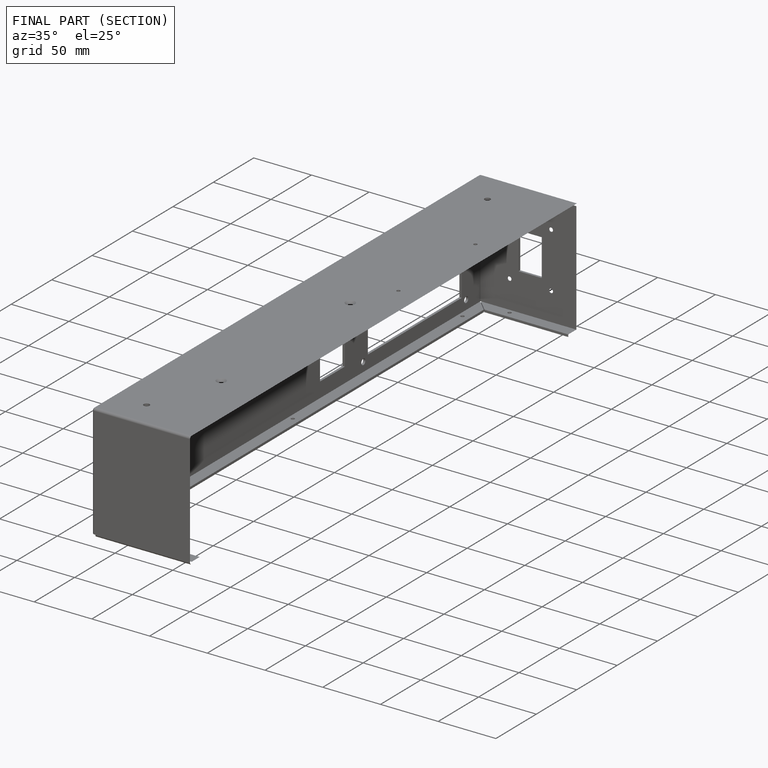
[diagram: finished part — half-section view (interior)]
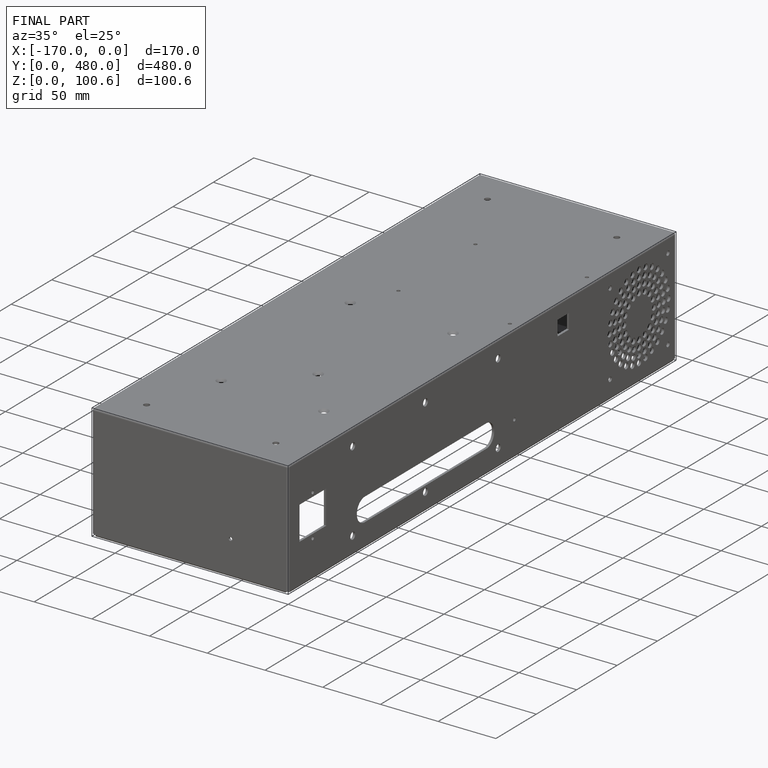
[diagram: finished part — iso view with bounding-box wireframe]
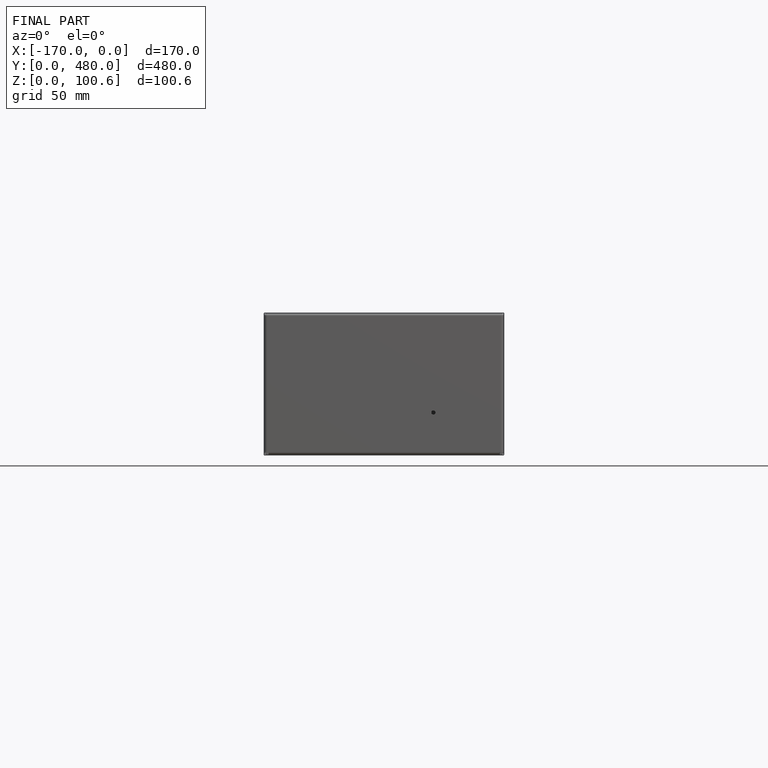
[diagram: finished part — front view with bounding-box wireframe]
